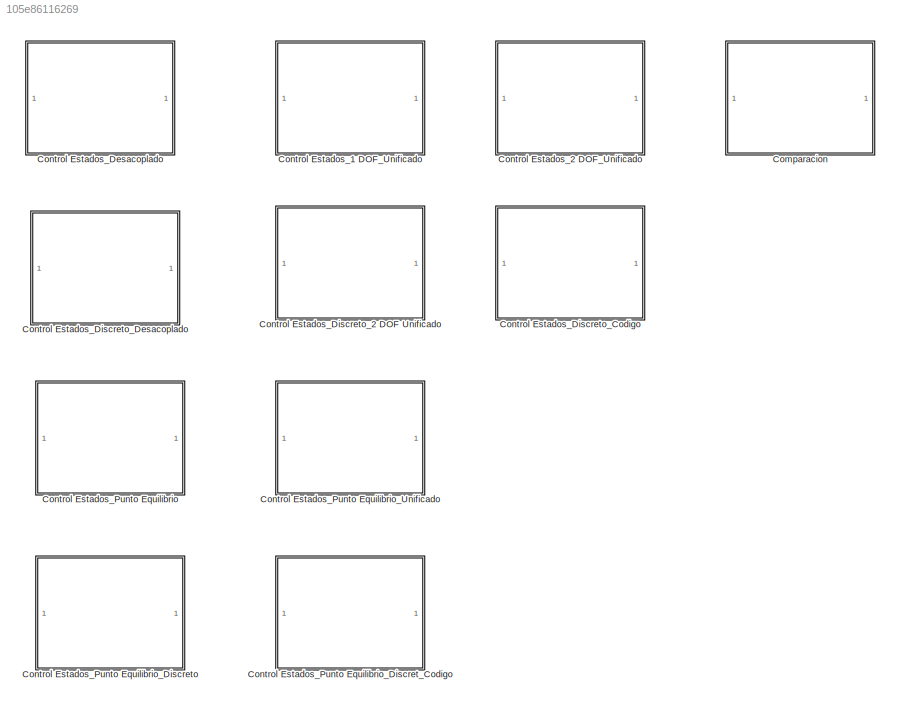
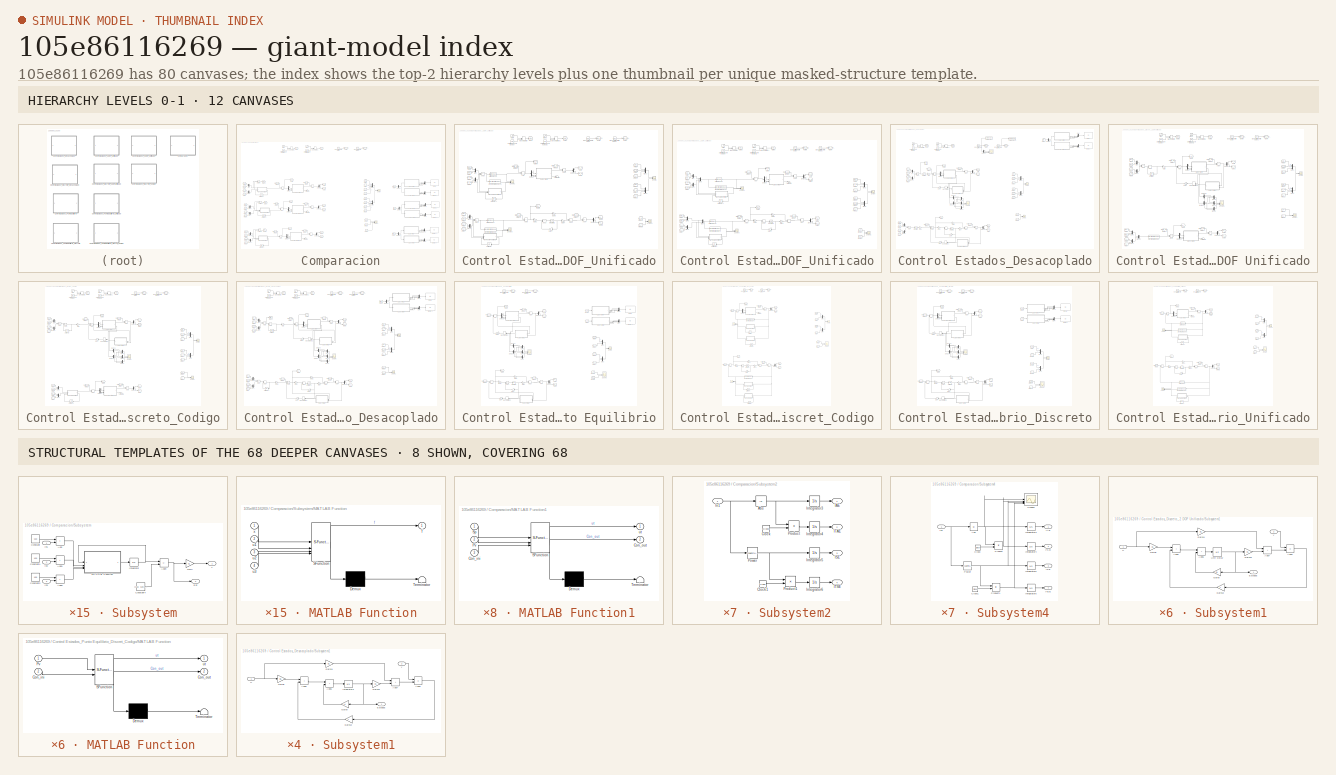
[diagram: thumbnail index - top-2 hierarchy levels (12 canvases) + 8 structural-template representatives of the remaining 68 canvases]
MODEL slx_105e86116269
KIND model
CONFIG AbsTol = auto
CONFIG EnableMultiTasking = off
CONFIG FixedStep = auto
CONFIG MaxStep = 1e-3
CONFIG MinStep = auto
CONFIG RelTol = 1e-3
CONFIG SampleTimeConstraint = Unconstrained
CONFIG SolverName = ode23t
CONFIG StartTime = 0.0
CONFIG StopTime = 5
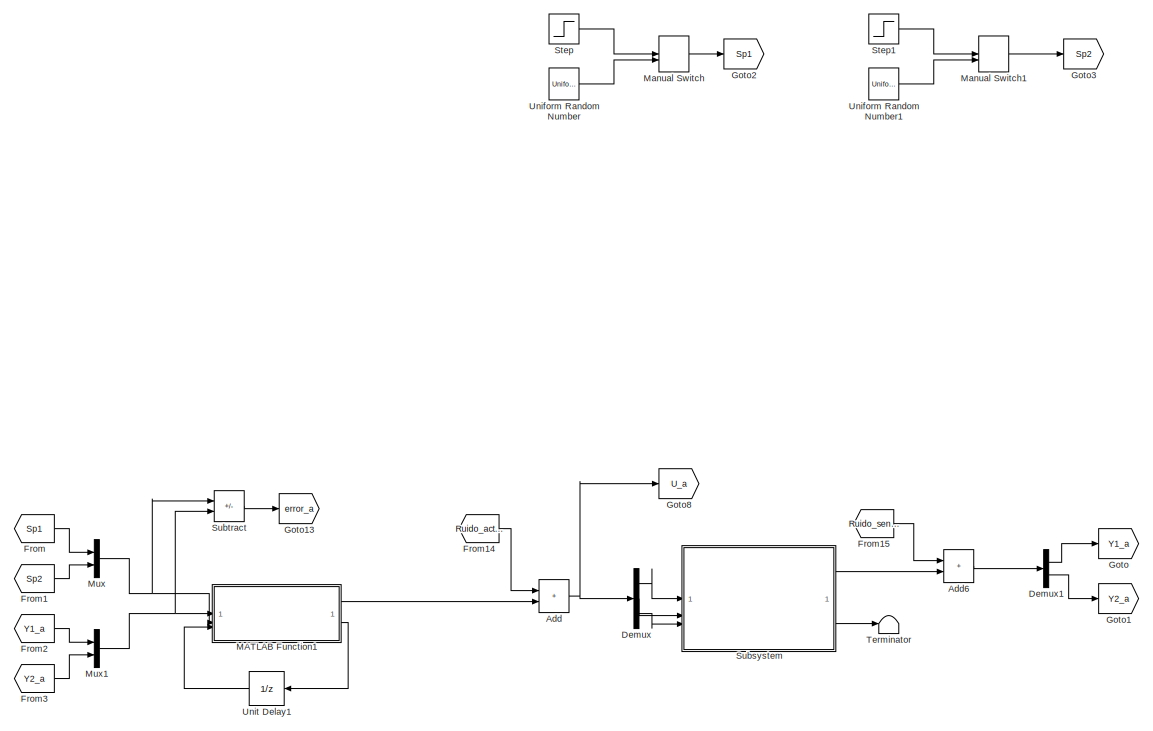
[diagram: Comparacion - part 1/4, top left region]
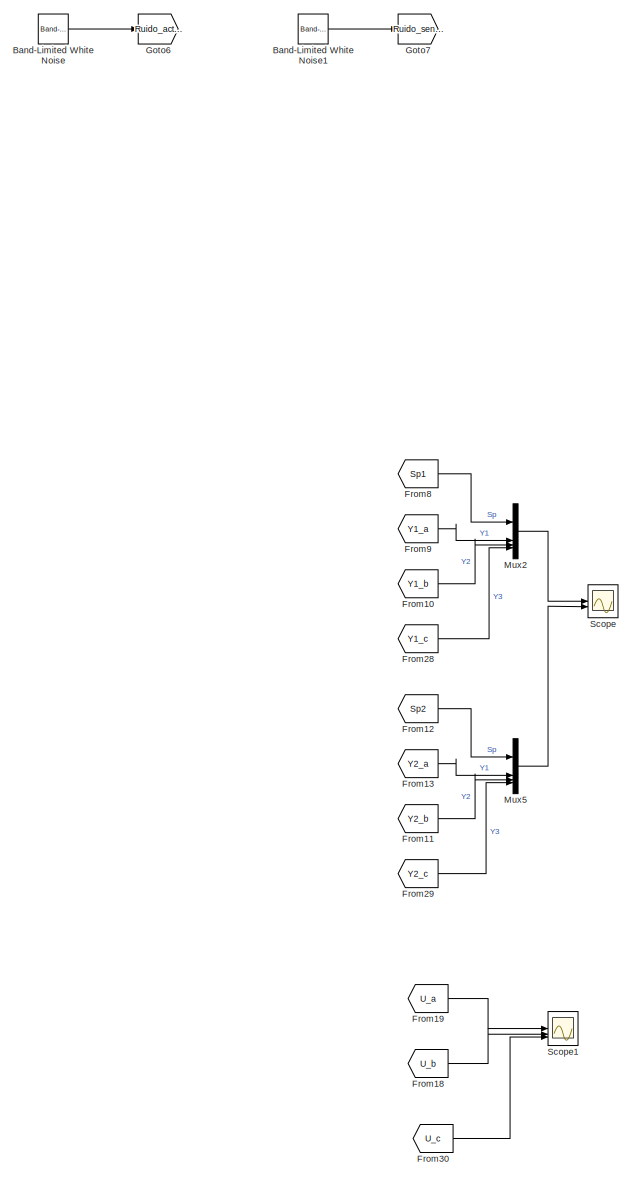
[diagram: Comparacion - part 2/4, center side, full height]
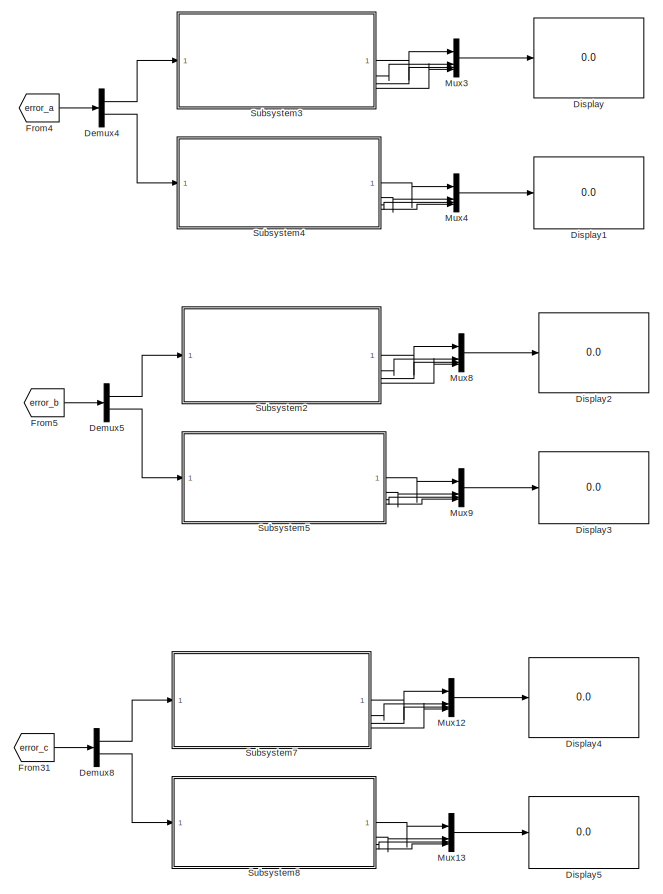
[diagram: Comparacion - part 3/4, middle right region]
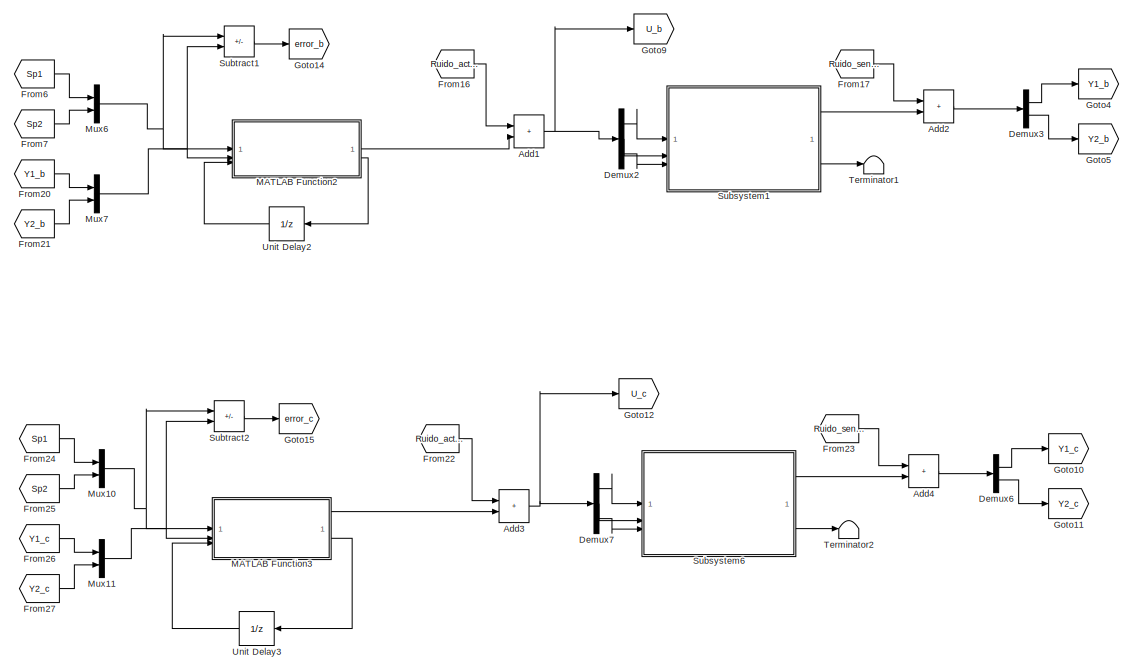
[diagram: Comparacion - part 4/4, bottom left region]
BLOCK [SubSystem] Comparacion
  Commented = on
BLOCK [Sum] Comparacion/Add
  IconShape = rectangular
BLOCK [Sum] Comparacion/Add1
  IconShape = rectangular
BLOCK [Sum] Comparacion/Add2
  IconShape = rectangular
BLOCK [Sum] Comparacion/Add3
  IconShape = rectangular
BLOCK [Sum] Comparacion/Add4
  IconShape = rectangular
BLOCK [Sum] Comparacion/Add6
  IconShape = rectangular
BLOCK [Reference] Comparacion/Band-Limited White Noise  REF=simulink/Sources/Band-Limited
White Noise
  SourceBlock = simulink/Sources/Band-Limited\nWhite Noise
  SourceType = Band-Limited White Noise.
BLOCK [Reference] Comparacion/Band-Limited White Noise1  REF=simulink/Sources/Band-Limited
White Noise
  SourceBlock = simulink/Sources/Band-Limited\nWhite Noise
  SourceType = Band-Limited White Noise.
BLOCK [Demux] Comparacion/Demux
  Outputs = 3
BLOCK [Demux] Comparacion/Demux1
  Outputs = 2
BLOCK [Demux] Comparacion/Demux2
  Outputs = 3
BLOCK [Demux] Comparacion/Demux3
  Outputs = 2
BLOCK [Demux] Comparacion/Demux4
  Outputs = 2
BLOCK [Demux] Comparacion/Demux5
  Outputs = 2
BLOCK [Demux] Comparacion/Demux6
  Outputs = 2
BLOCK [Demux] Comparacion/Demux7
  Outputs = 3
BLOCK [Demux] Comparacion/Demux8
  Outputs = 2
BLOCK [Display] Comparacion/Display
  Decimation = 1
BLOCK [Display] Comparacion/Display1
  Decimation = 1
BLOCK [Display] Comparacion/Display2
  Decimation = 1
BLOCK [Display] Comparacion/Display3
  Decimation = 1
BLOCK [Display] Comparacion/Display4
  Decimation = 1
BLOCK [Display] Comparacion/Display5
  Decimation = 1
BLOCK [From] Comparacion/From
  GotoTag = Sp1
BLOCK [From] Comparacion/From1
  GotoTag = Sp2
BLOCK [From] Comparacion/From10
  GotoTag = Y1_b
BLOCK [From] Comparacion/From11
  GotoTag = Y2_b
BLOCK [From] Comparacion/From12
  GotoTag = Sp2
BLOCK [From] Comparacion/From13
  GotoTag = Y2_a
BLOCK [From] Comparacion/From14
  GotoTag = Ruido_actuador
BLOCK [From] Comparacion/From15
  GotoTag = Ruido_sensor
BLOCK [From] Comparacion/From16
  GotoTag = Ruido_actuador
BLOCK [From] Comparacion/From17
  GotoTag = Ruido_sensor
BLOCK [From] Comparacion/From18
  GotoTag = U_b
BLOCK [From] Comparacion/From19
  GotoTag = U_a
BLOCK [From] Comparacion/From2
  GotoTag = Y1_a
BLOCK [From] Comparacion/From20
  GotoTag = Y1_b
BLOCK [From] Comparacion/From21
  GotoTag = Y2_b
BLOCK [From] Comparacion/From22
  GotoTag = Ruido_actuador
BLOCK [From] Comparacion/From23
  GotoTag = Ruido_sensor
BLOCK [From] Comparacion/From24
  GotoTag = Sp1
BLOCK [From] Comparacion/From25
  GotoTag = Sp2
BLOCK [From] Comparacion/From26
  GotoTag = Y1_c
BLOCK [From] Comparacion/From27
  GotoTag = Y2_c
BLOCK [From] Comparacion/From28
  GotoTag = Y1_c
BLOCK [From] Comparacion/From29
  GotoTag = Y2_c
BLOCK [From] Comparacion/From3
  GotoTag = Y2_a
BLOCK [From] Comparacion/From30
  GotoTag = U_c
BLOCK [From] Comparacion/From31
  GotoTag = error_c
BLOCK [From] Comparacion/From4
  GotoTag = error_a
BLOCK [From] Comparacion/From5
  GotoTag = error_b
BLOCK [From] Comparacion/From6
  GotoTag = Sp1
BLOCK [From] Comparacion/From7
  GotoTag = Sp2
BLOCK [From] Comparacion/From8
  GotoTag = Sp1
BLOCK [From] Comparacion/From9
  GotoTag = Y1_a
BLOCK [Goto] Comparacion/Goto
  GotoTag = Y1_a
BLOCK [Goto] Comparacion/Goto1
  GotoTag = Y2_a
BLOCK [Goto] Comparacion/Goto10
  GotoTag = Y1_c
BLOCK [Goto] Comparacion/Goto11
  GotoTag = Y2_c
BLOCK [Goto] Comparacion/Goto12
  GotoTag = U_c
BLOCK [Goto] Comparacion/Goto13
  GotoTag = error_a
BLOCK [Goto] Comparacion/Goto14
  GotoTag = error_b
BLOCK [Goto] Comparacion/Goto15
  GotoTag = error_c
BLOCK [Goto] Comparacion/Goto2
  GotoTag = Sp1
BLOCK [Goto] Comparacion/Goto3
  GotoTag = Sp2
BLOCK [Goto] Comparacion/Goto4
  GotoTag = Y1_b
BLOCK [Goto] Comparacion/Goto5
  GotoTag = Y2_b
BLOCK [Goto] Comparacion/Goto6
  GotoTag = Ruido_actuador
BLOCK [Goto] Comparacion/Goto7
  GotoTag = Ruido_sensor
BLOCK [Goto] Comparacion/Goto8
  GotoTag = U_a
BLOCK [Goto] Comparacion/Goto9
  GotoTag = U_b
BLOCK [SubSystem] Comparacion/MATLAB Function1
  ErrorFcn = Stateflow.Translate.translate
  PermitHierarchicalResolution = ExplicitOnly
  SFBlockType = MATLAB Function
  TreatAsAtomicUnit = on
BLOCK [Demux] Comparacion/MATLAB Function1/ Demux 
  Outputs = 1
BLOCK [S-Function] Comparacion/MATLAB Function1/ SFunction 
  EnableBusSupport = off
  FunctionName = sf_sfun
  PortCounts = [3 3]
  SFcnIsStateOwnerBlock = off
  SFunctionDeploymentMode = off
  Tag = Stateflow S-Function 6
BLOCK [Terminator] Comparacion/MATLAB Function1/ Terminator 
BLOCK [Inport] Comparacion/MATLAB Function1/Con_ini
  Port = 3
BLOCK [Outport] Comparacion/MATLAB Function1/Con_out
  Port = 2
  VectorParamsAs1DForOutWhenUnconnected = off
BLOCK [Inport] Comparacion/MATLAB Function1/Pv
  Port = 2
BLOCK [Inport] Comparacion/MATLAB Function1/Sp
BLOCK [Outport] Comparacion/MATLAB Function1/ut
  VectorParamsAs1DForOutWhenUnconnected = off
BLOCK [SubSystem] Comparacion/MATLAB Function2
  ErrorFcn = Stateflow.Translate.translate
  PermitHierarchicalResolution = ExplicitOnly
  SFBlockType = MATLAB Function
  TreatAsAtomicUnit = on
BLOCK [Demux] Comparacion/MATLAB Function2/ Demux 
  Outputs = 1
BLOCK [S-Function] Comparacion/MATLAB Function2/ SFunction 
  EnableBusSupport = off
  FunctionName = sf_sfun
  PortCounts = [3 3]
  SFcnIsStateOwnerBlock = off
  SFunctionDeploymentMode = off
  Tag = Stateflow S-Function 23
BLOCK [Terminator] Comparacion/MATLAB Function2/ Terminator 
BLOCK [Inport] Comparacion/MATLAB Function2/Con_ini
  Port = 3
BLOCK [Outport] Comparacion/MATLAB Function2/Con_out
  Port = 2
  VectorParamsAs1DForOutWhenUnconnected = off
BLOCK [Inport] Comparacion/MATLAB Function2/Pv
  Port = 2
BLOCK [Inport] Comparacion/MATLAB Function2/Sp
BLOCK [Outport] Comparacion/MATLAB Function2/u
  VectorParamsAs1DForOutWhenUnconnected = off
BLOCK [SubSystem] Comparacion/MATLAB Function3
  ErrorFcn = Stateflow.Translate.translate
  PermitHierarchicalResolution = ExplicitOnly
  SFBlockType = MATLAB Function
  TreatAsAtomicUnit = on
BLOCK [Demux] Comparacion/MATLAB Function3/ Demux 
  Outputs = 1
BLOCK [S-Function] Comparacion/MATLAB Function3/ SFunction 
  EnableBusSupport = off
  FunctionName = sf_sfun
  PortCounts = [3 3]
  SFcnIsStateOwnerBlock = off
  SFunctionDeploymentMode = off
  Tag = Stateflow S-Function 25
BLOCK [Terminator] Comparacion/MATLAB Function3/ Terminator 
BLOCK [Inport] Comparacion/MATLAB Function3/Con_in
  Port = 3
BLOCK [Outport] Comparacion/MATLAB Function3/Con_out
  Port = 2
  VectorParamsAs1DForOutWhenUnconnected = off
BLOCK [Inport] Comparacion/MATLAB Function3/Pv
  Port = 2
BLOCK [Inport] Comparacion/MATLAB Function3/Sp
BLOCK [Outport] Comparacion/MATLAB Function3/ut
  VectorParamsAs1DForOutWhenUnconnected = off
BLOCK [ManualSwitch] Comparacion/Manual Switch
  CurrentSetting = 0
BLOCK [ManualSwitch] Comparacion/Manual Switch1
  CurrentSetting = 0
BLOCK [Mux] Comparacion/Mux
  DisplayOption = bar
  Inputs = 2
BLOCK [Mux] Comparacion/Mux1
  DisplayOption = bar
  Inputs = 2
BLOCK [Mux] Comparacion/Mux10
  DisplayOption = bar
  Inputs = 2
BLOCK [Mux] Comparacion/Mux11
  DisplayOption = bar
  Inputs = 2
BLOCK [Mux] Comparacion/Mux12
  DisplayOption = bar
BLOCK [Mux] Comparacion/Mux13
  DisplayOption = bar
BLOCK [Mux] Comparacion/Mux2
  DisplayOption = bar
BLOCK [Mux] Comparacion/Mux3
  DisplayOption = bar
BLOCK [Mux] Comparacion/Mux4
  DisplayOption = bar
BLOCK [Mux] Comparacion/Mux5
  DisplayOption = bar
BLOCK [Mux] Comparacion/Mux6
  DisplayOption = bar
  Inputs = 2
BLOCK [Mux] Comparacion/Mux7
  DisplayOption = bar
  Inputs = 2
BLOCK [Mux] Comparacion/Mux8
  DisplayOption = bar
BLOCK [Mux] Comparacion/Mux9
  DisplayOption = bar
BLOCK [Scope] Comparacion/Scope
  Floating = off
  NumInputPorts = 2
  ScopeSpecificationString = Simulink.scopes.TimeScopeBlockCfg('CurrentConfiguration', extmgr.ConfigurationSet(extmgr.Configuration('Core','General UI',true,'FigureColor',[1 1 1]),extmgr.Configuration('Core','Source UI',true),extmgr.Configuration('Sources','WiredSimulink',true),extmgr.Configuration('Visuals','Time Domain',true,'SerializedDisplays',{struct('MinYLimReal','-0.71059','MaxYLimReal','0.57453','YLabelReal','','MinYL...<+3015ch>
BLOCK [Scope] Comparacion/Scope1
  Floating = off
  NumInputPorts = 3
  ScopeSpecificationString = Simulink.scopes.TimeScopeBlockCfg('CurrentConfiguration', extmgr.ConfigurationSet(extmgr.Configuration('Core','General UI',true,'FigureColor',[1 1 1]),extmgr.Configuration('Core','Source UI',true),extmgr.Configuration('Sources','WiredSimulink',true,'DataLoggingVariableName','ScopeData1'),extmgr.Configuration('Visuals','Time Domain',true,'SerializedDisplays',{struct('MinYLimReal','-0.25099','MaxYLi...<+4060ch>
BLOCK [Step] Comparacion/Step
  After = 0.5
  SampleTime = 0
  Time = 0
BLOCK [Step] Comparacion/Step1
  After = 0.5
  SampleTime = 0
  Time = 0
BLOCK [SubSystem] Comparacion/Subsystem
BLOCK [Sum] Comparacion/Subsystem/Add
  IconShape = rectangular
BLOCK [Sum] Comparacion/Subsystem/Add1
  IconShape = rectangular
BLOCK [Sum] Comparacion/Subsystem/Add2
  IconShape = rectangular
BLOCK [Sum] Comparacion/Subsystem/Add4
  IconShape = rectangular
  Inputs = +-
BLOCK [Constant] Comparacion/Subsystem/Constant
  Value = u10
BLOCK [Constant] Comparacion/Subsystem/Constant1
  Value = u20
BLOCK [Constant] Comparacion/Subsystem/Constant2
  Value = u30
BLOCK [Constant] Comparacion/Subsystem/Constant4
  Value = [x10; x20; x30]
BLOCK [Outport] Comparacion/Subsystem/Est
  Port = 2
  VectorParamsAs1DForOutWhenUnconnected = off
BLOCK [Gain] Comparacion/Subsystem/Gain
  Gain = CL
  Multiplication = Matrix(K*u)
BLOCK [Inport] Comparacion/Subsystem/In1
BLOCK [Inport] Comparacion/Subsystem/In2
  Port = 2
BLOCK [Inport] Comparacion/Subsystem/In3
  Port = 3
BLOCK [Integrator] Comparacion/Subsystem/Integrator
  InitialCondition = [x10; x20; x30]
BLOCK [SubSystem] Comparacion/Subsystem/MATLAB Function
  ErrorFcn = Stateflow.Translate.translate
  PermitHierarchicalResolution = ExplicitOnly
  SFBlockType = MATLAB Function
  TreatAsAtomicUnit = on
BLOCK [Demux] Comparacion/Subsystem/MATLAB Function/ Demux 
  Outputs = 1
BLOCK [S-Function] Comparacion/Subsystem/MATLAB Function/ SFunction 
  EnableBusSupport = off
  FunctionName = sf_sfun
  PortCounts = [4 2]
  SFcnIsStateOwnerBlock = off
  SFunctionDeploymentMode = off
  Tag = Stateflow S-Function 22
BLOCK [Terminator] Comparacion/Subsystem/MATLAB Function/ Terminator 
BLOCK [Outport] Comparacion/Subsystem/MATLAB Function/f
BLOCK [Inport] Comparacion/Subsystem/MATLAB Function/u1
  Port = 2
BLOCK [Inport] Comparacion/Subsystem/MATLAB Function/u2
  Port = 3
BLOCK [Inport] Comparacion/Subsystem/MATLAB Function/u3
  Port = 4
BLOCK [Inport] Comparacion/Subsystem/MATLAB Function/x
BLOCK [Outport] Comparacion/Subsystem/Y
  VectorParamsAs1DForOutWhenUnconnected = off
BLOCK [SubSystem] Comparacion/Subsystem1
BLOCK [Sum] Comparacion/Subsystem1/Add
  IconShape = rectangular
BLOCK [Sum] Comparacion/Subsystem1/Add1
  IconShape = rectangular
BLOCK [Sum] Comparacion/Subsystem1/Add2
  IconShape = rectangular
BLOCK [Sum] Comparacion/Subsystem1/Add4
  IconShape = rectangular
  Inputs = +-
BLOCK [Constant] Comparacion/Subsystem1/Constant
  Value = u10
BLOCK [Constant] Comparacion/Subsystem1/Constant1
  Value = u20
BLOCK [Constant] Comparacion/Subsystem1/Constant2
  Value = u30
BLOCK [Constant] Comparacion/Subsystem1/Constant4
  Value = [x10; x20; x30]
BLOCK [Outport] Comparacion/Subsystem1/Est
  Port = 2
  VectorParamsAs1DForOutWhenUnconnected = off
BLOCK [Gain] Comparacion/Subsystem1/Gain
  Gain = CL
  Multiplication = Matrix(K*u)
BLOCK [Inport] Comparacion/Subsystem1/In1
BLOCK [Inport] Comparacion/Subsystem1/In2
  Port = 2
BLOCK [Inport] Comparacion/Subsystem1/In3
  Port = 3
BLOCK [Integrator] Comparacion/Subsystem1/Integrator
  InitialCondition = [x10; x20; x30]
BLOCK [SubSystem] Comparacion/Subsystem1/MATLAB Function
  ErrorFcn = Stateflow.Translate.translate
  PermitHierarchicalResolution = ExplicitOnly
  SFBlockType = MATLAB Function
  TreatAsAtomicUnit = on
BLOCK [Demux] Comparacion/Subsystem1/MATLAB Function/ Demux 
  Outputs = 1
BLOCK [S-Function] Comparacion/Subsystem1/MATLAB Function/ SFunction 
  EnableBusSupport = off
  FunctionName = sf_sfun
  PortCounts = [4 2]
  SFcnIsStateOwnerBlock = off
  SFunctionDeploymentMode = off
  Tag = Stateflow S-Function 24
BLOCK [Terminator] Comparacion/Subsystem1/MATLAB Function/ Terminator 
BLOCK [Outport] Comparacion/Subsystem1/MATLAB Function/f
BLOCK [Inport] Comparacion/Subsystem1/MATLAB Function/u1
  Port = 2
BLOCK [Inport] Comparacion/Subsystem1/MATLAB Function/u2
  Port = 3
BLOCK [Inport] Comparacion/Subsystem1/MATLAB Function/u3
  Port = 4
BLOCK [Inport] Comparacion/Subsystem1/MATLAB Function/x
BLOCK [Outport] Comparacion/Subsystem1/Y
  VectorParamsAs1DForOutWhenUnconnected = off
BLOCK [SubSystem] Comparacion/Subsystem2
BLOCK [Abs] Comparacion/Subsystem2/Abs
  SaturateOnIntegerOverflow = off
BLOCK [Clock] Comparacion/Subsystem2/Clock
  Decimation = 1
BLOCK [Clock] Comparacion/Subsystem2/Clock1
  Decimation = 1
BLOCK [Outport] Comparacion/Subsystem2/IAE
  VectorParamsAs1DForOutWhenUnconnected = off
BLOCK [Outport] Comparacion/Subsystem2/ISE
  Port = 3
  VectorParamsAs1DForOutWhenUnconnected = off
BLOCK [Outport] Comparacion/Subsystem2/ITAE
  Port = 2
  VectorParamsAs1DForOutWhenUnconnected = off
BLOCK [Outport] Comparacion/Subsystem2/ITSE
  Port = 4
  VectorParamsAs1DForOutWhenUnconnected = off
BLOCK [Inport] Comparacion/Subsystem2/In1
BLOCK [Integrator] Comparacion/Subsystem2/Integrator3
BLOCK [Integrator] Comparacion/Subsystem2/Integrator4
BLOCK [Integrator] Comparacion/Subsystem2/Integrator5
BLOCK [Integrator] Comparacion/Subsystem2/Integrator6
BLOCK [Math] Comparacion/Subsystem2/Power
  Operator = magnitude^2
  SignedPower = on
BLOCK [Product] Comparacion/Subsystem2/Product
BLOCK [Product] Comparacion/Subsystem2/Product1
BLOCK [SubSystem] Comparacion/Subsystem3
BLOCK [Abs] Comparacion/Subsystem3/Abs
  SaturateOnIntegerOverflow = off
BLOCK [Clock] Comparacion/Subsystem3/Clock
  Decimation = 1
BLOCK [Clock] Comparacion/Subsystem3/Clock1
  Decimation = 1
BLOCK [Outport] Comparacion/Subsystem3/IAE
  VectorParamsAs1DForOutWhenUnconnected = off
BLOCK [Outport] Comparacion/Subsystem3/ISE
  Port = 3
  VectorParamsAs1DForOutWhenUnconnected = off
BLOCK [Outport] Comparacion/Subsystem3/ITAE
  Port = 2
  VectorParamsAs1DForOutWhenUnconnected = off
BLOCK [Outport] Comparacion/Subsystem3/ITSE
  Port = 4
  VectorParamsAs1DForOutWhenUnconnected = off
BLOCK [Inport] Comparacion/Subsystem3/In1
BLOCK [Integrator] Comparacion/Subsystem3/Integrator3
BLOCK [Integrator] Comparacion/Subsystem3/Integrator4
BLOCK [Integrator] Comparacion/Subsystem3/Integrator5
BLOCK [Integrator] Comparacion/Subsystem3/Integrator6
BLOCK [Math] Comparacion/Subsystem3/Power
  Operator = magnitude^2
  SignedPower = on
BLOCK [Product] Comparacion/Subsystem3/Product
BLOCK [Product] Comparacion/Subsystem3/Product1
BLOCK [SubSystem] Comparacion/Subsystem4
BLOCK [Abs] Comparacion/Subsystem4/Abs
  SaturateOnIntegerOverflow = off
BLOCK [Clock] Comparacion/Subsystem4/Clock
  Decimation = 1
BLOCK [Clock] Comparacion/Subsystem4/Clock1
  Decimation = 1
BLOCK [Outport] Comparacion/Subsystem4/IAE
  VectorParamsAs1DForOutWhenUnconnected = off
BLOCK [Outport] Comparacion/Subsystem4/ISE
  Port = 3
  VectorParamsAs1DForOutWhenUnconnected = off
BLOCK [Outport] Comparacion/Subsystem4/ITAE
  Port = 2
  VectorParamsAs1DForOutWhenUnconnected = off
BLOCK [Outport] Comparacion/Subsystem4/ITSE
  Port = 4
  VectorParamsAs1DForOutWhenUnconnected = off
BLOCK [Inport] Comparacion/Subsystem4/In1
BLOCK [Integrator] Comparacion/Subsystem4/Integrator3
BLOCK [Integrator] Comparacion/Subsystem4/Integrator4
BLOCK [Integrator] Comparacion/Subsystem4/Integrator5
BLOCK [Integrator] Comparacion/Subsystem4/Integrator6
BLOCK [Math] Comparacion/Subsystem4/Power
  Operator = magnitude^2
  SignedPower = on
BLOCK [Product] Comparacion/Subsystem4/Product
BLOCK [Product] Comparacion/Subsystem4/Product1
BLOCK [Scope] Comparacion/Subsystem4/Scope3
  Floating = off
  NumInputPorts = 4
  ScopeSpecificationString = Simulink.scopes.TimeScopeBlockCfg('CurrentConfiguration', extmgr.ConfigurationSet(extmgr.Configuration('Core','General UI',true,'FigureColor',[1 1 1]),extmgr.Configuration('Core','Source UI',true),extmgr.Configuration('Sources','WiredSimulink',true,'DataLoggingVariableName','ScopeData4'),extmgr.Configuration('Visuals','Time Domain',true,'SerializedDisplays',{struct('MinYLimReal','-0.08686','MaxYLi...<+3629ch>  <repeated x7 — deduplicated; at blocks: Scope3>
BLOCK [SubSystem] Comparacion/Subsystem5
BLOCK [Abs] Comparacion/Subsystem5/Abs
  SaturateOnIntegerOverflow = off
BLOCK [Clock] Comparacion/Subsystem5/Clock
  Decimation = 1
BLOCK [Clock] Comparacion/Subsystem5/Clock1
  Decimation = 1
BLOCK [Outport] Comparacion/Subsystem5/IAE
  VectorParamsAs1DForOutWhenUnconnected = off
BLOCK [Outport] Comparacion/Subsystem5/ISE
  Port = 3
  VectorParamsAs1DForOutWhenUnconnected = off
BLOCK [Outport] Comparacion/Subsystem5/ITAE
  Port = 2
  VectorParamsAs1DForOutWhenUnconnected = off
BLOCK [Outport] Comparacion/Subsystem5/ITSE
  Port = 4
  VectorParamsAs1DForOutWhenUnconnected = off
BLOCK [Inport] Comparacion/Subsystem5/In1
BLOCK [Integrator] Comparacion/Subsystem5/Integrator3
BLOCK [Integrator] Comparacion/Subsystem5/Integrator4
BLOCK [Integrator] Comparacion/Subsystem5/Integrator5
BLOCK [Integrator] Comparacion/Subsystem5/Integrator6
BLOCK [Math] Comparacion/Subsystem5/Power
  Operator = magnitude^2
  SignedPower = on
BLOCK [Product] Comparacion/Subsystem5/Product
BLOCK [Product] Comparacion/Subsystem5/Product1
BLOCK [Scope] Comparacion/Subsystem5/Scope3
  Floating = off
  NumInputPorts = 4
BLOCK [SubSystem] Comparacion/Subsystem6
BLOCK [Sum] Comparacion/Subsystem6/Add
  IconShape = rectangular
BLOCK [Sum] Comparacion/Subsystem6/Add1
  IconShape = rectangular
BLOCK [Sum] Comparacion/Subsystem6/Add2
  IconShape = rectangular
BLOCK [Sum] Comparacion/Subsystem6/Add4
  IconShape = rectangular
  Inputs = +-
BLOCK [Constant] Comparacion/Subsystem6/Constant
  Value = u10
BLOCK [Constant] Comparacion/Subsystem6/Constant1
  Value = u20
BLOCK [Constant] Comparacion/Subsystem6/Constant2
  Value = u30
BLOCK [Constant] Comparacion/Subsystem6/Constant4
  Value = [x10; x20; x30]
BLOCK [Outport] Comparacion/Subsystem6/Est
  Port = 2
  VectorParamsAs1DForOutWhenUnconnected = off
BLOCK [Gain] Comparacion/Subsystem6/Gain
  Gain = CL
  Multiplication = Matrix(K*u)
BLOCK [Inport] Comparacion/Subsystem6/In1
BLOCK [Inport] Comparacion/Subsystem6/In2
  Port = 2
BLOCK [Inport] Comparacion/Subsystem6/In3
  Port = 3
BLOCK [Integrator] Comparacion/Subsystem6/Integrator
  InitialCondition = [x10; x20; x30]
BLOCK [SubSystem] Comparacion/Subsystem6/MATLAB Function
  ErrorFcn = Stateflow.Translate.translate
  PermitHierarchicalResolution = ExplicitOnly
  SFBlockType = MATLAB Function
  TreatAsAtomicUnit = on
BLOCK [Demux] Comparacion/Subsystem6/MATLAB Function/ Demux 
  Outputs = 1
BLOCK [S-Function] Comparacion/Subsystem6/MATLAB Function/ SFunction 
  EnableBusSupport = off
  FunctionName = sf_sfun
  PortCounts = [4 2]
  SFcnIsStateOwnerBlock = off
  SFunctionDeploymentMode = off
  Tag = Stateflow S-Function 26
BLOCK [Terminator] Comparacion/Subsystem6/MATLAB Function/ Terminator 
BLOCK [Outport] Comparacion/Subsystem6/MATLAB Function/f
BLOCK [Inport] Comparacion/Subsystem6/MATLAB Function/u1
  Port = 2
BLOCK [Inport] Comparacion/Subsystem6/MATLAB Function/u2
  Port = 3
BLOCK [Inport] Comparacion/Subsystem6/MATLAB Function/u3
  Port = 4
BLOCK [Inport] Comparacion/Subsystem6/MATLAB Function/x
BLOCK [Outport] Comparacion/Subsystem6/Y
  VectorParamsAs1DForOutWhenUnconnected = off
BLOCK [SubSystem] Comparacion/Subsystem7
BLOCK [Abs] Comparacion/Subsystem7/Abs
  SaturateOnIntegerOverflow = off
BLOCK [Clock] Comparacion/Subsystem7/Clock
  Decimation = 1
BLOCK [Clock] Comparacion/Subsystem7/Clock1
  Decimation = 1
BLOCK [Outport] Comparacion/Subsystem7/IAE
  VectorParamsAs1DForOutWhenUnconnected = off
BLOCK [Outport] Comparacion/Subsystem7/ISE
  Port = 3
  VectorParamsAs1DForOutWhenUnconnected = off
BLOCK [Outport] Comparacion/Subsystem7/ITAE
  Port = 2
  VectorParamsAs1DForOutWhenUnconnected = off
BLOCK [Outport] Comparacion/Subsystem7/ITSE
  Port = 4
  VectorParamsAs1DForOutWhenUnconnected = off
BLOCK [Inport] Comparacion/Subsystem7/In1
BLOCK [Integrator] Comparacion/Subsystem7/Integrator3
BLOCK [Integrator] Comparacion/Subsystem7/Integrator4
BLOCK [Integrator] Comparacion/Subsystem7/Integrator5
BLOCK [Integrator] Comparacion/Subsystem7/Integrator6
BLOCK [Math] Comparacion/Subsystem7/Power
  Operator = magnitude^2
  SignedPower = on
BLOCK [Product] Comparacion/Subsystem7/Product
BLOCK [Product] Comparacion/Subsystem7/Product1
BLOCK [SubSystem] Comparacion/Subsystem8
BLOCK [Abs] Comparacion/Subsystem8/Abs
  SaturateOnIntegerOverflow = off
BLOCK [Clock] Comparacion/Subsystem8/Clock
  Decimation = 1
BLOCK [Clock] Comparacion/Subsystem8/Clock1
  Decimation = 1
BLOCK [Outport] Comparacion/Subsystem8/IAE
  VectorParamsAs1DForOutWhenUnconnected = off
BLOCK [Outport] Comparacion/Subsystem8/ISE
  Port = 3
  VectorParamsAs1DForOutWhenUnconnected = off
BLOCK [Outport] Comparacion/Subsystem8/ITAE
  Port = 2
  VectorParamsAs1DForOutWhenUnconnected = off
BLOCK [Outport] Comparacion/Subsystem8/ITSE
  Port = 4
  VectorParamsAs1DForOutWhenUnconnected = off
BLOCK [Inport] Comparacion/Subsystem8/In1
BLOCK [Integrator] Comparacion/Subsystem8/Integrator3
BLOCK [Integrator] Comparacion/Subsystem8/Integrator4
BLOCK [Integrator] Comparacion/Subsystem8/Integrator5
BLOCK [Integrator] Comparacion/Subsystem8/Integrator6
BLOCK [Math] Comparacion/Subsystem8/Power
  Operator = magnitude^2
  SignedPower = on
BLOCK [Product] Comparacion/Subsystem8/Product
BLOCK [Product] Comparacion/Subsystem8/Product1
BLOCK [Scope] Comparacion/Subsystem8/Scope3
  Floating = off
  NumInputPorts = 4
BLOCK [Sum] Comparacion/Subtract
  IconShape = rectangular
  Inputs = +-
BLOCK [Sum] Comparacion/Subtract1
  IconShape = rectangular
  Inputs = +-
BLOCK [Sum] Comparacion/Subtract2
  IconShape = rectangular
  Inputs = +-
BLOCK [Terminator] Comparacion/Terminator
BLOCK [Terminator] Comparacion/Terminator1
BLOCK [Terminator] Comparacion/Terminator2
BLOCK [UniformRandomNumber] Comparacion/Uniform Random Number
  Maximum = 0.5
  Minimum = -0.5
  SampleTime = 4
BLOCK [UniformRandomNumber] Comparacion/Uniform Random Number1
  Maximum = 0.5
  Minimum = -0.5
  SampleTime = 7
  Seed = 6
BLOCK [UnitDelay] Comparacion/Unit Delay1
  HasFrameUpgradeWarning = on
  InitialCondition = zeros(8,1)
  NameLocation = top
  SampleTime = Tm
BLOCK [UnitDelay] Comparacion/Unit Delay2
  HasFrameUpgradeWarning = on
  InitialCondition = zeros(8,1)
  NameLocation = top
  SampleTime = Tm
BLOCK [UnitDelay] Comparacion/Unit Delay3
  HasFrameUpgradeWarning = on
  InitialCondition = zeros(8,1)
  NameLocation = top
  SampleTime = Tm
BLOCK [SubSystem] Control Estados_1 DOF_Unificado
  Commented = on
BLOCK [Sum] Control Estados_1 DOF_Unificado/Add
  IconShape = rectangular
BLOCK [Sum] Control Estados_1 DOF_Unificado/Add1
  IconShape = rectangular
  Inputs = +-
BLOCK [Sum] Control Estados_1 DOF_Unificado/Add2
  IconShape = rectangular
BLOCK [Sum] Control Estados_1 DOF_Unificado/Add3
  IconShape = rectangular
BLOCK [Sum] Control Estados_1 DOF_Unificado/Add4
  IconShape = rectangular
  Inputs = +-
BLOCK [Sum] Control Estados_1 DOF_Unificado/Add5
  IconShape = rectangular
BLOCK [Sum] Control Estados_1 DOF_Unificado/Add6
  IconShape = rectangular
BLOCK [Sum] Control Estados_1 DOF_Unificado/Add7
  IconShape = rectangular
BLOCK [Reference] Control Estados_1 DOF_Unificado/Band-Limited White Noise  REF=simulink/Sources/Band-Limited
White Noise
  SourceBlock = simulink/Sources/Band-Limited\nWhite Noise
  SourceType = Band-Limited White Noise.
BLOCK [Reference] Control Estados_1 DOF_Unificado/Band-Limited White Noise1  REF=simulink/Sources/Band-Limited
White Noise
  SourceBlock = simulink/Sources/Band-Limited\nWhite Noise
  SourceType = Band-Limited White Noise.
BLOCK [Demux] Control Estados_1 DOF_Unificado/Demux
  Outputs = 3
BLOCK [Demux] Control Estados_1 DOF_Unificado/Demux1
  Outputs = 2
BLOCK [Demux] Control Estados_1 DOF_Unificado/Demux2
  Outputs = 2
BLOCK [DiscreteStateSpace] Control Estados_1 DOF_Unificado/Discrete State-Space
  A = sys_d1.a
  B = sys_d1.b
  C = sys_d1.c
  D = sys_d1.d
  SampleTime = Tm
BLOCK [DiscreteStateSpace] Control Estados_1 DOF_Unificado/Discrete State-Space1
  A = sys_d1.a
  B = sys_d1.b
  C = sys_d1.c
  D = sys_d1.d
  SampleTime = Tm
BLOCK [From] Control Estados_1 DOF_Unificado/From
  GotoTag = Sp1
BLOCK [From] Control Estados_1 DOF_Unificado/From1
  GotoTag = Sp2
BLOCK [From] Control Estados_1 DOF_Unificado/From10
  GotoTag = Y1_l
BLOCK [From] Control Estados_1 DOF_Unificado/From11
  GotoTag = Y2_l
BLOCK [From] Control Estados_1 DOF_Unificado/From12
  GotoTag = Sp2
BLOCK [From] Control Estados_1 DOF_Unificado/From13
  GotoTag = Y2_nl
BLOCK [From] Control Estados_1 DOF_Unificado/From14
  GotoTag = Ruido_actuador
BLOCK [From] Control Estados_1 DOF_Unificado/From15
  GotoTag = Ruido_sensor
BLOCK [From] Control Estados_1 DOF_Unificado/From16
  GotoTag = Ruido_actuador
BLOCK [From] Control Estados_1 DOF_Unificado/From17
  GotoTag = Ruido_sensor
BLOCK [From] Control Estados_1 DOF_Unificado/From18
  GotoTag = U_l
BLOCK [From] Control Estados_1 DOF_Unificado/From19
  GotoTag = U_nl
BLOCK [From] Control Estados_1 DOF_Unificado/From2
  GotoTag = Y1_nl
BLOCK [From] Control Estados_1 DOF_Unificado/From3
  GotoTag = Y2_nl
BLOCK [From] Control Estados_1 DOF_Unificado/From4
  GotoTag = Sp1
BLOCK [From] Control Estados_1 DOF_Unificado/From5
  GotoTag = Sp2
BLOCK [From] Control Estados_1 DOF_Unificado/From6
  GotoTag = Y1_l
BLOCK [From] Control Estados_1 DOF_Unificado/From7
  GotoTag = Y2_l
BLOCK [From] Control Estados_1 DOF_Unificado/From8
  GotoTag = Sp1
BLOCK [From] Control Estados_1 DOF_Unificado/From9
  GotoTag = Y1_nl
BLOCK [Gain] Control Estados_1 DOF_Unificado/Gain2
  Gain = BL
  Multiplication = Matrix(K*u)
BLOCK [Gain] Control Estados_1 DOF_Unificado/Gain3
  Gain = AL
  Multiplication = Matrix(K*u)
  NameLocation = top
BLOCK [Gain] Control Estados_1 DOF_Unificado/Gain4
  Gain = CL
  Multiplication = Matrix(K*u)
BLOCK [Gain] Control Estados_1 DOF_Unificado/Gain5
  Gain = DL
  Multiplication = Matrix(K*u)
BLOCK [Goto] Control Estados_1 DOF_Unificado/Goto
  GotoTag = Y1_nl
BLOCK [Goto] Control Estados_1 DOF_Unificado/Goto1
  GotoTag = Y2_nl
BLOCK [Goto] Control Estados_1 DOF_Unificado/Goto2
  GotoTag = Sp1
BLOCK [Goto] Control Estados_1 DOF_Unificado/Goto3
  GotoTag = Sp2
BLOCK [Goto] Control Estados_1 DOF_Unificado/Goto4
  GotoTag = Y1_l
BLOCK [Goto] Control Estados_1 DOF_Unificado/Goto5
  GotoTag = Y2_l
BLOCK [Goto] Control Estados_1 DOF_Unificado/Goto6
  GotoTag = Ruido_actuador
BLOCK [Goto] Control Estados_1 DOF_Unificado/Goto7
  GotoTag = Ruido_sensor
BLOCK [Goto] Control Estados_1 DOF_Unificado/Goto8
  GotoTag = U_nl
BLOCK [Goto] Control Estados_1 DOF_Unificado/Goto9
  GotoTag = U_l
BLOCK [Integrator] Control Estados_1 DOF_Unificado/Integrator1
BLOCK [SubSystem] Control Estados_1 DOF_Unificado/MATLAB Function1
  ErrorFcn = Stateflow.Translate.translate
  PermitHierarchicalResolution = ExplicitOnly
  SFBlockType = MATLAB Function
  TreatAsAtomicUnit = on
BLOCK [Demux] Control Estados_1 DOF_Unificado/MATLAB Function1/ Demux 
  Outputs = 1
BLOCK [S-Function] Control Estados_1 DOF_Unificado/MATLAB Function1/ SFunction 
  EnableBusSupport = off
  FunctionName = sf_sfun
  PortCounts = [3 3]
  SFcnIsStateOwnerBlock = off
  SFunctionDeploymentMode = off
  Tag = Stateflow S-Function 1
BLOCK [Terminator] Control Estados_1 DOF_Unificado/MATLAB Function1/ Terminator 
BLOCK [Inport] Control Estados_1 DOF_Unificado/MATLAB Function1/Con_ini
  Port = 3
BLOCK [Outport] Control Estados_1 DOF_Unificado/MATLAB Function1/Con_out
  Port = 2
  VectorParamsAs1DForOutWhenUnconnected = off
BLOCK [Inport] Control Estados_1 DOF_Unificado/MATLAB Function1/Pv
  Port = 2
BLOCK [Inport] Control Estados_1 DOF_Unificado/MATLAB Function1/Sp
BLOCK [Outport] Control Estados_1 DOF_Unificado/MATLAB Function1/ut
  VectorParamsAs1DForOutWhenUnconnected = off
BLOCK [SubSystem] Control Estados_1 DOF_Unificado/MATLAB Function2
  ErrorFcn = Stateflow.Translate.translate
  PermitHierarchicalResolution = ExplicitOnly
  SFBlockType = MATLAB Function
  TreatAsAtomicUnit = on
BLOCK [Demux] Control Estados_1 DOF_Unificado/MATLAB Function2/ Demux 
  Outputs = 1
BLOCK [S-Function] Control Estados_1 DOF_Unificado/MATLAB Function2/ SFunction 
  EnableBusSupport = off
  FunctionName = sf_sfun
  PortCounts = [3 3]
  SFcnIsStateOwnerBlock = off
  SFunctionDeploymentMode = off
  Tag = Stateflow S-Function 2
BLOCK [Terminator] Control Estados_1 DOF_Unificado/MATLAB Function2/ Terminator 
BLOCK [Inport] Control Estados_1 DOF_Unificado/MATLAB Function2/Con_ini
  Port = 3
BLOCK [Outport] Control Estados_1 DOF_Unificado/MATLAB Function2/Con_out
  Port = 2
  VectorParamsAs1DForOutWhenUnconnected = off
BLOCK [Inport] Control Estados_1 DOF_Unificado/MATLAB Function2/Pv
  Port = 2
BLOCK [Inport] Control Estados_1 DOF_Unificado/MATLAB Function2/Sp
BLOCK [Outport] Control Estados_1 DOF_Unificado/MATLAB Function2/ut
  VectorParamsAs1DForOutWhenUnconnected = off
BLOCK [ManualSwitch] Control Estados_1 DOF_Unificado/Manual Switch
  CurrentSetting = 0
BLOCK [ManualSwitch] Control Estados_1 DOF_Unificado/Manual Switch1
  CurrentSetting = 0
BLOCK [Mux] Control Estados_1 DOF_Unificado/Mux
  DisplayOption = bar
  Inputs = 2
BLOCK [Mux] Control Estados_1 DOF_Unificado/Mux1
  DisplayOption = bar
  Inputs = 2
BLOCK [Mux] Control Estados_1 DOF_Unificado/Mux2
  DisplayOption = bar
  Inputs = 3
BLOCK [Mux] Control Estados_1 DOF_Unificado/Mux3
  DisplayOption = bar
  Inputs = 2
BLOCK [Mux] Control Estados_1 DOF_Unificado/Mux4
  DisplayOption = bar
  Inputs = 2
BLOCK [Mux] Control Estados_1 DOF_Unificado/Mux5
  DisplayOption = bar
  Inputs = 3
BLOCK [Scope] Control Estados_1 DOF_Unificado/Scope
  Floating = off
  NumInputPorts = 2
  ScopeSpecificationString = Simulink.scopes.TimeScopeBlockCfg('CurrentConfiguration', extmgr.ConfigurationSet(extmgr.Configuration('Core','General UI',true,'FigureColor',[1 1 1]),extmgr.Configuration('Core','Source UI',true),extmgr.Configuration('Sources','WiredSimulink',true),extmgr.Configuration('Visuals','Time Domain',true,'SerializedDisplays',{struct('MinYLimReal','-0.84427','MaxYLimReal','0.58892','YLabelReal','','MinYL...<+2991ch>
BLOCK [Scope] Control Estados_1 DOF_Unificado/Scope1
  Floating = off
  NumInputPorts = 2
  ScopeSpecificationString = Simulink.scopes.TimeScopeBlockCfg('CurrentConfiguration', extmgr.ConfigurationSet(extmgr.Configuration('Core','General UI',true,'FigureColor',[1 1 1]),extmgr.Configuration('Core','Source UI',true),extmgr.Configuration('Sources','WiredSimulink',true,'DataLoggingVariableName','ScopeData1'),extmgr.Configuration('Visuals','Time Domain',true,'SerializedDisplays',{struct('MinYLimReal','-2.54879','MaxYLi...<+2995ch>
BLOCK [Scope] Control Estados_1 DOF_Unificado/Scope2
  Floating = off
  NumInputPorts = 3
  ScopeSpecificationString = Simulink.scopes.TimeScopeBlockCfg('CurrentConfiguration', extmgr.ConfigurationSet(extmgr.Configuration('Core','General UI',true,'FigureColor',[1 1 1]),extmgr.Configuration('Core','Source UI',true),extmgr.Configuration('Sources','WiredSimulink',true,'DataLoggingVariableName','ScopeData2'),extmgr.Configuration('Visuals','Time Domain',true,'SerializedDisplays',{struct('MinYLimReal','-2.54849','MaxYLi...<+3868ch>
BLOCK [Scope] Control Estados_1 DOF_Unificado/Scope3
  Floating = off
  NumInputPorts = 3
  ScopeSpecificationString = Simulink.scopes.TimeScopeBlockCfg('CurrentConfiguration', extmgr.ConfigurationSet(extmgr.Configuration('Core','General UI',true,'FigureColor',[1 1 1]),extmgr.Configuration('Core','Source UI',true),extmgr.Configuration('Sources','WiredSimulink',true,'DataLoggingVariableName','ScopeData1'),extmgr.Configuration('Visuals','Time Domain',true,'SerializedDisplays',{struct('MinYLimReal','-2.88866','MaxYLi...<+3865ch>
BLOCK [StateSpace] Control Estados_1 DOF_Unificado/State-Space1
  A = Ac_1
  B = Bc_1
  C = Cc_1
  D = Dc_1
  InitialCondition = 0
BLOCK [StateSpace] Control Estados_1 DOF_Unificado/State-Space2
  A = Ac_1
  B = Bc_1
  C = Cc_1
  D = Dc_1
  InitialCondition = 0
BLOCK [Step] Control Estados_1 DOF_Unificado/Step
  After = 0.5
  SampleTime = 0
  Time = 0
BLOCK [Step] Control Estados_1 DOF_Unificado/Step1
  After = 0.5
  SampleTime = 0
  Time = 0
BLOCK [SubSystem] Control Estados_1 DOF_Unificado/Subsystem
BLOCK [Sum] Control Estados_1 DOF_Unificado/Subsystem/Add
  IconShape = rectangular
BLOCK [Sum] Control Estados_1 DOF_Unificado/Subsystem/Add1
  IconShape = rectangular
BLOCK [Sum] Control Estados_1 DOF_Unificado/Subsystem/Add2
  IconShape = rectangular
BLOCK [Sum] Control Estados_1 DOF_Unificado/Subsystem/Add4
  IconShape = rectangular
  Inputs = +-
BLOCK [Constant] Control Estados_1 DOF_Unificado/Subsystem/Constant
  Value = u10
BLOCK [Constant] Control Estados_1 DOF_Unificado/Subsystem/Constant1
  Value = u20
BLOCK [Constant] Control Estados_1 DOF_Unificado/Subsystem/Constant2
  Value = u30
BLOCK [Constant] Control Estados_1 DOF_Unificado/Subsystem/Constant4
  Value = [x10; x20; x30]
BLOCK [Outport] Control Estados_1 DOF_Unificado/Subsystem/Est
  Port = 2
  VectorParamsAs1DForOutWhenUnconnected = off
BLOCK [Gain] Control Estados_1 DOF_Unificado/Subsystem/Gain
  Gain = CL
  Multiplication = Matrix(K*u)
BLOCK [Inport] Control Estados_1 DOF_Unificado/Subsystem/In1
BLOCK [Inport] Control Estados_1 DOF_Unificado/Subsystem/In2
  Port = 2
BLOCK [Inport] Control Estados_1 DOF_Unificado/Subsystem/In3
  Port = 3
BLOCK [Integrator] Control Estados_1 DOF_Unificado/Subsystem/Integrator
  InitialCondition = [x10; x20; x30]
BLOCK [SubSystem] Control Estados_1 DOF_Unificado/Subsystem/MATLAB Function
  ErrorFcn = Stateflow.Translate.translate
  PermitHierarchicalResolution = ExplicitOnly
  SFBlockType = MATLAB Function
  TreatAsAtomicUnit = on
BLOCK [Demux] Control Estados_1 DOF_Unificado/Subsystem/MATLAB Function/ Demux 
  Outputs = 1
BLOCK [S-Function] Control Estados_1 DOF_Unificado/Subsystem/MATLAB Function/ SFunction 
  EnableBusSupport = off
  FunctionName = sf_sfun
  PortCounts = [4 2]
  SFcnIsStateOwnerBlock = off
  SFunctionDeploymentMode = off
  Tag = Stateflow S-Function 9
BLOCK [Terminator] Control Estados_1 DOF_Unificado/Subsystem/MATLAB Function/ Terminator 
BLOCK [Outport] Control Estados_1 DOF_Unificado/Subsystem/MATLAB Function/f
BLOCK [Inport] Control Estados_1 DOF_Unificado/Subsystem/MATLAB Function/u1
  Port = 2
BLOCK [Inport] Control Estados_1 DOF_Unificado/Subsystem/MATLAB Function/u2
  Port = 3
BLOCK [Inport] Control Estados_1 DOF_Unificado/Subsystem/MATLAB Function/u3
  Port = 4
BLOCK [Inport] Control Estados_1 DOF_Unificado/Subsystem/MATLAB Function/x
BLOCK [Outport] Control Estados_1 DOF_Unificado/Subsystem/Y
  VectorParamsAs1DForOutWhenUnconnected = off
BLOCK [Terminator] Control Estados_1 DOF_Unificado/Terminator
BLOCK [UniformRandomNumber] Control Estados_1 DOF_Unificado/Uniform Random Number
  Maximum = 0.5
  Minimum = -0.5
  SampleTime = 4
BLOCK [UniformRandomNumber] Control Estados_1 DOF_Unificado/Uniform Random Number1
  Maximum = 0.5
  Minimum = -0.5
  SampleTime = 7
  Seed = 6
BLOCK [UnitDelay] Control Estados_1 DOF_Unificado/Unit Delay
  HasFrameUpgradeWarning = on
  InitialCondition = zeros(8,1)
  NameLocation = top
  SampleTime = Tm
BLOCK [UnitDelay] Control Estados_1 DOF_Unificado/Unit Delay1
  HasFrameUpgradeWarning = on
  InitialCondition = zeros(8,1)
  NameLocation = top
  SampleTime = Tm
BLOCK [SubSystem] Control Estados_2 DOF_Unificado
  Commented = on
BLOCK [Sum] Control Estados_2 DOF_Unificado/Add
  IconShape = rectangular
BLOCK [Sum] Control Estados_2 DOF_Unificado/Add2
  IconShape = rectangular
BLOCK [Sum] Control Estados_2 DOF_Unificado/Add3
  IconShape = rectangular
BLOCK [Sum] Control Estados_2 DOF_Unificado/Add5
  IconShape = rectangular
BLOCK [Sum] Control Estados_2 DOF_Unificado/Add6
  IconShape = rectangular
BLOCK [Sum] Control Estados_2 DOF_Unificado/Add7
  IconShape = rectangular
BLOCK [Reference] Control Estados_2 DOF_Unificado/Band-Limited White Noise  REF=simulink/Sources/Band-Limited
White Noise
  SourceBlock = simulink/Sources/Band-Limited\nWhite Noise
  SourceType = Band-Limited White Noise.
BLOCK [Reference] Control Estados_2 DOF_Unificado/Band-Limited White Noise1  REF=simulink/Sources/Band-Limited
White Noise
  SourceBlock = simulink/Sources/Band-Limited\nWhite Noise
  SourceType = Band-Limited White Noise.
BLOCK [Demux] Control Estados_2 DOF_Unificado/Demux
  Outputs = 3
BLOCK [Demux] Control Estados_2 DOF_Unificado/Demux1
  Outputs = 2
BLOCK [Demux] Control Estados_2 DOF_Unificado/Demux2
  Outputs = 2
BLOCK [DiscreteStateSpace] Control Estados_2 DOF_Unificado/Discrete State-Space
  A = sys_d2.a
  B = sys_d2.b
  C = sys_d2.c
  D = sys_d2.d
  SampleTime = Tm
BLOCK [DiscreteStateSpace] Control Estados_2 DOF_Unificado/Discrete State-Space1
  A = sys_d2.a
  B = sys_d2.b
  C = sys_d2.c
  D = sys_d2.d
  SampleTime = Tm
BLOCK [From] Control Estados_2 DOF_Unificado/From
  GotoTag = Sp1
BLOCK [From] Control Estados_2 DOF_Unificado/From1
  GotoTag = Sp2
BLOCK [From] Control Estados_2 DOF_Unificado/From10
  GotoTag = Y1_l
BLOCK [From] Control Estados_2 DOF_Unificado/From11
  GotoTag = Y2_l
BLOCK [From] Control Estados_2 DOF_Unificado/From12
  GotoTag = Sp2
BLOCK [From] Control Estados_2 DOF_Unificado/From13
  GotoTag = Y2_nl
BLOCK [From] Control Estados_2 DOF_Unificado/From14
  GotoTag = Ruido_actuador
BLOCK [From] Control Estados_2 DOF_Unificado/From15
  GotoTag = Ruido_sensor
BLOCK [From] Control Estados_2 DOF_Unificado/From16
  GotoTag = Ruido_actuador
BLOCK [From] Control Estados_2 DOF_Unificado/From17
  GotoTag = Ruido_sensor
BLOCK [From] Control Estados_2 DOF_Unificado/From18
  GotoTag = U_l
BLOCK [From] Control Estados_2 DOF_Unificado/From19
  GotoTag = U_nl
BLOCK [From] Control Estados_2 DOF_Unificado/From2
  GotoTag = Y1_nl
BLOCK [From] Control Estados_2 DOF_Unificado/From3
  GotoTag = Y2_nl
BLOCK [From] Control Estados_2 DOF_Unificado/From4
  GotoTag = Sp1
BLOCK [From] Control Estados_2 DOF_Unificado/From5
  GotoTag = Sp2
BLOCK [From] Control Estados_2 DOF_Unificado/From6
  GotoTag = Y1_l
BLOCK [From] Control Estados_2 DOF_Unificado/From7
  GotoTag = Y2_l
BLOCK [From] Control Estados_2 DOF_Unificado/From8
  GotoTag = Sp1
BLOCK [From] Control Estados_2 DOF_Unificado/From9
  GotoTag = Y1_nl
BLOCK [Gain] Control Estados_2 DOF_Unificado/Gain2
  Gain = BL
  Multiplication = Matrix(K*u)
BLOCK [Gain] Control Estados_2 DOF_Unificado/Gain3
  Gain = AL
  Multiplication = Matrix(K*u)
  NameLocation = top
BLOCK [Gain] Control Estados_2 DOF_Unificado/Gain4
  Gain = CL
  Multiplication = Matrix(K*u)
BLOCK [Gain] Control Estados_2 DOF_Unificado/Gain5
  Gain = DL
  Multiplication = Matrix(K*u)
BLOCK [Goto] Control Estados_2 DOF_Unificado/Goto
  GotoTag = Y1_nl
BLOCK [Goto] Control Estados_2 DOF_Unificado/Goto1
  GotoTag = Y2_nl
BLOCK [Goto] Control Estados_2 DOF_Unificado/Goto2
  GotoTag = Sp1
BLOCK [Goto] Control Estados_2 DOF_Unificado/Goto3
  GotoTag = Sp2
BLOCK [Goto] Control Estados_2 DOF_Unificado/Goto4
  GotoTag = Y1_l
BLOCK [Goto] Control Estados_2 DOF_Unificado/Goto5
  GotoTag = Y2_l
BLOCK [Goto] Control Estados_2 DOF_Unificado/Goto6
  GotoTag = Ruido_actuador
BLOCK [Goto] Control Estados_2 DOF_Unificado/Goto7
  GotoTag = Ruido_sensor
BLOCK [Goto] Control Estados_2 DOF_Unificado/Goto8
  GotoTag = U_nl
BLOCK [Goto] Control Estados_2 DOF_Unificado/Goto9
  GotoTag = U_l
BLOCK [Integrator] Control Estados_2 DOF_Unificado/Integrator1
BLOCK [SubSystem] Control Estados_2 DOF_Unificado/MATLAB Function1
  ErrorFcn = Stateflow.Translate.translate
  PermitHierarchicalResolution = ExplicitOnly
  SFBlockType = MATLAB Function
  TreatAsAtomicUnit = on
BLOCK [Demux] Control Estados_2 DOF_Unificado/MATLAB Function1/ Demux 
  Outputs = 1
BLOCK [S-Function] Control Estados_2 DOF_Unificado/MATLAB Function1/ SFunction 
  EnableBusSupport = off
  FunctionName = sf_sfun
  PortCounts = [3 3]
  SFcnIsStateOwnerBlock = off
  SFunctionDeploymentMode = off
  Tag = Stateflow S-Function 4
BLOCK [Terminator] Control Estados_2 DOF_Unificado/MATLAB Function1/ Terminator 
BLOCK [Inport] Control Estados_2 DOF_Unificado/MATLAB Function1/Con_ini
  Port = 3
BLOCK [Outport] Control Estados_2 DOF_Unificado/MATLAB Function1/Con_out
  Port = 2
  VectorParamsAs1DForOutWhenUnconnected = off
BLOCK [Inport] Control Estados_2 DOF_Unificado/MATLAB Function1/Pv
  Port = 2
BLOCK [Inport] Control Estados_2 DOF_Unificado/MATLAB Function1/Sp
BLOCK [Outport] Control Estados_2 DOF_Unificado/MATLAB Function1/u
  VectorParamsAs1DForOutWhenUnconnected = off
BLOCK [SubSystem] Control Estados_2 DOF_Unificado/MATLAB Function2
  ErrorFcn = Stateflow.Translate.translate
  PermitHierarchicalResolution = ExplicitOnly
  SFBlockType = MATLAB Function
  TreatAsAtomicUnit = on
BLOCK [Demux] Control Estados_2 DOF_Unificado/MATLAB Function2/ Demux 
  Outputs = 1
BLOCK [S-Function] Control Estados_2 DOF_Unificado/MATLAB Function2/ SFunction 
  EnableBusSupport = off
  FunctionName = sf_sfun
  PortCounts = [3 3]
  SFcnIsStateOwnerBlock = off
  SFunctionDeploymentMode = off
  Tag = Stateflow S-Function 3
BLOCK [Terminator] Control Estados_2 DOF_Unificado/MATLAB Function2/ Terminator 
BLOCK [Inport] Control Estados_2 DOF_Unificado/MATLAB Function2/Con_ini
  Port = 3
BLOCK [Outport] Control Estados_2 DOF_Unificado/MATLAB Function2/Con_out
  Port = 2
  VectorParamsAs1DForOutWhenUnconnected = off
BLOCK [Inport] Control Estados_2 DOF_Unificado/MATLAB Function2/Pv
  Port = 2
BLOCK [Inport] Control Estados_2 DOF_Unificado/MATLAB Function2/Sp
BLOCK [Outport] Control Estados_2 DOF_Unificado/MATLAB Function2/u
  VectorParamsAs1DForOutWhenUnconnected = off
BLOCK [ManualSwitch] Control Estados_2 DOF_Unificado/Manual Switch
  CurrentSetting = 0
BLOCK [ManualSwitch] Control Estados_2 DOF_Unificado/Manual Switch1
  CurrentSetting = 0
BLOCK [Mux] Control Estados_2 DOF_Unificado/Mux
  DisplayOption = bar
  Inputs = 2
BLOCK [Mux] Control Estados_2 DOF_Unificado/Mux1
  DisplayOption = bar
  Inputs = 2
BLOCK [Mux] Control Estados_2 DOF_Unificado/Mux2
  DisplayOption = bar
  Inputs = 3
BLOCK [Mux] Control Estados_2 DOF_Unificado/Mux3
  DisplayOption = bar
  Inputs = 2
BLOCK [Mux] Control Estados_2 DOF_Unificado/Mux4
  DisplayOption = bar
  Inputs = 2
BLOCK [Mux] Control Estados_2 DOF_Unificado/Mux5
  DisplayOption = bar
  Inputs = 3
BLOCK [Mux] Control Estados_2 DOF_Unificado/Mux6
  DisplayOption = bar
  Inputs = 2
BLOCK [Mux] Control Estados_2 DOF_Unificado/Mux7
  DisplayOption = bar
  Inputs = 2
BLOCK [Scope] Control Estados_2 DOF_Unificado/Scope
  Floating = off
  NumInputPorts = 2
  ScopeSpecificationString = Simulink.scopes.TimeScopeBlockCfg('CurrentConfiguration', extmgr.ConfigurationSet(extmgr.Configuration('Core','General UI',true,'FigureColor',[1 1 1]),extmgr.Configuration('Core','Source UI',true),extmgr.Configuration('Sources','WiredSimulink',true),extmgr.Configuration('Visuals','Time Domain',true,'SerializedDisplays',{struct('MinYLimReal','-0.63798','MaxYLimReal','0.5546','YLabelReal','','MinYLi...<+2971ch>
BLOCK [Scope] Control Estados_2 DOF_Unificado/Scope1
  Floating = off
  NumInputPorts = 2
  ScopeSpecificationString = Simulink.scopes.TimeScopeBlockCfg('CurrentConfiguration', extmgr.ConfigurationSet(extmgr.Configuration('Core','General UI',true,'FigureColor',[1 1 1]),extmgr.Configuration('Core','Source UI',true),extmgr.Configuration('Sources','WiredSimulink',true,'DataLoggingVariableName','ScopeData1'),extmgr.Configuration('Visuals','Time Domain',true,'SerializedDisplays',{struct('MinYLimReal','-1.50616','MaxYLi...<+2998ch>
BLOCK [Scope] Control Estados_2 DOF_Unificado/Scope2
  Floating = off
  NumInputPorts = 3
  ScopeSpecificationString = Simulink.scopes.TimeScopeBlockCfg('CurrentConfiguration', extmgr.ConfigurationSet(extmgr.Configuration('Core','General UI',true,'FigureColor',[1 1 1]),extmgr.Configuration('Core','Source UI',true),extmgr.Configuration('Sources','WiredSimulink',true,'DataLoggingVariableName','ScopeData3'),extmgr.Configuration('Visuals','Time Domain',true,'SerializedDisplays',{struct('MinYLimReal','-2.53233','MaxYLi...<+4300ch>
BLOCK [Scope] Control Estados_2 DOF_Unificado/Scope3
  Floating = off
  NumInputPorts = 3
  ScopeSpecificationString = Simulink.scopes.TimeScopeBlockCfg('CurrentConfiguration', extmgr.ConfigurationSet(extmgr.Configuration('Core','General UI',true,'FigureColor',[1 1 1]),extmgr.Configuration('Core','Source UI',true),extmgr.Configuration('Sources','WiredSimulink',true,'DataLoggingVariableName','ScopeData2'),extmgr.Configuration('Visuals','Time Domain',true,'SerializedDisplays',{struct('MinYLimReal','-2.8148','MaxYLim...<+4174ch>
BLOCK [StateSpace] Control Estados_2 DOF_Unificado/State-Space1
  A = Ac_2
  B = Bc_2
  C = Cc_2
  D = Dc_2
  InitialCondition = 0
BLOCK [StateSpace] Control Estados_2 DOF_Unificado/State-Space2
  A = Ac_2
  B = Bc_2
  C = Cc_2
  D = Dc_2
  InitialCondition = 0
BLOCK [Step] Control Estados_2 DOF_Unificado/Step
  After = 0.5
  SampleTime = 0
  Time = 0
BLOCK [Step] Control Estados_2 DOF_Unificado/Step1
  After = 0.5
  SampleTime = 0
  Time = 0
BLOCK [SubSystem] Control Estados_2 DOF_Unificado/Subsystem
BLOCK [Sum] Control Estados_2 DOF_Unificado/Subsystem/Add
  IconShape = rectangular
BLOCK [Sum] Control Estados_2 DOF_Unificado/Subsystem/Add1
  IconShape = rectangular
BLOCK [Sum] Control Estados_2 DOF_Unificado/Subsystem/Add2
  IconShape = rectangular
BLOCK [Sum] Control Estados_2 DOF_Unificado/Subsystem/Add4
  IconShape = rectangular
  Inputs = +-
BLOCK [Constant] Control Estados_2 DOF_Unificado/Subsystem/Constant
  Value = u10
BLOCK [Constant] Control Estados_2 DOF_Unificado/Subsystem/Constant1
  Value = u20
BLOCK [Constant] Control Estados_2 DOF_Unificado/Subsystem/Constant2
  Value = u30
BLOCK [Constant] Control Estados_2 DOF_Unificado/Subsystem/Constant4
  Value = [x10; x20; x30]
BLOCK [Outport] Control Estados_2 DOF_Unificado/Subsystem/Est
  Port = 2
  VectorParamsAs1DForOutWhenUnconnected = off
BLOCK [Gain] Control Estados_2 DOF_Unificado/Subsystem/Gain
  Gain = CL
  Multiplication = Matrix(K*u)
BLOCK [Inport] Control Estados_2 DOF_Unificado/Subsystem/In1
BLOCK [Inport] Control Estados_2 DOF_Unificado/Subsystem/In2
  Port = 2
BLOCK [Inport] Control Estados_2 DOF_Unificado/Subsystem/In3
  Port = 3
BLOCK [Integrator] Control Estados_2 DOF_Unificado/Subsystem/Integrator
  InitialCondition = [x10; x20; x30]
BLOCK [SubSystem] Control Estados_2 DOF_Unificado/Subsystem/MATLAB Function
  ErrorFcn = Stateflow.Translate.translate
  PermitHierarchicalResolution = ExplicitOnly
  SFBlockType = MATLAB Function
  TreatAsAtomicUnit = on
BLOCK [Demux] Control Estados_2 DOF_Unificado/Subsystem/MATLAB Function/ Demux 
  Outputs = 1
BLOCK [S-Function] Control Estados_2 DOF_Unificado/Subsystem/MATLAB Function/ SFunction 
  EnableBusSupport = off
  FunctionName = sf_sfun
  PortCounts = [4 2]
  SFcnIsStateOwnerBlock = off
  SFunctionDeploymentMode = off
  Tag = Stateflow S-Function 10
BLOCK [Terminator] Control Estados_2 DOF_Unificado/Subsystem/MATLAB Function/ Terminator 
BLOCK [Outport] Control Estados_2 DOF_Unificado/Subsystem/MATLAB Function/f
BLOCK [Inport] Control Estados_2 DOF_Unificado/Subsystem/MATLAB Function/u1
  Port = 2
BLOCK [Inport] Control Estados_2 DOF_Unificado/Subsystem/MATLAB Function/u2
  Port = 3
BLOCK [Inport] Control Estados_2 DOF_Unificado/Subsystem/MATLAB Function/u3
  Port = 4
BLOCK [Inport] Control Estados_2 DOF_Unificado/Subsystem/MATLAB Function/x
BLOCK [Outport] Control Estados_2 DOF_Unificado/Subsystem/Y
  VectorParamsAs1DForOutWhenUnconnected = off
BLOCK [Terminator] Control Estados_2 DOF_Unificado/Terminator
BLOCK [UniformRandomNumber] Control Estados_2 DOF_Unificado/Uniform Random Number
  Maximum = 0.5
  Minimum = -0.5
  SampleTime = 4
BLOCK [UniformRandomNumber] Control Estados_2 DOF_Unificado/Uniform Random Number1
  Maximum = 0.5
  Minimum = -0.5
  SampleTime = 7
  Seed = 6
BLOCK [UnitDelay] Control Estados_2 DOF_Unificado/Unit Delay1
  HasFrameUpgradeWarning = on
  InitialCondition = zeros(8,1)
  NameLocation = top
  SampleTime = Tm
BLOCK [UnitDelay] Control Estados_2 DOF_Unificado/Unit Delay2
  HasFrameUpgradeWarning = on
  InitialCondition = zeros(8,1)
  NameLocation = top
  SampleTime = Tm
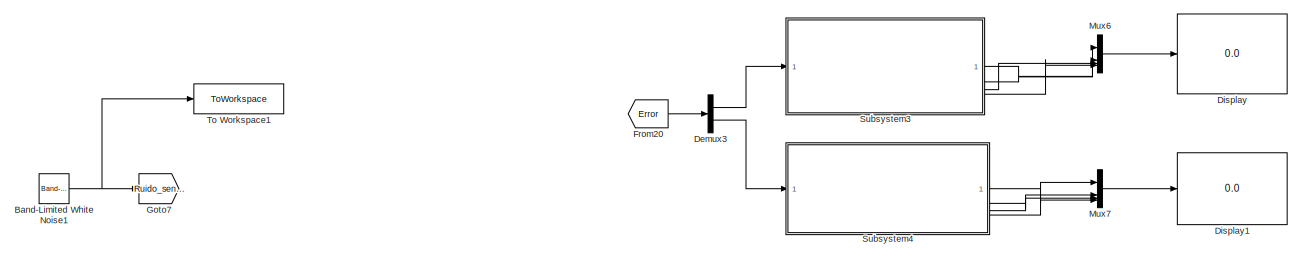
[diagram: Control Estados_Desacoplado - part 1/4, top right region]
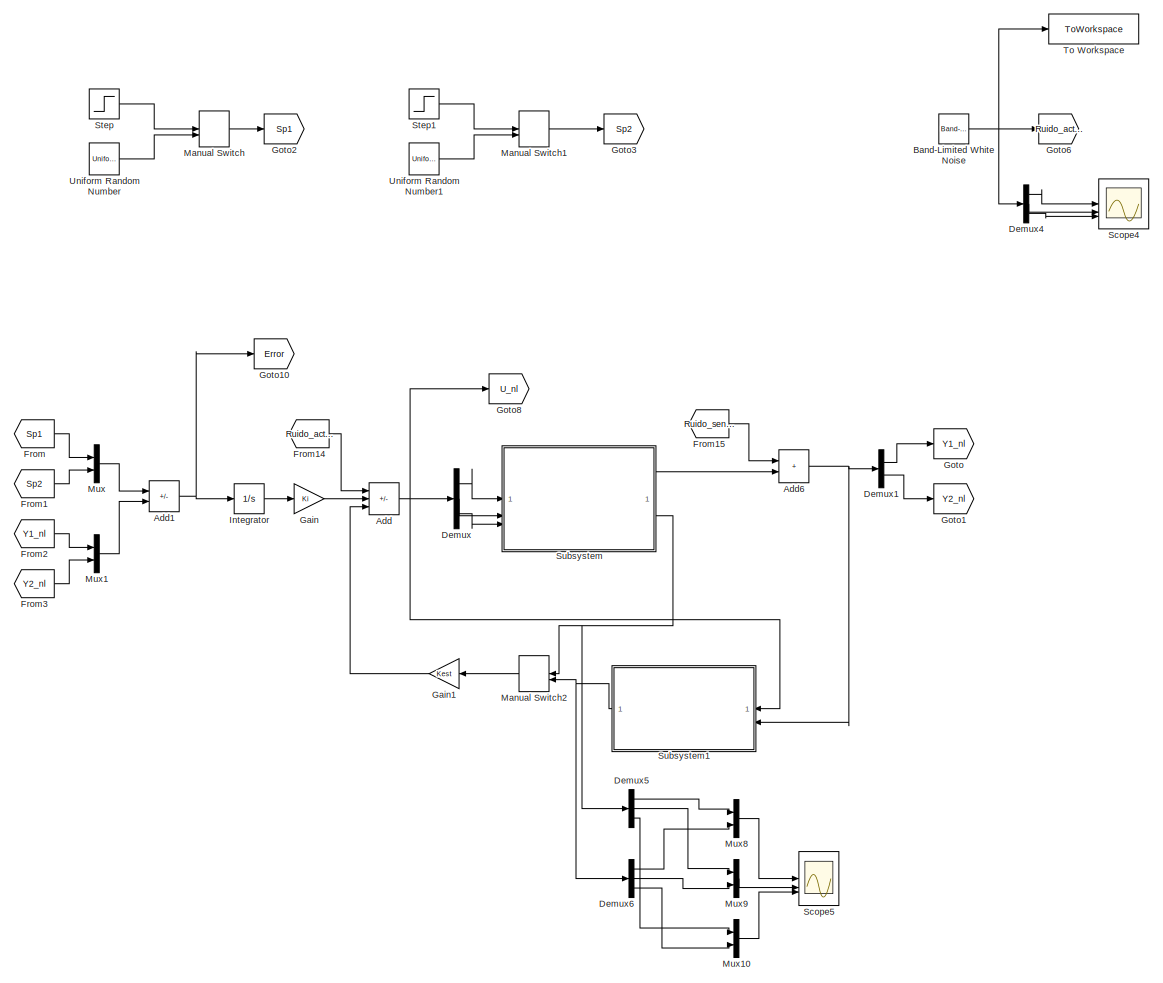
[diagram: Control Estados_Desacoplado - part 2/4, middle left region]
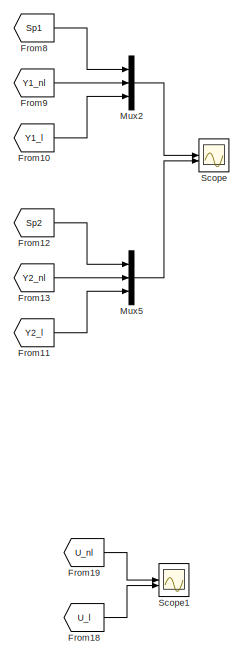
[diagram: Control Estados_Desacoplado - part 3/4, central region]
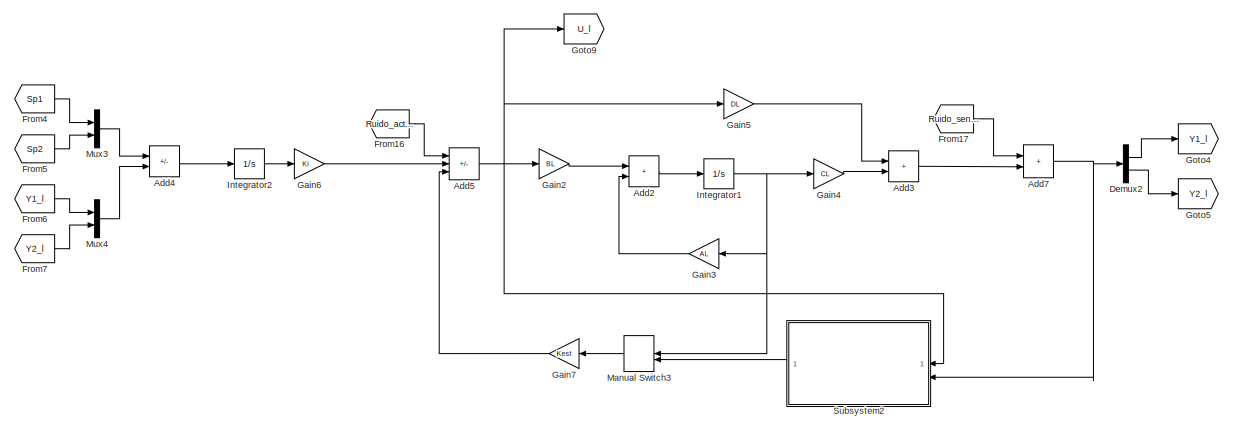
[diagram: Control Estados_Desacoplado - part 4/4, bottom left region]
BLOCK [SubSystem] Control Estados_Desacoplado
  Commented = on
BLOCK [Sum] Control Estados_Desacoplado/Add
  IconShape = rectangular
  Inputs = ++-
BLOCK [Sum] Control Estados_Desacoplado/Add1
  IconShape = rectangular
  Inputs = +-
BLOCK [Sum] Control Estados_Desacoplado/Add2
  IconShape = rectangular
BLOCK [Sum] Control Estados_Desacoplado/Add3
  IconShape = rectangular
BLOCK [Sum] Control Estados_Desacoplado/Add4
  IconShape = rectangular
  Inputs = +-
BLOCK [Sum] Control Estados_Desacoplado/Add5
  IconShape = rectangular
  Inputs = ++-
BLOCK [Sum] Control Estados_Desacoplado/Add6
  IconShape = rectangular
BLOCK [Sum] Control Estados_Desacoplado/Add7
  IconShape = rectangular
BLOCK [Reference] Control Estados_Desacoplado/Band-Limited White Noise  REF=simulink/Sources/Band-Limited
White Noise
  SourceBlock = simulink/Sources/Band-Limited\nWhite Noise
  SourceType = Band-Limited White Noise.
BLOCK [Reference] Control Estados_Desacoplado/Band-Limited White Noise1  REF=simulink/Sources/Band-Limited
White Noise
  SourceBlock = simulink/Sources/Band-Limited\nWhite Noise
  SourceType = Band-Limited White Noise.
BLOCK [Demux] Control Estados_Desacoplado/Demux
  Outputs = 3
BLOCK [Demux] Control Estados_Desacoplado/Demux1
  Outputs = 2
BLOCK [Demux] Control Estados_Desacoplado/Demux2
  Outputs = 2
BLOCK [Demux] Control Estados_Desacoplado/Demux3
  Outputs = 2
BLOCK [Demux] Control Estados_Desacoplado/Demux4
  Outputs = 3
BLOCK [Demux] Control Estados_Desacoplado/Demux5
  Outputs = 3
BLOCK [Demux] Control Estados_Desacoplado/Demux6
  Outputs = 3
BLOCK [Display] Control Estados_Desacoplado/Display
  Decimation = 1
BLOCK [Display] Control Estados_Desacoplado/Display1
  Decimation = 1
BLOCK [From] Control Estados_Desacoplado/From
  GotoTag = Sp1
BLOCK [From] Control Estados_Desacoplado/From1
  GotoTag = Sp2
BLOCK [From] Control Estados_Desacoplado/From10
  GotoTag = Y1_l
BLOCK [From] Control Estados_Desacoplado/From11
  GotoTag = Y2_l
BLOCK [From] Control Estados_Desacoplado/From12
  GotoTag = Sp2
BLOCK [From] Control Estados_Desacoplado/From13
  GotoTag = Y2_nl
BLOCK [From] Control Estados_Desacoplado/From14
  GotoTag = Ruido_actuador
BLOCK [From] Control Estados_Desacoplado/From15
  GotoTag = Ruido_sensor
BLOCK [From] Control Estados_Desacoplado/From16
  GotoTag = Ruido_actuador
BLOCK [From] Control Estados_Desacoplado/From17
  GotoTag = Ruido_sensor
BLOCK [From] Control Estados_Desacoplado/From18
  GotoTag = U_l
BLOCK [From] Control Estados_Desacoplado/From19
  GotoTag = U_nl
BLOCK [From] Control Estados_Desacoplado/From2
  GotoTag = Y1_nl
BLOCK [From] Control Estados_Desacoplado/From20
  GotoTag = Error
BLOCK [From] Control Estados_Desacoplado/From3
  GotoTag = Y2_nl
BLOCK [From] Control Estados_Desacoplado/From4
  GotoTag = Sp1
BLOCK [From] Control Estados_Desacoplado/From5
  GotoTag = Sp2
BLOCK [From] Control Estados_Desacoplado/From6
  GotoTag = Y1_l
BLOCK [From] Control Estados_Desacoplado/From7
  GotoTag = Y2_l
BLOCK [From] Control Estados_Desacoplado/From8
  GotoTag = Sp1
BLOCK [From] Control Estados_Desacoplado/From9
  GotoTag = Y1_nl
BLOCK [Gain] Control Estados_Desacoplado/Gain
  Gain = Ki
  Multiplication = Matrix(K*u)
BLOCK [Gain] Control Estados_Desacoplado/Gain1
  Gain = Kest
  Multiplication = Matrix(K*u)
  NameLocation = top
BLOCK [Gain] Control Estados_Desacoplado/Gain2
  Gain = BL
  Multiplication = Matrix(K*u)
BLOCK [Gain] Control Estados_Desacoplado/Gain3
  Gain = AL
  Multiplication = Matrix(K*u)
  NameLocation = top
BLOCK [Gain] Control Estados_Desacoplado/Gain4
  Gain = CL
  Multiplication = Matrix(K*u)
BLOCK [Gain] Control Estados_Desacoplado/Gain5
  Gain = DL
  Multiplication = Matrix(K*u)
BLOCK [Gain] Control Estados_Desacoplado/Gain6
  Gain = Ki
  Multiplication = Matrix(K*u)
BLOCK [Gain] Control Estados_Desacoplado/Gain7
  Gain = Kest
  Multiplication = Matrix(K*u)
  NameLocation = top
BLOCK [Goto] Control Estados_Desacoplado/Goto
  GotoTag = Y1_nl
BLOCK [Goto] Control Estados_Desacoplado/Goto1
  GotoTag = Y2_nl
BLOCK [Goto] Control Estados_Desacoplado/Goto10
  GotoTag = Error
BLOCK [Goto] Control Estados_Desacoplado/Goto2
  GotoTag = Sp1
BLOCK [Goto] Control Estados_Desacoplado/Goto3
  GotoTag = Sp2
BLOCK [Goto] Control Estados_Desacoplado/Goto4
  GotoTag = Y1_l
BLOCK [Goto] Control Estados_Desacoplado/Goto5
  GotoTag = Y2_l
BLOCK [Goto] Control Estados_Desacoplado/Goto6
  GotoTag = Ruido_actuador
BLOCK [Goto] Control Estados_Desacoplado/Goto7
  GotoTag = Ruido_sensor
BLOCK [Goto] Control Estados_Desacoplado/Goto8
  GotoTag = U_nl
BLOCK [Goto] Control Estados_Desacoplado/Goto9
  GotoTag = U_l
BLOCK [Integrator] Control Estados_Desacoplado/Integrator
BLOCK [Integrator] Control Estados_Desacoplado/Integrator1
BLOCK [Integrator] Control Estados_Desacoplado/Integrator2
BLOCK [ManualSwitch] Control Estados_Desacoplado/Manual Switch
  CurrentSetting = 0
BLOCK [ManualSwitch] Control Estados_Desacoplado/Manual Switch1
  CurrentSetting = 0
BLOCK [ManualSwitch] Control Estados_Desacoplado/Manual Switch2
  NameLocation = top
BLOCK [ManualSwitch] Control Estados_Desacoplado/Manual Switch3
  CurrentSetting = 0
  NameLocation = top
BLOCK [Mux] Control Estados_Desacoplado/Mux
  DisplayOption = bar
  Inputs = 2
BLOCK [Mux] Control Estados_Desacoplado/Mux1
  DisplayOption = bar
  Inputs = 2
BLOCK [Mux] Control Estados_Desacoplado/Mux10
  DisplayOption = bar
  Inputs = 2
BLOCK [Mux] Control Estados_Desacoplado/Mux2
  DisplayOption = bar
  Inputs = 3
BLOCK [Mux] Control Estados_Desacoplado/Mux3
  DisplayOption = bar
  Inputs = 2
BLOCK [Mux] Control Estados_Desacoplado/Mux4
  DisplayOption = bar
  Inputs = 2
BLOCK [Mux] Control Estados_Desacoplado/Mux5
  DisplayOption = bar
  Inputs = 3
BLOCK [Mux] Control Estados_Desacoplado/Mux6
  DisplayOption = bar
BLOCK [Mux] Control Estados_Desacoplado/Mux7
  DisplayOption = bar
BLOCK [Mux] Control Estados_Desacoplado/Mux8
  DisplayOption = bar
  Inputs = 2
BLOCK [Mux] Control Estados_Desacoplado/Mux9
  DisplayOption = bar
  Inputs = 2
BLOCK [Scope] Control Estados_Desacoplado/Scope
  Floating = off
  NumInputPorts = 2
  ScopeSpecificationString = Simulink.scopes.TimeScopeBlockCfg('CurrentConfiguration', extmgr.ConfigurationSet(extmgr.Configuration('Core','General UI',true,'FigureColor',[1 1 1]),extmgr.Configuration('Core','Source UI',true),extmgr.Configuration('Sources','WiredSimulink',true),extmgr.Configuration('Visuals','Time Domain',true,'SerializedDisplays',{struct('MinYLimReal','-0.79511','MaxYLimReal','0.57209','YLabelReal','','MinYL...<+2988ch>
BLOCK [Scope] Control Estados_Desacoplado/Scope1
  Floating = off
  NumInputPorts = 2
  ScopeSpecificationString = Simulink.scopes.TimeScopeBlockCfg('CurrentConfiguration', extmgr.ConfigurationSet(extmgr.Configuration('Core','General UI',true,'FigureColor',[1 1 1]),extmgr.Configuration('Core','Source UI',true),extmgr.Configuration('Sources','WiredSimulink',true,'DataLoggingVariableName','ScopeData1'),extmgr.Configuration('Visuals','Time Domain',true,'SerializedDisplays',{struct('MinYLimReal','-2.85488','MaxYLi...<+3001ch>
BLOCK [Scope] Control Estados_Desacoplado/Scope4
  Floating = off
  NumInputPorts = 3
  ScopeSpecificationString = Simulink.scopes.TimeScopeBlockCfg('CurrentConfiguration', extmgr.ConfigurationSet(extmgr.Configuration('Core','General UI',true,'FigureColor',[1 1 1]),extmgr.Configuration('Core','Source UI',true),extmgr.Configuration('Sources','WiredSimulink',true,'DataLoggingVariableName','ScopeData1'),extmgr.Configuration('Visuals','Time Domain',true,'SerializedDisplays',{struct('MinYLimReal','-0.00177','MaxYLi...<+3792ch>
BLOCK [Scope] Control Estados_Desacoplado/Scope5
  Floating = off
  NumInputPorts = 3
  ScopeSpecificationString = Simulink.scopes.TimeScopeBlockCfg('CurrentConfiguration', extmgr.ConfigurationSet(extmgr.Configuration('Core','General UI',true,'FigureColor',[1 1 1]),extmgr.Configuration('Core','Source UI',true),extmgr.Configuration('Sources','WiredSimulink',true,'DataLoggingVariableName','ScopeData2'),extmgr.Configuration('Visuals','Time Domain',true,'SerializedDisplays',{struct('MinYLimReal','-0.70061','MaxYLi...<+3904ch>
BLOCK [Step] Control Estados_Desacoplado/Step
  After = 0.5
  SampleTime = 0
  Time = 0
BLOCK [Step] Control Estados_Desacoplado/Step1
  After = 0.5
  SampleTime = 0
  Time = 0
BLOCK [SubSystem] Control Estados_Desacoplado/Subsystem
BLOCK [Sum] Control Estados_Desacoplado/Subsystem/Add
  IconShape = rectangular
BLOCK [Sum] Control Estados_Desacoplado/Subsystem/Add1
  IconShape = rectangular
BLOCK [Sum] Control Estados_Desacoplado/Subsystem/Add2
  IconShape = rectangular
BLOCK [Sum] Control Estados_Desacoplado/Subsystem/Add4
  IconShape = rectangular
  Inputs = +-
BLOCK [Constant] Control Estados_Desacoplado/Subsystem/Constant
  Value = u10
BLOCK [Constant] Control Estados_Desacoplado/Subsystem/Constant1
  Value = u20
BLOCK [Constant] Control Estados_Desacoplado/Subsystem/Constant2
  Value = u30
BLOCK [Constant] Control Estados_Desacoplado/Subsystem/Constant4
  Value = [x10; x20; x30]
BLOCK [Outport] Control Estados_Desacoplado/Subsystem/Est
  Port = 2
  VectorParamsAs1DForOutWhenUnconnected = off
BLOCK [Gain] Control Estados_Desacoplado/Subsystem/Gain
  Gain = CL
  Multiplication = Matrix(K*u)
BLOCK [Inport] Control Estados_Desacoplado/Subsystem/In1
BLOCK [Inport] Control Estados_Desacoplado/Subsystem/In2
  Port = 2
BLOCK [Inport] Control Estados_Desacoplado/Subsystem/In3
  Port = 3
BLOCK [Integrator] Control Estados_Desacoplado/Subsystem/Integrator
  InitialCondition = [x10; x20; x30]
BLOCK [SubSystem] Control Estados_Desacoplado/Subsystem/MATLAB Function
  ErrorFcn = Stateflow.Translate.translate
  PermitHierarchicalResolution = ExplicitOnly
  SFBlockType = MATLAB Function
  TreatAsAtomicUnit = on
BLOCK [Demux] Control Estados_Desacoplado/Subsystem/MATLAB Function/ Demux 
  Outputs = 1
BLOCK [S-Function] Control Estados_Desacoplado/Subsystem/MATLAB Function/ SFunction 
  EnableBusSupport = off
  FunctionName = sf_sfun
  PortCounts = [4 2]
  SFcnIsStateOwnerBlock = off
  SFunctionDeploymentMode = off
  Tag = Stateflow S-Function 8
BLOCK [Terminator] Control Estados_Desacoplado/Subsystem/MATLAB Function/ Terminator 
BLOCK [Outport] Control Estados_Desacoplado/Subsystem/MATLAB Function/f
BLOCK [Inport] Control Estados_Desacoplado/Subsystem/MATLAB Function/u1
  Port = 2
BLOCK [Inport] Control Estados_Desacoplado/Subsystem/MATLAB Function/u2
  Port = 3
BLOCK [Inport] Control Estados_Desacoplado/Subsystem/MATLAB Function/u3
  Port = 4
BLOCK [Inport] Control Estados_Desacoplado/Subsystem/MATLAB Function/x
BLOCK [Outport] Control Estados_Desacoplado/Subsystem/Y
  VectorParamsAs1DForOutWhenUnconnected = off
BLOCK [SubSystem] Control Estados_Desacoplado/Subsystem1
  NameLocation = top
BLOCK [Sum] Control Estados_Desacoplado/Subsystem1/Add6
  IconShape = rectangular
BLOCK [Sum] Control Estados_Desacoplado/Subsystem1/Add7
  IconShape = rectangular
BLOCK [Sum] Control Estados_Desacoplado/Subsystem1/Add8
  IconShape = rectangular
BLOCK [Sum] Control Estados_Desacoplado/Subsystem1/Add9
  IconShape = rectangular
  Inputs = +-
BLOCK [Outport] Control Estados_Desacoplado/Subsystem1/Estados
  VectorParamsAs1DForOutWhenUnconnected = off
BLOCK [Gain] Control Estados_Desacoplado/Subsystem1/Gain10
  Gain = CL
  Multiplication = Matrix(K*u)
BLOCK [Gain] Control Estados_Desacoplado/Subsystem1/Gain11
  Gain = DL
  Multiplication = Matrix(K*u)
BLOCK [Gain] Control Estados_Desacoplado/Subsystem1/Gain13
  Gain = L
  Multiplication = Matrix(K*u)
  NameLocation = top
BLOCK [Gain] Control Estados_Desacoplado/Subsystem1/Gain8
  Gain = BL
  Multiplication = Matrix(K*u)
BLOCK [Gain] Control Estados_Desacoplado/Subsystem1/Gain9
  Gain = AL
  Multiplication = Matrix(K*u)
  NameLocation = top
BLOCK [Integrator] Control Estados_Desacoplado/Subsystem1/Integrator3
BLOCK [Inport] Control Estados_Desacoplado/Subsystem1/U
BLOCK [Inport] Control Estados_Desacoplado/Subsystem1/Y
  Port = 2
BLOCK [SubSystem] Control Estados_Desacoplado/Subsystem2
  NameLocation = top
BLOCK [Sum] Control Estados_Desacoplado/Subsystem2/Add6
  IconShape = rectangular
BLOCK [Sum] Control Estados_Desacoplado/Subsystem2/Add7
  IconShape = rectangular
BLOCK [Sum] Control Estados_Desacoplado/Subsystem2/Add8
  IconShape = rectangular
BLOCK [Sum] Control Estados_Desacoplado/Subsystem2/Add9
  IconShape = rectangular
  Inputs = +-
BLOCK [Outport] Control Estados_Desacoplado/Subsystem2/Estados
  VectorParamsAs1DForOutWhenUnconnected = off
BLOCK [Gain] Control Estados_Desacoplado/Subsystem2/Gain10
  Gain = CL
  Multiplication = Matrix(K*u)
BLOCK [Gain] Control Estados_Desacoplado/Subsystem2/Gain11
  Gain = DL
  Multiplication = Matrix(K*u)
BLOCK [Gain] Control Estados_Desacoplado/Subsystem2/Gain13
  Gain = L
  Multiplication = Matrix(K*u)
  NameLocation = top
BLOCK [Gain] Control Estados_Desacoplado/Subsystem2/Gain8
  Gain = BL
  Multiplication = Matrix(K*u)
BLOCK [Gain] Control Estados_Desacoplado/Subsystem2/Gain9
  Gain = AL
  Multiplication = Matrix(K*u)
  NameLocation = top
BLOCK [Integrator] Control Estados_Desacoplado/Subsystem2/Integrator3
BLOCK [Inport] Control Estados_Desacoplado/Subsystem2/U
BLOCK [Inport] Control Estados_Desacoplado/Subsystem2/Y
  Port = 2
BLOCK [SubSystem] Control Estados_Desacoplado/Subsystem3
BLOCK [Abs] Control Estados_Desacoplado/Subsystem3/Abs
  SaturateOnIntegerOverflow = off
BLOCK [Clock] Control Estados_Desacoplado/Subsystem3/Clock
  Decimation = 1
BLOCK [Clock] Control Estados_Desacoplado/Subsystem3/Clock1
  Decimation = 1
BLOCK [Outport] Control Estados_Desacoplado/Subsystem3/IAE
  VectorParamsAs1DForOutWhenUnconnected = off
BLOCK [Outport] Control Estados_Desacoplado/Subsystem3/ISE
  Port = 3
  VectorParamsAs1DForOutWhenUnconnected = off
BLOCK [Outport] Control Estados_Desacoplado/Subsystem3/ITAE
  Port = 2
  VectorParamsAs1DForOutWhenUnconnected = off
BLOCK [Outport] Control Estados_Desacoplado/Subsystem3/ITSE
  Port = 4
  VectorParamsAs1DForOutWhenUnconnected = off
BLOCK [Inport] Control Estados_Desacoplado/Subsystem3/In1
BLOCK [Integrator] Control Estados_Desacoplado/Subsystem3/Integrator3
BLOCK [Integrator] Control Estados_Desacoplado/Subsystem3/Integrator4
BLOCK [Integrator] Control Estados_Desacoplado/Subsystem3/Integrator5
BLOCK [Integrator] Control Estados_Desacoplado/Subsystem3/Integrator6
BLOCK [Math] Control Estados_Desacoplado/Subsystem3/Power
  Operator = magnitude^2
  SignedPower = on
BLOCK [Product] Control Estados_Desacoplado/Subsystem3/Product
BLOCK [Product] Control Estados_Desacoplado/Subsystem3/Product1
BLOCK [SubSystem] Control Estados_Desacoplado/Subsystem4
BLOCK [Abs] Control Estados_Desacoplado/Subsystem4/Abs
  SaturateOnIntegerOverflow = off
BLOCK [Clock] Control Estados_Desacoplado/Subsystem4/Clock
  Decimation = 1
BLOCK [Clock] Control Estados_Desacoplado/Subsystem4/Clock1
  Decimation = 1
BLOCK [Outport] Control Estados_Desacoplado/Subsystem4/IAE
  VectorParamsAs1DForOutWhenUnconnected = off
BLOCK [Outport] Control Estados_Desacoplado/Subsystem4/ISE
  Port = 3
  VectorParamsAs1DForOutWhenUnconnected = off
BLOCK [Outport] Control Estados_Desacoplado/Subsystem4/ITAE
  Port = 2
  VectorParamsAs1DForOutWhenUnconnected = off
BLOCK [Outport] Control Estados_Desacoplado/Subsystem4/ITSE
  Port = 4
  VectorParamsAs1DForOutWhenUnconnected = off
BLOCK [Inport] Control Estados_Desacoplado/Subsystem4/In1
BLOCK [Integrator] Control Estados_Desacoplado/Subsystem4/Integrator3
BLOCK [Integrator] Control Estados_Desacoplado/Subsystem4/Integrator4
BLOCK [Integrator] Control Estados_Desacoplado/Subsystem4/Integrator5
BLOCK [Integrator] Control Estados_Desacoplado/Subsystem4/Integrator6
BLOCK [Math] Control Estados_Desacoplado/Subsystem4/Power
  Operator = magnitude^2
  SignedPower = on
BLOCK [Product] Control Estados_Desacoplado/Subsystem4/Product
BLOCK [Product] Control Estados_Desacoplado/Subsystem4/Product1
BLOCK [Scope] Control Estados_Desacoplado/Subsystem4/Scope3
  Floating = off
  NumInputPorts = 4
BLOCK [ToWorkspace] Control Estados_Desacoplado/To Workspace
  FixptAsFi = on
  MaxDataPoints = inf
  SampleTime = -1
  VariableName = Ruido_actuador
BLOCK [ToWorkspace] Control Estados_Desacoplado/To Workspace1
  FixptAsFi = on
  MaxDataPoints = inf
  SampleTime = -1
  VariableName = Ruido_sensor
BLOCK [UniformRandomNumber] Control Estados_Desacoplado/Uniform Random Number
  Maximum = 0.5
  Minimum = -0.5
  SampleTime = 4
BLOCK [UniformRandomNumber] Control Estados_Desacoplado/Uniform Random Number1
  Maximum = 0.5
  Minimum = -0.5
  SampleTime = 7
  Seed = 6
BLOCK [SubSystem] Control Estados_Discreto_2 DOF Unificado
  Commented = on
BLOCK [Sum] Control Estados_Discreto_2 DOF Unificado/Add
  IconShape = rectangular
  Inputs = ++-
BLOCK [Sum] Control Estados_Discreto_2 DOF Unificado/Add1
  IconShape = rectangular
  Inputs = +-
BLOCK [Sum] Control Estados_Discreto_2 DOF Unificado/Add2
  IconShape = rectangular
BLOCK [Sum] Control Estados_Discreto_2 DOF Unificado/Add3
  IconShape = rectangular
BLOCK [Sum] Control Estados_Discreto_2 DOF Unificado/Add6
  IconShape = rectangular
BLOCK [Sum] Control Estados_Discreto_2 DOF Unificado/Add8
  IconShape = rectangular
BLOCK [Reference] Control Estados_Discreto_2 DOF Unificado/Band-Limited White Noise  REF=simulink/Sources/Band-Limited
White Noise
  SourceBlock = simulink/Sources/Band-Limited\nWhite Noise
  SourceType = Band-Limited White Noise.
BLOCK [Reference] Control Estados_Discreto_2 DOF Unificado/Band-Limited White Noise1  REF=simulink/Sources/Band-Limited
White Noise
  SourceBlock = simulink/Sources/Band-Limited\nWhite Noise
  SourceType = Band-Limited White Noise.
BLOCK [Demux] Control Estados_Discreto_2 DOF Unificado/Demux
  Outputs = 3
BLOCK [Demux] Control Estados_Discreto_2 DOF Unificado/Demux1
  Outputs = 2
BLOCK [Demux] Control Estados_Discreto_2 DOF Unificado/Demux2
  Outputs = 2
BLOCK [Demux] Control Estados_Discreto_2 DOF Unificado/Demux3
  Outputs = 3
BLOCK [Demux] Control Estados_Discreto_2 DOF Unificado/Demux5
  Outputs = 3
BLOCK [Demux] Control Estados_Discreto_2 DOF Unificado/Demux6
  Outputs = 3
BLOCK [DiscreteStateSpace] Control Estados_Discreto_2 DOF Unificado/Discrete State-Space
  A = Gcon
  B = Hcon
  C = Ccon
  D = Dcon
  SampleTime = Tm
BLOCK [From] Control Estados_Discreto_2 DOF Unificado/From
  GotoTag = Sp1
BLOCK [From] Control Estados_Discreto_2 DOF Unificado/From1
  GotoTag = Sp2
BLOCK [From] Control Estados_Discreto_2 DOF Unificado/From10
  GotoTag = Y1_l
BLOCK [From] Control Estados_Discreto_2 DOF Unificado/From11
  GotoTag = Y2_l
BLOCK [From] Control Estados_Discreto_2 DOF Unificado/From12
  GotoTag = Sp2
BLOCK [From] Control Estados_Discreto_2 DOF Unificado/From13
  GotoTag = Y2_nl
BLOCK [From] Control Estados_Discreto_2 DOF Unificado/From14
  GotoTag = Ruido_actuador
BLOCK [From] Control Estados_Discreto_2 DOF Unificado/From15
  GotoTag = Ruido_sensor
BLOCK [From] Control Estados_Discreto_2 DOF Unificado/From16
  GotoTag = Ruido_actuador
BLOCK [From] Control Estados_Discreto_2 DOF Unificado/From17
  GotoTag = Ruido_sensor
BLOCK [From] Control Estados_Discreto_2 DOF Unificado/From18
  GotoTag = U_l
BLOCK [From] Control Estados_Discreto_2 DOF Unificado/From19
  GotoTag = U_nl
BLOCK [From] Control Estados_Discreto_2 DOF Unificado/From2
  GotoTag = Y1_nl
BLOCK [From] Control Estados_Discreto_2 DOF Unificado/From3
  GotoTag = Y2_nl
BLOCK [From] Control Estados_Discreto_2 DOF Unificado/From4
  GotoTag = Sp1
BLOCK [From] Control Estados_Discreto_2 DOF Unificado/From5
  GotoTag = Sp2
BLOCK [From] Control Estados_Discreto_2 DOF Unificado/From6
  GotoTag = Y1_l
BLOCK [From] Control Estados_Discreto_2 DOF Unificado/From7
  GotoTag = Y2_l
BLOCK [From] Control Estados_Discreto_2 DOF Unificado/From8
  GotoTag = Sp1
BLOCK [From] Control Estados_Discreto_2 DOF Unificado/From9
  GotoTag = Y1_nl
BLOCK [Gain] Control Estados_Discreto_2 DOF Unificado/Gain
  Gain = Ki
  Multiplication = Matrix(K*u)
BLOCK [Gain] Control Estados_Discreto_2 DOF Unificado/Gain1
  Gain = Kest
  Multiplication = Matrix(K*u)
  NameLocation = top
BLOCK [Goto] Control Estados_Discreto_2 DOF Unificado/Goto
  GotoTag = Y1_nl
BLOCK [Goto] Control Estados_Discreto_2 DOF Unificado/Goto1
  GotoTag = Y2_nl
BLOCK [Goto] Control Estados_Discreto_2 DOF Unificado/Goto2
  GotoTag = Sp1
BLOCK [Goto] Control Estados_Discreto_2 DOF Unificado/Goto3
  GotoTag = Sp2
BLOCK [Goto] Control Estados_Discreto_2 DOF Unificado/Goto4
  GotoTag = Y1_l
BLOCK [Goto] Control Estados_Discreto_2 DOF Unificado/Goto5
  GotoTag = Y2_l
BLOCK [Goto] Control Estados_Discreto_2 DOF Unificado/Goto6
  GotoTag = Ruido_actuador
BLOCK [Goto] Control Estados_Discreto_2 DOF Unificado/Goto7
  GotoTag = Ruido_sensor
BLOCK [Goto] Control Estados_Discreto_2 DOF Unificado/Goto8
  GotoTag = U_nl
BLOCK [Goto] Control Estados_Discreto_2 DOF Unificado/Goto9
  GotoTag = U_l
BLOCK [ManualSwitch] Control Estados_Discreto_2 DOF Unificado/Manual Switch
  CurrentSetting = 0
BLOCK [ManualSwitch] Control Estados_Discreto_2 DOF Unificado/Manual Switch1
  CurrentSetting = 0
BLOCK [ManualSwitch] Control Estados_Discreto_2 DOF Unificado/Manual Switch2
  CurrentSetting = 0
  NameLocation = top
BLOCK [Mux] Control Estados_Discreto_2 DOF Unificado/Mux
  DisplayOption = bar
  Inputs = 2
BLOCK [Mux] Control Estados_Discreto_2 DOF Unificado/Mux1
  DisplayOption = bar
  Inputs = 2
BLOCK [Mux] Control Estados_Discreto_2 DOF Unificado/Mux10
  DisplayOption = bar
  Inputs = 2
BLOCK [Mux] Control Estados_Discreto_2 DOF Unificado/Mux12
  DisplayOption = bar
  Inputs = 2
BLOCK [Mux] Control Estados_Discreto_2 DOF Unificado/Mux2
  DisplayOption = bar
  Inputs = 3
BLOCK [Mux] Control Estados_Discreto_2 DOF Unificado/Mux3
  DisplayOption = bar
  Inputs = 2
BLOCK [Mux] Control Estados_Discreto_2 DOF Unificado/Mux4
  DisplayOption = bar
  Inputs = 2
BLOCK [Mux] Control Estados_Discreto_2 DOF Unificado/Mux5
  DisplayOption = bar
  Inputs = 3
BLOCK [Mux] Control Estados_Discreto_2 DOF Unificado/Mux8
  DisplayOption = bar
  Inputs = 2
BLOCK [Mux] Control Estados_Discreto_2 DOF Unificado/Mux9
  DisplayOption = bar
  Inputs = 2
BLOCK [Scope] Control Estados_Discreto_2 DOF Unificado/Scope
  Floating = off
  NumInputPorts = 2
  ScopeSpecificationString = Simulink.scopes.TimeScopeBlockCfg('CurrentConfiguration', extmgr.ConfigurationSet(extmgr.Configuration('Core','General UI',true,'FigureColor',[1 1 1]),extmgr.Configuration('Core','Source UI',true),extmgr.Configuration('Sources','WiredSimulink',true,'DataLoggingVariableName','ScopeData2'),extmgr.Configuration('Visuals','Time Domain',true,'SerializedDisplays',{struct('MinYLimReal','-0.66201','MaxYLi...<+3072ch>
BLOCK [Scope] Control Estados_Discreto_2 DOF Unificado/Scope1
  Floating = off
  NumInputPorts = 2
  ScopeSpecificationString = Simulink.scopes.TimeScopeBlockCfg('CurrentConfiguration', extmgr.ConfigurationSet(extmgr.Configuration('Core','General UI',true,'FigureColor',[1 1 1]),extmgr.Configuration('Core','Source UI',true),extmgr.Configuration('Sources','WiredSimulink',true,'DataLoggingVariableName','ScopeData3'),extmgr.Configuration('Visuals','Time Domain',true,'SerializedDisplays',{struct('MinYLimReal','-2.27842','MaxYLi...<+2905ch>
BLOCK [Scope] Control Estados_Discreto_2 DOF Unificado/Scope5
  Floating = off
  NumInputPorts = 3
  ScopeSpecificationString = Simulink.scopes.TimeScopeBlockCfg('CurrentConfiguration', extmgr.ConfigurationSet(extmgr.Configuration('Core','General UI',true,'FigureColor',[1 1 1]),extmgr.Configuration('Core','Source UI',true),extmgr.Configuration('Sources','WiredSimulink',true,'DataLoggingVariableName','ScopeData1'),extmgr.Configuration('Visuals','Time Domain',true,'SerializedDisplays',{struct('MinYLimReal','-0.70061','MaxYLi...<+3961ch>
BLOCK [Step] Control Estados_Discreto_2 DOF Unificado/Step
  After = 0.5
  SampleTime = 0
  Time = 0
BLOCK [Step] Control Estados_Discreto_2 DOF Unificado/Step1
  After = 0.5
  SampleTime = 0
  Time = 0
BLOCK [SubSystem] Control Estados_Discreto_2 DOF Unificado/Subsystem
BLOCK [Sum] Control Estados_Discreto_2 DOF Unificado/Subsystem/Add
  IconShape = rectangular
BLOCK [Sum] Control Estados_Discreto_2 DOF Unificado/Subsystem/Add1
  IconShape = rectangular
BLOCK [Sum] Control Estados_Discreto_2 DOF Unificado/Subsystem/Add2
  IconShape = rectangular
BLOCK [Sum] Control Estados_Discreto_2 DOF Unificado/Subsystem/Add4
  IconShape = rectangular
  Inputs = +-
BLOCK [Constant] Control Estados_Discreto_2 DOF Unificado/Subsystem/Constant
  Value = u10
BLOCK [Constant] Control Estados_Discreto_2 DOF Unificado/Subsystem/Constant1
  Value = u20
BLOCK [Constant] Control Estados_Discreto_2 DOF Unificado/Subsystem/Constant2
  Value = u30
BLOCK [Constant] Control Estados_Discreto_2 DOF Unificado/Subsystem/Constant4
  Value = [x10; x20; x30]
BLOCK [Outport] Control Estados_Discreto_2 DOF Unificado/Subsystem/Est
  Port = 2
  VectorParamsAs1DForOutWhenUnconnected = off
BLOCK [Gain] Control Estados_Discreto_2 DOF Unificado/Subsystem/Gain
  Gain = CL
  Multiplication = Matrix(K*u)
BLOCK [Inport] Control Estados_Discreto_2 DOF Unificado/Subsystem/In1
BLOCK [Inport] Control Estados_Discreto_2 DOF Unificado/Subsystem/In2
  Port = 2
BLOCK [Inport] Control Estados_Discreto_2 DOF Unificado/Subsystem/In3
  Port = 3
BLOCK [Integrator] Control Estados_Discreto_2 DOF Unificado/Subsystem/Integrator
  InitialCondition = [x10; x20; x30]
BLOCK [SubSystem] Control Estados_Discreto_2 DOF Unificado/Subsystem/MATLAB Function
  ErrorFcn = Stateflow.Translate.translate
  PermitHierarchicalResolution = ExplicitOnly
  SFBlockType = MATLAB Function
  TreatAsAtomicUnit = on
BLOCK [Demux] Control Estados_Discreto_2 DOF Unificado/Subsystem/MATLAB Function/ Demux 
  Outputs = 1
BLOCK [S-Function] Control Estados_Discreto_2 DOF Unificado/Subsystem/MATLAB Function/ SFunction 
  EnableBusSupport = off
  FunctionName = sf_sfun
  PortCounts = [4 2]
  SFcnIsStateOwnerBlock = off
  SFunctionDeploymentMode = off
  Tag = Stateflow S-Function 30
BLOCK [Terminator] Control Estados_Discreto_2 DOF Unificado/Subsystem/MATLAB Function/ Terminator 
BLOCK [Outport] Control Estados_Discreto_2 DOF Unificado/Subsystem/MATLAB Function/f
BLOCK [Inport] Control Estados_Discreto_2 DOF Unificado/Subsystem/MATLAB Function/u1
  Port = 2
BLOCK [Inport] Control Estados_Discreto_2 DOF Unificado/Subsystem/MATLAB Function/u2
  Port = 3
BLOCK [Inport] Control Estados_Discreto_2 DOF Unificado/Subsystem/MATLAB Function/u3
  Port = 4
BLOCK [Inport] Control Estados_Discreto_2 DOF Unificado/Subsystem/MATLAB Function/x
BLOCK [Outport] Control Estados_Discreto_2 DOF Unificado/Subsystem/Y
  VectorParamsAs1DForOutWhenUnconnected = off
BLOCK [SubSystem] Control Estados_Discreto_2 DOF Unificado/Subsystem1
  NameLocation = top
BLOCK [Sum] Control Estados_Discreto_2 DOF Unificado/Subsystem1/Add6
  IconShape = rectangular
BLOCK [Sum] Control Estados_Discreto_2 DOF Unificado/Subsystem1/Add7
  IconShape = rectangular
BLOCK [Sum] Control Estados_Discreto_2 DOF Unificado/Subsystem1/Add8
  IconShape = rectangular
BLOCK [Sum] Control Estados_Discreto_2 DOF Unificado/Subsystem1/Add9
  IconShape = rectangular
  Inputs = +-
BLOCK [Outport] Control Estados_Discreto_2 DOF Unificado/Subsystem1/Estados
  VectorParamsAs1DForOutWhenUnconnected = off
BLOCK [Gain] Control Estados_Discreto_2 DOF Unificado/Subsystem1/Gain10
  Gain = CL
  Multiplication = Matrix(K*u)
BLOCK [Gain] Control Estados_Discreto_2 DOF Unificado/Subsystem1/Gain11
  Gain = DL
  Multiplication = Matrix(K*u)
BLOCK [Gain] Control Estados_Discreto_2 DOF Unificado/Subsystem1/Gain13
  Gain = L
  Multiplication = Matrix(K*u)
  NameLocation = top
BLOCK [Gain] Control Estados_Discreto_2 DOF Unificado/Subsystem1/Gain8
  Gain = HL
  Multiplication = Matrix(K*u)
BLOCK [Gain] Control Estados_Discreto_2 DOF Unificado/Subsystem1/Gain9
  Gain = GL
  Multiplication = Matrix(K*u)
  NameLocation = top
BLOCK [Inport] Control Estados_Discreto_2 DOF Unificado/Subsystem1/U
BLOCK [UnitDelay] Control Estados_Discreto_2 DOF Unificado/Subsystem1/Unit Delay
  HasFrameUpgradeWarning = on
  SampleTime = Tm
BLOCK [Inport] Control Estados_Discreto_2 DOF Unificado/Subsystem1/Y
  Port = 2
BLOCK [SubSystem] Control Estados_Discreto_2 DOF Unificado/Subsystem2
BLOCK [Sum] Control Estados_Discreto_2 DOF Unificado/Subsystem2/Add
  IconShape = rectangular
BLOCK [Sum] Control Estados_Discreto_2 DOF Unificado/Subsystem2/Add1
  IconShape = rectangular
BLOCK [Sum] Control Estados_Discreto_2 DOF Unificado/Subsystem2/Add2
  IconShape = rectangular
BLOCK [Sum] Control Estados_Discreto_2 DOF Unificado/Subsystem2/Add4
  IconShape = rectangular
  Inputs = +-
BLOCK [Constant] Control Estados_Discreto_2 DOF Unificado/Subsystem2/Constant
  Value = u10
BLOCK [Constant] Control Estados_Discreto_2 DOF Unificado/Subsystem2/Constant1
  Value = u20
BLOCK [Constant] Control Estados_Discreto_2 DOF Unificado/Subsystem2/Constant2
  Value = u30
BLOCK [Constant] Control Estados_Discreto_2 DOF Unificado/Subsystem2/Constant4
  Value = [x10; x20; x30]
BLOCK [Outport] Control Estados_Discreto_2 DOF Unificado/Subsystem2/Est
  Port = 2
  VectorParamsAs1DForOutWhenUnconnected = off
BLOCK [Gain] Control Estados_Discreto_2 DOF Unificado/Subsystem2/Gain
  Gain = CL
  Multiplication = Matrix(K*u)
BLOCK [Inport] Control Estados_Discreto_2 DOF Unificado/Subsystem2/In1
BLOCK [Inport] Control Estados_Discreto_2 DOF Unificado/Subsystem2/In2
  Port = 2
BLOCK [Inport] Control Estados_Discreto_2 DOF Unificado/Subsystem2/In3
  Port = 3
BLOCK [Integrator] Control Estados_Discreto_2 DOF Unificado/Subsystem2/Integrator
  InitialCondition = [x10; x20; x30]
BLOCK [SubSystem] Control Estados_Discreto_2 DOF Unificado/Subsystem2/MATLAB Function
  ErrorFcn = Stateflow.Translate.translate
  PermitHierarchicalResolution = ExplicitOnly
  SFBlockType = MATLAB Function
  TreatAsAtomicUnit = on
BLOCK [Demux] Control Estados_Discreto_2 DOF Unificado/Subsystem2/MATLAB Function/ Demux 
  Outputs = 1
BLOCK [S-Function] Control Estados_Discreto_2 DOF Unificado/Subsystem2/MATLAB Function/ SFunction 
  EnableBusSupport = off
  FunctionName = sf_sfun
  PortCounts = [4 2]
  SFcnIsStateOwnerBlock = off
  SFunctionDeploymentMode = off
  Tag = Stateflow S-Function 13
BLOCK [Terminator] Control Estados_Discreto_2 DOF Unificado/Subsystem2/MATLAB Function/ Terminator 
BLOCK [Outport] Control Estados_Discreto_2 DOF Unificado/Subsystem2/MATLAB Function/f
BLOCK [Inport] Control Estados_Discreto_2 DOF Unificado/Subsystem2/MATLAB Function/u1
  Port = 2
BLOCK [Inport] Control Estados_Discreto_2 DOF Unificado/Subsystem2/MATLAB Function/u2
  Port = 3
BLOCK [Inport] Control Estados_Discreto_2 DOF Unificado/Subsystem2/MATLAB Function/u3
  Port = 4
BLOCK [Inport] Control Estados_Discreto_2 DOF Unificado/Subsystem2/MATLAB Function/x
BLOCK [Outport] Control Estados_Discreto_2 DOF Unificado/Subsystem2/Y
  VectorParamsAs1DForOutWhenUnconnected = off
BLOCK [Terminator] Control Estados_Discreto_2 DOF Unificado/Terminator
BLOCK [UniformRandomNumber] Control Estados_Discreto_2 DOF Unificado/Uniform Random Number
  Maximum = 0.5
  Minimum = -0.5
  SampleTime = 4
BLOCK [UniformRandomNumber] Control Estados_Discreto_2 DOF Unificado/Uniform Random Number1
  Maximum = 0.5
  Minimum = -0.5
  SampleTime = 7
  Seed = 6
BLOCK [UnitDelay] Control Estados_Discreto_2 DOF Unificado/Unit Delay
  HasFrameUpgradeWarning = on
  NameLocation = top
  SampleTime = Tm
BLOCK [SubSystem] Control Estados_Discreto_Codigo
  Commented = on
BLOCK [Sum] Control Estados_Discreto_Codigo/Add
  IconShape = rectangular
  Inputs = ++-
BLOCK [Sum] Control Estados_Discreto_Codigo/Add1
  IconShape = rectangular
  Inputs = +-
BLOCK [Sum] Control Estados_Discreto_Codigo/Add2
  IconShape = rectangular
BLOCK [Sum] Control Estados_Discreto_Codigo/Add3
  IconShape = rectangular
BLOCK [Sum] Control Estados_Discreto_Codigo/Add6
  IconShape = rectangular
BLOCK [Sum] Control Estados_Discreto_Codigo/Add8
  IconShape = rectangular
BLOCK [Reference] Control Estados_Discreto_Codigo/Band-Limited White Noise  REF=simulink/Sources/Band-Limited
White Noise
  SourceBlock = simulink/Sources/Band-Limited\nWhite Noise
  SourceType = Band-Limited White Noise.
BLOCK [Reference] Control Estados_Discreto_Codigo/Band-Limited White Noise1  REF=simulink/Sources/Band-Limited
White Noise
  SourceBlock = simulink/Sources/Band-Limited\nWhite Noise
  SourceType = Band-Limited White Noise.
BLOCK [Demux] Control Estados_Discreto_Codigo/Demux
  Outputs = 3
BLOCK [Demux] Control Estados_Discreto_Codigo/Demux1
  Outputs = 2
BLOCK [Demux] Control Estados_Discreto_Codigo/Demux2
  Outputs = 2
BLOCK [Demux] Control Estados_Discreto_Codigo/Demux5
  Outputs = 3
BLOCK [Demux] Control Estados_Discreto_Codigo/Demux6
  Outputs = 3
BLOCK [Demux] Control Estados_Discreto_Codigo/Demux7
  Outputs = 3
BLOCK [From] Control Estados_Discreto_Codigo/From
  GotoTag = Sp1
BLOCK [From] Control Estados_Discreto_Codigo/From1
  GotoTag = Sp2
BLOCK [From] Control Estados_Discreto_Codigo/From10
  GotoTag = Y1_l
BLOCK [From] Control Estados_Discreto_Codigo/From11
  GotoTag = Y2_l
BLOCK [From] Control Estados_Discreto_Codigo/From12
  GotoTag = Sp2
BLOCK [From] Control Estados_Discreto_Codigo/From13
  GotoTag = Y2_nl
BLOCK [From] Control Estados_Discreto_Codigo/From14
  GotoTag = Ruido_actuador
BLOCK [From] Control Estados_Discreto_Codigo/From15
  GotoTag = Ruido_sensor
BLOCK [From] Control Estados_Discreto_Codigo/From16
  GotoTag = Ruido_actuador
BLOCK [From] Control Estados_Discreto_Codigo/From17
  GotoTag = Ruido_sensor
BLOCK [From] Control Estados_Discreto_Codigo/From18
  GotoTag = U_l
BLOCK [From] Control Estados_Discreto_Codigo/From19
  GotoTag = U_nl
BLOCK [From] Control Estados_Discreto_Codigo/From2
  GotoTag = Y1_nl
BLOCK [From] Control Estados_Discreto_Codigo/From3
  GotoTag = Y2_nl
BLOCK [From] Control Estados_Discreto_Codigo/From4
  GotoTag = Sp1
BLOCK [From] Control Estados_Discreto_Codigo/From5
  GotoTag = Sp2
BLOCK [From] Control Estados_Discreto_Codigo/From6
  GotoTag = Y1_l
BLOCK [From] Control Estados_Discreto_Codigo/From7
  GotoTag = Y2_l
BLOCK [From] Control Estados_Discreto_Codigo/From8
  GotoTag = Sp1
BLOCK [From] Control Estados_Discreto_Codigo/From9
  GotoTag = Y1_nl
BLOCK [Gain] Control Estados_Discreto_Codigo/Gain
  Gain = Ki
  Multiplication = Matrix(K*u)
BLOCK [Gain] Control Estados_Discreto_Codigo/Gain1
  Gain = Kest
  Multiplication = Matrix(K*u)
  NameLocation = top
BLOCK [Goto] Control Estados_Discreto_Codigo/Goto
  GotoTag = Y1_nl
BLOCK [Goto] Control Estados_Discreto_Codigo/Goto1
  GotoTag = Y2_nl
BLOCK [Goto] Control Estados_Discreto_Codigo/Goto2
  GotoTag = Sp1
BLOCK [Goto] Control Estados_Discreto_Codigo/Goto3
  GotoTag = Sp2
BLOCK [Goto] Control Estados_Discreto_Codigo/Goto4
  GotoTag = Y1_l
BLOCK [Goto] Control Estados_Discreto_Codigo/Goto5
  GotoTag = Y2_l
BLOCK [Goto] Control Estados_Discreto_Codigo/Goto6
  GotoTag = Ruido_actuador
BLOCK [Goto] Control Estados_Discreto_Codigo/Goto7
  GotoTag = Ruido_sensor
BLOCK [Goto] Control Estados_Discreto_Codigo/Goto8
  GotoTag = U_nl
BLOCK [Goto] Control Estados_Discreto_Codigo/Goto9
  GotoTag = U_l
BLOCK [SubSystem] Control Estados_Discreto_Codigo/MATLAB Function1
  ErrorFcn = Stateflow.Translate.translate
  PermitHierarchicalResolution = ExplicitOnly
  SFBlockType = MATLAB Function
  TreatAsAtomicUnit = on
BLOCK [Demux] Control Estados_Discreto_Codigo/MATLAB Function1/ Demux 
  Outputs = 1
BLOCK [S-Function] Control Estados_Discreto_Codigo/MATLAB Function1/ SFunction 
  EnableBusSupport = off
  FunctionName = sf_sfun
  PortCounts = [3 3]
  SFcnIsStateOwnerBlock = off
  SFunctionDeploymentMode = off
  Tag = Stateflow S-Function 33
BLOCK [Terminator] Control Estados_Discreto_Codigo/MATLAB Function1/ Terminator 
BLOCK [Inport] Control Estados_Discreto_Codigo/MATLAB Function1/Con_in
  Port = 3
BLOCK [Outport] Control Estados_Discreto_Codigo/MATLAB Function1/Con_out
  Port = 2
  VectorParamsAs1DForOutWhenUnconnected = off
BLOCK [Inport] Control Estados_Discreto_Codigo/MATLAB Function1/Pv
  Port = 2
BLOCK [Inport] Control Estados_Discreto_Codigo/MATLAB Function1/Sp
BLOCK [Outport] Control Estados_Discreto_Codigo/MATLAB Function1/ut
  VectorParamsAs1DForOutWhenUnconnected = off
BLOCK [ManualSwitch] Control Estados_Discreto_Codigo/Manual Switch
  CurrentSetting = 0
BLOCK [ManualSwitch] Control Estados_Discreto_Codigo/Manual Switch1
  CurrentSetting = 0
BLOCK [ManualSwitch] Control Estados_Discreto_Codigo/Manual Switch2
  CurrentSetting = 0
  NameLocation = top
BLOCK [Mux] Control Estados_Discreto_Codigo/Mux
  DisplayOption = bar
  Inputs = 2
BLOCK [Mux] Control Estados_Discreto_Codigo/Mux1
  DisplayOption = bar
  Inputs = 2
BLOCK [Mux] Control Estados_Discreto_Codigo/Mux10
  DisplayOption = bar
  Inputs = 2
BLOCK [Mux] Control Estados_Discreto_Codigo/Mux2
  DisplayOption = bar
  Inputs = 3
BLOCK [Mux] Control Estados_Discreto_Codigo/Mux3
  DisplayOption = bar
  Inputs = 2
BLOCK [Mux] Control Estados_Discreto_Codigo/Mux4
  DisplayOption = bar
  Inputs = 2
BLOCK [Mux] Control Estados_Discreto_Codigo/Mux5
  DisplayOption = bar
  Inputs = 3
BLOCK [Mux] Control Estados_Discreto_Codigo/Mux8
  DisplayOption = bar
  Inputs = 2
BLOCK [Mux] Control Estados_Discreto_Codigo/Mux9
  DisplayOption = bar
  Inputs = 2
BLOCK [Scope] Control Estados_Discreto_Codigo/Scope
  Floating = off
  NumInputPorts = 2
  ScopeSpecificationString = Simulink.scopes.TimeScopeBlockCfg('CurrentConfiguration', extmgr.ConfigurationSet(extmgr.Configuration('Core','General UI',true,'FigureColor',[1 1 1]),extmgr.Configuration('Core','Source UI',true),extmgr.Configuration('Sources','WiredSimulink',true,'DataLoggingVariableName','ScopeData4'),extmgr.Configuration('Visuals','Time Domain',true,'SerializedDisplays',{struct('MinYLimReal','-0.60928','MaxYLi...<+3071ch>
BLOCK [Scope] Control Estados_Discreto_Codigo/Scope1
  Floating = off
  NumInputPorts = 2
  ScopeSpecificationString = Simulink.scopes.TimeScopeBlockCfg('CurrentConfiguration', extmgr.ConfigurationSet(extmgr.Configuration('Core','General UI',true,'FigureColor',[1 1 1]),extmgr.Configuration('Core','Source UI',true),extmgr.Configuration('Sources','WiredSimulink',true,'DataLoggingVariableName','ScopeData5'),extmgr.Configuration('Visuals','Time Domain',true,'SerializedDisplays',{struct('MinYLimReal','-2.27842','MaxYLi...<+2905ch>
BLOCK [Scope] Control Estados_Discreto_Codigo/Scope5
  Floating = off
  NumInputPorts = 3
  ScopeSpecificationString = Simulink.scopes.TimeScopeBlockCfg('CurrentConfiguration', extmgr.ConfigurationSet(extmgr.Configuration('Core','General UI',true,'FigureColor',[1 1 1]),extmgr.Configuration('Core','Source UI',true),extmgr.Configuration('Sources','WiredSimulink',true,'DataLoggingVariableName','ScopeData1'),extmgr.Configuration('Visuals','Time Domain',true,'SerializedDisplays',{struct('MinYLimReal','-0.70061','MaxYLi...<+3961ch>
BLOCK [Step] Control Estados_Discreto_Codigo/Step
  After = 0.5
  SampleTime = 0
  Time = 0
BLOCK [Step] Control Estados_Discreto_Codigo/Step1
  After = 0.5
  SampleTime = 0
  Time = 0
BLOCK [SubSystem] Control Estados_Discreto_Codigo/Subsystem
BLOCK [Sum] Control Estados_Discreto_Codigo/Subsystem/Add
  IconShape = rectangular
BLOCK [Sum] Control Estados_Discreto_Codigo/Subsystem/Add1
  IconShape = rectangular
BLOCK [Sum] Control Estados_Discreto_Codigo/Subsystem/Add2
  IconShape = rectangular
BLOCK [Sum] Control Estados_Discreto_Codigo/Subsystem/Add4
  IconShape = rectangular
  Inputs = +-
BLOCK [Constant] Control Estados_Discreto_Codigo/Subsystem/Constant
  Value = u10
BLOCK [Constant] Control Estados_Discreto_Codigo/Subsystem/Constant1
  Value = u20
BLOCK [Constant] Control Estados_Discreto_Codigo/Subsystem/Constant2
  Value = u30
BLOCK [Constant] Control Estados_Discreto_Codigo/Subsystem/Constant4
  Value = [x10; x20; x30]
BLOCK [Outport] Control Estados_Discreto_Codigo/Subsystem/Est
  Port = 2
  VectorParamsAs1DForOutWhenUnconnected = off
BLOCK [Gain] Control Estados_Discreto_Codigo/Subsystem/Gain
  Gain = CL
  Multiplication = Matrix(K*u)
BLOCK [Inport] Control Estados_Discreto_Codigo/Subsystem/In1
BLOCK [Inport] Control Estados_Discreto_Codigo/Subsystem/In2
  Port = 2
BLOCK [Inport] Control Estados_Discreto_Codigo/Subsystem/In3
  Port = 3
BLOCK [Integrator] Control Estados_Discreto_Codigo/Subsystem/Integrator
  InitialCondition = [x10; x20; x30]
BLOCK [SubSystem] Control Estados_Discreto_Codigo/Subsystem/MATLAB Function
  ErrorFcn = Stateflow.Translate.translate
  PermitHierarchicalResolution = ExplicitOnly
  SFBlockType = MATLAB Function
  TreatAsAtomicUnit = on
BLOCK [Demux] Control Estados_Discreto_Codigo/Subsystem/MATLAB Function/ Demux 
  Outputs = 1
BLOCK [S-Function] Control Estados_Discreto_Codigo/Subsystem/MATLAB Function/ SFunction 
  EnableBusSupport = off
  FunctionName = sf_sfun
  PortCounts = [4 2]
  SFcnIsStateOwnerBlock = off
  SFunctionDeploymentMode = off
  Tag = Stateflow S-Function 16
BLOCK [Terminator] Control Estados_Discreto_Codigo/Subsystem/MATLAB Function/ Terminator 
BLOCK [Outport] Control Estados_Discreto_Codigo/Subsystem/MATLAB Function/f
BLOCK [Inport] Control Estados_Discreto_Codigo/Subsystem/MATLAB Function/u1
  Port = 2
BLOCK [Inport] Control Estados_Discreto_Codigo/Subsystem/MATLAB Function/u2
  Port = 3
BLOCK [Inport] Control Estados_Discreto_Codigo/Subsystem/MATLAB Function/u3
  Port = 4
BLOCK [Inport] Control Estados_Discreto_Codigo/Subsystem/MATLAB Function/x
BLOCK [Outport] Control Estados_Discreto_Codigo/Subsystem/Y
  VectorParamsAs1DForOutWhenUnconnected = off
BLOCK [SubSystem] Control Estados_Discreto_Codigo/Subsystem1
  NameLocation = top
BLOCK [Sum] Control Estados_Discreto_Codigo/Subsystem1/Add6
  IconShape = rectangular
BLOCK [Sum] Control Estados_Discreto_Codigo/Subsystem1/Add7
  IconShape = rectangular
BLOCK [Sum] Control Estados_Discreto_Codigo/Subsystem1/Add8
  IconShape = rectangular
BLOCK [Sum] Control Estados_Discreto_Codigo/Subsystem1/Add9
  IconShape = rectangular
  Inputs = +-
BLOCK [Outport] Control Estados_Discreto_Codigo/Subsystem1/Estados
  VectorParamsAs1DForOutWhenUnconnected = off
BLOCK [Gain] Control Estados_Discreto_Codigo/Subsystem1/Gain10
  Gain = CL
  Multiplication = Matrix(K*u)
BLOCK [Gain] Control Estados_Discreto_Codigo/Subsystem1/Gain11
  Gain = DL
  Multiplication = Matrix(K*u)
BLOCK [Gain] Control Estados_Discreto_Codigo/Subsystem1/Gain13
  Gain = L
  Multiplication = Matrix(K*u)
  NameLocation = top
BLOCK [Gain] Control Estados_Discreto_Codigo/Subsystem1/Gain8
  Gain = HL
  Multiplication = Matrix(K*u)
BLOCK [Gain] Control Estados_Discreto_Codigo/Subsystem1/Gain9
  Gain = GL
  Multiplication = Matrix(K*u)
  NameLocation = top
BLOCK [Inport] Control Estados_Discreto_Codigo/Subsystem1/U
BLOCK [UnitDelay] Control Estados_Discreto_Codigo/Subsystem1/Unit Delay
  HasFrameUpgradeWarning = on
  SampleTime = Tm
BLOCK [Inport] Control Estados_Discreto_Codigo/Subsystem1/Y
  Port = 2
BLOCK [SubSystem] Control Estados_Discreto_Codigo/Subsystem2
BLOCK [Sum] Control Estados_Discreto_Codigo/Subsystem2/Add
  IconShape = rectangular
BLOCK [Sum] Control Estados_Discreto_Codigo/Subsystem2/Add1
  IconShape = rectangular
BLOCK [Sum] Control Estados_Discreto_Codigo/Subsystem2/Add2
  IconShape = rectangular
BLOCK [Sum] Control Estados_Discreto_Codigo/Subsystem2/Add4
  IconShape = rectangular
  Inputs = +-
BLOCK [Constant] Control Estados_Discreto_Codigo/Subsystem2/Constant
  Value = u10
BLOCK [Constant] Control Estados_Discreto_Codigo/Subsystem2/Constant1
  Value = u20
BLOCK [Constant] Control Estados_Discreto_Codigo/Subsystem2/Constant2
  Value = u30
BLOCK [Constant] Control Estados_Discreto_Codigo/Subsystem2/Constant4
  Value = [x10; x20; x30]
BLOCK [Outport] Control Estados_Discreto_Codigo/Subsystem2/Est
  Port = 2
  VectorParamsAs1DForOutWhenUnconnected = off
BLOCK [Gain] Control Estados_Discreto_Codigo/Subsystem2/Gain
  Gain = CL
  Multiplication = Matrix(K*u)
BLOCK [Inport] Control Estados_Discreto_Codigo/Subsystem2/In1
BLOCK [Inport] Control Estados_Discreto_Codigo/Subsystem2/In2
  Port = 2
BLOCK [Inport] Control Estados_Discreto_Codigo/Subsystem2/In3
  Port = 3
BLOCK [Integrator] Control Estados_Discreto_Codigo/Subsystem2/Integrator
  InitialCondition = [x10; x20; x30]
BLOCK [SubSystem] Control Estados_Discreto_Codigo/Subsystem2/MATLAB Function
  ErrorFcn = Stateflow.Translate.translate
  PermitHierarchicalResolution = ExplicitOnly
  SFBlockType = MATLAB Function
  TreatAsAtomicUnit = on
BLOCK [Demux] Control Estados_Discreto_Codigo/Subsystem2/MATLAB Function/ Demux 
  Outputs = 1
BLOCK [S-Function] Control Estados_Discreto_Codigo/Subsystem2/MATLAB Function/ SFunction 
  EnableBusSupport = off
  FunctionName = sf_sfun
  PortCounts = [4 2]
  SFcnIsStateOwnerBlock = off
  SFunctionDeploymentMode = off
  Tag = Stateflow S-Function 31
BLOCK [Terminator] Control Estados_Discreto_Codigo/Subsystem2/MATLAB Function/ Terminator 
BLOCK [Outport] Control Estados_Discreto_Codigo/Subsystem2/MATLAB Function/f
BLOCK [Inport] Control Estados_Discreto_Codigo/Subsystem2/MATLAB Function/u1
  Port = 2
BLOCK [Inport] Control Estados_Discreto_Codigo/Subsystem2/MATLAB Function/u2
  Port = 3
BLOCK [Inport] Control Estados_Discreto_Codigo/Subsystem2/MATLAB Function/u3
  Port = 4
BLOCK [Inport] Control Estados_Discreto_Codigo/Subsystem2/MATLAB Function/x
BLOCK [Outport] Control Estados_Discreto_Codigo/Subsystem2/Y
  VectorParamsAs1DForOutWhenUnconnected = off
BLOCK [Terminator] Control Estados_Discreto_Codigo/Terminator1
BLOCK [UniformRandomNumber] Control Estados_Discreto_Codigo/Uniform Random Number
  Maximum = 0.5
  Minimum = -0.5
  SampleTime = 4
BLOCK [UniformRandomNumber] Control Estados_Discreto_Codigo/Uniform Random Number1
  Maximum = 0.5
  Minimum = -0.5
  SampleTime = 7
  Seed = 6
BLOCK [UnitDelay] Control Estados_Discreto_Codigo/Unit Delay
  HasFrameUpgradeWarning = on
  NameLocation = top
  SampleTime = Tm
BLOCK [UnitDelay] Control Estados_Discreto_Codigo/Unit Delay1
  HasFrameUpgradeWarning = on
  InitialCondition = zeros(8,1)
  NameLocation = top
  SampleTime = Tm
BLOCK [SubSystem] Control Estados_Discreto_Desacoplado
  Commented = on
BLOCK [Sum] Control Estados_Discreto_Desacoplado/Add
  IconShape = rectangular
  Inputs = ++-
BLOCK [Sum] Control Estados_Discreto_Desacoplado/Add1
  IconShape = rectangular
  Inputs = +-
BLOCK [Sum] Control Estados_Discreto_Desacoplado/Add2
  IconShape = rectangular
BLOCK [Sum] Control Estados_Discreto_Desacoplado/Add3
  IconShape = rectangular
BLOCK [Sum] Control Estados_Discreto_Desacoplado/Add4
  IconShape = rectangular
  Inputs = +-
BLOCK [Sum] Control Estados_Discreto_Desacoplado/Add5
  IconShape = rectangular
  Inputs = ++-
BLOCK [Sum] Control Estados_Discreto_Desacoplado/Add6
  IconShape = rectangular
BLOCK [Sum] Control Estados_Discreto_Desacoplado/Add7
  IconShape = rectangular
BLOCK [Sum] Control Estados_Discreto_Desacoplado/Add8
  IconShape = rectangular
BLOCK [Sum] Control Estados_Discreto_Desacoplado/Add9
  IconShape = rectangular
BLOCK [Reference] Control Estados_Discreto_Desacoplado/Band-Limited White Noise  REF=simulink/Sources/Band-Limited
White Noise
  SourceBlock = simulink/Sources/Band-Limited\nWhite Noise
  SourceType = Band-Limited White Noise.
BLOCK [Reference] Control Estados_Discreto_Desacoplado/Band-Limited White Noise1  REF=simulink/Sources/Band-Limited
White Noise
  SourceBlock = simulink/Sources/Band-Limited\nWhite Noise
  SourceType = Band-Limited White Noise.
BLOCK [Demux] Control Estados_Discreto_Desacoplado/Demux
  Outputs = 3
BLOCK [Demux] Control Estados_Discreto_Desacoplado/Demux1
  Outputs = 2
BLOCK [Demux] Control Estados_Discreto_Desacoplado/Demux2
  Outputs = 2
BLOCK [Demux] Control Estados_Discreto_Desacoplado/Demux3
  Outputs = 2
BLOCK [Demux] Control Estados_Discreto_Desacoplado/Demux5
  Outputs = 3
BLOCK [Demux] Control Estados_Discreto_Desacoplado/Demux6
  Outputs = 3
BLOCK [Display] Control Estados_Discreto_Desacoplado/Display
  Decimation = 1
BLOCK [Display] Control Estados_Discreto_Desacoplado/Display1
  Decimation = 1
BLOCK [From] Control Estados_Discreto_Desacoplado/From
  GotoTag = Sp1
BLOCK [From] Control Estados_Discreto_Desacoplado/From1
  GotoTag = Sp2
BLOCK [From] Control Estados_Discreto_Desacoplado/From10
  GotoTag = Y1_l
BLOCK [From] Control Estados_Discreto_Desacoplado/From11
  GotoTag = Y2_l
BLOCK [From] Control Estados_Discreto_Desacoplado/From12
  GotoTag = Sp2
BLOCK [From] Control Estados_Discreto_Desacoplado/From13
  GotoTag = Y2_nl
BLOCK [From] Control Estados_Discreto_Desacoplado/From14
  GotoTag = Ruido_actuador
BLOCK [From] Control Estados_Discreto_Desacoplado/From15
  GotoTag = Ruido_sensor
BLOCK [From] Control Estados_Discreto_Desacoplado/From16
  GotoTag = Ruido_actuador
BLOCK [From] Control Estados_Discreto_Desacoplado/From17
  GotoTag = Ruido_sensor
BLOCK [From] Control Estados_Discreto_Desacoplado/From18
  GotoTag = U_l
BLOCK [From] Control Estados_Discreto_Desacoplado/From19
  GotoTag = U_nl
BLOCK [From] Control Estados_Discreto_Desacoplado/From2
  GotoTag = Y1_nl
BLOCK [From] Control Estados_Discreto_Desacoplado/From20
  GotoTag = Error
BLOCK [From] Control Estados_Discreto_Desacoplado/From3
  GotoTag = Y2_nl
BLOCK [From] Control Estados_Discreto_Desacoplado/From4
  GotoTag = Sp1
BLOCK [From] Control Estados_Discreto_Desacoplado/From5
  GotoTag = Sp2
BLOCK [From] Control Estados_Discreto_Desacoplado/From6
  GotoTag = Y1_l
BLOCK [From] Control Estados_Discreto_Desacoplado/From7
  GotoTag = Y2_l
BLOCK [From] Control Estados_Discreto_Desacoplado/From8
  GotoTag = Sp1
BLOCK [From] Control Estados_Discreto_Desacoplado/From9
  GotoTag = Y1_nl
BLOCK [Gain] Control Estados_Discreto_Desacoplado/Gain
  Gain = Ki
  Multiplication = Matrix(K*u)
BLOCK [Gain] Control Estados_Discreto_Desacoplado/Gain1
  Gain = Kest
  Multiplication = Matrix(K*u)
  NameLocation = top
BLOCK [Gain] Control Estados_Discreto_Desacoplado/Gain2
  Gain = HL
  Multiplication = Matrix(K*u)
BLOCK [Gain] Control Estados_Discreto_Desacoplado/Gain3
  Gain = GL
  Multiplication = Matrix(K*u)
  NameLocation = top
BLOCK [Gain] Control Estados_Discreto_Desacoplado/Gain4
  Gain = CL
  Multiplication = Matrix(K*u)
BLOCK [Gain] Control Estados_Discreto_Desacoplado/Gain5
  Gain = DL
  Multiplication = Matrix(K*u)
BLOCK [Gain] Control Estados_Discreto_Desacoplado/Gain6
  Gain = Ki
  Multiplication = Matrix(K*u)
BLOCK [Gain] Control Estados_Discreto_Desacoplado/Gain7
  Gain = Kest
  Multiplication = Matrix(K*u)
  NameLocation = top
BLOCK [Goto] Control Estados_Discreto_Desacoplado/Goto
  GotoTag = Y1_nl
BLOCK [Goto] Control Estados_Discreto_Desacoplado/Goto1
  GotoTag = Y2_nl
BLOCK [Goto] Control Estados_Discreto_Desacoplado/Goto10
  GotoTag = Error
BLOCK [Goto] Control Estados_Discreto_Desacoplado/Goto2
  GotoTag = Sp1
BLOCK [Goto] Control Estados_Discreto_Desacoplado/Goto3
  GotoTag = Sp2
BLOCK [Goto] Control Estados_Discreto_Desacoplado/Goto4
  GotoTag = Y1_l
BLOCK [Goto] Control Estados_Discreto_Desacoplado/Goto5
  GotoTag = Y2_l
BLOCK [Goto] Control Estados_Discreto_Desacoplado/Goto6
  GotoTag = Ruido_actuador
BLOCK [Goto] Control Estados_Discreto_Desacoplado/Goto7
  GotoTag = Ruido_sensor
BLOCK [Goto] Control Estados_Discreto_Desacoplado/Goto8
  GotoTag = U_nl
BLOCK [Goto] Control Estados_Discreto_Desacoplado/Goto9
  GotoTag = U_l
BLOCK [ManualSwitch] Control Estados_Discreto_Desacoplado/Manual Switch
  CurrentSetting = 0
BLOCK [ManualSwitch] Control Estados_Discreto_Desacoplado/Manual Switch1
  CurrentSetting = 0
BLOCK [ManualSwitch] Control Estados_Discreto_Desacoplado/Manual Switch2
  CurrentSetting = 0
  NameLocation = top
BLOCK [ManualSwitch] Control Estados_Discreto_Desacoplado/Manual Switch3
  CurrentSetting = 0
  NameLocation = top
BLOCK [Mux] Control Estados_Discreto_Desacoplado/Mux
  DisplayOption = bar
  Inputs = 2
BLOCK [Mux] Control Estados_Discreto_Desacoplado/Mux1
  DisplayOption = bar
  Inputs = 2
BLOCK [Mux] Control Estados_Discreto_Desacoplado/Mux10
  DisplayOption = bar
  Inputs = 2
BLOCK [Mux] Control Estados_Discreto_Desacoplado/Mux2
  DisplayOption = bar
  Inputs = 3
BLOCK [Mux] Control Estados_Discreto_Desacoplado/Mux3
  DisplayOption = bar
  Inputs = 2
BLOCK [Mux] Control Estados_Discreto_Desacoplado/Mux4
  DisplayOption = bar
  Inputs = 2
BLOCK [Mux] Control Estados_Discreto_Desacoplado/Mux5
  DisplayOption = bar
  Inputs = 3
BLOCK [Mux] Control Estados_Discreto_Desacoplado/Mux6
  DisplayOption = bar
BLOCK [Mux] Control Estados_Discreto_Desacoplado/Mux7
  DisplayOption = bar
BLOCK [Mux] Control Estados_Discreto_Desacoplado/Mux8
  DisplayOption = bar
  Inputs = 2
BLOCK [Mux] Control Estados_Discreto_Desacoplado/Mux9
  DisplayOption = bar
  Inputs = 2
BLOCK [Scope] Control Estados_Discreto_Desacoplado/Scope
  Floating = off
  NumInputPorts = 2
  ScopeSpecificationString = Simulink.scopes.TimeScopeBlockCfg('CurrentConfiguration', extmgr.ConfigurationSet(extmgr.Configuration('Core','General UI',true,'FigureColor',[1 1 1]),extmgr.Configuration('Core','Source UI',true),extmgr.Configuration('Sources','WiredSimulink',true),extmgr.Configuration('Visuals','Time Domain',true,'SerializedDisplays',{struct('MinYLimReal','-0.60959','MaxYLimReal','0.55178','YLabelReal','','MinYL...<+2987ch>
BLOCK [Scope] Control Estados_Discreto_Desacoplado/Scope1
  Floating = off
  NumInputPorts = 2
  ScopeSpecificationString = Simulink.scopes.TimeScopeBlockCfg('CurrentConfiguration', extmgr.ConfigurationSet(extmgr.Configuration('Core','General UI',true,'FigureColor',[1 1 1]),extmgr.Configuration('Core','Source UI',true),extmgr.Configuration('Sources','WiredSimulink',true,'DataLoggingVariableName','ScopeData1'),extmgr.Configuration('Visuals','Time Domain',true,'SerializedDisplays',{struct('MinYLimReal','-2.27842','MaxYLi...<+2905ch>
BLOCK [Scope] Control Estados_Discreto_Desacoplado/Scope5
  Floating = off
  NumInputPorts = 3
  ScopeSpecificationString = Simulink.scopes.TimeScopeBlockCfg('CurrentConfiguration', extmgr.ConfigurationSet(extmgr.Configuration('Core','General UI',true,'FigureColor',[1 1 1]),extmgr.Configuration('Core','Source UI',true),extmgr.Configuration('Sources','WiredSimulink',true,'DataLoggingVariableName','ScopeData1'),extmgr.Configuration('Visuals','Time Domain',true,'SerializedDisplays',{struct('MinYLimReal','-0.61366','MaxYLi...<+3982ch>
BLOCK [Step] Control Estados_Discreto_Desacoplado/Step
  After = 0.5
  SampleTime = 0
  Time = 0
BLOCK [Step] Control Estados_Discreto_Desacoplado/Step1
  After = 0.5
  SampleTime = 0
  Time = 0
BLOCK [SubSystem] Control Estados_Discreto_Desacoplado/Subsystem
BLOCK [Sum] Control Estados_Discreto_Desacoplado/Subsystem/Add
  IconShape = rectangular
BLOCK [Sum] Control Estados_Discreto_Desacoplado/Subsystem/Add1
  IconShape = rectangular
BLOCK [Sum] Control Estados_Discreto_Desacoplado/Subsystem/Add2
  IconShape = rectangular
BLOCK [Sum] Control Estados_Discreto_Desacoplado/Subsystem/Add4
  IconShape = rectangular
  Inputs = +-
BLOCK [Constant] Control Estados_Discreto_Desacoplado/Subsystem/Constant
  Value = u10
BLOCK [Constant] Control Estados_Discreto_Desacoplado/Subsystem/Constant1
  Value = u20
BLOCK [Constant] Control Estados_Discreto_Desacoplado/Subsystem/Constant2
  Value = u30
BLOCK [Constant] Control Estados_Discreto_Desacoplado/Subsystem/Constant4
  Value = [x10; x20; x30]
BLOCK [Outport] Control Estados_Discreto_Desacoplado/Subsystem/Est
  Port = 2
  VectorParamsAs1DForOutWhenUnconnected = off
BLOCK [Gain] Control Estados_Discreto_Desacoplado/Subsystem/Gain
  Gain = CL
  Multiplication = Matrix(K*u)
BLOCK [Inport] Control Estados_Discreto_Desacoplado/Subsystem/In1
BLOCK [Inport] Control Estados_Discreto_Desacoplado/Subsystem/In2
  Port = 2
BLOCK [Inport] Control Estados_Discreto_Desacoplado/Subsystem/In3
  Port = 3
BLOCK [Integrator] Control Estados_Discreto_Desacoplado/Subsystem/Integrator
  InitialCondition = [x10; x20; x30]
BLOCK [SubSystem] Control Estados_Discreto_Desacoplado/Subsystem/MATLAB Function
  ErrorFcn = Stateflow.Translate.translate
  PermitHierarchicalResolution = ExplicitOnly
  SFBlockType = MATLAB Function
  TreatAsAtomicUnit = on
BLOCK [Demux] Control Estados_Discreto_Desacoplado/Subsystem/MATLAB Function/ Demux 
  Outputs = 1
BLOCK [S-Function] Control Estados_Discreto_Desacoplado/Subsystem/MATLAB Function/ SFunction 
  EnableBusSupport = off
  FunctionName = sf_sfun
  PortCounts = [4 2]
  SFcnIsStateOwnerBlock = off
  SFunctionDeploymentMode = off
  Tag = Stateflow S-Function 12
BLOCK [Terminator] Control Estados_Discreto_Desacoplado/Subsystem/MATLAB Function/ Terminator 
BLOCK [Outport] Control Estados_Discreto_Desacoplado/Subsystem/MATLAB Function/f
BLOCK [Inport] Control Estados_Discreto_Desacoplado/Subsystem/MATLAB Function/u1
  Port = 2
BLOCK [Inport] Control Estados_Discreto_Desacoplado/Subsystem/MATLAB Function/u2
  Port = 3
BLOCK [Inport] Control Estados_Discreto_Desacoplado/Subsystem/MATLAB Function/u3
  Port = 4
BLOCK [Inport] Control Estados_Discreto_Desacoplado/Subsystem/MATLAB Function/x
BLOCK [Outport] Control Estados_Discreto_Desacoplado/Subsystem/Y
  VectorParamsAs1DForOutWhenUnconnected = off
BLOCK [SubSystem] Control Estados_Discreto_Desacoplado/Subsystem1
  NameLocation = top
BLOCK [Sum] Control Estados_Discreto_Desacoplado/Subsystem1/Add6
  IconShape = rectangular
BLOCK [Sum] Control Estados_Discreto_Desacoplado/Subsystem1/Add7
  IconShape = rectangular
BLOCK [Sum] Control Estados_Discreto_Desacoplado/Subsystem1/Add8
  IconShape = rectangular
BLOCK [Sum] Control Estados_Discreto_Desacoplado/Subsystem1/Add9
  IconShape = rectangular
  Inputs = +-
BLOCK [Outport] Control Estados_Discreto_Desacoplado/Subsystem1/Estados
  VectorParamsAs1DForOutWhenUnconnected = off
BLOCK [Gain] Control Estados_Discreto_Desacoplado/Subsystem1/Gain10
  Gain = CL
  Multiplication = Matrix(K*u)
BLOCK [Gain] Control Estados_Discreto_Desacoplado/Subsystem1/Gain11
  Gain = DL
  Multiplication = Matrix(K*u)
BLOCK [Gain] Control Estados_Discreto_Desacoplado/Subsystem1/Gain13
  Gain = L
  Multiplication = Matrix(K*u)
  NameLocation = top
BLOCK [Gain] Control Estados_Discreto_Desacoplado/Subsystem1/Gain8
  Gain = HL
  Multiplication = Matrix(K*u)
BLOCK [Gain] Control Estados_Discreto_Desacoplado/Subsystem1/Gain9
  Gain = GL
  Multiplication = Matrix(K*u)
  NameLocation = top
BLOCK [Inport] Control Estados_Discreto_Desacoplado/Subsystem1/U
BLOCK [UnitDelay] Control Estados_Discreto_Desacoplado/Subsystem1/Unit Delay
  HasFrameUpgradeWarning = on
  SampleTime = Tm
BLOCK [Inport] Control Estados_Discreto_Desacoplado/Subsystem1/Y
  Port = 2
BLOCK [SubSystem] Control Estados_Discreto_Desacoplado/Subsystem2
  NameLocation = top
BLOCK [Sum] Control Estados_Discreto_Desacoplado/Subsystem2/Add6
  IconShape = rectangular
BLOCK [Sum] Control Estados_Discreto_Desacoplado/Subsystem2/Add7
  IconShape = rectangular
BLOCK [Sum] Control Estados_Discreto_Desacoplado/Subsystem2/Add8
  IconShape = rectangular
BLOCK [Sum] Control Estados_Discreto_Desacoplado/Subsystem2/Add9
  IconShape = rectangular
  Inputs = +-
BLOCK [Outport] Control Estados_Discreto_Desacoplado/Subsystem2/Estados
  VectorParamsAs1DForOutWhenUnconnected = off
BLOCK [Gain] Control Estados_Discreto_Desacoplado/Subsystem2/Gain10
  Gain = CL
  Multiplication = Matrix(K*u)
BLOCK [Gain] Control Estados_Discreto_Desacoplado/Subsystem2/Gain11
  Gain = DL
  Multiplication = Matrix(K*u)
BLOCK [Gain] Control Estados_Discreto_Desacoplado/Subsystem2/Gain13
  Gain = L
  Multiplication = Matrix(K*u)
  NameLocation = top
BLOCK [Gain] Control Estados_Discreto_Desacoplado/Subsystem2/Gain8
  Gain = HL
  Multiplication = Matrix(K*u)
BLOCK [Gain] Control Estados_Discreto_Desacoplado/Subsystem2/Gain9
  Gain = GL
  Multiplication = Matrix(K*u)
  NameLocation = top
BLOCK [Inport] Control Estados_Discreto_Desacoplado/Subsystem2/U
BLOCK [UnitDelay] Control Estados_Discreto_Desacoplado/Subsystem2/Unit Delay
  HasFrameUpgradeWarning = on
  SampleTime = Tm
BLOCK [Inport] Control Estados_Discreto_Desacoplado/Subsystem2/Y
  Port = 2
BLOCK [SubSystem] Control Estados_Discreto_Desacoplado/Subsystem3
BLOCK [Abs] Control Estados_Discreto_Desacoplado/Subsystem3/Abs
  SaturateOnIntegerOverflow = off
BLOCK [Clock] Control Estados_Discreto_Desacoplado/Subsystem3/Clock
  Decimation = 1
BLOCK [Clock] Control Estados_Discreto_Desacoplado/Subsystem3/Clock1
  Decimation = 1
BLOCK [Outport] Control Estados_Discreto_Desacoplado/Subsystem3/IAE
  VectorParamsAs1DForOutWhenUnconnected = off
BLOCK [Outport] Control Estados_Discreto_Desacoplado/Subsystem3/ISE
  Port = 3
  VectorParamsAs1DForOutWhenUnconnected = off
BLOCK [Outport] Control Estados_Discreto_Desacoplado/Subsystem3/ITAE
  Port = 2
  VectorParamsAs1DForOutWhenUnconnected = off
BLOCK [Outport] Control Estados_Discreto_Desacoplado/Subsystem3/ITSE
  Port = 4
  VectorParamsAs1DForOutWhenUnconnected = off
BLOCK [Inport] Control Estados_Discreto_Desacoplado/Subsystem3/In1
BLOCK [Integrator] Control Estados_Discreto_Desacoplado/Subsystem3/Integrator3
BLOCK [Integrator] Control Estados_Discreto_Desacoplado/Subsystem3/Integrator4
BLOCK [Integrator] Control Estados_Discreto_Desacoplado/Subsystem3/Integrator5
BLOCK [Integrator] Control Estados_Discreto_Desacoplado/Subsystem3/Integrator6
BLOCK [Math] Control Estados_Discreto_Desacoplado/Subsystem3/Power
  Operator = magnitude^2
  SignedPower = on
BLOCK [Product] Control Estados_Discreto_Desacoplado/Subsystem3/Product
BLOCK [Product] Control Estados_Discreto_Desacoplado/Subsystem3/Product1
BLOCK [SubSystem] Control Estados_Discreto_Desacoplado/Subsystem4
BLOCK [Abs] Control Estados_Discreto_Desacoplado/Subsystem4/Abs
  SaturateOnIntegerOverflow = off
BLOCK [Clock] Control Estados_Discreto_Desacoplado/Subsystem4/Clock
  Decimation = 1
BLOCK [Clock] Control Estados_Discreto_Desacoplado/Subsystem4/Clock1
  Decimation = 1
BLOCK [Outport] Control Estados_Discreto_Desacoplado/Subsystem4/IAE
  VectorParamsAs1DForOutWhenUnconnected = off
BLOCK [Outport] Control Estados_Discreto_Desacoplado/Subsystem4/ISE
  Port = 3
  VectorParamsAs1DForOutWhenUnconnected = off
BLOCK [Outport] Control Estados_Discreto_Desacoplado/Subsystem4/ITAE
  Port = 2
  VectorParamsAs1DForOutWhenUnconnected = off
BLOCK [Outport] Control Estados_Discreto_Desacoplado/Subsystem4/ITSE
  Port = 4
  VectorParamsAs1DForOutWhenUnconnected = off
BLOCK [Inport] Control Estados_Discreto_Desacoplado/Subsystem4/In1
BLOCK [Integrator] Control Estados_Discreto_Desacoplado/Subsystem4/Integrator3
BLOCK [Integrator] Control Estados_Discreto_Desacoplado/Subsystem4/Integrator4
BLOCK [Integrator] Control Estados_Discreto_Desacoplado/Subsystem4/Integrator5
BLOCK [Integrator] Control Estados_Discreto_Desacoplado/Subsystem4/Integrator6
BLOCK [Math] Control Estados_Discreto_Desacoplado/Subsystem4/Power
  Operator = magnitude^2
  SignedPower = on
BLOCK [Product] Control Estados_Discreto_Desacoplado/Subsystem4/Product
BLOCK [Product] Control Estados_Discreto_Desacoplado/Subsystem4/Product1
BLOCK [Scope] Control Estados_Discreto_Desacoplado/Subsystem4/Scope3
  Floating = off
  NumInputPorts = 4
BLOCK [UniformRandomNumber] Control Estados_Discreto_Desacoplado/Uniform Random Number
  Maximum = 0.5
  Minimum = -0.5
  SampleTime = 4
BLOCK [UniformRandomNumber] Control Estados_Discreto_Desacoplado/Uniform Random Number1
  Maximum = 0.5
  Minimum = -0.5
  SampleTime = 7
  Seed = 6
BLOCK [UnitDelay] Control Estados_Discreto_Desacoplado/Unit Delay
  HasFrameUpgradeWarning = on
  NameLocation = top
  SampleTime = Tm
BLOCK [UnitDelay] Control Estados_Discreto_Desacoplado/Unit Delay1
  HasFrameUpgradeWarning = on
  NameLocation = top
  SampleTime = Tm
BLOCK [UnitDelay] Control Estados_Discreto_Desacoplado/Unit Delay2
  HasFrameUpgradeWarning = on
  SampleTime = Tm
BLOCK [SubSystem] Control Estados_Punto Equilibrio
  Commented = on
BLOCK [Sum] Control Estados_Punto Equilibrio/Add
  IconShape = rectangular
BLOCK [Sum] Control Estados_Punto Equilibrio/Add2
  IconShape = rectangular
BLOCK [Sum] Control Estados_Punto Equilibrio/Add3
  IconShape = rectangular
BLOCK [Sum] Control Estados_Punto Equilibrio/Add5
  IconShape = rectangular
BLOCK [Sum] Control Estados_Punto Equilibrio/Add6
  IconShape = rectangular
BLOCK [Sum] Control Estados_Punto Equilibrio/Add7
  IconShape = rectangular
BLOCK [Reference] Control Estados_Punto Equilibrio/Band-Limited White Noise  REF=simulink/Sources/Band-Limited
White Noise
  SourceBlock = simulink/Sources/Band-Limited\nWhite Noise
  SourceType = Band-Limited White Noise.
BLOCK [Reference] Control Estados_Punto Equilibrio/Band-Limited White Noise1  REF=simulink/Sources/Band-Limited
White Noise
  SourceBlock = simulink/Sources/Band-Limited\nWhite Noise
  SourceType = Band-Limited White Noise.
BLOCK [Demux] Control Estados_Punto Equilibrio/Demux1
  Outputs = 2
BLOCK [Demux] Control Estados_Punto Equilibrio/Demux2
  Outputs = 3
BLOCK [Demux] Control Estados_Punto Equilibrio/Demux3
  Outputs = 2
BLOCK [Demux] Control Estados_Punto Equilibrio/Demux7
  Outputs = 3
BLOCK [Demux] Control Estados_Punto Equilibrio/Demux8
  Outputs = 3
BLOCK [Display] Control Estados_Punto Equilibrio/Display
  Decimation = 1
BLOCK [Display] Control Estados_Punto Equilibrio/Display1
  Decimation = 1
BLOCK [From] Control Estados_Punto Equilibrio/From1
  GotoTag = Y2_nl
BLOCK [From] Control Estados_Punto Equilibrio/From10
  GotoTag = Y1_l
BLOCK [From] Control Estados_Punto Equilibrio/From11
  GotoTag = Y2_l
BLOCK [From] Control Estados_Punto Equilibrio/From13
  GotoTag = Y2_nl
BLOCK [From] Control Estados_Punto Equilibrio/From14
  GotoTag = Ruido_actuador
BLOCK [From] Control Estados_Punto Equilibrio/From15
  GotoTag = Ruido_sensor
BLOCK [From] Control Estados_Punto Equilibrio/From16
  GotoTag = Ruido_actuador
BLOCK [From] Control Estados_Punto Equilibrio/From17
  GotoTag = Ruido_sensor
BLOCK [From] Control Estados_Punto Equilibrio/From18
  GotoTag = U_l
BLOCK [From] Control Estados_Punto Equilibrio/From19
  GotoTag = U_nl
BLOCK [From] Control Estados_Punto Equilibrio/From20
  GotoTag = Y1_nl
BLOCK [From] Control Estados_Punto Equilibrio/From9
  GotoTag = Y1_nl
BLOCK [Gain] Control Estados_Punto Equilibrio/Gain1
  Gain = -Kest
  Multiplication = Matrix(K*u)
  NameLocation = top
BLOCK [Gain] Control Estados_Punto Equilibrio/Gain2
  Gain = BL
  Multiplication = Matrix(K*u)
BLOCK [Gain] Control Estados_Punto Equilibrio/Gain3
  Gain = AL
  Multiplication = Matrix(K*u)
  NameLocation = top
BLOCK [Gain] Control Estados_Punto Equilibrio/Gain4
  Gain = CL
  Multiplication = Matrix(K*u)
BLOCK [Gain] Control Estados_Punto Equilibrio/Gain5
  Gain = DL
  Multiplication = Matrix(K*u)
BLOCK [Gain] Control Estados_Punto Equilibrio/Gain7
  Gain = -Kest
  Multiplication = Matrix(K*u)
  NameLocation = top
BLOCK [Goto] Control Estados_Punto Equilibrio/Goto
  GotoTag = Y1_nl
BLOCK [Goto] Control Estados_Punto Equilibrio/Goto1
  GotoTag = Y2_nl
BLOCK [Goto] Control Estados_Punto Equilibrio/Goto4
  GotoTag = Y1_l
BLOCK [Goto] Control Estados_Punto Equilibrio/Goto5
  GotoTag = Y2_l
BLOCK [Goto] Control Estados_Punto Equilibrio/Goto6
  GotoTag = Ruido_actuador
BLOCK [Goto] Control Estados_Punto Equilibrio/Goto7
  GotoTag = Ruido_sensor
BLOCK [Goto] Control Estados_Punto Equilibrio/Goto8
  GotoTag = U_nl
BLOCK [Goto] Control Estados_Punto Equilibrio/Goto9
  GotoTag = U_l
BLOCK [Integrator] Control Estados_Punto Equilibrio/Integrator1
  InitialCondition = xini
BLOCK [ManualSwitch] Control Estados_Punto Equilibrio/Manual Switch2
  NameLocation = top
BLOCK [ManualSwitch] Control Estados_Punto Equilibrio/Manual Switch3
  CurrentSetting = 0
  NameLocation = top
BLOCK [Mux] Control Estados_Punto Equilibrio/Mux1
  DisplayOption = bar
  Inputs = 2
BLOCK [Mux] Control Estados_Punto Equilibrio/Mux2
  DisplayOption = bar
  Inputs = 2
BLOCK [Mux] Control Estados_Punto Equilibrio/Mux3
  DisplayOption = bar
  Inputs = 2
BLOCK [Mux] Control Estados_Punto Equilibrio/Mux4
  DisplayOption = bar
  Inputs = 2
BLOCK [Mux] Control Estados_Punto Equilibrio/Mux5
  DisplayOption = bar
  Inputs = 2
BLOCK [Mux] Control Estados_Punto Equilibrio/Mux6
  DisplayOption = bar
BLOCK [Mux] Control Estados_Punto Equilibrio/Mux7
  DisplayOption = bar
BLOCK [Scope] Control Estados_Punto Equilibrio/Scope
  Floating = off
  NumInputPorts = 2
  ScopeSpecificationString = Simulink.scopes.TimeScopeBlockCfg('CurrentConfiguration', extmgr.ConfigurationSet(extmgr.Configuration('Core','General UI',true,'FigureColor',[1 1 1]),extmgr.Configuration('Core','Source UI',true),extmgr.Configuration('Sources','WiredSimulink',true),extmgr.Configuration('Visuals','Time Domain',true,'SerializedDisplays',{struct('MinYLimReal','-0.03407','MaxYLimReal','0.22613','YLabelReal','','MinYL...<+2951ch>
BLOCK [Scope] Control Estados_Punto Equilibrio/Scope1
  Floating = off
  NumInputPorts = 2
  ScopeSpecificationString = Simulink.scopes.TimeScopeBlockCfg('CurrentConfiguration', extmgr.ConfigurationSet(extmgr.Configuration('Core','General UI',true,'FigureColor',[1 1 1]),extmgr.Configuration('Core','Source UI',true),extmgr.Configuration('Sources','WiredSimulink',true,'DataLoggingVariableName','ScopeData1'),extmgr.Configuration('Visuals','Time Domain',true,'SerializedDisplays',{struct('MinYLimReal','-0.04621','MaxYLi...<+2912ch>
BLOCK [Scope] Control Estados_Punto Equilibrio/Scope2
  Floating = off
  NumInputPorts = 3
  ScopeSpecificationString = Simulink.scopes.TimeScopeBlockCfg('CurrentConfiguration', extmgr.ConfigurationSet(extmgr.Configuration('Core','General UI',true,'FigureColor',[1 1 1]),extmgr.Configuration('Core','Source UI',true),extmgr.Configuration('Sources','WiredSimulink',true,'DataLoggingVariableName','ScopeData5'),extmgr.Configuration('Visuals','Time Domain',true,'SerializedDisplays',{struct('MinYLimReal','-0.04389','MaxYLi...<+3956ch>
BLOCK [SubSystem] Control Estados_Punto Equilibrio/Subsystem1
  NameLocation = top
BLOCK [Sum] Control Estados_Punto Equilibrio/Subsystem1/Add6
  IconShape = rectangular
BLOCK [Sum] Control Estados_Punto Equilibrio/Subsystem1/Add7
  IconShape = rectangular
BLOCK [Sum] Control Estados_Punto Equilibrio/Subsystem1/Add8
  IconShape = rectangular
BLOCK [Sum] Control Estados_Punto Equilibrio/Subsystem1/Add9
  IconShape = rectangular
  Inputs = +-
BLOCK [Outport] Control Estados_Punto Equilibrio/Subsystem1/Estados
  VectorParamsAs1DForOutWhenUnconnected = off
BLOCK [Gain] Control Estados_Punto Equilibrio/Subsystem1/Gain10
  Gain = CL
  Multiplication = Matrix(K*u)
BLOCK [Gain] Control Estados_Punto Equilibrio/Subsystem1/Gain11
  Gain = DL
  Multiplication = Matrix(K*u)
BLOCK [Gain] Control Estados_Punto Equilibrio/Subsystem1/Gain13
  Gain = L
  Multiplication = Matrix(K*u)
  NameLocation = top
BLOCK [Gain] Control Estados_Punto Equilibrio/Subsystem1/Gain8
  Gain = BL
  Multiplication = Matrix(K*u)
BLOCK [Gain] Control Estados_Punto Equilibrio/Subsystem1/Gain9
  Gain = AL
  Multiplication = Matrix(K*u)
  NameLocation = top
BLOCK [Integrator] Control Estados_Punto Equilibrio/Subsystem1/Integrator3
BLOCK [Inport] Control Estados_Punto Equilibrio/Subsystem1/U
BLOCK [Inport] Control Estados_Punto Equilibrio/Subsystem1/Y
  Port = 2
BLOCK [SubSystem] Control Estados_Punto Equilibrio/Subsystem2
BLOCK [Sum] Control Estados_Punto Equilibrio/Subsystem2/Add
  IconShape = rectangular
BLOCK [Sum] Control Estados_Punto Equilibrio/Subsystem2/Add1
  IconShape = rectangular
BLOCK [Sum] Control Estados_Punto Equilibrio/Subsystem2/Add2
  IconShape = rectangular
BLOCK [Sum] Control Estados_Punto Equilibrio/Subsystem2/Add4
  IconShape = rectangular
  Inputs = +-
BLOCK [Constant] Control Estados_Punto Equilibrio/Subsystem2/Constant
  Value = u10
BLOCK [Constant] Control Estados_Punto Equilibrio/Subsystem2/Constant1
  Value = u20
BLOCK [Constant] Control Estados_Punto Equilibrio/Subsystem2/Constant2
  Value = u30
BLOCK [Constant] Control Estados_Punto Equilibrio/Subsystem2/Constant4
  Value = [x10; x20; x30]
BLOCK [Outport] Control Estados_Punto Equilibrio/Subsystem2/Est
  Port = 2
  VectorParamsAs1DForOutWhenUnconnected = off
BLOCK [Gain] Control Estados_Punto Equilibrio/Subsystem2/Gain
  Gain = CL
  Multiplication = Matrix(K*u)
BLOCK [Inport] Control Estados_Punto Equilibrio/Subsystem2/In1
BLOCK [Inport] Control Estados_Punto Equilibrio/Subsystem2/In2
  Port = 2
BLOCK [Inport] Control Estados_Punto Equilibrio/Subsystem2/In3
  Port = 3
BLOCK [Integrator] Control Estados_Punto Equilibrio/Subsystem2/Integrator
  InitialCondition = [x10; x20; x30]+xini
BLOCK [SubSystem] Control Estados_Punto Equilibrio/Subsystem2/MATLAB Function
  ErrorFcn = Stateflow.Translate.translate
  PermitHierarchicalResolution = ExplicitOnly
  SFBlockType = MATLAB Function
  TreatAsAtomicUnit = on
BLOCK [Demux] Control Estados_Punto Equilibrio/Subsystem2/MATLAB Function/ Demux 
  Outputs = 1
BLOCK [S-Function] Control Estados_Punto Equilibrio/Subsystem2/MATLAB Function/ SFunction 
  EnableBusSupport = off
  FunctionName = sf_sfun
  PortCounts = [4 2]
  SFcnIsStateOwnerBlock = off
  SFunctionDeploymentMode = off
  Tag = Stateflow S-Function 28
BLOCK [Terminator] Control Estados_Punto Equilibrio/Subsystem2/MATLAB Function/ Terminator 
BLOCK [Outport] Control Estados_Punto Equilibrio/Subsystem2/MATLAB Function/f
BLOCK [Inport] Control Estados_Punto Equilibrio/Subsystem2/MATLAB Function/u1
  Port = 2
BLOCK [Inport] Control Estados_Punto Equilibrio/Subsystem2/MATLAB Function/u2
  Port = 3
BLOCK [Inport] Control Estados_Punto Equilibrio/Subsystem2/MATLAB Function/u3
  Port = 4
BLOCK [Inport] Control Estados_Punto Equilibrio/Subsystem2/MATLAB Function/x
BLOCK [Outport] Control Estados_Punto Equilibrio/Subsystem2/Y
  VectorParamsAs1DForOutWhenUnconnected = off
BLOCK [SubSystem] Control Estados_Punto Equilibrio/Subsystem3
  NameLocation = top
BLOCK [Sum] Control Estados_Punto Equilibrio/Subsystem3/Add6
  IconShape = rectangular
BLOCK [Sum] Control Estados_Punto Equilibrio/Subsystem3/Add7
  IconShape = rectangular
BLOCK [Sum] Control Estados_Punto Equilibrio/Subsystem3/Add8
  IconShape = rectangular
BLOCK [Sum] Control Estados_Punto Equilibrio/Subsystem3/Add9
  IconShape = rectangular
  Inputs = +-
BLOCK [Outport] Control Estados_Punto Equilibrio/Subsystem3/Estados
  VectorParamsAs1DForOutWhenUnconnected = off
BLOCK [Gain] Control Estados_Punto Equilibrio/Subsystem3/Gain10
  Gain = CL
  Multiplication = Matrix(K*u)
BLOCK [Gain] Control Estados_Punto Equilibrio/Subsystem3/Gain11
  Gain = DL
  Multiplication = Matrix(K*u)
BLOCK [Gain] Control Estados_Punto Equilibrio/Subsystem3/Gain13
  Gain = L
  Multiplication = Matrix(K*u)
  NameLocation = top
BLOCK [Gain] Control Estados_Punto Equilibrio/Subsystem3/Gain8
  Gain = BL
  Multiplication = Matrix(K*u)
BLOCK [Gain] Control Estados_Punto Equilibrio/Subsystem3/Gain9
  Gain = AL
  Multiplication = Matrix(K*u)
  NameLocation = top
BLOCK [Integrator] Control Estados_Punto Equilibrio/Subsystem3/Integrator3
BLOCK [Inport] Control Estados_Punto Equilibrio/Subsystem3/U
BLOCK [Inport] Control Estados_Punto Equilibrio/Subsystem3/Y
  Port = 2
BLOCK [SubSystem] Control Estados_Punto Equilibrio/Subsystem4
BLOCK [Abs] Control Estados_Punto Equilibrio/Subsystem4/Abs
  SaturateOnIntegerOverflow = off
BLOCK [Clock] Control Estados_Punto Equilibrio/Subsystem4/Clock
  Decimation = 1
BLOCK [Clock] Control Estados_Punto Equilibrio/Subsystem4/Clock1
  Decimation = 1
BLOCK [Outport] Control Estados_Punto Equilibrio/Subsystem4/IAE
  VectorParamsAs1DForOutWhenUnconnected = off
BLOCK [Outport] Control Estados_Punto Equilibrio/Subsystem4/ISE
  Port = 3
  VectorParamsAs1DForOutWhenUnconnected = off
BLOCK [Outport] Control Estados_Punto Equilibrio/Subsystem4/ITAE
  Port = 2
  VectorParamsAs1DForOutWhenUnconnected = off
BLOCK [Outport] Control Estados_Punto Equilibrio/Subsystem4/ITSE
  Port = 4
  VectorParamsAs1DForOutWhenUnconnected = off
BLOCK [Inport] Control Estados_Punto Equilibrio/Subsystem4/In1
BLOCK [Integrator] Control Estados_Punto Equilibrio/Subsystem4/Integrator3
BLOCK [Integrator] Control Estados_Punto Equilibrio/Subsystem4/Integrator4
BLOCK [Integrator] Control Estados_Punto Equilibrio/Subsystem4/Integrator5
BLOCK [Integrator] Control Estados_Punto Equilibrio/Subsystem4/Integrator6
BLOCK [Math] Control Estados_Punto Equilibrio/Subsystem4/Power
  Operator = magnitude^2
  SignedPower = on
BLOCK [Product] Control Estados_Punto Equilibrio/Subsystem4/Product
BLOCK [Product] Control Estados_Punto Equilibrio/Subsystem4/Product1
BLOCK [SubSystem] Control Estados_Punto Equilibrio/Subsystem5
BLOCK [Abs] Control Estados_Punto Equilibrio/Subsystem5/Abs
  SaturateOnIntegerOverflow = off
BLOCK [Clock] Control Estados_Punto Equilibrio/Subsystem5/Clock
  Decimation = 1
BLOCK [Clock] Control Estados_Punto Equilibrio/Subsystem5/Clock1
  Decimation = 1
BLOCK [Outport] Control Estados_Punto Equilibrio/Subsystem5/IAE
  VectorParamsAs1DForOutWhenUnconnected = off
BLOCK [Outport] Control Estados_Punto Equilibrio/Subsystem5/ISE
  Port = 3
  VectorParamsAs1DForOutWhenUnconnected = off
BLOCK [Outport] Control Estados_Punto Equilibrio/Subsystem5/ITAE
  Port = 2
  VectorParamsAs1DForOutWhenUnconnected = off
BLOCK [Outport] Control Estados_Punto Equilibrio/Subsystem5/ITSE
  Port = 4
  VectorParamsAs1DForOutWhenUnconnected = off
BLOCK [Inport] Control Estados_Punto Equilibrio/Subsystem5/In1
BLOCK [Integrator] Control Estados_Punto Equilibrio/Subsystem5/Integrator3
BLOCK [Integrator] Control Estados_Punto Equilibrio/Subsystem5/Integrator4
BLOCK [Integrator] Control Estados_Punto Equilibrio/Subsystem5/Integrator5
BLOCK [Integrator] Control Estados_Punto Equilibrio/Subsystem5/Integrator6
BLOCK [Math] Control Estados_Punto Equilibrio/Subsystem5/Power
  Operator = magnitude^2
  SignedPower = on
BLOCK [Product] Control Estados_Punto Equilibrio/Subsystem5/Product
BLOCK [Product] Control Estados_Punto Equilibrio/Subsystem5/Product1
BLOCK [Scope] Control Estados_Punto Equilibrio/Subsystem5/Scope3
  Floating = off
  NumInputPorts = 4
BLOCK [SubSystem] Control Estados_Punto Equilibrio_Discret_Codigo
  Commented = on
BLOCK [Sum] Control Estados_Punto Equilibrio_Discret_Codigo/Add
  IconShape = rectangular
BLOCK [Sum] Control Estados_Punto Equilibrio_Discret_Codigo/Add10
  IconShape = rectangular
BLOCK [Sum] Control Estados_Punto Equilibrio_Discret_Codigo/Add11
  IconShape = rectangular
BLOCK [Sum] Control Estados_Punto Equilibrio_Discret_Codigo/Add6
  IconShape = rectangular
BLOCK [Sum] Control Estados_Punto Equilibrio_Discret_Codigo/Add8
  IconShape = rectangular
BLOCK [Sum] Control Estados_Punto Equilibrio_Discret_Codigo/Add9
  IconShape = rectangular
BLOCK [Reference] Control Estados_Punto Equilibrio_Discret_Codigo/Band-Limited White Noise  REF=simulink/Sources/Band-Limited
White Noise
  SourceBlock = simulink/Sources/Band-Limited\nWhite Noise
  SourceType = Band-Limited White Noise.
BLOCK [Reference] Control Estados_Punto Equilibrio_Discret_Codigo/Band-Limited White Noise1  REF=simulink/Sources/Band-Limited
White Noise
  SourceBlock = simulink/Sources/Band-Limited\nWhite Noise
  SourceType = Band-Limited White Noise.
BLOCK [Demux] Control Estados_Punto Equilibrio_Discret_Codigo/Demux1
  Outputs = 2
BLOCK [Demux] Control Estados_Punto Equilibrio_Discret_Codigo/Demux5
  Outputs = 3
BLOCK [Demux] Control Estados_Punto Equilibrio_Discret_Codigo/Demux6
  Outputs = 2
BLOCK [DiscreteStateSpace] Control Estados_Punto Equilibrio_Discret_Codigo/Discrete State-Space1
  A = Gc
  B = Hc
  C = Cc
  D = Dc
  NameLocation = top
  SampleTime = Tm
BLOCK [DiscreteStateSpace] Control Estados_Punto Equilibrio_Discret_Codigo/Discrete State-Space2
  A = Gc
  B = Hc
  C = Cc
  D = Dc
  NameLocation = top
  SampleTime = Tm
BLOCK [From] Control Estados_Punto Equilibrio_Discret_Codigo/From12
  GotoTag = Ruido_actuador
BLOCK [From] Control Estados_Punto Equilibrio_Discret_Codigo/From14
  GotoTag = Ruido_actuador
BLOCK [From] Control Estados_Punto Equilibrio_Discret_Codigo/From15
  GotoTag = Ruido_sensor
BLOCK [From] Control Estados_Punto Equilibrio_Discret_Codigo/From20
  GotoTag = Ruido_sensor
BLOCK [From] Control Estados_Punto Equilibrio_Discret_Codigo/From21
  GotoTag = U_l
BLOCK [From] Control Estados_Punto Equilibrio_Discret_Codigo/From22
  GotoTag = U_nl
BLOCK [From] Control Estados_Punto Equilibrio_Discret_Codigo/From23
  GotoTag = Y1_nl
BLOCK [From] Control Estados_Punto Equilibrio_Discret_Codigo/From6
  GotoTag = Y1_l
BLOCK [From] Control Estados_Punto Equilibrio_Discret_Codigo/From7
  GotoTag = Y2_l
BLOCK [From] Control Estados_Punto Equilibrio_Discret_Codigo/From8
  GotoTag = Y2_nl
BLOCK [Gain] Control Estados_Punto Equilibrio_Discret_Codigo/Gain10
  Gain = CL
  Multiplication = Matrix(K*u)
BLOCK [Gain] Control Estados_Punto Equilibrio_Discret_Codigo/Gain11
  Gain = DL
  Multiplication = Matrix(K*u)
BLOCK [Gain] Control Estados_Punto Equilibrio_Discret_Codigo/Gain8
  Gain = HL
  Multiplication = Matrix(K*u)
BLOCK [Gain] Control Estados_Punto Equilibrio_Discret_Codigo/Gain9
  Gain = GL
  Multiplication = Matrix(K*u)
  NameLocation = top
BLOCK [Goto] Control Estados_Punto Equilibrio_Discret_Codigo/Goto
  GotoTag = Y1_nl
BLOCK [Goto] Control Estados_Punto Equilibrio_Discret_Codigo/Goto1
  GotoTag = Y2_nl
BLOCK [Goto] Control Estados_Punto Equilibrio_Discret_Codigo/Goto11
  GotoTag = Y2_l
BLOCK [Goto] Control Estados_Punto Equilibrio_Discret_Codigo/Goto12
  GotoTag = U_nl
BLOCK [Goto] Control Estados_Punto Equilibrio_Discret_Codigo/Goto13
  GotoTag = U_l
BLOCK [Goto] Control Estados_Punto Equilibrio_Discret_Codigo/Goto6
  GotoTag = Ruido_actuador
BLOCK [Goto] Control Estados_Punto Equilibrio_Discret_Codigo/Goto7
  GotoTag = Ruido_sensor
BLOCK [Goto] Control Estados_Punto Equilibrio_Discret_Codigo/Goto8
  GotoTag = Y1_l
BLOCK [SubSystem] Control Estados_Punto Equilibrio_Discret_Codigo/MATLAB Function
  ErrorFcn = Stateflow.Translate.translate
  NameLocation = top
  PermitHierarchicalResolution = ExplicitOnly
  SFBlockType = MATLAB Function
  TreatAsAtomicUnit = on
BLOCK [Demux] Control Estados_Punto Equilibrio_Discret_Codigo/MATLAB Function/ Demux 
  Outputs = 1
BLOCK [S-Function] Control Estados_Punto Equilibrio_Discret_Codigo/MATLAB Function/ SFunction 
  EnableBusSupport = off
  FunctionName = sf_sfun
  PortCounts = [2 3]
  SFcnIsStateOwnerBlock = off
  SFunctionDeploymentMode = off
  Tag = Stateflow S-Function 27
BLOCK [Terminator] Control Estados_Punto Equilibrio_Discret_Codigo/MATLAB Function/ Terminator 
BLOCK [Inport] Control Estados_Punto Equilibrio_Discret_Codigo/MATLAB Function/Con_ini
  Port = 2
BLOCK [Outport] Control Estados_Punto Equilibrio_Discret_Codigo/MATLAB Function/Con_out
  Port = 2
  VectorParamsAs1DForOutWhenUnconnected = off
BLOCK [Inport] Control Estados_Punto Equilibrio_Discret_Codigo/MATLAB Function/Pv
BLOCK [Outport] Control Estados_Punto Equilibrio_Discret_Codigo/MATLAB Function/ut
  VectorParamsAs1DForOutWhenUnconnected = off
BLOCK [SubSystem] Control Estados_Punto Equilibrio_Discret_Codigo/MATLAB Function1
  ErrorFcn = Stateflow.Translate.translate
  NameLocation = top
  PermitHierarchicalResolution = ExplicitOnly
  SFBlockType = MATLAB Function
  TreatAsAtomicUnit = on
BLOCK [Demux] Control Estados_Punto Equilibrio_Discret_Codigo/MATLAB Function1/ Demux 
  Outputs = 1
BLOCK [S-Function] Control Estados_Punto Equilibrio_Discret_Codigo/MATLAB Function1/ SFunction 
  EnableBusSupport = off
  FunctionName = sf_sfun
  PortCounts = [2 3]
  SFcnIsStateOwnerBlock = off
  SFunctionDeploymentMode = off
  Tag = Stateflow S-Function 14
BLOCK [Terminator] Control Estados_Punto Equilibrio_Discret_Codigo/MATLAB Function1/ Terminator 
BLOCK [Inport] Control Estados_Punto Equilibrio_Discret_Codigo/MATLAB Function1/Con_ini
  Port = 2
BLOCK [Outport] Control Estados_Punto Equilibrio_Discret_Codigo/MATLAB Function1/Con_out
  Port = 2
  VectorParamsAs1DForOutWhenUnconnected = off
BLOCK [Inport] Control Estados_Punto Equilibrio_Discret_Codigo/MATLAB Function1/Pv
BLOCK [Outport] Control Estados_Punto Equilibrio_Discret_Codigo/MATLAB Function1/ut
  VectorParamsAs1DForOutWhenUnconnected = off
BLOCK [SubSystem] Control Estados_Punto Equilibrio_Discret_Codigo/MATLAB Function2
  ErrorFcn = Stateflow.Translate.translate
  NameLocation = top
  PermitHierarchicalResolution = ExplicitOnly
  SFBlockType = MATLAB Function
  TreatAsAtomicUnit = on
BLOCK [Demux] Control Estados_Punto Equilibrio_Discret_Codigo/MATLAB Function2/ Demux 
  Outputs = 1
BLOCK [S-Function] Control Estados_Punto Equilibrio_Discret_Codigo/MATLAB Function2/ SFunction 
  EnableBusSupport = off
  FunctionName = sf_sfun
  PortCounts = [2 3]
  SFcnIsStateOwnerBlock = off
  SFunctionDeploymentMode = off
  Tag = Stateflow S-Function 15
BLOCK [Terminator] Control Estados_Punto Equilibrio_Discret_Codigo/MATLAB Function2/ Terminator 
BLOCK [Inport] Control Estados_Punto Equilibrio_Discret_Codigo/MATLAB Function2/Con_in
  Port = 2
BLOCK [Outport] Control Estados_Punto Equilibrio_Discret_Codigo/MATLAB Function2/Con_out
  Port = 2
  VectorParamsAs1DForOutWhenUnconnected = off
BLOCK [Inport] Control Estados_Punto Equilibrio_Discret_Codigo/MATLAB Function2/Pv
BLOCK [Outport] Control Estados_Punto Equilibrio_Discret_Codigo/MATLAB Function2/ut
  VectorParamsAs1DForOutWhenUnconnected = off
BLOCK [SubSystem] Control Estados_Punto Equilibrio_Discret_Codigo/MATLAB Function3
  ErrorFcn = Stateflow.Translate.translate
  NameLocation = top
  PermitHierarchicalResolution = ExplicitOnly
  SFBlockType = MATLAB Function
  TreatAsAtomicUnit = on
BLOCK [Demux] Control Estados_Punto Equilibrio_Discret_Codigo/MATLAB Function3/ Demux 
  Outputs = 1
BLOCK [S-Function] Control Estados_Punto Equilibrio_Discret_Codigo/MATLAB Function3/ SFunction 
  EnableBusSupport = off
  FunctionName = sf_sfun
  PortCounts = [2 3]
  SFcnIsStateOwnerBlock = off
  SFunctionDeploymentMode = off
  Tag = Stateflow S-Function 32
BLOCK [Terminator] Control Estados_Punto Equilibrio_Discret_Codigo/MATLAB Function3/ Terminator 
BLOCK [Inport] Control Estados_Punto Equilibrio_Discret_Codigo/MATLAB Function3/Con_in
  Port = 2
BLOCK [Outport] Control Estados_Punto Equilibrio_Discret_Codigo/MATLAB Function3/Con_out
  Port = 2
  VectorParamsAs1DForOutWhenUnconnected = off
BLOCK [Inport] Control Estados_Punto Equilibrio_Discret_Codigo/MATLAB Function3/Pv
BLOCK [Outport] Control Estados_Punto Equilibrio_Discret_Codigo/MATLAB Function3/ut
  VectorParamsAs1DForOutWhenUnconnected = off
BLOCK [Mux] Control Estados_Punto Equilibrio_Discret_Codigo/Mux3
  DisplayOption = bar
  Inputs = 2
BLOCK [Mux] Control Estados_Punto Equilibrio_Discret_Codigo/Mux7
  DisplayOption = bar
  Inputs = 2
BLOCK [Scope] Control Estados_Punto Equilibrio_Discret_Codigo/Scope1
  Floating = off
  NameLocation = top
  NumInputPorts = 3
  ScopeSpecificationString = Simulink.scopes.TimeScopeBlockCfg('CurrentConfiguration', extmgr.ConfigurationSet(extmgr.Configuration('Core','General UI',true,'FigureColor',[1 1 1]),extmgr.Configuration('Core','Source UI',true),extmgr.Configuration('Sources','WiredSimulink',true,'DataLoggingVariableName','ScopeData7'),extmgr.Configuration('Visuals','Time Domain',true,'SerializedDisplays',{struct('MinYLimReal','-0.0047','MaxYLim...<+3886ch>
BLOCK [Scope] Control Estados_Punto Equilibrio_Discret_Codigo/Scope2
  Floating = off
  NumInputPorts = 2
  ScopeSpecificationString = Simulink.scopes.TimeScopeBlockCfg('CurrentConfiguration', extmgr.ConfigurationSet(extmgr.Configuration('Core','General UI',true,'FigureColor',[1 1 1]),extmgr.Configuration('Core','Source UI',true),extmgr.Configuration('Sources','WiredSimulink',true,'DataLoggingVariableName','ScopeData4'),extmgr.Configuration('Visuals','Time Domain',true,'SerializedDisplays',{struct('MinYLimReal','-0.03747','MaxYLi...<+2993ch>
BLOCK [Scope] Control Estados_Punto Equilibrio_Discret_Codigo/Scope3
  Floating = off
  NameLocation = top
  NumInputPorts = 3
  ScopeSpecificationString = Simulink.scopes.TimeScopeBlockCfg('CurrentConfiguration', extmgr.ConfigurationSet(extmgr.Configuration('Core','General UI',true,'FigureColor',[1 1 1]),extmgr.Configuration('Core','Source UI',true),extmgr.Configuration('Sources','WiredSimulink',true,'DataLoggingVariableName','ScopeData3'),extmgr.Configuration('Visuals','Time Domain',true,'SerializedDisplays',{struct('MinYLimReal','-0.03573','MaxYLi...<+3868ch>
BLOCK [Scope] Control Estados_Punto Equilibrio_Discret_Codigo/Scope4
  Floating = off
  NumInputPorts = 2
  ScopeSpecificationString = Simulink.scopes.TimeScopeBlockCfg('CurrentConfiguration', extmgr.ConfigurationSet(extmgr.Configuration('Core','General UI',true,'FigureColor',[1 1 1]),extmgr.Configuration('Core','Source UI',true),extmgr.Configuration('Sources','WiredSimulink',true,'DataLoggingVariableName','ScopeData6'),extmgr.Configuration('Visuals','Time Domain',true,'SerializedDisplays',{struct('MinYLimReal','-0.00484','MaxYLi...<+2915ch>
BLOCK [SubSystem] Control Estados_Punto Equilibrio_Discret_Codigo/Subsystem5
BLOCK [Sum] Control Estados_Punto Equilibrio_Discret_Codigo/Subsystem5/Add
  IconShape = rectangular
BLOCK [Sum] Control Estados_Punto Equilibrio_Discret_Codigo/Subsystem5/Add1
  IconShape = rectangular
BLOCK [Sum] Control Estados_Punto Equilibrio_Discret_Codigo/Subsystem5/Add2
  IconShape = rectangular
BLOCK [Sum] Control Estados_Punto Equilibrio_Discret_Codigo/Subsystem5/Add4
  IconShape = rectangular
  Inputs = +-
BLOCK [Constant] Control Estados_Punto Equilibrio_Discret_Codigo/Subsystem5/Constant
  Value = u10
BLOCK [Constant] Control Estados_Punto Equilibrio_Discret_Codigo/Subsystem5/Constant1
  Value = u20
BLOCK [Constant] Control Estados_Punto Equilibrio_Discret_Codigo/Subsystem5/Constant2
  Value = u30
BLOCK [Constant] Control Estados_Punto Equilibrio_Discret_Codigo/Subsystem5/Constant4
  Value = [x10; x20; x30]
BLOCK [Outport] Control Estados_Punto Equilibrio_Discret_Codigo/Subsystem5/Est
  Port = 2
  VectorParamsAs1DForOutWhenUnconnected = off
BLOCK [Gain] Control Estados_Punto Equilibrio_Discret_Codigo/Subsystem5/Gain
  Gain = CL
  Multiplication = Matrix(K*u)
BLOCK [Inport] Control Estados_Punto Equilibrio_Discret_Codigo/Subsystem5/In1
BLOCK [Inport] Control Estados_Punto Equilibrio_Discret_Codigo/Subsystem5/In2
  Port = 2
BLOCK [Inport] Control Estados_Punto Equilibrio_Discret_Codigo/Subsystem5/In3
  Port = 3
BLOCK [Integrator] Control Estados_Punto Equilibrio_Discret_Codigo/Subsystem5/Integrator
  InitialCondition = [x10; x20; x30]+xini
BLOCK [SubSystem] Control Estados_Punto Equilibrio_Discret_Codigo/Subsystem5/MATLAB Function
  ErrorFcn = Stateflow.Translate.translate
  PermitHierarchicalResolution = ExplicitOnly
  SFBlockType = MATLAB Function
  TreatAsAtomicUnit = on
BLOCK [Demux] Control Estados_Punto Equilibrio_Discret_Codigo/Subsystem5/MATLAB Function/ Demux 
  Outputs = 1
BLOCK [S-Function] Control Estados_Punto Equilibrio_Discret_Codigo/Subsystem5/MATLAB Function/ SFunction 
  EnableBusSupport = off
  FunctionName = sf_sfun
  PortCounts = [4 2]
  SFcnIsStateOwnerBlock = off
  SFunctionDeploymentMode = off
  Tag = Stateflow S-Function 18
BLOCK [Terminator] Control Estados_Punto Equilibrio_Discret_Codigo/Subsystem5/MATLAB Function/ Terminator 
BLOCK [Outport] Control Estados_Punto Equilibrio_Discret_Codigo/Subsystem5/MATLAB Function/f
BLOCK [Inport] Control Estados_Punto Equilibrio_Discret_Codigo/Subsystem5/MATLAB Function/u1
  Port = 2
BLOCK [Inport] Control Estados_Punto Equilibrio_Discret_Codigo/Subsystem5/MATLAB Function/u2
  Port = 3
BLOCK [Inport] Control Estados_Punto Equilibrio_Discret_Codigo/Subsystem5/MATLAB Function/u3
  Port = 4
BLOCK [Inport] Control Estados_Punto Equilibrio_Discret_Codigo/Subsystem5/MATLAB Function/x
BLOCK [Outport] Control Estados_Punto Equilibrio_Discret_Codigo/Subsystem5/Y
  VectorParamsAs1DForOutWhenUnconnected = off
BLOCK [Terminator] Control Estados_Punto Equilibrio_Discret_Codigo/Terminator
BLOCK [UnitDelay] Control Estados_Punto Equilibrio_Discret_Codigo/Unit Delay
  HasFrameUpgradeWarning = on
  InitialCondition = zeros(3,1)
  SampleTime = Tm
BLOCK [UnitDelay] Control Estados_Punto Equilibrio_Discret_Codigo/Unit Delay1
  HasFrameUpgradeWarning = on
  InitialCondition = xini
  SampleTime = Tm
BLOCK [UnitDelay] Control Estados_Punto Equilibrio_Discret_Codigo/Unit Delay2
  HasFrameUpgradeWarning = on
  InitialCondition = zeros(3,1)
  SampleTime = Tm
BLOCK [UnitDelay] Control Estados_Punto Equilibrio_Discret_Codigo/Unit Delay3
  HasFrameUpgradeWarning = on
  InitialCondition = zeros(3,1)
  SampleTime = Tm
BLOCK [UnitDelay] Control Estados_Punto Equilibrio_Discret_Codigo/Unit Delay4
  HasFrameUpgradeWarning = on
  InitialCondition = zeros(3,1)
  SampleTime = Tm
BLOCK [SubSystem] Control Estados_Punto Equilibrio_Discreto
  Commented = on
BLOCK [Sum] Control Estados_Punto Equilibrio_Discreto/Add
  IconShape = rectangular
BLOCK [Sum] Control Estados_Punto Equilibrio_Discreto/Add2
  IconShape = rectangular
BLOCK [Sum] Control Estados_Punto Equilibrio_Discreto/Add3
  IconShape = rectangular
BLOCK [Sum] Control Estados_Punto Equilibrio_Discreto/Add5
  IconShape = rectangular
BLOCK [Sum] Control Estados_Punto Equilibrio_Discreto/Add6
  IconShape = rectangular
BLOCK [Sum] Control Estados_Punto Equilibrio_Discreto/Add7
  IconShape = rectangular
BLOCK [Reference] Control Estados_Punto Equilibrio_Discreto/Band-Limited White Noise  REF=simulink/Sources/Band-Limited
White Noise
  SourceBlock = simulink/Sources/Band-Limited\nWhite Noise
  SourceType = Band-Limited White Noise.
BLOCK [Reference] Control Estados_Punto Equilibrio_Discreto/Band-Limited White Noise1  REF=simulink/Sources/Band-Limited
White Noise
  SourceBlock = simulink/Sources/Band-Limited\nWhite Noise
  SourceType = Band-Limited White Noise.
BLOCK [Demux] Control Estados_Punto Equilibrio_Discreto/Demux1
  Outputs = 2
BLOCK [Demux] Control Estados_Punto Equilibrio_Discreto/Demux2
  Outputs = 3
BLOCK [Demux] Control Estados_Punto Equilibrio_Discreto/Demux3
  Outputs = 2
BLOCK [Demux] Control Estados_Punto Equilibrio_Discreto/Demux7
  Outputs = 3
BLOCK [Demux] Control Estados_Punto Equilibrio_Discreto/Demux8
  Outputs = 3
BLOCK [Display] Control Estados_Punto Equilibrio_Discreto/Display
  Decimation = 1
BLOCK [Display] Control Estados_Punto Equilibrio_Discreto/Display1
  Decimation = 1
BLOCK [From] Control Estados_Punto Equilibrio_Discreto/From1
  GotoTag = Y2_nl
BLOCK [From] Control Estados_Punto Equilibrio_Discreto/From10
  GotoTag = Y1_l
BLOCK [From] Control Estados_Punto Equilibrio_Discreto/From11
  GotoTag = Y2_l
BLOCK [From] Control Estados_Punto Equilibrio_Discreto/From13
  GotoTag = Y2_nl
BLOCK [From] Control Estados_Punto Equilibrio_Discreto/From14
  GotoTag = Ruido_actuador
BLOCK [From] Control Estados_Punto Equilibrio_Discreto/From15
  GotoTag = Ruido_sensor
BLOCK [From] Control Estados_Punto Equilibrio_Discreto/From16
  GotoTag = Ruido_actuador
BLOCK [From] Control Estados_Punto Equilibrio_Discreto/From17
  GotoTag = Ruido_sensor
BLOCK [From] Control Estados_Punto Equilibrio_Discreto/From18
  GotoTag = U_l
BLOCK [From] Control Estados_Punto Equilibrio_Discreto/From19
  GotoTag = U_nl
BLOCK [From] Control Estados_Punto Equilibrio_Discreto/From20
  GotoTag = Y1_nl
BLOCK [From] Control Estados_Punto Equilibrio_Discreto/From9
  GotoTag = Y1_nl
BLOCK [Gain] Control Estados_Punto Equilibrio_Discreto/Gain1
  Gain = -K
  Multiplication = Matrix(K*u)
  NameLocation = top
BLOCK [Gain] Control Estados_Punto Equilibrio_Discreto/Gain2
  Gain = HL
  Multiplication = Matrix(K*u)
BLOCK [Gain] Control Estados_Punto Equilibrio_Discreto/Gain3
  Gain = GL
  Multiplication = Matrix(K*u)
  NameLocation = top
BLOCK [Gain] Control Estados_Punto Equilibrio_Discreto/Gain4
  Gain = CL
  Multiplication = Matrix(K*u)
BLOCK [Gain] Control Estados_Punto Equilibrio_Discreto/Gain5
  Gain = DL
  Multiplication = Matrix(K*u)
BLOCK [Gain] Control Estados_Punto Equilibrio_Discreto/Gain7
  Gain = -K
  Multiplication = Matrix(K*u)
  NameLocation = top
BLOCK [Goto] Control Estados_Punto Equilibrio_Discreto/Goto
  GotoTag = Y1_nl
BLOCK [Goto] Control Estados_Punto Equilibrio_Discreto/Goto1
  GotoTag = Y2_nl
BLOCK [Goto] Control Estados_Punto Equilibrio_Discreto/Goto4
  GotoTag = Y1_l
BLOCK [Goto] Control Estados_Punto Equilibrio_Discreto/Goto5
  GotoTag = Y2_l
BLOCK [Goto] Control Estados_Punto Equilibrio_Discreto/Goto6
  GotoTag = Ruido_actuador
BLOCK [Goto] Control Estados_Punto Equilibrio_Discreto/Goto7
  GotoTag = Ruido_sensor
BLOCK [Goto] Control Estados_Punto Equilibrio_Discreto/Goto8
  GotoTag = U_nl
BLOCK [Goto] Control Estados_Punto Equilibrio_Discreto/Goto9
  GotoTag = U_l
BLOCK [ManualSwitch] Control Estados_Punto Equilibrio_Discreto/Manual Switch2
  CurrentSetting = 0
  NameLocation = top
BLOCK [ManualSwitch] Control Estados_Punto Equilibrio_Discreto/Manual Switch3
  CurrentSetting = 0
  NameLocation = top
BLOCK [Mux] Control Estados_Punto Equilibrio_Discreto/Mux1
  DisplayOption = bar
  Inputs = 2
BLOCK [Mux] Control Estados_Punto Equilibrio_Discreto/Mux2
  DisplayOption = bar
  Inputs = 2
BLOCK [Mux] Control Estados_Punto Equilibrio_Discreto/Mux3
  DisplayOption = bar
  Inputs = 2
BLOCK [Mux] Control Estados_Punto Equilibrio_Discreto/Mux4
  DisplayOption = bar
  Inputs = 2
BLOCK [Mux] Control Estados_Punto Equilibrio_Discreto/Mux5
  DisplayOption = bar
  Inputs = 2
BLOCK [Mux] Control Estados_Punto Equilibrio_Discreto/Mux6
  DisplayOption = bar
BLOCK [Mux] Control Estados_Punto Equilibrio_Discreto/Mux7
  DisplayOption = bar
BLOCK [Scope] Control Estados_Punto Equilibrio_Discreto/Scope
  Floating = off
  NumInputPorts = 2
  ScopeSpecificationString = Simulink.scopes.TimeScopeBlockCfg('CurrentConfiguration', extmgr.ConfigurationSet(extmgr.Configuration('Core','General UI',true,'FigureColor',[1 1 1]),extmgr.Configuration('Core','Source UI',true),extmgr.Configuration('Sources','WiredSimulink',true),extmgr.Configuration('Visuals','Time Domain',true,'SerializedDisplays',{struct('MinYLimReal','-0.03741','MaxYLimReal','0.2265','YLabelReal','','MinYLi...<+2952ch>
BLOCK [Scope] Control Estados_Punto Equilibrio_Discreto/Scope1
  Floating = off
  NumInputPorts = 2
  ScopeSpecificationString = Simulink.scopes.TimeScopeBlockCfg('CurrentConfiguration', extmgr.ConfigurationSet(extmgr.Configuration('Core','General UI',true,'FigureColor',[1 1 1]),extmgr.Configuration('Core','Source UI',true),extmgr.Configuration('Sources','WiredSimulink',true,'DataLoggingVariableName','ScopeData1'),extmgr.Configuration('Visuals','Time Domain',true,'SerializedDisplays',{struct('MinYLimReal','-0.00608','MaxYLi...<+2913ch>
BLOCK [Scope] Control Estados_Punto Equilibrio_Discreto/Scope2
  Floating = off
  NumInputPorts = 3
  ScopeSpecificationString = Simulink.scopes.TimeScopeBlockCfg('CurrentConfiguration', extmgr.ConfigurationSet(extmgr.Configuration('Core','General UI',true,'FigureColor',[1 1 1]),extmgr.Configuration('Core','Source UI',true),extmgr.Configuration('Sources','WiredSimulink',true,'DataLoggingVariableName','ScopeData5'),extmgr.Configuration('Visuals','Time Domain',true,'SerializedDisplays',{struct('MinYLimReal','-0.03621','MaxYLi...<+3958ch>
BLOCK [SubSystem] Control Estados_Punto Equilibrio_Discreto/Subsystem1
  NameLocation = top
BLOCK [Sum] Control Estados_Punto Equilibrio_Discreto/Subsystem1/Add6
  IconShape = rectangular
BLOCK [Sum] Control Estados_Punto Equilibrio_Discreto/Subsystem1/Add7
  IconShape = rectangular
BLOCK [Sum] Control Estados_Punto Equilibrio_Discreto/Subsystem1/Add8
  IconShape = rectangular
BLOCK [Sum] Control Estados_Punto Equilibrio_Discreto/Subsystem1/Add9
  IconShape = rectangular
  Inputs = +-
BLOCK [Outport] Control Estados_Punto Equilibrio_Discreto/Subsystem1/Estados
  VectorParamsAs1DForOutWhenUnconnected = off
BLOCK [Gain] Control Estados_Punto Equilibrio_Discreto/Subsystem1/Gain10
  Gain = CL
  Multiplication = Matrix(K*u)
BLOCK [Gain] Control Estados_Punto Equilibrio_Discreto/Subsystem1/Gain11
  Gain = DL
  Multiplication = Matrix(K*u)
BLOCK [Gain] Control Estados_Punto Equilibrio_Discreto/Subsystem1/Gain13
  Gain = L
  Multiplication = Matrix(K*u)
  NameLocation = top
BLOCK [Gain] Control Estados_Punto Equilibrio_Discreto/Subsystem1/Gain8
  Gain = HL
  Multiplication = Matrix(K*u)
BLOCK [Gain] Control Estados_Punto Equilibrio_Discreto/Subsystem1/Gain9
  Gain = GL
  Multiplication = Matrix(K*u)
  NameLocation = top
BLOCK [Inport] Control Estados_Punto Equilibrio_Discreto/Subsystem1/U
BLOCK [UnitDelay] Control Estados_Punto Equilibrio_Discreto/Subsystem1/Unit Delay
  HasFrameUpgradeWarning = on
  SampleTime = Tm
BLOCK [Inport] Control Estados_Punto Equilibrio_Discreto/Subsystem1/Y
  Port = 2
BLOCK [SubSystem] Control Estados_Punto Equilibrio_Discreto/Subsystem2
BLOCK [Sum] Control Estados_Punto Equilibrio_Discreto/Subsystem2/Add
  IconShape = rectangular
BLOCK [Sum] Control Estados_Punto Equilibrio_Discreto/Subsystem2/Add1
  IconShape = rectangular
BLOCK [Sum] Control Estados_Punto Equilibrio_Discreto/Subsystem2/Add2
  IconShape = rectangular
BLOCK [Sum] Control Estados_Punto Equilibrio_Discreto/Subsystem2/Add4
  IconShape = rectangular
  Inputs = +-
BLOCK [Constant] Control Estados_Punto Equilibrio_Discreto/Subsystem2/Constant
  Value = u10
BLOCK [Constant] Control Estados_Punto Equilibrio_Discreto/Subsystem2/Constant1
  Value = u20
BLOCK [Constant] Control Estados_Punto Equilibrio_Discreto/Subsystem2/Constant2
  Value = u30
BLOCK [Constant] Control Estados_Punto Equilibrio_Discreto/Subsystem2/Constant4
  Value = [x10; x20; x30]
BLOCK [Outport] Control Estados_Punto Equilibrio_Discreto/Subsystem2/Est
  Port = 2
  VectorParamsAs1DForOutWhenUnconnected = off
BLOCK [Gain] Control Estados_Punto Equilibrio_Discreto/Subsystem2/Gain
  Gain = CL
  Multiplication = Matrix(K*u)
BLOCK [Inport] Control Estados_Punto Equilibrio_Discreto/Subsystem2/In1
BLOCK [Inport] Control Estados_Punto Equilibrio_Discreto/Subsystem2/In2
  Port = 2
BLOCK [Inport] Control Estados_Punto Equilibrio_Discreto/Subsystem2/In3
  Port = 3
BLOCK [Integrator] Control Estados_Punto Equilibrio_Discreto/Subsystem2/Integrator
  InitialCondition = [x10; x20; x30]+xini
BLOCK [SubSystem] Control Estados_Punto Equilibrio_Discreto/Subsystem2/MATLAB Function
  ErrorFcn = Stateflow.Translate.translate
  PermitHierarchicalResolution = ExplicitOnly
  SFBlockType = MATLAB Function
  TreatAsAtomicUnit = on
BLOCK [Demux] Control Estados_Punto Equilibrio_Discreto/Subsystem2/MATLAB Function/ Demux 
  Outputs = 1
BLOCK [S-Function] Control Estados_Punto Equilibrio_Discreto/Subsystem2/MATLAB Function/ SFunction 
  EnableBusSupport = off
  FunctionName = sf_sfun
  PortCounts = [4 2]
  SFcnIsStateOwnerBlock = off
  SFunctionDeploymentMode = off
  Tag = Stateflow S-Function 7
BLOCK [Terminator] Control Estados_Punto Equilibrio_Discreto/Subsystem2/MATLAB Function/ Terminator 
BLOCK [Outport] Control Estados_Punto Equilibrio_Discreto/Subsystem2/MATLAB Function/f
BLOCK [Inport] Control Estados_Punto Equilibrio_Discreto/Subsystem2/MATLAB Function/u1
  Port = 2
BLOCK [Inport] Control Estados_Punto Equilibrio_Discreto/Subsystem2/MATLAB Function/u2
  Port = 3
BLOCK [Inport] Control Estados_Punto Equilibrio_Discreto/Subsystem2/MATLAB Function/u3
  Port = 4
BLOCK [Inport] Control Estados_Punto Equilibrio_Discreto/Subsystem2/MATLAB Function/x
BLOCK [Outport] Control Estados_Punto Equilibrio_Discreto/Subsystem2/Y
  VectorParamsAs1DForOutWhenUnconnected = off
BLOCK [SubSystem] Control Estados_Punto Equilibrio_Discreto/Subsystem3
  NameLocation = top
BLOCK [Sum] Control Estados_Punto Equilibrio_Discreto/Subsystem3/Add6
  IconShape = rectangular
BLOCK [Sum] Control Estados_Punto Equilibrio_Discreto/Subsystem3/Add7
  IconShape = rectangular
BLOCK [Sum] Control Estados_Punto Equilibrio_Discreto/Subsystem3/Add8
  IconShape = rectangular
BLOCK [Sum] Control Estados_Punto Equilibrio_Discreto/Subsystem3/Add9
  IconShape = rectangular
  Inputs = +-
BLOCK [Outport] Control Estados_Punto Equilibrio_Discreto/Subsystem3/Estados
  VectorParamsAs1DForOutWhenUnconnected = off
BLOCK [Gain] Control Estados_Punto Equilibrio_Discreto/Subsystem3/Gain10
  Gain = CL
  Multiplication = Matrix(K*u)
BLOCK [Gain] Control Estados_Punto Equilibrio_Discreto/Subsystem3/Gain11
  Gain = DL
  Multiplication = Matrix(K*u)
BLOCK [Gain] Control Estados_Punto Equilibrio_Discreto/Subsystem3/Gain13
  Gain = L
  Multiplication = Matrix(K*u)
  NameLocation = top
BLOCK [Gain] Control Estados_Punto Equilibrio_Discreto/Subsystem3/Gain8
  Gain = HL
  Multiplication = Matrix(K*u)
BLOCK [Gain] Control Estados_Punto Equilibrio_Discreto/Subsystem3/Gain9
  Gain = GL
  Multiplication = Matrix(K*u)
  NameLocation = top
BLOCK [Inport] Control Estados_Punto Equilibrio_Discreto/Subsystem3/U
BLOCK [UnitDelay] Control Estados_Punto Equilibrio_Discreto/Subsystem3/Unit Delay
  HasFrameUpgradeWarning = on
  SampleTime = Tm
BLOCK [Inport] Control Estados_Punto Equilibrio_Discreto/Subsystem3/Y
  Port = 2
BLOCK [SubSystem] Control Estados_Punto Equilibrio_Discreto/Subsystem4
BLOCK [Abs] Control Estados_Punto Equilibrio_Discreto/Subsystem4/Abs
  SaturateOnIntegerOverflow = off
BLOCK [Clock] Control Estados_Punto Equilibrio_Discreto/Subsystem4/Clock
  Decimation = 1
BLOCK [Clock] Control Estados_Punto Equilibrio_Discreto/Subsystem4/Clock1
  Decimation = 1
BLOCK [Outport] Control Estados_Punto Equilibrio_Discreto/Subsystem4/IAE
  VectorParamsAs1DForOutWhenUnconnected = off
BLOCK [Outport] Control Estados_Punto Equilibrio_Discreto/Subsystem4/ISE
  Port = 3
  VectorParamsAs1DForOutWhenUnconnected = off
BLOCK [Outport] Control Estados_Punto Equilibrio_Discreto/Subsystem4/ITAE
  Port = 2
  VectorParamsAs1DForOutWhenUnconnected = off
BLOCK [Outport] Control Estados_Punto Equilibrio_Discreto/Subsystem4/ITSE
  Port = 4
  VectorParamsAs1DForOutWhenUnconnected = off
BLOCK [Inport] Control Estados_Punto Equilibrio_Discreto/Subsystem4/In1
BLOCK [Integrator] Control Estados_Punto Equilibrio_Discreto/Subsystem4/Integrator3
BLOCK [Integrator] Control Estados_Punto Equilibrio_Discreto/Subsystem4/Integrator4
BLOCK [Integrator] Control Estados_Punto Equilibrio_Discreto/Subsystem4/Integrator5
BLOCK [Integrator] Control Estados_Punto Equilibrio_Discreto/Subsystem4/Integrator6
BLOCK [Math] Control Estados_Punto Equilibrio_Discreto/Subsystem4/Power
  Operator = magnitude^2
  SignedPower = on
BLOCK [Product] Control Estados_Punto Equilibrio_Discreto/Subsystem4/Product
BLOCK [Product] Control Estados_Punto Equilibrio_Discreto/Subsystem4/Product1
BLOCK [SubSystem] Control Estados_Punto Equilibrio_Discreto/Subsystem5
BLOCK [Abs] Control Estados_Punto Equilibrio_Discreto/Subsystem5/Abs
  SaturateOnIntegerOverflow = off
BLOCK [Clock] Control Estados_Punto Equilibrio_Discreto/Subsystem5/Clock
  Decimation = 1
BLOCK [Clock] Control Estados_Punto Equilibrio_Discreto/Subsystem5/Clock1
  Decimation = 1
BLOCK [Outport] Control Estados_Punto Equilibrio_Discreto/Subsystem5/IAE
  VectorParamsAs1DForOutWhenUnconnected = off
BLOCK [Outport] Control Estados_Punto Equilibrio_Discreto/Subsystem5/ISE
  Port = 3
  VectorParamsAs1DForOutWhenUnconnected = off
BLOCK [Outport] Control Estados_Punto Equilibrio_Discreto/Subsystem5/ITAE
  Port = 2
  VectorParamsAs1DForOutWhenUnconnected = off
BLOCK [Outport] Control Estados_Punto Equilibrio_Discreto/Subsystem5/ITSE
  Port = 4
  VectorParamsAs1DForOutWhenUnconnected = off
BLOCK [Inport] Control Estados_Punto Equilibrio_Discreto/Subsystem5/In1
BLOCK [Integrator] Control Estados_Punto Equilibrio_Discreto/Subsystem5/Integrator3
BLOCK [Integrator] Control Estados_Punto Equilibrio_Discreto/Subsystem5/Integrator4
BLOCK [Integrator] Control Estados_Punto Equilibrio_Discreto/Subsystem5/Integrator5
BLOCK [Integrator] Control Estados_Punto Equilibrio_Discreto/Subsystem5/Integrator6
BLOCK [Math] Control Estados_Punto Equilibrio_Discreto/Subsystem5/Power
  Operator = magnitude^2
  SignedPower = on
BLOCK [Product] Control Estados_Punto Equilibrio_Discreto/Subsystem5/Product
BLOCK [Product] Control Estados_Punto Equilibrio_Discreto/Subsystem5/Product1
BLOCK [Scope] Control Estados_Punto Equilibrio_Discreto/Subsystem5/Scope3
  Floating = off
  NumInputPorts = 4
BLOCK [UnitDelay] Control Estados_Punto Equilibrio_Discreto/Unit Delay
  HasFrameUpgradeWarning = on
  SampleTime = Tm
BLOCK [SubSystem] Control Estados_Punto Equilibrio_Unificado
  Commented = on
BLOCK [Sum] Control Estados_Punto Equilibrio_Unificado/Add
  IconShape = rectangular
BLOCK [Sum] Control Estados_Punto Equilibrio_Unificado/Add10
  IconShape = rectangular
BLOCK [Sum] Control Estados_Punto Equilibrio_Unificado/Add11
  IconShape = rectangular
BLOCK [Sum] Control Estados_Punto Equilibrio_Unificado/Add6
  IconShape = rectangular
BLOCK [Sum] Control Estados_Punto Equilibrio_Unificado/Add8
  IconShape = rectangular
BLOCK [Sum] Control Estados_Punto Equilibrio_Unificado/Add9
  IconShape = rectangular
BLOCK [Reference] Control Estados_Punto Equilibrio_Unificado/Band-Limited White Noise  REF=simulink/Sources/Band-Limited
White Noise
  SourceBlock = simulink/Sources/Band-Limited\nWhite Noise
  SourceType = Band-Limited White Noise.
BLOCK [Reference] Control Estados_Punto Equilibrio_Unificado/Band-Limited White Noise1  REF=simulink/Sources/Band-Limited
White Noise
  SourceBlock = simulink/Sources/Band-Limited\nWhite Noise
  SourceType = Band-Limited White Noise.
BLOCK [Demux] Control Estados_Punto Equilibrio_Unificado/Demux1
  Outputs = 2
BLOCK [Demux] Control Estados_Punto Equilibrio_Unificado/Demux5
  Outputs = 3
BLOCK [Demux] Control Estados_Punto Equilibrio_Unificado/Demux6
  Outputs = 2
BLOCK [DiscreteStateSpace] Control Estados_Punto Equilibrio_Unificado/Discrete State-Space1
  A = Gc
  B = Hc
  C = Cc
  D = Dc
  NameLocation = top
  SampleTime = Tm
BLOCK [DiscreteStateSpace] Control Estados_Punto Equilibrio_Unificado/Discrete State-Space2
  A = Gc
  B = Hc
  C = Cc
  D = Dc
  NameLocation = top
  SampleTime = Tm
BLOCK [From] Control Estados_Punto Equilibrio_Unificado/From12
  GotoTag = Ruido_actuador
BLOCK [From] Control Estados_Punto Equilibrio_Unificado/From14
  GotoTag = Ruido_actuador
BLOCK [From] Control Estados_Punto Equilibrio_Unificado/From15
  GotoTag = Ruido_sensor
BLOCK [From] Control Estados_Punto Equilibrio_Unificado/From20
  GotoTag = Ruido_sensor
BLOCK [From] Control Estados_Punto Equilibrio_Unificado/From21
  GotoTag = U_l
BLOCK [From] Control Estados_Punto Equilibrio_Unificado/From22
  GotoTag = U_nl
BLOCK [From] Control Estados_Punto Equilibrio_Unificado/From23
  GotoTag = Y1_nl
BLOCK [From] Control Estados_Punto Equilibrio_Unificado/From6
  GotoTag = Y1_l
BLOCK [From] Control Estados_Punto Equilibrio_Unificado/From7
  GotoTag = Y2_l
BLOCK [From] Control Estados_Punto Equilibrio_Unificado/From8
  GotoTag = Y2_nl
BLOCK [Gain] Control Estados_Punto Equilibrio_Unificado/Gain10
  Gain = CL
  Multiplication = Matrix(K*u)
BLOCK [Gain] Control Estados_Punto Equilibrio_Unificado/Gain11
  Gain = DL
  Multiplication = Matrix(K*u)
BLOCK [Gain] Control Estados_Punto Equilibrio_Unificado/Gain8
  Gain = BL
  Multiplication = Matrix(K*u)
BLOCK [Gain] Control Estados_Punto Equilibrio_Unificado/Gain9
  Gain = AL
  Multiplication = Matrix(K*u)
  NameLocation = top
BLOCK [Goto] Control Estados_Punto Equilibrio_Unificado/Goto
  GotoTag = Y1_nl
BLOCK [Goto] Control Estados_Punto Equilibrio_Unificado/Goto1
  GotoTag = Y2_nl
BLOCK [Goto] Control Estados_Punto Equilibrio_Unificado/Goto11
  GotoTag = Y2_l
BLOCK [Goto] Control Estados_Punto Equilibrio_Unificado/Goto12
  GotoTag = U_nl
BLOCK [Goto] Control Estados_Punto Equilibrio_Unificado/Goto13
  GotoTag = U_l
BLOCK [Goto] Control Estados_Punto Equilibrio_Unificado/Goto6
  GotoTag = Ruido_actuador
BLOCK [Goto] Control Estados_Punto Equilibrio_Unificado/Goto7
  GotoTag = Ruido_sensor
BLOCK [Goto] Control Estados_Punto Equilibrio_Unificado/Goto8
  GotoTag = Y1_l
BLOCK [Integrator] Control Estados_Punto Equilibrio_Unificado/Integrator2
  InitialCondition = xini
BLOCK [SubSystem] Control Estados_Punto Equilibrio_Unificado/MATLAB Function1
  ErrorFcn = Stateflow.Translate.translate
  NameLocation = top
  PermitHierarchicalResolution = ExplicitOnly
  SFBlockType = MATLAB Function
  TreatAsAtomicUnit = on
BLOCK [Demux] Control Estados_Punto Equilibrio_Unificado/MATLAB Function1/ Demux 
  Outputs = 1
BLOCK [S-Function] Control Estados_Punto Equilibrio_Unificado/MATLAB Function1/ SFunction 
  EnableBusSupport = off
  FunctionName = sf_sfun
  PortCounts = [2 3]
  SFcnIsStateOwnerBlock = off
  SFunctionDeploymentMode = off
  Tag = Stateflow S-Function 29
BLOCK [Terminator] Control Estados_Punto Equilibrio_Unificado/MATLAB Function1/ Terminator 
BLOCK [Inport] Control Estados_Punto Equilibrio_Unificado/MATLAB Function1/Con_ini
  Port = 2
BLOCK [Outport] Control Estados_Punto Equilibrio_Unificado/MATLAB Function1/Con_out
  Port = 2
  VectorParamsAs1DForOutWhenUnconnected = off
BLOCK [Inport] Control Estados_Punto Equilibrio_Unificado/MATLAB Function1/Pv
BLOCK [Outport] Control Estados_Punto Equilibrio_Unificado/MATLAB Function1/ut
  VectorParamsAs1DForOutWhenUnconnected = off
BLOCK [SubSystem] Control Estados_Punto Equilibrio_Unificado/MATLAB Function2
  ErrorFcn = Stateflow.Translate.translate
  NameLocation = top
  PermitHierarchicalResolution = ExplicitOnly
  SFBlockType = MATLAB Function
  TreatAsAtomicUnit = on
BLOCK [Demux] Control Estados_Punto Equilibrio_Unificado/MATLAB Function2/ Demux 
  Outputs = 1
BLOCK [S-Function] Control Estados_Punto Equilibrio_Unificado/MATLAB Function2/ SFunction 
  EnableBusSupport = off
  FunctionName = sf_sfun
  PortCounts = [2 3]
  SFcnIsStateOwnerBlock = off
  SFunctionDeploymentMode = off
  Tag = Stateflow S-Function 5
BLOCK [Terminator] Control Estados_Punto Equilibrio_Unificado/MATLAB Function2/ Terminator 
BLOCK [Inport] Control Estados_Punto Equilibrio_Unificado/MATLAB Function2/Con_ini
  Port = 2
BLOCK [Outport] Control Estados_Punto Equilibrio_Unificado/MATLAB Function2/Con_out
  Port = 2
  VectorParamsAs1DForOutWhenUnconnected = off
BLOCK [Inport] Control Estados_Punto Equilibrio_Unificado/MATLAB Function2/Pv
BLOCK [Outport] Control Estados_Punto Equilibrio_Unificado/MATLAB Function2/ut
  VectorParamsAs1DForOutWhenUnconnected = off
BLOCK [Mux] Control Estados_Punto Equilibrio_Unificado/Mux3
  DisplayOption = bar
  Inputs = 2
BLOCK [Mux] Control Estados_Punto Equilibrio_Unificado/Mux7
  DisplayOption = bar
  Inputs = 2
BLOCK [Scope] Control Estados_Punto Equilibrio_Unificado/Scope1
  Floating = off
  NameLocation = top
  NumInputPorts = 3
  ScopeSpecificationString = Simulink.scopes.TimeScopeBlockCfg('CurrentConfiguration', extmgr.ConfigurationSet(extmgr.Configuration('Core','General UI',true,'FigureColor',[1 1 1]),extmgr.Configuration('Core','Source UI',true),extmgr.Configuration('Sources','WiredSimulink',true,'DataLoggingVariableName','ScopeData7'),extmgr.Configuration('Visuals','Time Domain',true,'SerializedDisplays',{struct('MinYLimReal','-0.03573','MaxYLi...<+3868ch>
BLOCK [Scope] Control Estados_Punto Equilibrio_Unificado/Scope2
  Floating = off
  NumInputPorts = 2
  ScopeSpecificationString = Simulink.scopes.TimeScopeBlockCfg('CurrentConfiguration', extmgr.ConfigurationSet(extmgr.Configuration('Core','General UI',true,'FigureColor',[1 1 1]),extmgr.Configuration('Core','Source UI',true),extmgr.Configuration('Sources','WiredSimulink',true,'DataLoggingVariableName','ScopeData4'),extmgr.Configuration('Visuals','Time Domain',true,'SerializedDisplays',{struct('MinYLimReal','-0.03408','MaxYLi...<+2990ch>
BLOCK [Scope] Control Estados_Punto Equilibrio_Unificado/Scope3
  Floating = off
  NameLocation = top
  NumInputPorts = 3
  ScopeSpecificationString = Simulink.scopes.TimeScopeBlockCfg('CurrentConfiguration', extmgr.ConfigurationSet(extmgr.Configuration('Core','General UI',true,'FigureColor',[1 1 1]),extmgr.Configuration('Core','Source UI',true),extmgr.Configuration('Sources','WiredSimulink',true,'DataLoggingVariableName','ScopeData3'),extmgr.Configuration('Visuals','Time Domain',true,'SerializedDisplays',{struct('MinYLimReal','-0.03573','MaxYLi...<+3868ch>
BLOCK [Scope] Control Estados_Punto Equilibrio_Unificado/Scope4
  Floating = off
  NumInputPorts = 2
  ScopeSpecificationString = Simulink.scopes.TimeScopeBlockCfg('CurrentConfiguration', extmgr.ConfigurationSet(extmgr.Configuration('Core','General UI',true,'FigureColor',[1 1 1]),extmgr.Configuration('Core','Source UI',true),extmgr.Configuration('Sources','WiredSimulink',true,'DataLoggingVariableName','ScopeData6'),extmgr.Configuration('Visuals','Time Domain',true,'SerializedDisplays',{struct('MinYLimReal','-0.03638','MaxYLi...<+2912ch>
BLOCK [StateSpace] Control Estados_Punto Equilibrio_Unificado/State-Space1
  A = Ac
  B = Bc
  C = Cc
  D = Dc
  InitialCondition = 0
  NameLocation = top
BLOCK [StateSpace] Control Estados_Punto Equilibrio_Unificado/State-Space2
  A = Ac
  B = Bc
  C = Cc
  D = Dc
  InitialCondition = 0
  NameLocation = top
BLOCK [SubSystem] Control Estados_Punto Equilibrio_Unificado/Subsystem5
BLOCK [Sum] Control Estados_Punto Equilibrio_Unificado/Subsystem5/Add
  IconShape = rectangular
BLOCK [Sum] Control Estados_Punto Equilibrio_Unificado/Subsystem5/Add1
  IconShape = rectangular
BLOCK [Sum] Control Estados_Punto Equilibrio_Unificado/Subsystem5/Add2
  IconShape = rectangular
BLOCK [Sum] Control Estados_Punto Equilibrio_Unificado/Subsystem5/Add4
  IconShape = rectangular
  Inputs = +-
BLOCK [Constant] Control Estados_Punto Equilibrio_Unificado/Subsystem5/Constant
  Value = u10
BLOCK [Constant] Control Estados_Punto Equilibrio_Unificado/Subsystem5/Constant1
  Value = u20
BLOCK [Constant] Control Estados_Punto Equilibrio_Unificado/Subsystem5/Constant2
  Value = u30
BLOCK [Constant] Control Estados_Punto Equilibrio_Unificado/Subsystem5/Constant4
  Value = [x10; x20; x30]
BLOCK [Outport] Control Estados_Punto Equilibrio_Unificado/Subsystem5/Est
  Port = 2
  VectorParamsAs1DForOutWhenUnconnected = off
BLOCK [Gain] Control Estados_Punto Equilibrio_Unificado/Subsystem5/Gain
  Gain = CL
  Multiplication = Matrix(K*u)
BLOCK [Inport] Control Estados_Punto Equilibrio_Unificado/Subsystem5/In1
BLOCK [Inport] Control Estados_Punto Equilibrio_Unificado/Subsystem5/In2
  Port = 2
BLOCK [Inport] Control Estados_Punto Equilibrio_Unificado/Subsystem5/In3
  Port = 3
BLOCK [Integrator] Control Estados_Punto Equilibrio_Unificado/Subsystem5/Integrator
  InitialCondition = [x10; x20; x30]+xini
BLOCK [SubSystem] Control Estados_Punto Equilibrio_Unificado/Subsystem5/MATLAB Function
  ErrorFcn = Stateflow.Translate.translate
  PermitHierarchicalResolution = ExplicitOnly
  SFBlockType = MATLAB Function
  TreatAsAtomicUnit = on
BLOCK [Demux] Control Estados_Punto Equilibrio_Unificado/Subsystem5/MATLAB Function/ Demux 
  Outputs = 1
BLOCK [S-Function] Control Estados_Punto Equilibrio_Unificado/Subsystem5/MATLAB Function/ SFunction 
  EnableBusSupport = off
  FunctionName = sf_sfun
  PortCounts = [4 2]
  SFcnIsStateOwnerBlock = off
  SFunctionDeploymentMode = off
  Tag = Stateflow S-Function 11
BLOCK [Terminator] Control Estados_Punto Equilibrio_Unificado/Subsystem5/MATLAB Function/ Terminator 
BLOCK [Outport] Control Estados_Punto Equilibrio_Unificado/Subsystem5/MATLAB Function/f
BLOCK [Inport] Control Estados_Punto Equilibrio_Unificado/Subsystem5/MATLAB Function/u1
  Port = 2
BLOCK [Inport] Control Estados_Punto Equilibrio_Unificado/Subsystem5/MATLAB Function/u2
  Port = 3
BLOCK [Inport] Control Estados_Punto Equilibrio_Unificado/Subsystem5/MATLAB Function/u3
  Port = 4
BLOCK [Inport] Control Estados_Punto Equilibrio_Unificado/Subsystem5/MATLAB Function/x
BLOCK [Outport] Control Estados_Punto Equilibrio_Unificado/Subsystem5/Y
  VectorParamsAs1DForOutWhenUnconnected = off
BLOCK [Terminator] Control Estados_Punto Equilibrio_Unificado/Terminator
BLOCK [UnitDelay] Control Estados_Punto Equilibrio_Unificado/Unit Delay1
  HasFrameUpgradeWarning = on
  InitialCondition = zeros(3,1)
  SampleTime = Tm
BLOCK [UnitDelay] Control Estados_Punto Equilibrio_Unificado/Unit Delay2
  HasFrameUpgradeWarning = on
  InitialCondition = zeros(3,1)
  SampleTime = Tm
NET Comparacion/Add1:1 -> Comparacion/Demux2:1, Comparacion/Goto9:1
LINE Comparacion/Add2:1 -> Comparacion/Demux3:1
NET Comparacion/Add3:1 -> Comparacion/Demux7:1, Comparacion/Goto12:1
LINE Comparacion/Add4:1 -> Comparacion/Demux6:1
LINE Comparacion/Add6:1 -> Comparacion/Demux1:1
NET Comparacion/Add:1 -> Comparacion/Demux:1, Comparacion/Goto8:1
LINE Comparacion/Band-Limited White Noise1:1 -> Comparacion/Goto7:1
LINE Comparacion/Band-Limited White Noise:1 -> Comparacion/Goto6:1
LINE Comparacion/Demux1:1 -> Comparacion/Goto:1
LINE Comparacion/Demux1:2 -> Comparacion/Goto1:1
LINE Comparacion/Demux2:1 -> Comparacion/Subsystem1:1
LINE Comparacion/Demux2:2 -> Comparacion/Subsystem1:2
LINE Comparacion/Demux2:3 -> Comparacion/Subsystem1:3
LINE Comparacion/Demux3:1 -> Comparacion/Goto4:1
LINE Comparacion/Demux3:2 -> Comparacion/Goto5:1
LINE Comparacion/Demux4:1 -> Comparacion/Subsystem3:1
LINE Comparacion/Demux4:2 -> Comparacion/Subsystem4:1
LINE Comparacion/Demux5:1 -> Comparacion/Subsystem2:1
LINE Comparacion/Demux5:2 -> Comparacion/Subsystem5:1
LINE Comparacion/Demux6:1 -> Comparacion/Goto10:1
LINE Comparacion/Demux6:2 -> Comparacion/Goto11:1
LINE Comparacion/Demux7:1 -> Comparacion/Subsystem6:1
LINE Comparacion/Demux7:2 -> Comparacion/Subsystem6:2
LINE Comparacion/Demux7:3 -> Comparacion/Subsystem6:3
LINE Comparacion/Demux8:1 -> Comparacion/Subsystem7:1
LINE Comparacion/Demux8:2 -> Comparacion/Subsystem8:1
LINE Comparacion/Demux:1 -> Comparacion/Subsystem:1
LINE Comparacion/Demux:2 -> Comparacion/Subsystem:2
LINE Comparacion/Demux:3 -> Comparacion/Subsystem:3
LINE Comparacion/From10:1 -> Comparacion/Mux2:3
LINE Comparacion/From11:1 -> Comparacion/Mux5:3
LINE Comparacion/From12:1 -> Comparacion/Mux5:1
LINE Comparacion/From13:1 -> Comparacion/Mux5:2
LINE Comparacion/From14:1 -> Comparacion/Add:1
LINE Comparacion/From15:1 -> Comparacion/Add6:1
LINE Comparacion/From16:1 -> Comparacion/Add1:1
LINE Comparacion/From17:1 -> Comparacion/Add2:1
LINE Comparacion/From18:1 -> Comparacion/Scope1:2
LINE Comparacion/From19:1 -> Comparacion/Scope1:1
LINE Comparacion/From1:1 -> Comparacion/Mux:2
LINE Comparacion/From20:1 -> Comparacion/Mux7:1
LINE Comparacion/From21:1 -> Comparacion/Mux7:2
LINE Comparacion/From22:1 -> Comparacion/Add3:1
LINE Comparacion/From23:1 -> Comparacion/Add4:1
LINE Comparacion/From24:1 -> Comparacion/Mux10:1
LINE Comparacion/From25:1 -> Comparacion/Mux10:2
LINE Comparacion/From26:1 -> Comparacion/Mux11:1
LINE Comparacion/From27:1 -> Comparacion/Mux11:2
LINE Comparacion/From28:1 -> Comparacion/Mux2:4
LINE Comparacion/From29:1 -> Comparacion/Mux5:4
LINE Comparacion/From2:1 -> Comparacion/Mux1:1
LINE Comparacion/From30:1 -> Comparacion/Scope1:3
LINE Comparacion/From31:1 -> Comparacion/Demux8:1
LINE Comparacion/From3:1 -> Comparacion/Mux1:2
LINE Comparacion/From4:1 -> Comparacion/Demux4:1
LINE Comparacion/From5:1 -> Comparacion/Demux5:1
LINE Comparacion/From6:1 -> Comparacion/Mux6:1
LINE Comparacion/From7:1 -> Comparacion/Mux6:2
LINE Comparacion/From8:1 -> Comparacion/Mux2:1
LINE Comparacion/From9:1 -> Comparacion/Mux2:2
LINE Comparacion/From:1 -> Comparacion/Mux:1
LINE Comparacion/MATLAB Function1:1 -> Comparacion/Add:2
LINE Comparacion/MATLAB Function1:2 -> Comparacion/Unit Delay1:1
LINE Comparacion/MATLAB Function2:1 -> Comparacion/Add1:2
LINE Comparacion/MATLAB Function2:2 -> Comparacion/Unit Delay2:1
LINE Comparacion/MATLAB Function3:1 -> Comparacion/Add3:2
LINE Comparacion/MATLAB Function3:2 -> Comparacion/Unit Delay3:1
LINE Comparacion/Manual Switch1:1 -> Comparacion/Goto3:1
LINE Comparacion/Manual Switch:1 -> Comparacion/Goto2:1
NET Comparacion/Mux10:1 -> Comparacion/MATLAB Function3:1, Comparacion/Subtract2:1
NET Comparacion/Mux11:1 -> Comparacion/MATLAB Function3:2, Comparacion/Subtract2:2
LINE Comparacion/Mux12:1 -> Comparacion/Display4:1
LINE Comparacion/Mux13:1 -> Comparacion/Display5:1
NET Comparacion/Mux1:1 -> Comparacion/MATLAB Function1:2, Comparacion/Subtract:2
LINE Comparacion/Mux2:1 -> Comparacion/Scope:1
LINE Comparacion/Mux3:1 -> Comparacion/Display:1
LINE Comparacion/Mux4:1 -> Comparacion/Display1:1
LINE Comparacion/Mux5:1 -> Comparacion/Scope:2
NET Comparacion/Mux6:1 -> Comparacion/MATLAB Function2:1, Comparacion/Subtract1:1
NET Comparacion/Mux7:1 -> Comparacion/MATLAB Function2:2, Comparacion/Subtract1:2
LINE Comparacion/Mux8:1 -> Comparacion/Display2:1
LINE Comparacion/Mux9:1 -> Comparacion/Display3:1
NET Comparacion/Mux:1 -> Comparacion/MATLAB Function1:1, Comparacion/Subtract:1
LINE Comparacion/Step1:1 -> Comparacion/Manual Switch1:1
LINE Comparacion/Step:1 -> Comparacion/Manual Switch:1
LINE Comparacion/Subsystem/Add1:1 -> Comparacion/Subsystem/MATLAB Function:3
LINE Comparacion/Subsystem/Add2:1 -> Comparacion/Subsystem/MATLAB Function:4
NET Comparacion/Subsystem/Add4:1 -> Comparacion/Subsystem/Est:1, Comparacion/Subsystem/Gain:1
LINE Comparacion/Subsystem/Add:1 -> Comparacion/Subsystem/MATLAB Function:2
LINE Comparacion/Subsystem/Constant1:1 -> Comparacion/Subsystem/Add1:1
LINE Comparacion/Subsystem/Constant2:1 -> Comparacion/Subsystem/Add2:1
LINE Comparacion/Subsystem/Constant4:1 -> Comparacion/Subsystem/Add4:2
LINE Comparacion/Subsystem/Constant:1 -> Comparacion/Subsystem/Add:1
LINE Comparacion/Subsystem/Gain:1 -> Comparacion/Subsystem/Y:1
LINE Comparacion/Subsystem/In1:1 -> Comparacion/Subsystem/Add:2
LINE Comparacion/Subsystem/In2:1 -> Comparacion/Subsystem/Add1:2
LINE Comparacion/Subsystem/In3:1 -> Comparacion/Subsystem/Add2:2
NET Comparacion/Subsystem/Integrator:1 -> Comparacion/Subsystem/Add4:1, Comparacion/Subsystem/MATLAB Function:1
LINE Comparacion/Subsystem/MATLAB Function:1 -> Comparacion/Subsystem/Integrator:1
LINE Comparacion/Subsystem1/Add1:1 -> Comparacion/Subsystem1/MATLAB Function:3
LINE Comparacion/Subsystem1/Add2:1 -> Comparacion/Subsystem1/MATLAB Function:4
NET Comparacion/Subsystem1/Add4:1 -> Comparacion/Subsystem1/Est:1, Comparacion/Subsystem1/Gain:1
LINE Comparacion/Subsystem1/Add:1 -> Comparacion/Subsystem1/MATLAB Function:2
LINE Comparacion/Subsystem1/Constant1:1 -> Comparacion/Subsystem1/Add1:1
LINE Comparacion/Subsystem1/Constant2:1 -> Comparacion/Subsystem1/Add2:1
LINE Comparacion/Subsystem1/Constant4:1 -> Comparacion/Subsystem1/Add4:2
LINE Comparacion/Subsystem1/Constant:1 -> Comparacion/Subsystem1/Add:1
LINE Comparacion/Subsystem1/Gain:1 -> Comparacion/Subsystem1/Y:1
LINE Comparacion/Subsystem1/In1:1 -> Comparacion/Subsystem1/Add:2
LINE Comparacion/Subsystem1/In2:1 -> Comparacion/Subsystem1/Add1:2
LINE Comparacion/Subsystem1/In3:1 -> Comparacion/Subsystem1/Add2:2
NET Comparacion/Subsystem1/Integrator:1 -> Comparacion/Subsystem1/Add4:1, Comparacion/Subsystem1/MATLAB Function:1
LINE Comparacion/Subsystem1/MATLAB Function:1 -> Comparacion/Subsystem1/Integrator:1
LINE Comparacion/Subsystem1:1 -> Comparacion/Add2:2
LINE Comparacion/Subsystem1:2 -> Comparacion/Terminator1:1
NET Comparacion/Subsystem2/Abs:1 -> Comparacion/Subsystem2/Integrator3:1, Comparacion/Subsystem2/Product:1
LINE Comparacion/Subsystem2/Clock1:1 -> Comparacion/Subsystem2/Product1:2
LINE Comparacion/Subsystem2/Clock:1 -> Comparacion/Subsystem2/Product:2
NET Comparacion/Subsystem2/In1:1 -> Comparacion/Subsystem2/Abs:1, Comparacion/Subsystem2/Power:1
LINE Comparacion/Subsystem2/Integrator3:1 -> Comparacion/Subsystem2/IAE:1
LINE Comparacion/Subsystem2/Integrator4:1 -> Comparacion/Subsystem2/ITAE:1
LINE Comparacion/Subsystem2/Integrator5:1 -> Comparacion/Subsystem2/ISE:1
LINE Comparacion/Subsystem2/Integrator6:1 -> Comparacion/Subsystem2/ITSE:1
NET Comparacion/Subsystem2/Power:1 -> Comparacion/Subsystem2/Integrator5:1, Comparacion/Subsystem2/Product1:1
LINE Comparacion/Subsystem2/Product1:1 -> Comparacion/Subsystem2/Integrator6:1
LINE Comparacion/Subsystem2/Product:1 -> Comparacion/Subsystem2/Integrator4:1
LINE Comparacion/Subsystem2:1 -> Comparacion/Mux8:1
LINE Comparacion/Subsystem2:2 -> Comparacion/Mux8:2
LINE Comparacion/Subsystem2:3 -> Comparacion/Mux8:3
LINE Comparacion/Subsystem2:4 -> Comparacion/Mux8:4
NET Comparacion/Subsystem3/Abs:1 -> Comparacion/Subsystem3/Integrator3:1, Comparacion/Subsystem3/Product:1
LINE Comparacion/Subsystem3/Clock1:1 -> Comparacion/Subsystem3/Product1:2
LINE Comparacion/Subsystem3/Clock:1 -> Comparacion/Subsystem3/Product:2
NET Comparacion/Subsystem3/In1:1 -> Comparacion/Subsystem3/Abs:1, Comparacion/Subsystem3/Power:1
LINE Comparacion/Subsystem3/Integrator3:1 -> Comparacion/Subsystem3/IAE:1
LINE Comparacion/Subsystem3/Integrator4:1 -> Comparacion/Subsystem3/ITAE:1
LINE Comparacion/Subsystem3/Integrator5:1 -> Comparacion/Subsystem3/ISE:1
LINE Comparacion/Subsystem3/Integrator6:1 -> Comparacion/Subsystem3/ITSE:1
NET Comparacion/Subsystem3/Power:1 -> Comparacion/Subsystem3/Integrator5:1, Comparacion/Subsystem3/Product1:1
LINE Comparacion/Subsystem3/Product1:1 -> Comparacion/Subsystem3/Integrator6:1
LINE Comparacion/Subsystem3/Product:1 -> Comparacion/Subsystem3/Integrator4:1
LINE Comparacion/Subsystem3:1 -> Comparacion/Mux3:1
LINE Comparacion/Subsystem3:2 -> Comparacion/Mux3:2
LINE Comparacion/Subsystem3:3 -> Comparacion/Mux3:3
LINE Comparacion/Subsystem3:4 -> Comparacion/Mux3:4
NET Comparacion/Subsystem4/Abs:1 -> Comparacion/Subsystem4/Integrator3:1, Comparacion/Subsystem4/Product:1, Comparacion/Subsystem4/Scope3:1
LINE Comparacion/Subsystem4/Clock1:1 -> Comparacion/Subsystem4/Product1:2
LINE Comparacion/Subsystem4/Clock:1 -> Comparacion/Subsystem4/Product:2
NET Comparacion/Subsystem4/In1:1 -> Comparacion/Subsystem4/Abs:1, Comparacion/Subsystem4/Power:1
LINE Comparacion/Subsystem4/Integrator3:1 -> Comparacion/Subsystem4/IAE:1
LINE Comparacion/Subsystem4/Integrator4:1 -> Comparacion/Subsystem4/ITAE:1
LINE Comparacion/Subsystem4/Integrator5:1 -> Comparacion/Subsystem4/ISE:1
LINE Comparacion/Subsystem4/Integrator6:1 -> Comparacion/Subsystem4/ITSE:1
NET Comparacion/Subsystem4/Power:1 -> Comparacion/Subsystem4/Integrator5:1, Comparacion/Subsystem4/Product1:1, Comparacion/Subsystem4/Scope3:3
NET Comparacion/Subsystem4/Product1:1 -> Comparacion/Subsystem4/Integrator6:1, Comparacion/Subsystem4/Scope3:4
NET Comparacion/Subsystem4/Product:1 -> Comparacion/Subsystem4/Integrator4:1, Comparacion/Subsystem4/Scope3:2
LINE Comparacion/Subsystem4:1 -> Comparacion/Mux4:1
LINE Comparacion/Subsystem4:2 -> Comparacion/Mux4:2
LINE Comparacion/Subsystem4:3 -> Comparacion/Mux4:3
LINE Comparacion/Subsystem4:4 -> Comparacion/Mux4:4
NET Comparacion/Subsystem5/Abs:1 -> Comparacion/Subsystem5/Integrator3:1, Comparacion/Subsystem5/Product:1, Comparacion/Subsystem5/Scope3:1
LINE Comparacion/Subsystem5/Clock1:1 -> Comparacion/Subsystem5/Product1:2
LINE Comparacion/Subsystem5/Clock:1 -> Comparacion/Subsystem5/Product:2
NET Comparacion/Subsystem5/In1:1 -> Comparacion/Subsystem5/Abs:1, Comparacion/Subsystem5/Power:1
LINE Comparacion/Subsystem5/Integrator3:1 -> Comparacion/Subsystem5/IAE:1
LINE Comparacion/Subsystem5/Integrator4:1 -> Comparacion/Subsystem5/ITAE:1
LINE Comparacion/Subsystem5/Integrator5:1 -> Comparacion/Subsystem5/ISE:1
LINE Comparacion/Subsystem5/Integrator6:1 -> Comparacion/Subsystem5/ITSE:1
NET Comparacion/Subsystem5/Power:1 -> Comparacion/Subsystem5/Integrator5:1, Comparacion/Subsystem5/Product1:1, Comparacion/Subsystem5/Scope3:3
NET Comparacion/Subsystem5/Product1:1 -> Comparacion/Subsystem5/Integrator6:1, Comparacion/Subsystem5/Scope3:4
NET Comparacion/Subsystem5/Product:1 -> Comparacion/Subsystem5/Integrator4:1, Comparacion/Subsystem5/Scope3:2
LINE Comparacion/Subsystem5:1 -> Comparacion/Mux9:1
LINE Comparacion/Subsystem5:2 -> Comparacion/Mux9:2
LINE Comparacion/Subsystem5:3 -> Comparacion/Mux9:3
LINE Comparacion/Subsystem5:4 -> Comparacion/Mux9:4
LINE Comparacion/Subsystem6/Add1:1 -> Comparacion/Subsystem6/MATLAB Function:3
LINE Comparacion/Subsystem6/Add2:1 -> Comparacion/Subsystem6/MATLAB Function:4
NET Comparacion/Subsystem6/Add4:1 -> Comparacion/Subsystem6/Est:1, Comparacion/Subsystem6/Gain:1
LINE Comparacion/Subsystem6/Add:1 -> Comparacion/Subsystem6/MATLAB Function:2
LINE Comparacion/Subsystem6/Constant1:1 -> Comparacion/Subsystem6/Add1:1
LINE Comparacion/Subsystem6/Constant2:1 -> Comparacion/Subsystem6/Add2:1
LINE Comparacion/Subsystem6/Constant4:1 -> Comparacion/Subsystem6/Add4:2
LINE Comparacion/Subsystem6/Constant:1 -> Comparacion/Subsystem6/Add:1
LINE Comparacion/Subsystem6/Gain:1 -> Comparacion/Subsystem6/Y:1
LINE Comparacion/Subsystem6/In1:1 -> Comparacion/Subsystem6/Add:2
LINE Comparacion/Subsystem6/In2:1 -> Comparacion/Subsystem6/Add1:2
LINE Comparacion/Subsystem6/In3:1 -> Comparacion/Subsystem6/Add2:2
NET Comparacion/Subsystem6/Integrator:1 -> Comparacion/Subsystem6/Add4:1, Comparacion/Subsystem6/MATLAB Function:1
LINE Comparacion/Subsystem6/MATLAB Function:1 -> Comparacion/Subsystem6/Integrator:1
LINE Comparacion/Subsystem6:1 -> Comparacion/Add4:2
LINE Comparacion/Subsystem6:2 -> Comparacion/Terminator2:1
NET Comparacion/Subsystem7/Abs:1 -> Comparacion/Subsystem7/Integrator3:1, Comparacion/Subsystem7/Product:1
LINE Comparacion/Subsystem7/Clock1:1 -> Comparacion/Subsystem7/Product1:2
LINE Comparacion/Subsystem7/Clock:1 -> Comparacion/Subsystem7/Product:2
NET Comparacion/Subsystem7/In1:1 -> Comparacion/Subsystem7/Abs:1, Comparacion/Subsystem7/Power:1
LINE Comparacion/Subsystem7/Integrator3:1 -> Comparacion/Subsystem7/IAE:1
LINE Comparacion/Subsystem7/Integrator4:1 -> Comparacion/Subsystem7/ITAE:1
LINE Comparacion/Subsystem7/Integrator5:1 -> Comparacion/Subsystem7/ISE:1
LINE Comparacion/Subsystem7/Integrator6:1 -> Comparacion/Subsystem7/ITSE:1
NET Comparacion/Subsystem7/Power:1 -> Comparacion/Subsystem7/Integrator5:1, Comparacion/Subsystem7/Product1:1
LINE Comparacion/Subsystem7/Product1:1 -> Comparacion/Subsystem7/Integrator6:1
LINE Comparacion/Subsystem7/Product:1 -> Comparacion/Subsystem7/Integrator4:1
LINE Comparacion/Subsystem7:1 -> Comparacion/Mux12:1
LINE Comparacion/Subsystem7:2 -> Comparacion/Mux12:2
LINE Comparacion/Subsystem7:3 -> Comparacion/Mux12:3
LINE Comparacion/Subsystem7:4 -> Comparacion/Mux12:4
NET Comparacion/Subsystem8/Abs:1 -> Comparacion/Subsystem8/Integrator3:1, Comparacion/Subsystem8/Product:1, Comparacion/Subsystem8/Scope3:1
LINE Comparacion/Subsystem8/Clock1:1 -> Comparacion/Subsystem8/Product1:2
LINE Comparacion/Subsystem8/Clock:1 -> Comparacion/Subsystem8/Product:2
NET Comparacion/Subsystem8/In1:1 -> Comparacion/Subsystem8/Abs:1, Comparacion/Subsystem8/Power:1
LINE Comparacion/Subsystem8/Integrator3:1 -> Comparacion/Subsystem8/IAE:1
LINE Comparacion/Subsystem8/Integrator4:1 -> Comparacion/Subsystem8/ITAE:1
LINE Comparacion/Subsystem8/Integrator5:1 -> Comparacion/Subsystem8/ISE:1
LINE Comparacion/Subsystem8/Integrator6:1 -> Comparacion/Subsystem8/ITSE:1
NET Comparacion/Subsystem8/Power:1 -> Comparacion/Subsystem8/Integrator5:1, Comparacion/Subsystem8/Product1:1, Comparacion/Subsystem8/Scope3:3
NET Comparacion/Subsystem8/Product1:1 -> Comparacion/Subsystem8/Integrator6:1, Comparacion/Subsystem8/Scope3:4
NET Comparacion/Subsystem8/Product:1 -> Comparacion/Subsystem8/Integrator4:1, Comparacion/Subsystem8/Scope3:2
LINE Comparacion/Subsystem8:1 -> Comparacion/Mux13:1
LINE Comparacion/Subsystem8:2 -> Comparacion/Mux13:2
LINE Comparacion/Subsystem8:3 -> Comparacion/Mux13:3
LINE Comparacion/Subsystem8:4 -> Comparacion/Mux13:4
LINE Comparacion/Subsystem:1 -> Comparacion/Add6:2
LINE Comparacion/Subsystem:2 -> Comparacion/Terminator:1
LINE Comparacion/Subtract1:1 -> Comparacion/Goto14:1
LINE Comparacion/Subtract2:1 -> Comparacion/Goto15:1
LINE Comparacion/Subtract:1 -> Comparacion/Goto13:1
LINE Comparacion/Uniform Random Number1:1 -> Comparacion/Manual Switch1:2
LINE Comparacion/Uniform Random Number:1 -> Comparacion/Manual Switch:2
LINE Comparacion/Unit Delay1:1 -> Comparacion/MATLAB Function1:3
LINE Comparacion/Unit Delay2:1 -> Comparacion/MATLAB Function2:3
LINE Comparacion/Unit Delay3:1 -> Comparacion/MATLAB Function3:3
NET Control Estados_1 DOF_Unificado/Add1:1 -> Control Estados_1 DOF_Unificado/Discrete State-Space1:1, Control Estados_1 DOF_Unificado/State-Space2:1
LINE Control Estados_1 DOF_Unificado/Add2:1 -> Control Estados_1 DOF_Unificado/Integrator1:1
LINE Control Estados_1 DOF_Unificado/Add3:1 -> Control Estados_1 DOF_Unificado/Add7:2
NET Control Estados_1 DOF_Unificado/Add4:1 -> Control Estados_1 DOF_Unificado/Discrete State-Space:1, Control Estados_1 DOF_Unificado/State-Space1:1
NET Control Estados_1 DOF_Unificado/Add5:1 -> Control Estados_1 DOF_Unificado/Gain2:1, Control Estados_1 DOF_Unificado/Gain5:1, Control Estados_1 DOF_Unificado/Goto9:1
LINE Control Estados_1 DOF_Unificado/Add6:1 -> Control Estados_1 DOF_Unificado/Demux1:1
LINE Control Estados_1 DOF_Unificado/Add7:1 -> Control Estados_1 DOF_Unificado/Demux2:1
NET Control Estados_1 DOF_Unificado/Add:1 -> Control Estados_1 DOF_Unificado/Demux:1, Control Estados_1 DOF_Unificado/Goto8:1
LINE Control Estados_1 DOF_Unificado/Band-Limited White Noise1:1 -> Control Estados_1 DOF_Unificado/Goto7:1
LINE Control Estados_1 DOF_Unificado/Band-Limited White Noise:1 -> Control Estados_1 DOF_Unificado/Goto6:1
LINE Control Estados_1 DOF_Unificado/Demux1:1 -> Control Estados_1 DOF_Unificado/Goto:1
LINE Control Estados_1 DOF_Unificado/Demux1:2 -> Control Estados_1 DOF_Unificado/Goto1:1
LINE Control Estados_1 DOF_Unificado/Demux2:1 -> Control Estados_1 DOF_Unificado/Goto4:1
LINE Control Estados_1 DOF_Unificado/Demux2:2 -> Control Estados_1 DOF_Unificado/Goto5:1
LINE Control Estados_1 DOF_Unificado/Demux:1 -> Control Estados_1 DOF_Unificado/Subsystem:1
LINE Control Estados_1 DOF_Unificado/Demux:2 -> Control Estados_1 DOF_Unificado/Subsystem:2
LINE Control Estados_1 DOF_Unificado/Demux:3 -> Control Estados_1 DOF_Unificado/Subsystem:3
LINE Control Estados_1 DOF_Unificado/Discrete State-Space1:1 -> Control Estados_1 DOF_Unificado/Scope2:2
LINE Control Estados_1 DOF_Unificado/Discrete State-Space:1 -> Control Estados_1 DOF_Unificado/Scope3:2
LINE Control Estados_1 DOF_Unificado/From10:1 -> Control Estados_1 DOF_Unificado/Mux2:3
LINE Control Estados_1 DOF_Unificado/From11:1 -> Control Estados_1 DOF_Unificado/Mux5:3
LINE Control Estados_1 DOF_Unificado/From12:1 -> Control Estados_1 DOF_Unificado/Mux5:1
LINE Control Estados_1 DOF_Unificado/From13:1 -> Control Estados_1 DOF_Unificado/Mux5:2
LINE Control Estados_1 DOF_Unificado/From14:1 -> Control Estados_1 DOF_Unificado/Add:1
LINE Control Estados_1 DOF_Unificado/From15:1 -> Control Estados_1 DOF_Unificado/Add6:1
LINE Control Estados_1 DOF_Unificado/From16:1 -> Control Estados_1 DOF_Unificado/Add5:1
LINE Control Estados_1 DOF_Unificado/From17:1 -> Control Estados_1 DOF_Unificado/Add7:1
LINE Control Estados_1 DOF_Unificado/From18:1 -> Control Estados_1 DOF_Unificado/Scope1:2
LINE Control Estados_1 DOF_Unificado/From19:1 -> Control Estados_1 DOF_Unificado/Scope1:1
LINE Control Estados_1 DOF_Unificado/From1:1 -> Control Estados_1 DOF_Unificado/Mux:2
LINE Control Estados_1 DOF_Unificado/From2:1 -> Control Estados_1 DOF_Unificado/Mux1:1
LINE Control Estados_1 DOF_Unificado/From3:1 -> Control Estados_1 DOF_Unificado/Mux1:2
LINE Control Estados_1 DOF_Unificado/From4:1 -> Control Estados_1 DOF_Unificado/Mux3:1
LINE Control Estados_1 DOF_Unificado/From5:1 -> Control Estados_1 DOF_Unificado/Mux3:2
LINE Control Estados_1 DOF_Unificado/From6:1 -> Control Estados_1 DOF_Unificado/Mux4:1
LINE Control Estados_1 DOF_Unificado/From7:1 -> Control Estados_1 DOF_Unificado/Mux4:2
LINE Control Estados_1 DOF_Unificado/From8:1 -> Control Estados_1 DOF_Unificado/Mux2:1
LINE Control Estados_1 DOF_Unificado/From9:1 -> Control Estados_1 DOF_Unificado/Mux2:2
LINE Control Estados_1 DOF_Unificado/From:1 -> Control Estados_1 DOF_Unificado/Mux:1
LINE Control Estados_1 DOF_Unificado/Gain2:1 -> Control Estados_1 DOF_Unificado/Add2:1
LINE Control Estados_1 DOF_Unificado/Gain3:1 -> Control Estados_1 DOF_Unificado/Add2:2
LINE Control Estados_1 DOF_Unificado/Gain4:1 -> Control Estados_1 DOF_Unificado/Add3:2
LINE Control Estados_1 DOF_Unificado/Gain5:1 -> Control Estados_1 DOF_Unificado/Add3:1
NET Control Estados_1 DOF_Unificado/Integrator1:1 -> Control Estados_1 DOF_Unificado/Gain3:1, Control Estados_1 DOF_Unificado/Gain4:1
LINE Control Estados_1 DOF_Unificado/MATLAB Function1:1 -> Control Estados_1 DOF_Unificado/Scope2:3
LINE Control Estados_1 DOF_Unificado/MATLAB Function1:2 -> Control Estados_1 DOF_Unificado/Unit Delay1:1
LINE Control Estados_1 DOF_Unificado/MATLAB Function2:1 -> Control Estados_1 DOF_Unificado/Scope3:3
LINE Control Estados_1 DOF_Unificado/MATLAB Function2:2 -> Control Estados_1 DOF_Unificado/Unit Delay:1
LINE Control Estados_1 DOF_Unificado/Manual Switch1:1 -> Control Estados_1 DOF_Unificado/Goto3:1
LINE Control Estados_1 DOF_Unificado/Manual Switch:1 -> Control Estados_1 DOF_Unificado/Goto2:1
NET Control Estados_1 DOF_Unificado/Mux1:1 -> Control Estados_1 DOF_Unificado/Add1:2, Control Estados_1 DOF_Unificado/MATLAB Function1:2
LINE Control Estados_1 DOF_Unificado/Mux2:1 -> Control Estados_1 DOF_Unificado/Scope:1
NET Control Estados_1 DOF_Unificado/Mux3:1 -> Control Estados_1 DOF_Unificado/Add4:1, Control Estados_1 DOF_Unificado/MATLAB Function2:1
NET Control Estados_1 DOF_Unificado/Mux4:1 -> Control Estados_1 DOF_Unificado/Add4:2, Control Estados_1 DOF_Unificado/MATLAB Function2:2
LINE Control Estados_1 DOF_Unificado/Mux5:1 -> Control Estados_1 DOF_Unificado/Scope:2
NET Control Estados_1 DOF_Unificado/Mux:1 -> Control Estados_1 DOF_Unificado/Add1:1, Control Estados_1 DOF_Unificado/MATLAB Function1:1
NET Control Estados_1 DOF_Unificado/State-Space1:1 -> Control Estados_1 DOF_Unificado/Add5:2, Control Estados_1 DOF_Unificado/Scope3:1
NET Control Estados_1 DOF_Unificado/State-Space2:1 -> Control Estados_1 DOF_Unificado/Add:2, Control Estados_1 DOF_Unificado/Scope2:1
LINE Control Estados_1 DOF_Unificado/Step1:1 -> Control Estados_1 DOF_Unificado/Manual Switch1:1
LINE Control Estados_1 DOF_Unificado/Step:1 -> Control Estados_1 DOF_Unificado/Manual Switch:1
LINE Control Estados_1 DOF_Unificado/Subsystem/Add1:1 -> Control Estados_1 DOF_Unificado/Subsystem/MATLAB Function:3
LINE Control Estados_1 DOF_Unificado/Subsystem/Add2:1 -> Control Estados_1 DOF_Unificado/Subsystem/MATLAB Function:4
NET Control Estados_1 DOF_Unificado/Subsystem/Add4:1 -> Control Estados_1 DOF_Unificado/Subsystem/Est:1, Control Estados_1 DOF_Unificado/Subsystem/Gain:1
LINE Control Estados_1 DOF_Unificado/Subsystem/Add:1 -> Control Estados_1 DOF_Unificado/Subsystem/MATLAB Function:2
LINE Control Estados_1 DOF_Unificado/Subsystem/Constant1:1 -> Control Estados_1 DOF_Unificado/Subsystem/Add1:1
LINE Control Estados_1 DOF_Unificado/Subsystem/Constant2:1 -> Control Estados_1 DOF_Unificado/Subsystem/Add2:1
LINE Control Estados_1 DOF_Unificado/Subsystem/Constant4:1 -> Control Estados_1 DOF_Unificado/Subsystem/Add4:2
LINE Control Estados_1 DOF_Unificado/Subsystem/Constant:1 -> Control Estados_1 DOF_Unificado/Subsystem/Add:1
LINE Control Estados_1 DOF_Unificado/Subsystem/Gain:1 -> Control Estados_1 DOF_Unificado/Subsystem/Y:1
LINE Control Estados_1 DOF_Unificado/Subsystem/In1:1 -> Control Estados_1 DOF_Unificado/Subsystem/Add:2
LINE Control Estados_1 DOF_Unificado/Subsystem/In2:1 -> Control Estados_1 DOF_Unificado/Subsystem/Add1:2
LINE Control Estados_1 DOF_Unificado/Subsystem/In3:1 -> Control Estados_1 DOF_Unificado/Subsystem/Add2:2
NET Control Estados_1 DOF_Unificado/Subsystem/Integrator:1 -> Control Estados_1 DOF_Unificado/Subsystem/Add4:1, Control Estados_1 DOF_Unificado/Subsystem/MATLAB Function:1
LINE Control Estados_1 DOF_Unificado/Subsystem/MATLAB Function:1 -> Control Estados_1 DOF_Unificado/Subsystem/Integrator:1
LINE Control Estados_1 DOF_Unificado/Subsystem:1 -> Control Estados_1 DOF_Unificado/Add6:2
LINE Control Estados_1 DOF_Unificado/Subsystem:2 -> Control Estados_1 DOF_Unificado/Terminator:1
LINE Control Estados_1 DOF_Unificado/Uniform Random Number1:1 -> Control Estados_1 DOF_Unificado/Manual Switch1:2
LINE Control Estados_1 DOF_Unificado/Uniform Random Number:1 -> Control Estados_1 DOF_Unificado/Manual Switch:2
LINE Control Estados_1 DOF_Unificado/Unit Delay1:1 -> Control Estados_1 DOF_Unificado/MATLAB Function1:3
LINE Control Estados_1 DOF_Unificado/Unit Delay:1 -> Control Estados_1 DOF_Unificado/MATLAB Function2:3
LINE Control Estados_2 DOF_Unificado/Add2:1 -> Control Estados_2 DOF_Unificado/Integrator1:1
LINE Control Estados_2 DOF_Unificado/Add3:1 -> Control Estados_2 DOF_Unificado/Add7:2
NET Control Estados_2 DOF_Unificado/Add5:1 -> Control Estados_2 DOF_Unificado/Gain2:1, Control Estados_2 DOF_Unificado/Gain5:1, Control Estados_2 DOF_Unificado/Goto9:1
LINE Control Estados_2 DOF_Unificado/Add6:1 -> Control Estados_2 DOF_Unificado/Demux1:1
LINE Control Estados_2 DOF_Unificado/Add7:1 -> Control Estados_2 DOF_Unificado/Demux2:1
NET Control Estados_2 DOF_Unificado/Add:1 -> Control Estados_2 DOF_Unificado/Demux:1, Control Estados_2 DOF_Unificado/Goto8:1
LINE Control Estados_2 DOF_Unificado/Band-Limited White Noise1:1 -> Control Estados_2 DOF_Unificado/Goto7:1
LINE Control Estados_2 DOF_Unificado/Band-Limited White Noise:1 -> Control Estados_2 DOF_Unificado/Goto6:1
LINE Control Estados_2 DOF_Unificado/Demux1:1 -> Control Estados_2 DOF_Unificado/Goto:1
LINE Control Estados_2 DOF_Unificado/Demux1:2 -> Control Estados_2 DOF_Unificado/Goto1:1
LINE Control Estados_2 DOF_Unificado/Demux2:1 -> Control Estados_2 DOF_Unificado/Goto4:1
LINE Control Estados_2 DOF_Unificado/Demux2:2 -> Control Estados_2 DOF_Unificado/Goto5:1
LINE Control Estados_2 DOF_Unificado/Demux:1 -> Control Estados_2 DOF_Unificado/Subsystem:1
LINE Control Estados_2 DOF_Unificado/Demux:2 -> Control Estados_2 DOF_Unificado/Subsystem:2
LINE Control Estados_2 DOF_Unificado/Demux:3 -> Control Estados_2 DOF_Unificado/Subsystem:3
LINE Control Estados_2 DOF_Unificado/Discrete State-Space1:1 -> Control Estados_2 DOF_Unificado/Scope2:2
LINE Control Estados_2 DOF_Unificado/Discrete State-Space:1 -> Control Estados_2 DOF_Unificado/Scope3:2
LINE Control Estados_2 DOF_Unificado/From10:1 -> Control Estados_2 DOF_Unificado/Mux2:3
LINE Control Estados_2 DOF_Unificado/From11:1 -> Control Estados_2 DOF_Unificado/Mux5:3
LINE Control Estados_2 DOF_Unificado/From12:1 -> Control Estados_2 DOF_Unificado/Mux5:1
LINE Control Estados_2 DOF_Unificado/From13:1 -> Control Estados_2 DOF_Unificado/Mux5:2
LINE Control Estados_2 DOF_Unificado/From14:1 -> Control Estados_2 DOF_Unificado/Add:1
LINE Control Estados_2 DOF_Unificado/From15:1 -> Control Estados_2 DOF_Unificado/Add6:1
LINE Control Estados_2 DOF_Unificado/From16:1 -> Control Estados_2 DOF_Unificado/Add5:1
LINE Control Estados_2 DOF_Unificado/From17:1 -> Control Estados_2 DOF_Unificado/Add7:1
LINE Control Estados_2 DOF_Unificado/From18:1 -> Control Estados_2 DOF_Unificado/Scope1:2
LINE Control Estados_2 DOF_Unificado/From19:1 -> Control Estados_2 DOF_Unificado/Scope1:1
LINE Control Estados_2 DOF_Unificado/From1:1 -> Control Estados_2 DOF_Unificado/Mux:2
LINE Control Estados_2 DOF_Unificado/From2:1 -> Control Estados_2 DOF_Unificado/Mux1:1
LINE Control Estados_2 DOF_Unificado/From3:1 -> Control Estados_2 DOF_Unificado/Mux1:2
LINE Control Estados_2 DOF_Unificado/From4:1 -> Control Estados_2 DOF_Unificado/Mux3:1
LINE Control Estados_2 DOF_Unificado/From5:1 -> Control Estados_2 DOF_Unificado/Mux3:2
LINE Control Estados_2 DOF_Unificado/From6:1 -> Control Estados_2 DOF_Unificado/Mux4:1
LINE Control Estados_2 DOF_Unificado/From7:1 -> Control Estados_2 DOF_Unificado/Mux4:2
LINE Control Estados_2 DOF_Unificado/From8:1 -> Control Estados_2 DOF_Unificado/Mux2:1
LINE Control Estados_2 DOF_Unificado/From9:1 -> Control Estados_2 DOF_Unificado/Mux2:2
LINE Control Estados_2 DOF_Unificado/From:1 -> Control Estados_2 DOF_Unificado/Mux:1
LINE Control Estados_2 DOF_Unificado/Gain2:1 -> Control Estados_2 DOF_Unificado/Add2:1
LINE Control Estados_2 DOF_Unificado/Gain3:1 -> Control Estados_2 DOF_Unificado/Add2:2
LINE Control Estados_2 DOF_Unificado/Gain4:1 -> Control Estados_2 DOF_Unificado/Add3:2
LINE Control Estados_2 DOF_Unificado/Gain5:1 -> Control Estados_2 DOF_Unificado/Add3:1
NET Control Estados_2 DOF_Unificado/Integrator1:1 -> Control Estados_2 DOF_Unificado/Gain3:1, Control Estados_2 DOF_Unificado/Gain4:1
LINE Control Estados_2 DOF_Unificado/MATLAB Function1:1 -> Control Estados_2 DOF_Unificado/Scope2:3
LINE Control Estados_2 DOF_Unificado/MATLAB Function1:2 -> Control Estados_2 DOF_Unificado/Unit Delay1:1
LINE Control Estados_2 DOF_Unificado/MATLAB Function2:1 -> Control Estados_2 DOF_Unificado/Scope3:3
LINE Control Estados_2 DOF_Unificado/MATLAB Function2:2 -> Control Estados_2 DOF_Unificado/Unit Delay2:1
LINE Control Estados_2 DOF_Unificado/Manual Switch1:1 -> Control Estados_2 DOF_Unificado/Goto3:1
LINE Control Estados_2 DOF_Unificado/Manual Switch:1 -> Control Estados_2 DOF_Unificado/Goto2:1
NET Control Estados_2 DOF_Unificado/Mux1:1 -> Control Estados_2 DOF_Unificado/MATLAB Function1:2, Control Estados_2 DOF_Unificado/Mux6:2
LINE Control Estados_2 DOF_Unificado/Mux2:1 -> Control Estados_2 DOF_Unificado/Scope:1
NET Control Estados_2 DOF_Unificado/Mux3:1 -> Control Estados_2 DOF_Unificado/MATLAB Function2:1, Control Estados_2 DOF_Unificado/Mux7:1
NET Control Estados_2 DOF_Unificado/Mux4:1 -> Control Estados_2 DOF_Unificado/MATLAB Function2:2, Control Estados_2 DOF_Unificado/Mux7:2
LINE Control Estados_2 DOF_Unificado/Mux5:1 -> Control Estados_2 DOF_Unificado/Scope:2
NET Control Estados_2 DOF_Unificado/Mux6:1 -> Control Estados_2 DOF_Unificado/Discrete State-Space1:1, Control Estados_2 DOF_Unificado/State-Space2:1
NET Control Estados_2 DOF_Unificado/Mux7:1 -> Control Estados_2 DOF_Unificado/Discrete State-Space:1, Control Estados_2 DOF_Unificado/State-Space1:1
NET Control Estados_2 DOF_Unificado/Mux:1 -> Control Estados_2 DOF_Unificado/MATLAB Function1:1, Control Estados_2 DOF_Unificado/Mux6:1
NET Control Estados_2 DOF_Unificado/State-Space1:1 -> Control Estados_2 DOF_Unificado/Add5:2, Control Estados_2 DOF_Unificado/Scope3:1
NET Control Estados_2 DOF_Unificado/State-Space2:1 -> Control Estados_2 DOF_Unificado/Add:2, Control Estados_2 DOF_Unificado/Scope2:1
LINE Control Estados_2 DOF_Unificado/Step1:1 -> Control Estados_2 DOF_Unificado/Manual Switch1:1
LINE Control Estados_2 DOF_Unificado/Step:1 -> Control Estados_2 DOF_Unificado/Manual Switch:1
LINE Control Estados_2 DOF_Unificado/Subsystem/Add1:1 -> Control Estados_2 DOF_Unificado/Subsystem/MATLAB Function:3
LINE Control Estados_2 DOF_Unificado/Subsystem/Add2:1 -> Control Estados_2 DOF_Unificado/Subsystem/MATLAB Function:4
NET Control Estados_2 DOF_Unificado/Subsystem/Add4:1 -> Control Estados_2 DOF_Unificado/Subsystem/Est:1, Control Estados_2 DOF_Unificado/Subsystem/Gain:1
LINE Control Estados_2 DOF_Unificado/Subsystem/Add:1 -> Control Estados_2 DOF_Unificado/Subsystem/MATLAB Function:2
LINE Control Estados_2 DOF_Unificado/Subsystem/Constant1:1 -> Control Estados_2 DOF_Unificado/Subsystem/Add1:1
LINE Control Estados_2 DOF_Unificado/Subsystem/Constant2:1 -> Control Estados_2 DOF_Unificado/Subsystem/Add2:1
LINE Control Estados_2 DOF_Unificado/Subsystem/Constant4:1 -> Control Estados_2 DOF_Unificado/Subsystem/Add4:2
LINE Control Estados_2 DOF_Unificado/Subsystem/Constant:1 -> Control Estados_2 DOF_Unificado/Subsystem/Add:1
LINE Control Estados_2 DOF_Unificado/Subsystem/Gain:1 -> Control Estados_2 DOF_Unificado/Subsystem/Y:1
LINE Control Estados_2 DOF_Unificado/Subsystem/In1:1 -> Control Estados_2 DOF_Unificado/Subsystem/Add:2
LINE Control Estados_2 DOF_Unificado/Subsystem/In2:1 -> Control Estados_2 DOF_Unificado/Subsystem/Add1:2
LINE Control Estados_2 DOF_Unificado/Subsystem/In3:1 -> Control Estados_2 DOF_Unificado/Subsystem/Add2:2
NET Control Estados_2 DOF_Unificado/Subsystem/Integrator:1 -> Control Estados_2 DOF_Unificado/Subsystem/Add4:1, Control Estados_2 DOF_Unificado/Subsystem/MATLAB Function:1
LINE Control Estados_2 DOF_Unificado/Subsystem/MATLAB Function:1 -> Control Estados_2 DOF_Unificado/Subsystem/Integrator:1
LINE Control Estados_2 DOF_Unificado/Subsystem:1 -> Control Estados_2 DOF_Unificado/Add6:2
LINE Control Estados_2 DOF_Unificado/Subsystem:2 -> Control Estados_2 DOF_Unificado/Terminator:1
LINE Control Estados_2 DOF_Unificado/Uniform Random Number1:1 -> Control Estados_2 DOF_Unificado/Manual Switch1:2
LINE Control Estados_2 DOF_Unificado/Uniform Random Number:1 -> Control Estados_2 DOF_Unificado/Manual Switch:2
LINE Control Estados_2 DOF_Unificado/Unit Delay1:1 -> Control Estados_2 DOF_Unificado/MATLAB Function1:3
LINE Control Estados_2 DOF_Unificado/Unit Delay2:1 -> Control Estados_2 DOF_Unificado/MATLAB Function2:3
NET Control Estados_Desacoplado/Add1:1 -> Control Estados_Desacoplado/Goto10:1, Control Estados_Desacoplado/Integrator:1
LINE Control Estados_Desacoplado/Add2:1 -> Control Estados_Desacoplado/Integrator1:1
LINE Control Estados_Desacoplado/Add3:1 -> Control Estados_Desacoplado/Add7:2
LINE Control Estados_Desacoplado/Add4:1 -> Control Estados_Desacoplado/Integrator2:1
NET Control Estados_Desacoplado/Add5:1 -> Control Estados_Desacoplado/Gain2:1, Control Estados_Desacoplado/Gain5:1, Control Estados_Desacoplado/Goto9:1, Control Estados_Desacoplado/Subsystem2:1
NET Control Estados_Desacoplado/Add6:1 -> Control Estados_Desacoplado/Demux1:1, Control Estados_Desacoplado/Subsystem1:2
NET Control Estados_Desacoplado/Add7:1 -> Control Estados_Desacoplado/Demux2:1, Control Estados_Desacoplado/Subsystem2:2
NET Control Estados_Desacoplado/Add:1 -> Control Estados_Desacoplado/Demux:1, Control Estados_Desacoplado/Goto8:1, Control Estados_Desacoplado/Subsystem1:1
NET Control Estados_Desacoplado/Band-Limited White Noise1:1 -> Control Estados_Desacoplado/Goto7:1, Control Estados_Desacoplado/To Workspace1:1
NET Control Estados_Desacoplado/Band-Limited White Noise:1 -> Control Estados_Desacoplado/Demux4:1, Control Estados_Desacoplado/Goto6:1, Control Estados_Desacoplado/To Workspace:1
LINE Control Estados_Desacoplado/Demux1:1 -> Control Estados_Desacoplado/Goto:1
LINE Control Estados_Desacoplado/Demux1:2 -> Control Estados_Desacoplado/Goto1:1
LINE Control Estados_Desacoplado/Demux2:1 -> Control Estados_Desacoplado/Goto4:1
LINE Control Estados_Desacoplado/Demux2:2 -> Control Estados_Desacoplado/Goto5:1
LINE Control Estados_Desacoplado/Demux3:1 -> Control Estados_Desacoplado/Subsystem3:1
LINE Control Estados_Desacoplado/Demux3:2 -> Control Estados_Desacoplado/Subsystem4:1
LINE Control Estados_Desacoplado/Demux4:1 -> Control Estados_Desacoplado/Scope4:1
LINE Control Estados_Desacoplado/Demux4:2 -> Control Estados_Desacoplado/Scope4:2
LINE Control Estados_Desacoplado/Demux4:3 -> Control Estados_Desacoplado/Scope4:3
LINE Control Estados_Desacoplado/Demux5:1 -> Control Estados_Desacoplado/Mux8:1
LINE Control Estados_Desacoplado/Demux5:2 -> Control Estados_Desacoplado/Mux9:1
LINE Control Estados_Desacoplado/Demux5:3 -> Control Estados_Desacoplado/Mux10:1
LINE Control Estados_Desacoplado/Demux6:1 -> Control Estados_Desacoplado/Mux8:2
LINE Control Estados_Desacoplado/Demux6:2 -> Control Estados_Desacoplado/Mux9:2
LINE Control Estados_Desacoplado/Demux6:3 -> Control Estados_Desacoplado/Mux10:2
LINE Control Estados_Desacoplado/Demux:1 -> Control Estados_Desacoplado/Subsystem:1
LINE Control Estados_Desacoplado/Demux:2 -> Control Estados_Desacoplado/Subsystem:2
LINE Control Estados_Desacoplado/Demux:3 -> Control Estados_Desacoplado/Subsystem:3
LINE Control Estados_Desacoplado/From10:1 -> Control Estados_Desacoplado/Mux2:3
LINE Control Estados_Desacoplado/From11:1 -> Control Estados_Desacoplado/Mux5:3
LINE Control Estados_Desacoplado/From12:1 -> Control Estados_Desacoplado/Mux5:1
LINE Control Estados_Desacoplado/From13:1 -> Control Estados_Desacoplado/Mux5:2
LINE Control Estados_Desacoplado/From14:1 -> Control Estados_Desacoplado/Add:1
LINE Control Estados_Desacoplado/From15:1 -> Control Estados_Desacoplado/Add6:1
LINE Control Estados_Desacoplado/From16:1 -> Control Estados_Desacoplado/Add5:1
LINE Control Estados_Desacoplado/From17:1 -> Control Estados_Desacoplado/Add7:1
LINE Control Estados_Desacoplado/From18:1 -> Control Estados_Desacoplado/Scope1:2
LINE Control Estados_Desacoplado/From19:1 -> Control Estados_Desacoplado/Scope1:1
LINE Control Estados_Desacoplado/From1:1 -> Control Estados_Desacoplado/Mux:2
LINE Control Estados_Desacoplado/From20:1 -> Control Estados_Desacoplado/Demux3:1
LINE Control Estados_Desacoplado/From2:1 -> Control Estados_Desacoplado/Mux1:1
LINE Control Estados_Desacoplado/From3:1 -> Control Estados_Desacoplado/Mux1:2
LINE Control Estados_Desacoplado/From4:1 -> Control Estados_Desacoplado/Mux3:1
LINE Control Estados_Desacoplado/From5:1 -> Control Estados_Desacoplado/Mux3:2
LINE Control Estados_Desacoplado/From6:1 -> Control Estados_Desacoplado/Mux4:1
LINE Control Estados_Desacoplado/From7:1 -> Control Estados_Desacoplado/Mux4:2
LINE Control Estados_Desacoplado/From8:1 -> Control Estados_Desacoplado/Mux2:1
LINE Control Estados_Desacoplado/From9:1 -> Control Estados_Desacoplado/Mux2:2
LINE Control Estados_Desacoplado/From:1 -> Control Estados_Desacoplado/Mux:1
LINE Control Estados_Desacoplado/Gain1:1 -> Control Estados_Desacoplado/Add:3
LINE Control Estados_Desacoplado/Gain2:1 -> Control Estados_Desacoplado/Add2:1
LINE Control Estados_Desacoplado/Gain3:1 -> Control Estados_Desacoplado/Add2:2
LINE Control Estados_Desacoplado/Gain4:1 -> Control Estados_Desacoplado/Add3:2
LINE Control Estados_Desacoplado/Gain5:1 -> Control Estados_Desacoplado/Add3:1
LINE Control Estados_Desacoplado/Gain6:1 -> Control Estados_Desacoplado/Add5:2
LINE Control Estados_Desacoplado/Gain7:1 -> Control Estados_Desacoplado/Add5:3
LINE Control Estados_Desacoplado/Gain:1 -> Control Estados_Desacoplado/Add:2
NET Control Estados_Desacoplado/Integrator1:1 -> Control Estados_Desacoplado/Gain3:1, Control Estados_Desacoplado/Gain4:1, Control Estados_Desacoplado/Manual Switch3:1
LINE Control Estados_Desacoplado/Integrator2:1 -> Control Estados_Desacoplado/Gain6:1
LINE Control Estados_Desacoplado/Integrator:1 -> Control Estados_Desacoplado/Gain:1
LINE Control Estados_Desacoplado/Manual Switch1:1 -> Control Estados_Desacoplado/Goto3:1
LINE Control Estados_Desacoplado/Manual Switch2:1 -> Control Estados_Desacoplado/Gain1:1
LINE Control Estados_Desacoplado/Manual Switch3:1 -> Control Estados_Desacoplado/Gain7:1
LINE Control Estados_Desacoplado/Manual Switch:1 -> Control Estados_Desacoplado/Goto2:1
LINE Control Estados_Desacoplado/Mux10:1 -> Control Estados_Desacoplado/Scope5:3
LINE Control Estados_Desacoplado/Mux1:1 -> Control Estados_Desacoplado/Add1:2
LINE Control Estados_Desacoplado/Mux2:1 -> Control Estados_Desacoplado/Scope:1
LINE Control Estados_Desacoplado/Mux3:1 -> Control Estados_Desacoplado/Add4:1
LINE Control Estados_Desacoplado/Mux4:1 -> Control Estados_Desacoplado/Add4:2
LINE Control Estados_Desacoplado/Mux5:1 -> Control Estados_Desacoplado/Scope:2
LINE Control Estados_Desacoplado/Mux6:1 -> Control Estados_Desacoplado/Display:1
LINE Control Estados_Desacoplado/Mux7:1 -> Control Estados_Desacoplado/Display1:1
LINE Control Estados_Desacoplado/Mux8:1 -> Control Estados_Desacoplado/Scope5:1
LINE Control Estados_Desacoplado/Mux9:1 -> Control Estados_Desacoplado/Scope5:2
LINE Control Estados_Desacoplado/Mux:1 -> Control Estados_Desacoplado/Add1:1
LINE Control Estados_Desacoplado/Step1:1 -> Control Estados_Desacoplado/Manual Switch1:1
LINE Control Estados_Desacoplado/Step:1 -> Control Estados_Desacoplado/Manual Switch:1
LINE Control Estados_Desacoplado/Subsystem/Add1:1 -> Control Estados_Desacoplado/Subsystem/MATLAB Function:3
LINE Control Estados_Desacoplado/Subsystem/Add2:1 -> Control Estados_Desacoplado/Subsystem/MATLAB Function:4
NET Control Estados_Desacoplado/Subsystem/Add4:1 -> Control Estados_Desacoplado/Subsystem/Est:1, Control Estados_Desacoplado/Subsystem/Gain:1
LINE Control Estados_Desacoplado/Subsystem/Add:1 -> Control Estados_Desacoplado/Subsystem/MATLAB Function:2
LINE Control Estados_Desacoplado/Subsystem/Constant1:1 -> Control Estados_Desacoplado/Subsystem/Add1:1
LINE Control Estados_Desacoplado/Subsystem/Constant2:1 -> Control Estados_Desacoplado/Subsystem/Add2:1
LINE Control Estados_Desacoplado/Subsystem/Constant4:1 -> Control Estados_Desacoplado/Subsystem/Add4:2
LINE Control Estados_Desacoplado/Subsystem/Constant:1 -> Control Estados_Desacoplado/Subsystem/Add:1
LINE Control Estados_Desacoplado/Subsystem/Gain:1 -> Control Estados_Desacoplado/Subsystem/Y:1
LINE Control Estados_Desacoplado/Subsystem/In1:1 -> Control Estados_Desacoplado/Subsystem/Add:2
LINE Control Estados_Desacoplado/Subsystem/In2:1 -> Control Estados_Desacoplado/Subsystem/Add1:2
LINE Control Estados_Desacoplado/Subsystem/In3:1 -> Control Estados_Desacoplado/Subsystem/Add2:2
NET Control Estados_Desacoplado/Subsystem/Integrator:1 -> Control Estados_Desacoplado/Subsystem/Add4:1, Control Estados_Desacoplado/Subsystem/MATLAB Function:1
LINE Control Estados_Desacoplado/Subsystem/MATLAB Function:1 -> Control Estados_Desacoplado/Subsystem/Integrator:1
LINE Control Estados_Desacoplado/Subsystem1/Add6:1 -> Control Estados_Desacoplado/Subsystem1/Integrator3:1
LINE Control Estados_Desacoplado/Subsystem1/Add7:1 -> Control Estados_Desacoplado/Subsystem1/Add9:2
LINE Control Estados_Desacoplado/Subsystem1/Add8:1 -> Control Estados_Desacoplado/Subsystem1/Add6:1
LINE Control Estados_Desacoplado/Subsystem1/Add9:1 -> Control Estados_Desacoplado/Subsystem1/Gain13:1
LINE Control Estados_Desacoplado/Subsystem1/Gain10:1 -> Control Estados_Desacoplado/Subsystem1/Add7:2
LINE Control Estados_Desacoplado/Subsystem1/Gain11:1 -> Control Estados_Desacoplado/Subsystem1/Add7:1
LINE Control Estados_Desacoplado/Subsystem1/Gain13:1 -> Control Estados_Desacoplado/Subsystem1/Add8:2
LINE Control Estados_Desacoplado/Subsystem1/Gain8:1 -> Control Estados_Desacoplado/Subsystem1/Add8:1
LINE Control Estados_Desacoplado/Subsystem1/Gain9:1 -> Control Estados_Desacoplado/Subsystem1/Add6:2
NET Control Estados_Desacoplado/Subsystem1/Integrator3:1 -> Control Estados_Desacoplado/Subsystem1/Estados:1, Control Estados_Desacoplado/Subsystem1/Gain10:1, Control Estados_Desacoplado/Subsystem1/Gain9:1
NET Control Estados_Desacoplado/Subsystem1/U:1 -> Control Estados_Desacoplado/Subsystem1/Gain11:1, Control Estados_Desacoplado/Subsystem1/Gain8:1
LINE Control Estados_Desacoplado/Subsystem1/Y:1 -> Control Estados_Desacoplado/Subsystem1/Add9:1
NET Control Estados_Desacoplado/Subsystem1:1 -> Control Estados_Desacoplado/Demux6:1, Control Estados_Desacoplado/Manual Switch2:2
LINE Control Estados_Desacoplado/Subsystem2/Add6:1 -> Control Estados_Desacoplado/Subsystem2/Integrator3:1
LINE Control Estados_Desacoplado/Subsystem2/Add7:1 -> Control Estados_Desacoplado/Subsystem2/Add9:2
LINE Control Estados_Desacoplado/Subsystem2/Add8:1 -> Control Estados_Desacoplado/Subsystem2/Add6:1
LINE Control Estados_Desacoplado/Subsystem2/Add9:1 -> Control Estados_Desacoplado/Subsystem2/Gain13:1
LINE Control Estados_Desacoplado/Subsystem2/Gain10:1 -> Control Estados_Desacoplado/Subsystem2/Add7:2
LINE Control Estados_Desacoplado/Subsystem2/Gain11:1 -> Control Estados_Desacoplado/Subsystem2/Add7:1
LINE Control Estados_Desacoplado/Subsystem2/Gain13:1 -> Control Estados_Desacoplado/Subsystem2/Add8:2
LINE Control Estados_Desacoplado/Subsystem2/Gain8:1 -> Control Estados_Desacoplado/Subsystem2/Add8:1
LINE Control Estados_Desacoplado/Subsystem2/Gain9:1 -> Control Estados_Desacoplado/Subsystem2/Add6:2
NET Control Estados_Desacoplado/Subsystem2/Integrator3:1 -> Control Estados_Desacoplado/Subsystem2/Estados:1, Control Estados_Desacoplado/Subsystem2/Gain10:1, Control Estados_Desacoplado/Subsystem2/Gain9:1
NET Control Estados_Desacoplado/Subsystem2/U:1 -> Control Estados_Desacoplado/Subsystem2/Gain11:1, Control Estados_Desacoplado/Subsystem2/Gain8:1
LINE Control Estados_Desacoplado/Subsystem2/Y:1 -> Control Estados_Desacoplado/Subsystem2/Add9:1
LINE Control Estados_Desacoplado/Subsystem2:1 -> Control Estados_Desacoplado/Manual Switch3:2
NET Control Estados_Desacoplado/Subsystem3/Abs:1 -> Control Estados_Desacoplado/Subsystem3/Integrator3:1, Control Estados_Desacoplado/Subsystem3/Product:1
LINE Control Estados_Desacoplado/Subsystem3/Clock1:1 -> Control Estados_Desacoplado/Subsystem3/Product1:2
LINE Control Estados_Desacoplado/Subsystem3/Clock:1 -> Control Estados_Desacoplado/Subsystem3/Product:2
NET Control Estados_Desacoplado/Subsystem3/In1:1 -> Control Estados_Desacoplado/Subsystem3/Abs:1, Control Estados_Desacoplado/Subsystem3/Power:1
LINE Control Estados_Desacoplado/Subsystem3/Integrator3:1 -> Control Estados_Desacoplado/Subsystem3/IAE:1
LINE Control Estados_Desacoplado/Subsystem3/Integrator4:1 -> Control Estados_Desacoplado/Subsystem3/ITAE:1
LINE Control Estados_Desacoplado/Subsystem3/Integrator5:1 -> Control Estados_Desacoplado/Subsystem3/ISE:1
LINE Control Estados_Desacoplado/Subsystem3/Integrator6:1 -> Control Estados_Desacoplado/Subsystem3/ITSE:1
NET Control Estados_Desacoplado/Subsystem3/Power:1 -> Control Estados_Desacoplado/Subsystem3/Integrator5:1, Control Estados_Desacoplado/Subsystem3/Product1:1
LINE Control Estados_Desacoplado/Subsystem3/Product1:1 -> Control Estados_Desacoplado/Subsystem3/Integrator6:1
LINE Control Estados_Desacoplado/Subsystem3/Product:1 -> Control Estados_Desacoplado/Subsystem3/Integrator4:1
LINE Control Estados_Desacoplado/Subsystem3:1 -> Control Estados_Desacoplado/Mux6:1
LINE Control Estados_Desacoplado/Subsystem3:2 -> Control Estados_Desacoplado/Mux6:2
LINE Control Estados_Desacoplado/Subsystem3:3 -> Control Estados_Desacoplado/Mux6:3
LINE Control Estados_Desacoplado/Subsystem3:4 -> Control Estados_Desacoplado/Mux6:4
NET Control Estados_Desacoplado/Subsystem4/Abs:1 -> Control Estados_Desacoplado/Subsystem4/Integrator3:1, Control Estados_Desacoplado/Subsystem4/Product:1, Control Estados_Desacoplado/Subsystem4/Scope3:1
LINE Control Estados_Desacoplado/Subsystem4/Clock1:1 -> Control Estados_Desacoplado/Subsystem4/Product1:2
LINE Control Estados_Desacoplado/Subsystem4/Clock:1 -> Control Estados_Desacoplado/Subsystem4/Product:2
NET Control Estados_Desacoplado/Subsystem4/In1:1 -> Control Estados_Desacoplado/Subsystem4/Abs:1, Control Estados_Desacoplado/Subsystem4/Power:1
LINE Control Estados_Desacoplado/Subsystem4/Integrator3:1 -> Control Estados_Desacoplado/Subsystem4/IAE:1
LINE Control Estados_Desacoplado/Subsystem4/Integrator4:1 -> Control Estados_Desacoplado/Subsystem4/ITAE:1
LINE Control Estados_Desacoplado/Subsystem4/Integrator5:1 -> Control Estados_Desacoplado/Subsystem4/ISE:1
LINE Control Estados_Desacoplado/Subsystem4/Integrator6:1 -> Control Estados_Desacoplado/Subsystem4/ITSE:1
NET Control Estados_Desacoplado/Subsystem4/Power:1 -> Control Estados_Desacoplado/Subsystem4/Integrator5:1, Control Estados_Desacoplado/Subsystem4/Product1:1, Control Estados_Desacoplado/Subsystem4/Scope3:3
NET Control Estados_Desacoplado/Subsystem4/Product1:1 -> Control Estados_Desacoplado/Subsystem4/Integrator6:1, Control Estados_Desacoplado/Subsystem4/Scope3:4
NET Control Estados_Desacoplado/Subsystem4/Product:1 -> Control Estados_Desacoplado/Subsystem4/Integrator4:1, Control Estados_Desacoplado/Subsystem4/Scope3:2
LINE Control Estados_Desacoplado/Subsystem4:1 -> Control Estados_Desacoplado/Mux7:1
LINE Control Estados_Desacoplado/Subsystem4:2 -> Control Estados_Desacoplado/Mux7:2
LINE Control Estados_Desacoplado/Subsystem4:3 -> Control Estados_Desacoplado/Mux7:3
LINE Control Estados_Desacoplado/Subsystem4:4 -> Control Estados_Desacoplado/Mux7:4
LINE Control Estados_Desacoplado/Subsystem:1 -> Control Estados_Desacoplado/Add6:2
NET Control Estados_Desacoplado/Subsystem:2 -> Control Estados_Desacoplado/Demux5:1, Control Estados_Desacoplado/Manual Switch2:1
LINE Control Estados_Desacoplado/Uniform Random Number1:1 -> Control Estados_Desacoplado/Manual Switch1:2
LINE Control Estados_Desacoplado/Uniform Random Number:1 -> Control Estados_Desacoplado/Manual Switch:2
LINE Control Estados_Discreto_2 DOF Unificado/Add1:1 -> Control Estados_Discreto_2 DOF Unificado/Add8:1
NET Control Estados_Discreto_2 DOF Unificado/Add2:1 -> Control Estados_Discreto_2 DOF Unificado/Demux3:1, Control Estados_Discreto_2 DOF Unificado/Goto9:1
LINE Control Estados_Discreto_2 DOF Unificado/Add3:1 -> Control Estados_Discreto_2 DOF Unificado/Demux2:1
NET Control Estados_Discreto_2 DOF Unificado/Add6:1 -> Control Estados_Discreto_2 DOF Unificado/Demux1:1, Control Estados_Discreto_2 DOF Unificado/Subsystem1:2
NET Control Estados_Discreto_2 DOF Unificado/Add8:1 -> Control Estados_Discreto_2 DOF Unificado/Gain:1, Control Estados_Discreto_2 DOF Unificado/Unit Delay:1
NET Control Estados_Discreto_2 DOF Unificado/Add:1 -> Control Estados_Discreto_2 DOF Unificado/Demux:1, Control Estados_Discreto_2 DOF Unificado/Goto8:1, Control Estados_Discreto_2 DOF Unificado/Subsystem1:1
LINE Control Estados_Discreto_2 DOF Unificado/Band-Limited White Noise1:1 -> Control Estados_Discreto_2 DOF Unificado/Goto7:1
LINE Control Estados_Discreto_2 DOF Unificado/Band-Limited White Noise:1 -> Control Estados_Discreto_2 DOF Unificado/Goto6:1
LINE Control Estados_Discreto_2 DOF Unificado/Demux1:1 -> Control Estados_Discreto_2 DOF Unificado/Goto:1
LINE Control Estados_Discreto_2 DOF Unificado/Demux1:2 -> Control Estados_Discreto_2 DOF Unificado/Goto1:1
LINE Control Estados_Discreto_2 DOF Unificado/Demux2:1 -> Control Estados_Discreto_2 DOF Unificado/Goto4:1
LINE Control Estados_Discreto_2 DOF Unificado/Demux2:2 -> Control Estados_Discreto_2 DOF Unificado/Goto5:1
LINE Control Estados_Discreto_2 DOF Unificado/Demux3:1 -> Control Estados_Discreto_2 DOF Unificado/Subsystem2:1
LINE Control Estados_Discreto_2 DOF Unificado/Demux3:2 -> Control Estados_Discreto_2 DOF Unificado/Subsystem2:2
LINE Control Estados_Discreto_2 DOF Unificado/Demux3:3 -> Control Estados_Discreto_2 DOF Unificado/Subsystem2:3
LINE Control Estados_Discreto_2 DOF Unificado/Demux5:1 -> Control Estados_Discreto_2 DOF Unificado/Mux8:1
LINE Control Estados_Discreto_2 DOF Unificado/Demux5:2 -> Control Estados_Discreto_2 DOF Unificado/Mux9:1
LINE Control Estados_Discreto_2 DOF Unificado/Demux5:3 -> Control Estados_Discreto_2 DOF Unificado/Mux10:1
LINE Control Estados_Discreto_2 DOF Unificado/Demux6:1 -> Control Estados_Discreto_2 DOF Unificado/Mux8:2
LINE Control Estados_Discreto_2 DOF Unificado/Demux6:2 -> Control Estados_Discreto_2 DOF Unificado/Mux9:2
LINE Control Estados_Discreto_2 DOF Unificado/Demux6:3 -> Control Estados_Discreto_2 DOF Unificado/Mux10:2
LINE Control Estados_Discreto_2 DOF Unificado/Demux:1 -> Control Estados_Discreto_2 DOF Unificado/Subsystem:1
LINE Control Estados_Discreto_2 DOF Unificado/Demux:2 -> Control Estados_Discreto_2 DOF Unificado/Subsystem:2
LINE Control Estados_Discreto_2 DOF Unificado/Demux:3 -> Control Estados_Discreto_2 DOF Unificado/Subsystem:3
LINE Control Estados_Discreto_2 DOF Unificado/Discrete State-Space:1 -> Control Estados_Discreto_2 DOF Unificado/Add2:2
LINE Control Estados_Discreto_2 DOF Unificado/From10:1 -> Control Estados_Discreto_2 DOF Unificado/Mux2:3
LINE Control Estados_Discreto_2 DOF Unificado/From11:1 -> Control Estados_Discreto_2 DOF Unificado/Mux5:3
LINE Control Estados_Discreto_2 DOF Unificado/From12:1 -> Control Estados_Discreto_2 DOF Unificado/Mux5:1
LINE Control Estados_Discreto_2 DOF Unificado/From13:1 -> Control Estados_Discreto_2 DOF Unificado/Mux5:2
LINE Control Estados_Discreto_2 DOF Unificado/From14:1 -> Control Estados_Discreto_2 DOF Unificado/Add:1
LINE Control Estados_Discreto_2 DOF Unificado/From15:1 -> Control Estados_Discreto_2 DOF Unificado/Add6:1
LINE Control Estados_Discreto_2 DOF Unificado/From16:1 -> Control Estados_Discreto_2 DOF Unificado/Add2:1
LINE Control Estados_Discreto_2 DOF Unificado/From17:1 -> Control Estados_Discreto_2 DOF Unificado/Add3:1
LINE Control Estados_Discreto_2 DOF Unificado/From18:1 -> Control Estados_Discreto_2 DOF Unificado/Scope1:2
LINE Control Estados_Discreto_2 DOF Unificado/From19:1 -> Control Estados_Discreto_2 DOF Unificado/Scope1:1
LINE Control Estados_Discreto_2 DOF Unificado/From1:1 -> Control Estados_Discreto_2 DOF Unificado/Mux:2
LINE Control Estados_Discreto_2 DOF Unificado/From2:1 -> Control Estados_Discreto_2 DOF Unificado/Mux1:1
LINE Control Estados_Discreto_2 DOF Unificado/From3:1 -> Control Estados_Discreto_2 DOF Unificado/Mux1:2
LINE Control Estados_Discreto_2 DOF Unificado/From4:1 -> Control Estados_Discreto_2 DOF Unificado/Mux3:1
LINE Control Estados_Discreto_2 DOF Unificado/From5:1 -> Control Estados_Discreto_2 DOF Unificado/Mux3:2
LINE Control Estados_Discreto_2 DOF Unificado/From6:1 -> Control Estados_Discreto_2 DOF Unificado/Mux4:1
LINE Control Estados_Discreto_2 DOF Unificado/From7:1 -> Control Estados_Discreto_2 DOF Unificado/Mux4:2
LINE Control Estados_Discreto_2 DOF Unificado/From8:1 -> Control Estados_Discreto_2 DOF Unificado/Mux2:1
LINE Control Estados_Discreto_2 DOF Unificado/From9:1 -> Control Estados_Discreto_2 DOF Unificado/Mux2:2
LINE Control Estados_Discreto_2 DOF Unificado/From:1 -> Control Estados_Discreto_2 DOF Unificado/Mux:1
LINE Control Estados_Discreto_2 DOF Unificado/Gain1:1 -> Control Estados_Discreto_2 DOF Unificado/Add:3
LINE Control Estados_Discreto_2 DOF Unificado/Gain:1 -> Control Estados_Discreto_2 DOF Unificado/Add:2
LINE Control Estados_Discreto_2 DOF Unificado/Manual Switch1:1 -> Control Estados_Discreto_2 DOF Unificado/Goto3:1
LINE Control Estados_Discreto_2 DOF Unificado/Manual Switch2:1 -> Control Estados_Discreto_2 DOF Unificado/Gain1:1
LINE Control Estados_Discreto_2 DOF Unificado/Manual Switch:1 -> Control Estados_Discreto_2 DOF Unificado/Goto2:1
LINE Control Estados_Discreto_2 DOF Unificado/Mux10:1 -> Control Estados_Discreto_2 DOF Unificado/Scope5:3
LINE Control Estados_Discreto_2 DOF Unificado/Mux12:1 -> Control Estados_Discreto_2 DOF Unificado/Discrete State-Space:1
LINE Control Estados_Discreto_2 DOF Unificado/Mux1:1 -> Control Estados_Discreto_2 DOF Unificado/Add1:2
LINE Control Estados_Discreto_2 DOF Unificado/Mux2:1 -> Control Estados_Discreto_2 DOF Unificado/Scope:1
LINE Control Estados_Discreto_2 DOF Unificado/Mux3:1 -> Control Estados_Discreto_2 DOF Unificado/Mux12:1
LINE Control Estados_Discreto_2 DOF Unificado/Mux4:1 -> Control Estados_Discreto_2 DOF Unificado/Mux12:2
LINE Control Estados_Discreto_2 DOF Unificado/Mux5:1 -> Control Estados_Discreto_2 DOF Unificado/Scope:2
LINE Control Estados_Discreto_2 DOF Unificado/Mux8:1 -> Control Estados_Discreto_2 DOF Unificado/Scope5:1
LINE Control Estados_Discreto_2 DOF Unificado/Mux9:1 -> Control Estados_Discreto_2 DOF Unificado/Scope5:2
LINE Control Estados_Discreto_2 DOF Unificado/Mux:1 -> Control Estados_Discreto_2 DOF Unificado/Add1:1
LINE Control Estados_Discreto_2 DOF Unificado/Step1:1 -> Control Estados_Discreto_2 DOF Unificado/Manual Switch1:1
LINE Control Estados_Discreto_2 DOF Unificado/Step:1 -> Control Estados_Discreto_2 DOF Unificado/Manual Switch:1
LINE Control Estados_Discreto_2 DOF Unificado/Subsystem/Add1:1 -> Control Estados_Discreto_2 DOF Unificado/Subsystem/MATLAB Function:3
LINE Control Estados_Discreto_2 DOF Unificado/Subsystem/Add2:1 -> Control Estados_Discreto_2 DOF Unificado/Subsystem/MATLAB Function:4
NET Control Estados_Discreto_2 DOF Unificado/Subsystem/Add4:1 -> Control Estados_Discreto_2 DOF Unificado/Subsystem/Est:1, Control Estados_Discreto_2 DOF Unificado/Subsystem/Gain:1
LINE Control Estados_Discreto_2 DOF Unificado/Subsystem/Add:1 -> Control Estados_Discreto_2 DOF Unificado/Subsystem/MATLAB Function:2
LINE Control Estados_Discreto_2 DOF Unificado/Subsystem/Constant1:1 -> Control Estados_Discreto_2 DOF Unificado/Subsystem/Add1:1
LINE Control Estados_Discreto_2 DOF Unificado/Subsystem/Constant2:1 -> Control Estados_Discreto_2 DOF Unificado/Subsystem/Add2:1
LINE Control Estados_Discreto_2 DOF Unificado/Subsystem/Constant4:1 -> Control Estados_Discreto_2 DOF Unificado/Subsystem/Add4:2
LINE Control Estados_Discreto_2 DOF Unificado/Subsystem/Constant:1 -> Control Estados_Discreto_2 DOF Unificado/Subsystem/Add:1
LINE Control Estados_Discreto_2 DOF Unificado/Subsystem/Gain:1 -> Control Estados_Discreto_2 DOF Unificado/Subsystem/Y:1
LINE Control Estados_Discreto_2 DOF Unificado/Subsystem/In1:1 -> Control Estados_Discreto_2 DOF Unificado/Subsystem/Add:2
LINE Control Estados_Discreto_2 DOF Unificado/Subsystem/In2:1 -> Control Estados_Discreto_2 DOF Unificado/Subsystem/Add1:2
LINE Control Estados_Discreto_2 DOF Unificado/Subsystem/In3:1 -> Control Estados_Discreto_2 DOF Unificado/Subsystem/Add2:2
NET Control Estados_Discreto_2 DOF Unificado/Subsystem/Integrator:1 -> Control Estados_Discreto_2 DOF Unificado/Subsystem/Add4:1, Control Estados_Discreto_2 DOF Unificado/Subsystem/MATLAB Function:1
LINE Control Estados_Discreto_2 DOF Unificado/Subsystem/MATLAB Function:1 -> Control Estados_Discreto_2 DOF Unificado/Subsystem/Integrator:1
LINE Control Estados_Discreto_2 DOF Unificado/Subsystem1/Add6:1 -> Control Estados_Discreto_2 DOF Unificado/Subsystem1/Unit Delay:1
LINE Control Estados_Discreto_2 DOF Unificado/Subsystem1/Add7:1 -> Control Estados_Discreto_2 DOF Unificado/Subsystem1/Add9:2
LINE Control Estados_Discreto_2 DOF Unificado/Subsystem1/Add8:1 -> Control Estados_Discreto_2 DOF Unificado/Subsystem1/Add6:1
LINE Control Estados_Discreto_2 DOF Unificado/Subsystem1/Add9:1 -> Control Estados_Discreto_2 DOF Unificado/Subsystem1/Gain13:1
LINE Control Estados_Discreto_2 DOF Unificado/Subsystem1/Gain10:1 -> Control Estados_Discreto_2 DOF Unificado/Subsystem1/Add7:2
LINE Control Estados_Discreto_2 DOF Unificado/Subsystem1/Gain11:1 -> Control Estados_Discreto_2 DOF Unificado/Subsystem1/Add7:1
LINE Control Estados_Discreto_2 DOF Unificado/Subsystem1/Gain13:1 -> Control Estados_Discreto_2 DOF Unificado/Subsystem1/Add8:2
LINE Control Estados_Discreto_2 DOF Unificado/Subsystem1/Gain8:1 -> Control Estados_Discreto_2 DOF Unificado/Subsystem1/Add8:1
LINE Control Estados_Discreto_2 DOF Unificado/Subsystem1/Gain9:1 -> Control Estados_Discreto_2 DOF Unificado/Subsystem1/Add6:2
NET Control Estados_Discreto_2 DOF Unificado/Subsystem1/U:1 -> Control Estados_Discreto_2 DOF Unificado/Subsystem1/Gain11:1, Control Estados_Discreto_2 DOF Unificado/Subsystem1/Gain8:1
NET Control Estados_Discreto_2 DOF Unificado/Subsystem1/Unit Delay:1 -> Control Estados_Discreto_2 DOF Unificado/Subsystem1/Estados:1, Control Estados_Discreto_2 DOF Unificado/Subsystem1/Gain10:1, Control Estados_Discreto_2 DOF Unificado/Subsystem1/Gain9:1
LINE Control Estados_Discreto_2 DOF Unificado/Subsystem1/Y:1 -> Control Estados_Discreto_2 DOF Unificado/Subsystem1/Add9:1
NET Control Estados_Discreto_2 DOF Unificado/Subsystem1:1 -> Control Estados_Discreto_2 DOF Unificado/Demux6:1, Control Estados_Discreto_2 DOF Unificado/Manual Switch2:2
LINE Control Estados_Discreto_2 DOF Unificado/Subsystem2/Add1:1 -> Control Estados_Discreto_2 DOF Unificado/Subsystem2/MATLAB Function:3
LINE Control Estados_Discreto_2 DOF Unificado/Subsystem2/Add2:1 -> Control Estados_Discreto_2 DOF Unificado/Subsystem2/MATLAB Function:4
NET Control Estados_Discreto_2 DOF Unificado/Subsystem2/Add4:1 -> Control Estados_Discreto_2 DOF Unificado/Subsystem2/Est:1, Control Estados_Discreto_2 DOF Unificado/Subsystem2/Gain:1
LINE Control Estados_Discreto_2 DOF Unificado/Subsystem2/Add:1 -> Control Estados_Discreto_2 DOF Unificado/Subsystem2/MATLAB Function:2
LINE Control Estados_Discreto_2 DOF Unificado/Subsystem2/Constant1:1 -> Control Estados_Discreto_2 DOF Unificado/Subsystem2/Add1:1
LINE Control Estados_Discreto_2 DOF Unificado/Subsystem2/Constant2:1 -> Control Estados_Discreto_2 DOF Unificado/Subsystem2/Add2:1
LINE Control Estados_Discreto_2 DOF Unificado/Subsystem2/Constant4:1 -> Control Estados_Discreto_2 DOF Unificado/Subsystem2/Add4:2
LINE Control Estados_Discreto_2 DOF Unificado/Subsystem2/Constant:1 -> Control Estados_Discreto_2 DOF Unificado/Subsystem2/Add:1
LINE Control Estados_Discreto_2 DOF Unificado/Subsystem2/Gain:1 -> Control Estados_Discreto_2 DOF Unificado/Subsystem2/Y:1
LINE Control Estados_Discreto_2 DOF Unificado/Subsystem2/In1:1 -> Control Estados_Discreto_2 DOF Unificado/Subsystem2/Add:2
LINE Control Estados_Discreto_2 DOF Unificado/Subsystem2/In2:1 -> Control Estados_Discreto_2 DOF Unificado/Subsystem2/Add1:2
LINE Control Estados_Discreto_2 DOF Unificado/Subsystem2/In3:1 -> Control Estados_Discreto_2 DOF Unificado/Subsystem2/Add2:2
NET Control Estados_Discreto_2 DOF Unificado/Subsystem2/Integrator:1 -> Control Estados_Discreto_2 DOF Unificado/Subsystem2/Add4:1, Control Estados_Discreto_2 DOF Unificado/Subsystem2/MATLAB Function:1
LINE Control Estados_Discreto_2 DOF Unificado/Subsystem2/MATLAB Function:1 -> Control Estados_Discreto_2 DOF Unificado/Subsystem2/Integrator:1
LINE Control Estados_Discreto_2 DOF Unificado/Subsystem2:1 -> Control Estados_Discreto_2 DOF Unificado/Add3:2
LINE Control Estados_Discreto_2 DOF Unificado/Subsystem2:2 -> Control Estados_Discreto_2 DOF Unificado/Terminator:1
LINE Control Estados_Discreto_2 DOF Unificado/Subsystem:1 -> Control Estados_Discreto_2 DOF Unificado/Add6:2
NET Control Estados_Discreto_2 DOF Unificado/Subsystem:2 -> Control Estados_Discreto_2 DOF Unificado/Demux5:1, Control Estados_Discreto_2 DOF Unificado/Manual Switch2:1
LINE Control Estados_Discreto_2 DOF Unificado/Uniform Random Number1:1 -> Control Estados_Discreto_2 DOF Unificado/Manual Switch1:2
LINE Control Estados_Discreto_2 DOF Unificado/Uniform Random Number:1 -> Control Estados_Discreto_2 DOF Unificado/Manual Switch:2
LINE Control Estados_Discreto_2 DOF Unificado/Unit Delay:1 -> Control Estados_Discreto_2 DOF Unificado/Add8:2
LINE Control Estados_Discreto_Codigo/Add1:1 -> Control Estados_Discreto_Codigo/Add8:1
NET Control Estados_Discreto_Codigo/Add2:1 -> Control Estados_Discreto_Codigo/Demux7:1, Control Estados_Discreto_Codigo/Goto9:1
LINE Control Estados_Discreto_Codigo/Add3:1 -> Control Estados_Discreto_Codigo/Demux2:1
NET Control Estados_Discreto_Codigo/Add6:1 -> Control Estados_Discreto_Codigo/Demux1:1, Control Estados_Discreto_Codigo/Subsystem1:2
NET Control Estados_Discreto_Codigo/Add8:1 -> Control Estados_Discreto_Codigo/Gain:1, Control Estados_Discreto_Codigo/Unit Delay:1
NET Control Estados_Discreto_Codigo/Add:1 -> Control Estados_Discreto_Codigo/Demux:1, Control Estados_Discreto_Codigo/Goto8:1, Control Estados_Discreto_Codigo/Subsystem1:1
LINE Control Estados_Discreto_Codigo/Band-Limited White Noise1:1 -> Control Estados_Discreto_Codigo/Goto7:1
LINE Control Estados_Discreto_Codigo/Band-Limited White Noise:1 -> Control Estados_Discreto_Codigo/Goto6:1
LINE Control Estados_Discreto_Codigo/Demux1:1 -> Control Estados_Discreto_Codigo/Goto:1
LINE Control Estados_Discreto_Codigo/Demux1:2 -> Control Estados_Discreto_Codigo/Goto1:1
LINE Control Estados_Discreto_Codigo/Demux2:1 -> Control Estados_Discreto_Codigo/Goto4:1
LINE Control Estados_Discreto_Codigo/Demux2:2 -> Control Estados_Discreto_Codigo/Goto5:1
LINE Control Estados_Discreto_Codigo/Demux5:1 -> Control Estados_Discreto_Codigo/Mux8:1
LINE Control Estados_Discreto_Codigo/Demux5:2 -> Control Estados_Discreto_Codigo/Mux9:1
LINE Control Estados_Discreto_Codigo/Demux5:3 -> Control Estados_Discreto_Codigo/Mux10:1
LINE Control Estados_Discreto_Codigo/Demux6:1 -> Control Estados_Discreto_Codigo/Mux8:2
LINE Control Estados_Discreto_Codigo/Demux6:2 -> Control Estados_Discreto_Codigo/Mux9:2
LINE Control Estados_Discreto_Codigo/Demux6:3 -> Control Estados_Discreto_Codigo/Mux10:2
LINE Control Estados_Discreto_Codigo/Demux7:1 -> Control Estados_Discreto_Codigo/Subsystem2:1
LINE Control Estados_Discreto_Codigo/Demux7:2 -> Control Estados_Discreto_Codigo/Subsystem2:2
LINE Control Estados_Discreto_Codigo/Demux7:3 -> Control Estados_Discreto_Codigo/Subsystem2:3
LINE Control Estados_Discreto_Codigo/Demux:1 -> Control Estados_Discreto_Codigo/Subsystem:1
LINE Control Estados_Discreto_Codigo/Demux:2 -> Control Estados_Discreto_Codigo/Subsystem:2
LINE Control Estados_Discreto_Codigo/Demux:3 -> Control Estados_Discreto_Codigo/Subsystem:3
LINE Control Estados_Discreto_Codigo/From10:1 -> Control Estados_Discreto_Codigo/Mux2:3
LINE Control Estados_Discreto_Codigo/From11:1 -> Control Estados_Discreto_Codigo/Mux5:3
LINE Control Estados_Discreto_Codigo/From12:1 -> Control Estados_Discreto_Codigo/Mux5:1
LINE Control Estados_Discreto_Codigo/From13:1 -> Control Estados_Discreto_Codigo/Mux5:2
LINE Control Estados_Discreto_Codigo/From14:1 -> Control Estados_Discreto_Codigo/Add:1
LINE Control Estados_Discreto_Codigo/From15:1 -> Control Estados_Discreto_Codigo/Add6:1
LINE Control Estados_Discreto_Codigo/From16:1 -> Control Estados_Discreto_Codigo/Add2:1
LINE Control Estados_Discreto_Codigo/From17:1 -> Control Estados_Discreto_Codigo/Add3:1
LINE Control Estados_Discreto_Codigo/From18:1 -> Control Estados_Discreto_Codigo/Scope1:2
LINE Control Estados_Discreto_Codigo/From19:1 -> Control Estados_Discreto_Codigo/Scope1:1
LINE Control Estados_Discreto_Codigo/From1:1 -> Control Estados_Discreto_Codigo/Mux:2
LINE Control Estados_Discreto_Codigo/From2:1 -> Control Estados_Discreto_Codigo/Mux1:1
LINE Control Estados_Discreto_Codigo/From3:1 -> Control Estados_Discreto_Codigo/Mux1:2
LINE Control Estados_Discreto_Codigo/From4:1 -> Control Estados_Discreto_Codigo/Mux3:1
LINE Control Estados_Discreto_Codigo/From5:1 -> Control Estados_Discreto_Codigo/Mux3:2
LINE Control Estados_Discreto_Codigo/From6:1 -> Control Estados_Discreto_Codigo/Mux4:1
LINE Control Estados_Discreto_Codigo/From7:1 -> Control Estados_Discreto_Codigo/Mux4:2
LINE Control Estados_Discreto_Codigo/From8:1 -> Control Estados_Discreto_Codigo/Mux2:1
LINE Control Estados_Discreto_Codigo/From9:1 -> Control Estados_Discreto_Codigo/Mux2:2
LINE Control Estados_Discreto_Codigo/From:1 -> Control Estados_Discreto_Codigo/Mux:1
LINE Control Estados_Discreto_Codigo/Gain1:1 -> Control Estados_Discreto_Codigo/Add:3
LINE Control Estados_Discreto_Codigo/Gain:1 -> Control Estados_Discreto_Codigo/Add:2
LINE Control Estados_Discreto_Codigo/MATLAB Function1:1 -> Control Estados_Discreto_Codigo/Add2:2
LINE Control Estados_Discreto_Codigo/MATLAB Function1:2 -> Control Estados_Discreto_Codigo/Unit Delay1:1
LINE Control Estados_Discreto_Codigo/Manual Switch1:1 -> Control Estados_Discreto_Codigo/Goto3:1
LINE Control Estados_Discreto_Codigo/Manual Switch2:1 -> Control Estados_Discreto_Codigo/Gain1:1
LINE Control Estados_Discreto_Codigo/Manual Switch:1 -> Control Estados_Discreto_Codigo/Goto2:1
LINE Control Estados_Discreto_Codigo/Mux10:1 -> Control Estados_Discreto_Codigo/Scope5:3
LINE Control Estados_Discreto_Codigo/Mux1:1 -> Control Estados_Discreto_Codigo/Add1:2
LINE Control Estados_Discreto_Codigo/Mux2:1 -> Control Estados_Discreto_Codigo/Scope:1
LINE Control Estados_Discreto_Codigo/Mux3:1 -> Control Estados_Discreto_Codigo/MATLAB Function1:1
LINE Control Estados_Discreto_Codigo/Mux4:1 -> Control Estados_Discreto_Codigo/MATLAB Function1:2
LINE Control Estados_Discreto_Codigo/Mux5:1 -> Control Estados_Discreto_Codigo/Scope:2
LINE Control Estados_Discreto_Codigo/Mux8:1 -> Control Estados_Discreto_Codigo/Scope5:1
LINE Control Estados_Discreto_Codigo/Mux9:1 -> Control Estados_Discreto_Codigo/Scope5:2
LINE Control Estados_Discreto_Codigo/Mux:1 -> Control Estados_Discreto_Codigo/Add1:1
LINE Control Estados_Discreto_Codigo/Step1:1 -> Control Estados_Discreto_Codigo/Manual Switch1:1
LINE Control Estados_Discreto_Codigo/Step:1 -> Control Estados_Discreto_Codigo/Manual Switch:1
LINE Control Estados_Discreto_Codigo/Subsystem/Add1:1 -> Control Estados_Discreto_Codigo/Subsystem/MATLAB Function:3
LINE Control Estados_Discreto_Codigo/Subsystem/Add2:1 -> Control Estados_Discreto_Codigo/Subsystem/MATLAB Function:4
NET Control Estados_Discreto_Codigo/Subsystem/Add4:1 -> Control Estados_Discreto_Codigo/Subsystem/Est:1, Control Estados_Discreto_Codigo/Subsystem/Gain:1
LINE Control Estados_Discreto_Codigo/Subsystem/Add:1 -> Control Estados_Discreto_Codigo/Subsystem/MATLAB Function:2
LINE Control Estados_Discreto_Codigo/Subsystem/Constant1:1 -> Control Estados_Discreto_Codigo/Subsystem/Add1:1
LINE Control Estados_Discreto_Codigo/Subsystem/Constant2:1 -> Control Estados_Discreto_Codigo/Subsystem/Add2:1
LINE Control Estados_Discreto_Codigo/Subsystem/Constant4:1 -> Control Estados_Discreto_Codigo/Subsystem/Add4:2
LINE Control Estados_Discreto_Codigo/Subsystem/Constant:1 -> Control Estados_Discreto_Codigo/Subsystem/Add:1
LINE Control Estados_Discreto_Codigo/Subsystem/Gain:1 -> Control Estados_Discreto_Codigo/Subsystem/Y:1
LINE Control Estados_Discreto_Codigo/Subsystem/In1:1 -> Control Estados_Discreto_Codigo/Subsystem/Add:2
LINE Control Estados_Discreto_Codigo/Subsystem/In2:1 -> Control Estados_Discreto_Codigo/Subsystem/Add1:2
LINE Control Estados_Discreto_Codigo/Subsystem/In3:1 -> Control Estados_Discreto_Codigo/Subsystem/Add2:2
NET Control Estados_Discreto_Codigo/Subsystem/Integrator:1 -> Control Estados_Discreto_Codigo/Subsystem/Add4:1, Control Estados_Discreto_Codigo/Subsystem/MATLAB Function:1
LINE Control Estados_Discreto_Codigo/Subsystem/MATLAB Function:1 -> Control Estados_Discreto_Codigo/Subsystem/Integrator:1
LINE Control Estados_Discreto_Codigo/Subsystem1/Add6:1 -> Control Estados_Discreto_Codigo/Subsystem1/Unit Delay:1
LINE Control Estados_Discreto_Codigo/Subsystem1/Add7:1 -> Control Estados_Discreto_Codigo/Subsystem1/Add9:2
LINE Control Estados_Discreto_Codigo/Subsystem1/Add8:1 -> Control Estados_Discreto_Codigo/Subsystem1/Add6:1
LINE Control Estados_Discreto_Codigo/Subsystem1/Add9:1 -> Control Estados_Discreto_Codigo/Subsystem1/Gain13:1
LINE Control Estados_Discreto_Codigo/Subsystem1/Gain10:1 -> Control Estados_Discreto_Codigo/Subsystem1/Add7:2
LINE Control Estados_Discreto_Codigo/Subsystem1/Gain11:1 -> Control Estados_Discreto_Codigo/Subsystem1/Add7:1
LINE Control Estados_Discreto_Codigo/Subsystem1/Gain13:1 -> Control Estados_Discreto_Codigo/Subsystem1/Add8:2
LINE Control Estados_Discreto_Codigo/Subsystem1/Gain8:1 -> Control Estados_Discreto_Codigo/Subsystem1/Add8:1
LINE Control Estados_Discreto_Codigo/Subsystem1/Gain9:1 -> Control Estados_Discreto_Codigo/Subsystem1/Add6:2
NET Control Estados_Discreto_Codigo/Subsystem1/U:1 -> Control Estados_Discreto_Codigo/Subsystem1/Gain11:1, Control Estados_Discreto_Codigo/Subsystem1/Gain8:1
NET Control Estados_Discreto_Codigo/Subsystem1/Unit Delay:1 -> Control Estados_Discreto_Codigo/Subsystem1/Estados:1, Control Estados_Discreto_Codigo/Subsystem1/Gain10:1, Control Estados_Discreto_Codigo/Subsystem1/Gain9:1
LINE Control Estados_Discreto_Codigo/Subsystem1/Y:1 -> Control Estados_Discreto_Codigo/Subsystem1/Add9:1
NET Control Estados_Discreto_Codigo/Subsystem1:1 -> Control Estados_Discreto_Codigo/Demux6:1, Control Estados_Discreto_Codigo/Manual Switch2:2
LINE Control Estados_Discreto_Codigo/Subsystem2/Add1:1 -> Control Estados_Discreto_Codigo/Subsystem2/MATLAB Function:3
LINE Control Estados_Discreto_Codigo/Subsystem2/Add2:1 -> Control Estados_Discreto_Codigo/Subsystem2/MATLAB Function:4
NET Control Estados_Discreto_Codigo/Subsystem2/Add4:1 -> Control Estados_Discreto_Codigo/Subsystem2/Est:1, Control Estados_Discreto_Codigo/Subsystem2/Gain:1
LINE Control Estados_Discreto_Codigo/Subsystem2/Add:1 -> Control Estados_Discreto_Codigo/Subsystem2/MATLAB Function:2
LINE Control Estados_Discreto_Codigo/Subsystem2/Constant1:1 -> Control Estados_Discreto_Codigo/Subsystem2/Add1:1
LINE Control Estados_Discreto_Codigo/Subsystem2/Constant2:1 -> Control Estados_Discreto_Codigo/Subsystem2/Add2:1
LINE Control Estados_Discreto_Codigo/Subsystem2/Constant4:1 -> Control Estados_Discreto_Codigo/Subsystem2/Add4:2
LINE Control Estados_Discreto_Codigo/Subsystem2/Constant:1 -> Control Estados_Discreto_Codigo/Subsystem2/Add:1
LINE Control Estados_Discreto_Codigo/Subsystem2/Gain:1 -> Control Estados_Discreto_Codigo/Subsystem2/Y:1
LINE Control Estados_Discreto_Codigo/Subsystem2/In1:1 -> Control Estados_Discreto_Codigo/Subsystem2/Add:2
LINE Control Estados_Discreto_Codigo/Subsystem2/In2:1 -> Control Estados_Discreto_Codigo/Subsystem2/Add1:2
LINE Control Estados_Discreto_Codigo/Subsystem2/In3:1 -> Control Estados_Discreto_Codigo/Subsystem2/Add2:2
NET Control Estados_Discreto_Codigo/Subsystem2/Integrator:1 -> Control Estados_Discreto_Codigo/Subsystem2/Add4:1, Control Estados_Discreto_Codigo/Subsystem2/MATLAB Function:1
LINE Control Estados_Discreto_Codigo/Subsystem2/MATLAB Function:1 -> Control Estados_Discreto_Codigo/Subsystem2/Integrator:1
LINE Control Estados_Discreto_Codigo/Subsystem2:1 -> Control Estados_Discreto_Codigo/Add3:2
LINE Control Estados_Discreto_Codigo/Subsystem2:2 -> Control Estados_Discreto_Codigo/Terminator1:1
LINE Control Estados_Discreto_Codigo/Subsystem:1 -> Control Estados_Discreto_Codigo/Add6:2
NET Control Estados_Discreto_Codigo/Subsystem:2 -> Control Estados_Discreto_Codigo/Demux5:1, Control Estados_Discreto_Codigo/Manual Switch2:1
LINE Control Estados_Discreto_Codigo/Uniform Random Number1:1 -> Control Estados_Discreto_Codigo/Manual Switch1:2
LINE Control Estados_Discreto_Codigo/Uniform Random Number:1 -> Control Estados_Discreto_Codigo/Manual Switch:2
LINE Control Estados_Discreto_Codigo/Unit Delay1:1 -> Control Estados_Discreto_Codigo/MATLAB Function1:3
LINE Control Estados_Discreto_Codigo/Unit Delay:1 -> Control Estados_Discreto_Codigo/Add8:2
NET Control Estados_Discreto_Desacoplado/Add1:1 -> Control Estados_Discreto_Desacoplado/Add8:1, Control Estados_Discreto_Desacoplado/Goto10:1
LINE Control Estados_Discreto_Desacoplado/Add2:1 -> Control Estados_Discreto_Desacoplado/Unit Delay2:1
LINE Control Estados_Discreto_Desacoplado/Add3:1 -> Control Estados_Discreto_Desacoplado/Add7:2
LINE Control Estados_Discreto_Desacoplado/Add4:1 -> Control Estados_Discreto_Desacoplado/Add9:1
NET Control Estados_Discreto_Desacoplado/Add5:1 -> Control Estados_Discreto_Desacoplado/Gain2:1, Control Estados_Discreto_Desacoplado/Gain5:1, Control Estados_Discreto_Desacoplado/Goto9:1, Control Estados_Discreto_Desacoplado/Subsystem2:1
NET Control Estados_Discreto_Desacoplado/Add6:1 -> Control Estados_Discreto_Desacoplado/Demux1:1, Control Estados_Discreto_Desacoplado/Subsystem1:2
NET Control Estados_Discreto_Desacoplado/Add7:1 -> Control Estados_Discreto_Desacoplado/Demux2:1, Control Estados_Discreto_Desacoplado/Subsystem2:2
NET Control Estados_Discreto_Desacoplado/Add8:1 -> Control Estados_Discreto_Desacoplado/Gain:1, Control Estados_Discreto_Desacoplado/Unit Delay:1
NET Control Estados_Discreto_Desacoplado/Add9:1 -> Control Estados_Discreto_Desacoplado/Gain6:1, Control Estados_Discreto_Desacoplado/Unit Delay1:1
NET Control Estados_Discreto_Desacoplado/Add:1 -> Control Estados_Discreto_Desacoplado/Demux:1, Control Estados_Discreto_Desacoplado/Goto8:1, Control Estados_Discreto_Desacoplado/Subsystem1:1
LINE Control Estados_Discreto_Desacoplado/Band-Limited White Noise1:1 -> Control Estados_Discreto_Desacoplado/Goto7:1
LINE Control Estados_Discreto_Desacoplado/Band-Limited White Noise:1 -> Control Estados_Discreto_Desacoplado/Goto6:1
LINE Control Estados_Discreto_Desacoplado/Demux1:1 -> Control Estados_Discreto_Desacoplado/Goto:1
LINE Control Estados_Discreto_Desacoplado/Demux1:2 -> Control Estados_Discreto_Desacoplado/Goto1:1
LINE Control Estados_Discreto_Desacoplado/Demux2:1 -> Control Estados_Discreto_Desacoplado/Goto4:1
LINE Control Estados_Discreto_Desacoplado/Demux2:2 -> Control Estados_Discreto_Desacoplado/Goto5:1
LINE Control Estados_Discreto_Desacoplado/Demux3:1 -> Control Estados_Discreto_Desacoplado/Subsystem3:1
LINE Control Estados_Discreto_Desacoplado/Demux3:2 -> Control Estados_Discreto_Desacoplado/Subsystem4:1
LINE Control Estados_Discreto_Desacoplado/Demux5:1 -> Control Estados_Discreto_Desacoplado/Mux8:1
LINE Control Estados_Discreto_Desacoplado/Demux5:2 -> Control Estados_Discreto_Desacoplado/Mux9:1
LINE Control Estados_Discreto_Desacoplado/Demux5:3 -> Control Estados_Discreto_Desacoplado/Mux10:1
LINE Control Estados_Discreto_Desacoplado/Demux6:1 -> Control Estados_Discreto_Desacoplado/Mux8:2
LINE Control Estados_Discreto_Desacoplado/Demux6:2 -> Control Estados_Discreto_Desacoplado/Mux9:2
LINE Control Estados_Discreto_Desacoplado/Demux6:3 -> Control Estados_Discreto_Desacoplado/Mux10:2
LINE Control Estados_Discreto_Desacoplado/Demux:1 -> Control Estados_Discreto_Desacoplado/Subsystem:1
LINE Control Estados_Discreto_Desacoplado/Demux:2 -> Control Estados_Discreto_Desacoplado/Subsystem:2
LINE Control Estados_Discreto_Desacoplado/Demux:3 -> Control Estados_Discreto_Desacoplado/Subsystem:3
LINE Control Estados_Discreto_Desacoplado/From10:1 -> Control Estados_Discreto_Desacoplado/Mux2:3
LINE Control Estados_Discreto_Desacoplado/From11:1 -> Control Estados_Discreto_Desacoplado/Mux5:3
LINE Control Estados_Discreto_Desacoplado/From12:1 -> Control Estados_Discreto_Desacoplado/Mux5:1
LINE Control Estados_Discreto_Desacoplado/From13:1 -> Control Estados_Discreto_Desacoplado/Mux5:2
LINE Control Estados_Discreto_Desacoplado/From14:1 -> Control Estados_Discreto_Desacoplado/Add:1
LINE Control Estados_Discreto_Desacoplado/From15:1 -> Control Estados_Discreto_Desacoplado/Add6:1
LINE Control Estados_Discreto_Desacoplado/From16:1 -> Control Estados_Discreto_Desacoplado/Add5:1
LINE Control Estados_Discreto_Desacoplado/From17:1 -> Control Estados_Discreto_Desacoplado/Add7:1
LINE Control Estados_Discreto_Desacoplado/From18:1 -> Control Estados_Discreto_Desacoplado/Scope1:2
LINE Control Estados_Discreto_Desacoplado/From19:1 -> Control Estados_Discreto_Desacoplado/Scope1:1
LINE Control Estados_Discreto_Desacoplado/From1:1 -> Control Estados_Discreto_Desacoplado/Mux:2
LINE Control Estados_Discreto_Desacoplado/From20:1 -> Control Estados_Discreto_Desacoplado/Demux3:1
LINE Control Estados_Discreto_Desacoplado/From2:1 -> Control Estados_Discreto_Desacoplado/Mux1:1
LINE Control Estados_Discreto_Desacoplado/From3:1 -> Control Estados_Discreto_Desacoplado/Mux1:2
LINE Control Estados_Discreto_Desacoplado/From4:1 -> Control Estados_Discreto_Desacoplado/Mux3:1
LINE Control Estados_Discreto_Desacoplado/From5:1 -> Control Estados_Discreto_Desacoplado/Mux3:2
LINE Control Estados_Discreto_Desacoplado/From6:1 -> Control Estados_Discreto_Desacoplado/Mux4:1
LINE Control Estados_Discreto_Desacoplado/From7:1 -> Control Estados_Discreto_Desacoplado/Mux4:2
LINE Control Estados_Discreto_Desacoplado/From8:1 -> Control Estados_Discreto_Desacoplado/Mux2:1
LINE Control Estados_Discreto_Desacoplado/From9:1 -> Control Estados_Discreto_Desacoplado/Mux2:2
LINE Control Estados_Discreto_Desacoplado/From:1 -> Control Estados_Discreto_Desacoplado/Mux:1
LINE Control Estados_Discreto_Desacoplado/Gain1:1 -> Control Estados_Discreto_Desacoplado/Add:3
LINE Control Estados_Discreto_Desacoplado/Gain2:1 -> Control Estados_Discreto_Desacoplado/Add2:1
LINE Control Estados_Discreto_Desacoplado/Gain3:1 -> Control Estados_Discreto_Desacoplado/Add2:2
LINE Control Estados_Discreto_Desacoplado/Gain4:1 -> Control Estados_Discreto_Desacoplado/Add3:2
LINE Control Estados_Discreto_Desacoplado/Gain5:1 -> Control Estados_Discreto_Desacoplado/Add3:1
LINE Control Estados_Discreto_Desacoplado/Gain6:1 -> Control Estados_Discreto_Desacoplado/Add5:2
LINE Control Estados_Discreto_Desacoplado/Gain7:1 -> Control Estados_Discreto_Desacoplado/Add5:3
LINE Control Estados_Discreto_Desacoplado/Gain:1 -> Control Estados_Discreto_Desacoplado/Add:2
LINE Control Estados_Discreto_Desacoplado/Manual Switch1:1 -> Control Estados_Discreto_Desacoplado/Goto3:1
LINE Control Estados_Discreto_Desacoplado/Manual Switch2:1 -> Control Estados_Discreto_Desacoplado/Gain1:1
LINE Control Estados_Discreto_Desacoplado/Manual Switch3:1 -> Control Estados_Discreto_Desacoplado/Gain7:1
LINE Control Estados_Discreto_Desacoplado/Manual Switch:1 -> Control Estados_Discreto_Desacoplado/Goto2:1
LINE Control Estados_Discreto_Desacoplado/Mux10:1 -> Control Estados_Discreto_Desacoplado/Scope5:3
LINE Control Estados_Discreto_Desacoplado/Mux1:1 -> Control Estados_Discreto_Desacoplado/Add1:2
LINE Control Estados_Discreto_Desacoplado/Mux2:1 -> Control Estados_Discreto_Desacoplado/Scope:1
LINE Control Estados_Discreto_Desacoplado/Mux3:1 -> Control Estados_Discreto_Desacoplado/Add4:1
LINE Control Estados_Discreto_Desacoplado/Mux4:1 -> Control Estados_Discreto_Desacoplado/Add4:2
LINE Control Estados_Discreto_Desacoplado/Mux5:1 -> Control Estados_Discreto_Desacoplado/Scope:2
LINE Control Estados_Discreto_Desacoplado/Mux6:1 -> Control Estados_Discreto_Desacoplado/Display:1
LINE Control Estados_Discreto_Desacoplado/Mux7:1 -> Control Estados_Discreto_Desacoplado/Display1:1
LINE Control Estados_Discreto_Desacoplado/Mux8:1 -> Control Estados_Discreto_Desacoplado/Scope5:1
LINE Control Estados_Discreto_Desacoplado/Mux9:1 -> Control Estados_Discreto_Desacoplado/Scope5:2
LINE Control Estados_Discreto_Desacoplado/Mux:1 -> Control Estados_Discreto_Desacoplado/Add1:1
LINE Control Estados_Discreto_Desacoplado/Step1:1 -> Control Estados_Discreto_Desacoplado/Manual Switch1:1
LINE Control Estados_Discreto_Desacoplado/Step:1 -> Control Estados_Discreto_Desacoplado/Manual Switch:1
LINE Control Estados_Discreto_Desacoplado/Subsystem/Add1:1 -> Control Estados_Discreto_Desacoplado/Subsystem/MATLAB Function:3
LINE Control Estados_Discreto_Desacoplado/Subsystem/Add2:1 -> Control Estados_Discreto_Desacoplado/Subsystem/MATLAB Function:4
NET Control Estados_Discreto_Desacoplado/Subsystem/Add4:1 -> Control Estados_Discreto_Desacoplado/Subsystem/Est:1, Control Estados_Discreto_Desacoplado/Subsystem/Gain:1
LINE Control Estados_Discreto_Desacoplado/Subsystem/Add:1 -> Control Estados_Discreto_Desacoplado/Subsystem/MATLAB Function:2
LINE Control Estados_Discreto_Desacoplado/Subsystem/Constant1:1 -> Control Estados_Discreto_Desacoplado/Subsystem/Add1:1
LINE Control Estados_Discreto_Desacoplado/Subsystem/Constant2:1 -> Control Estados_Discreto_Desacoplado/Subsystem/Add2:1
LINE Control Estados_Discreto_Desacoplado/Subsystem/Constant4:1 -> Control Estados_Discreto_Desacoplado/Subsystem/Add4:2
LINE Control Estados_Discreto_Desacoplado/Subsystem/Constant:1 -> Control Estados_Discreto_Desacoplado/Subsystem/Add:1
LINE Control Estados_Discreto_Desacoplado/Subsystem/Gain:1 -> Control Estados_Discreto_Desacoplado/Subsystem/Y:1
LINE Control Estados_Discreto_Desacoplado/Subsystem/In1:1 -> Control Estados_Discreto_Desacoplado/Subsystem/Add:2
LINE Control Estados_Discreto_Desacoplado/Subsystem/In2:1 -> Control Estados_Discreto_Desacoplado/Subsystem/Add1:2
LINE Control Estados_Discreto_Desacoplado/Subsystem/In3:1 -> Control Estados_Discreto_Desacoplado/Subsystem/Add2:2
NET Control Estados_Discreto_Desacoplado/Subsystem/Integrator:1 -> Control Estados_Discreto_Desacoplado/Subsystem/Add4:1, Control Estados_Discreto_Desacoplado/Subsystem/MATLAB Function:1
LINE Control Estados_Discreto_Desacoplado/Subsystem/MATLAB Function:1 -> Control Estados_Discreto_Desacoplado/Subsystem/Integrator:1
LINE Control Estados_Discreto_Desacoplado/Subsystem1/Add6:1 -> Control Estados_Discreto_Desacoplado/Subsystem1/Unit Delay:1
LINE Control Estados_Discreto_Desacoplado/Subsystem1/Add7:1 -> Control Estados_Discreto_Desacoplado/Subsystem1/Add9:2
LINE Control Estados_Discreto_Desacoplado/Subsystem1/Add8:1 -> Control Estados_Discreto_Desacoplado/Subsystem1/Add6:1
LINE Control Estados_Discreto_Desacoplado/Subsystem1/Add9:1 -> Control Estados_Discreto_Desacoplado/Subsystem1/Gain13:1
LINE Control Estados_Discreto_Desacoplado/Subsystem1/Gain10:1 -> Control Estados_Discreto_Desacoplado/Subsystem1/Add7:2
LINE Control Estados_Discreto_Desacoplado/Subsystem1/Gain11:1 -> Control Estados_Discreto_Desacoplado/Subsystem1/Add7:1
LINE Control Estados_Discreto_Desacoplado/Subsystem1/Gain13:1 -> Control Estados_Discreto_Desacoplado/Subsystem1/Add8:2
LINE Control Estados_Discreto_Desacoplado/Subsystem1/Gain8:1 -> Control Estados_Discreto_Desacoplado/Subsystem1/Add8:1
LINE Control Estados_Discreto_Desacoplado/Subsystem1/Gain9:1 -> Control Estados_Discreto_Desacoplado/Subsystem1/Add6:2
NET Control Estados_Discreto_Desacoplado/Subsystem1/U:1 -> Control Estados_Discreto_Desacoplado/Subsystem1/Gain11:1, Control Estados_Discreto_Desacoplado/Subsystem1/Gain8:1
NET Control Estados_Discreto_Desacoplado/Subsystem1/Unit Delay:1 -> Control Estados_Discreto_Desacoplado/Subsystem1/Estados:1, Control Estados_Discreto_Desacoplado/Subsystem1/Gain10:1, Control Estados_Discreto_Desacoplado/Subsystem1/Gain9:1
LINE Control Estados_Discreto_Desacoplado/Subsystem1/Y:1 -> Control Estados_Discreto_Desacoplado/Subsystem1/Add9:1
NET Control Estados_Discreto_Desacoplado/Subsystem1:1 -> Control Estados_Discreto_Desacoplado/Demux6:1, Control Estados_Discreto_Desacoplado/Manual Switch2:2
LINE Control Estados_Discreto_Desacoplado/Subsystem2/Add6:1 -> Control Estados_Discreto_Desacoplado/Subsystem2/Unit Delay:1
LINE Control Estados_Discreto_Desacoplado/Subsystem2/Add7:1 -> Control Estados_Discreto_Desacoplado/Subsystem2/Add9:2
LINE Control Estados_Discreto_Desacoplado/Subsystem2/Add8:1 -> Control Estados_Discreto_Desacoplado/Subsystem2/Add6:1
LINE Control Estados_Discreto_Desacoplado/Subsystem2/Add9:1 -> Control Estados_Discreto_Desacoplado/Subsystem2/Gain13:1
LINE Control Estados_Discreto_Desacoplado/Subsystem2/Gain10:1 -> Control Estados_Discreto_Desacoplado/Subsystem2/Add7:2
LINE Control Estados_Discreto_Desacoplado/Subsystem2/Gain11:1 -> Control Estados_Discreto_Desacoplado/Subsystem2/Add7:1
LINE Control Estados_Discreto_Desacoplado/Subsystem2/Gain13:1 -> Control Estados_Discreto_Desacoplado/Subsystem2/Add8:2
LINE Control Estados_Discreto_Desacoplado/Subsystem2/Gain8:1 -> Control Estados_Discreto_Desacoplado/Subsystem2/Add8:1
LINE Control Estados_Discreto_Desacoplado/Subsystem2/Gain9:1 -> Control Estados_Discreto_Desacoplado/Subsystem2/Add6:2
NET Control Estados_Discreto_Desacoplado/Subsystem2/U:1 -> Control Estados_Discreto_Desacoplado/Subsystem2/Gain11:1, Control Estados_Discreto_Desacoplado/Subsystem2/Gain8:1
NET Control Estados_Discreto_Desacoplado/Subsystem2/Unit Delay:1 -> Control Estados_Discreto_Desacoplado/Subsystem2/Estados:1, Control Estados_Discreto_Desacoplado/Subsystem2/Gain10:1, Control Estados_Discreto_Desacoplado/Subsystem2/Gain9:1
LINE Control Estados_Discreto_Desacoplado/Subsystem2/Y:1 -> Control Estados_Discreto_Desacoplado/Subsystem2/Add9:1
LINE Control Estados_Discreto_Desacoplado/Subsystem2:1 -> Control Estados_Discreto_Desacoplado/Manual Switch3:2
NET Control Estados_Discreto_Desacoplado/Subsystem3/Abs:1 -> Control Estados_Discreto_Desacoplado/Subsystem3/Integrator3:1, Control Estados_Discreto_Desacoplado/Subsystem3/Product:1
LINE Control Estados_Discreto_Desacoplado/Subsystem3/Clock1:1 -> Control Estados_Discreto_Desacoplado/Subsystem3/Product1:2
LINE Control Estados_Discreto_Desacoplado/Subsystem3/Clock:1 -> Control Estados_Discreto_Desacoplado/Subsystem3/Product:2
NET Control Estados_Discreto_Desacoplado/Subsystem3/In1:1 -> Control Estados_Discreto_Desacoplado/Subsystem3/Abs:1, Control Estados_Discreto_Desacoplado/Subsystem3/Power:1
LINE Control Estados_Discreto_Desacoplado/Subsystem3/Integrator3:1 -> Control Estados_Discreto_Desacoplado/Subsystem3/IAE:1
LINE Control Estados_Discreto_Desacoplado/Subsystem3/Integrator4:1 -> Control Estados_Discreto_Desacoplado/Subsystem3/ITAE:1
LINE Control Estados_Discreto_Desacoplado/Subsystem3/Integrator5:1 -> Control Estados_Discreto_Desacoplado/Subsystem3/ISE:1
LINE Control Estados_Discreto_Desacoplado/Subsystem3/Integrator6:1 -> Control Estados_Discreto_Desacoplado/Subsystem3/ITSE:1
NET Control Estados_Discreto_Desacoplado/Subsystem3/Power:1 -> Control Estados_Discreto_Desacoplado/Subsystem3/Integrator5:1, Control Estados_Discreto_Desacoplado/Subsystem3/Product1:1
LINE Control Estados_Discreto_Desacoplado/Subsystem3/Product1:1 -> Control Estados_Discreto_Desacoplado/Subsystem3/Integrator6:1
LINE Control Estados_Discreto_Desacoplado/Subsystem3/Product:1 -> Control Estados_Discreto_Desacoplado/Subsystem3/Integrator4:1
LINE Control Estados_Discreto_Desacoplado/Subsystem3:1 -> Control Estados_Discreto_Desacoplado/Mux6:1
LINE Control Estados_Discreto_Desacoplado/Subsystem3:2 -> Control Estados_Discreto_Desacoplado/Mux6:2
LINE Control Estados_Discreto_Desacoplado/Subsystem3:3 -> Control Estados_Discreto_Desacoplado/Mux6:3
LINE Control Estados_Discreto_Desacoplado/Subsystem3:4 -> Control Estados_Discreto_Desacoplado/Mux6:4
NET Control Estados_Discreto_Desacoplado/Subsystem4/Abs:1 -> Control Estados_Discreto_Desacoplado/Subsystem4/Integrator3:1, Control Estados_Discreto_Desacoplado/Subsystem4/Product:1, Control Estados_Discreto_Desacoplado/Subsystem4/Scope3:1
LINE Control Estados_Discreto_Desacoplado/Subsystem4/Clock1:1 -> Control Estados_Discreto_Desacoplado/Subsystem4/Product1:2
LINE Control Estados_Discreto_Desacoplado/Subsystem4/Clock:1 -> Control Estados_Discreto_Desacoplado/Subsystem4/Product:2
NET Control Estados_Discreto_Desacoplado/Subsystem4/In1:1 -> Control Estados_Discreto_Desacoplado/Subsystem4/Abs:1, Control Estados_Discreto_Desacoplado/Subsystem4/Power:1
LINE Control Estados_Discreto_Desacoplado/Subsystem4/Integrator3:1 -> Control Estados_Discreto_Desacoplado/Subsystem4/IAE:1
LINE Control Estados_Discreto_Desacoplado/Subsystem4/Integrator4:1 -> Control Estados_Discreto_Desacoplado/Subsystem4/ITAE:1
LINE Control Estados_Discreto_Desacoplado/Subsystem4/Integrator5:1 -> Control Estados_Discreto_Desacoplado/Subsystem4/ISE:1
LINE Control Estados_Discreto_Desacoplado/Subsystem4/Integrator6:1 -> Control Estados_Discreto_Desacoplado/Subsystem4/ITSE:1
NET Control Estados_Discreto_Desacoplado/Subsystem4/Power:1 -> Control Estados_Discreto_Desacoplado/Subsystem4/Integrator5:1, Control Estados_Discreto_Desacoplado/Subsystem4/Product1:1, Control Estados_Discreto_Desacoplado/Subsystem4/Scope3:3
NET Control Estados_Discreto_Desacoplado/Subsystem4/Product1:1 -> Control Estados_Discreto_Desacoplado/Subsystem4/Integrator6:1, Control Estados_Discreto_Desacoplado/Subsystem4/Scope3:4
NET Control Estados_Discreto_Desacoplado/Subsystem4/Product:1 -> Control Estados_Discreto_Desacoplado/Subsystem4/Integrator4:1, Control Estados_Discreto_Desacoplado/Subsystem4/Scope3:2
LINE Control Estados_Discreto_Desacoplado/Subsystem4:1 -> Control Estados_Discreto_Desacoplado/Mux7:1
LINE Control Estados_Discreto_Desacoplado/Subsystem4:2 -> Control Estados_Discreto_Desacoplado/Mux7:2
LINE Control Estados_Discreto_Desacoplado/Subsystem4:3 -> Control Estados_Discreto_Desacoplado/Mux7:3
LINE Control Estados_Discreto_Desacoplado/Subsystem4:4 -> Control Estados_Discreto_Desacoplado/Mux7:4
LINE Control Estados_Discreto_Desacoplado/Subsystem:1 -> Control Estados_Discreto_Desacoplado/Add6:2
NET Control Estados_Discreto_Desacoplado/Subsystem:2 -> Control Estados_Discreto_Desacoplado/Demux5:1, Control Estados_Discreto_Desacoplado/Manual Switch2:1
LINE Control Estados_Discreto_Desacoplado/Uniform Random Number1:1 -> Control Estados_Discreto_Desacoplado/Manual Switch1:2
LINE Control Estados_Discreto_Desacoplado/Uniform Random Number:1 -> Control Estados_Discreto_Desacoplado/Manual Switch:2
LINE Control Estados_Discreto_Desacoplado/Unit Delay1:1 -> Control Estados_Discreto_Desacoplado/Add9:2
NET Control Estados_Discreto_Desacoplado/Unit Delay2:1 -> Control Estados_Discreto_Desacoplado/Gain3:1, Control Estados_Discreto_Desacoplado/Gain4:1, Control Estados_Discreto_Desacoplado/Manual Switch3:1
LINE Control Estados_Discreto_Desacoplado/Unit Delay:1 -> Control Estados_Discreto_Desacoplado/Add8:2
LINE Control Estados_Punto Equilibrio/Add2:1 -> Control Estados_Punto Equilibrio/Integrator1:1
LINE Control Estados_Punto Equilibrio/Add3:1 -> Control Estados_Punto Equilibrio/Add7:2
NET Control Estados_Punto Equilibrio/Add5:1 -> Control Estados_Punto Equilibrio/Gain2:1, Control Estados_Punto Equilibrio/Gain5:1, Control Estados_Punto Equilibrio/Goto9:1, Control Estados_Punto Equilibrio/Subsystem3:1
NET Control Estados_Punto Equilibrio/Add6:1 -> Control Estados_Punto Equilibrio/Demux1:1, Control Estados_Punto Equilibrio/Subsystem1:2
NET Control Estados_Punto Equilibrio/Add7:1 -> Control Estados_Punto Equilibrio/Demux3:1, Control Estados_Punto Equilibrio/Subsystem3:2
NET Control Estados_Punto Equilibrio/Add:1 -> Control Estados_Punto Equilibrio/Demux2:1, Control Estados_Punto Equilibrio/Goto8:1, Control Estados_Punto Equilibrio/Subsystem1:1
LINE Control Estados_Punto Equilibrio/Band-Limited White Noise1:1 -> Control Estados_Punto Equilibrio/Goto7:1
LINE Control Estados_Punto Equilibrio/Band-Limited White Noise:1 -> Control Estados_Punto Equilibrio/Goto6:1
LINE Control Estados_Punto Equilibrio/Demux1:1 -> Control Estados_Punto Equilibrio/Goto:1
LINE Control Estados_Punto Equilibrio/Demux1:2 -> Control Estados_Punto Equilibrio/Goto1:1
LINE Control Estados_Punto Equilibrio/Demux2:1 -> Control Estados_Punto Equilibrio/Subsystem2:1
LINE Control Estados_Punto Equilibrio/Demux2:2 -> Control Estados_Punto Equilibrio/Subsystem2:2
LINE Control Estados_Punto Equilibrio/Demux2:3 -> Control Estados_Punto Equilibrio/Subsystem2:3
LINE Control Estados_Punto Equilibrio/Demux3:1 -> Control Estados_Punto Equilibrio/Goto4:1
LINE Control Estados_Punto Equilibrio/Demux3:2 -> Control Estados_Punto Equilibrio/Goto5:1
LINE Control Estados_Punto Equilibrio/Demux7:1 -> Control Estados_Punto Equilibrio/Mux3:1
LINE Control Estados_Punto Equilibrio/Demux7:2 -> Control Estados_Punto Equilibrio/Mux4:1
LINE Control Estados_Punto Equilibrio/Demux7:3 -> Control Estados_Punto Equilibrio/Mux1:1
LINE Control Estados_Punto Equilibrio/Demux8:1 -> Control Estados_Punto Equilibrio/Mux3:2
LINE Control Estados_Punto Equilibrio/Demux8:2 -> Control Estados_Punto Equilibrio/Mux4:2
LINE Control Estados_Punto Equilibrio/Demux8:3 -> Control Estados_Punto Equilibrio/Mux1:2
LINE Control Estados_Punto Equilibrio/From10:1 -> Control Estados_Punto Equilibrio/Mux2:2
LINE Control Estados_Punto Equilibrio/From11:1 -> Control Estados_Punto Equilibrio/Mux5:2
LINE Control Estados_Punto Equilibrio/From13:1 -> Control Estados_Punto Equilibrio/Mux5:1
LINE Control Estados_Punto Equilibrio/From14:1 -> Control Estados_Punto Equilibrio/Add:1
LINE Control Estados_Punto Equilibrio/From15:1 -> Control Estados_Punto Equilibrio/Add6:1
LINE Control Estados_Punto Equilibrio/From16:1 -> Control Estados_Punto Equilibrio/Add5:1
LINE Control Estados_Punto Equilibrio/From17:1 -> Control Estados_Punto Equilibrio/Add7:1
LINE Control Estados_Punto Equilibrio/From18:1 -> Control Estados_Punto Equilibrio/Scope1:2
LINE Control Estados_Punto Equilibrio/From19:1 -> Control Estados_Punto Equilibrio/Scope1:1
LINE Control Estados_Punto Equilibrio/From1:1 -> Control Estados_Punto Equilibrio/Subsystem5:1
LINE Control Estados_Punto Equilibrio/From20:1 -> Control Estados_Punto Equilibrio/Subsystem4:1
LINE Control Estados_Punto Equilibrio/From9:1 -> Control Estados_Punto Equilibrio/Mux2:1
LINE Control Estados_Punto Equilibrio/Gain1:1 -> Control Estados_Punto Equilibrio/Add:2
LINE Control Estados_Punto Equilibrio/Gain2:1 -> Control Estados_Punto Equilibrio/Add2:1
LINE Control Estados_Punto Equilibrio/Gain3:1 -> Control Estados_Punto Equilibrio/Add2:2
LINE Control Estados_Punto Equilibrio/Gain4:1 -> Control Estados_Punto Equilibrio/Add3:2
LINE Control Estados_Punto Equilibrio/Gain5:1 -> Control Estados_Punto Equilibrio/Add3:1
LINE Control Estados_Punto Equilibrio/Gain7:1 -> Control Estados_Punto Equilibrio/Add5:2
NET Control Estados_Punto Equilibrio/Integrator1:1 -> Control Estados_Punto Equilibrio/Gain3:1, Control Estados_Punto Equilibrio/Gain4:1, Control Estados_Punto Equilibrio/Manual Switch3:1
LINE Control Estados_Punto Equilibrio/Manual Switch2:1 -> Control Estados_Punto Equilibrio/Gain1:1
LINE Control Estados_Punto Equilibrio/Manual Switch3:1 -> Control Estados_Punto Equilibrio/Gain7:1
LINE Control Estados_Punto Equilibrio/Mux1:1 -> Control Estados_Punto Equilibrio/Scope2:3
LINE Control Estados_Punto Equilibrio/Mux2:1 -> Control Estados_Punto Equilibrio/Scope:1
LINE Control Estados_Punto Equilibrio/Mux3:1 -> Control Estados_Punto Equilibrio/Scope2:1
LINE Control Estados_Punto Equilibrio/Mux4:1 -> Control Estados_Punto Equilibrio/Scope2:2
LINE Control Estados_Punto Equilibrio/Mux5:1 -> Control Estados_Punto Equilibrio/Scope:2
LINE Control Estados_Punto Equilibrio/Mux6:1 -> Control Estados_Punto Equilibrio/Display:1
LINE Control Estados_Punto Equilibrio/Mux7:1 -> Control Estados_Punto Equilibrio/Display1:1
LINE Control Estados_Punto Equilibrio/Subsystem1/Add6:1 -> Control Estados_Punto Equilibrio/Subsystem1/Integrator3:1
LINE Control Estados_Punto Equilibrio/Subsystem1/Add7:1 -> Control Estados_Punto Equilibrio/Subsystem1/Add9:2
LINE Control Estados_Punto Equilibrio/Subsystem1/Add8:1 -> Control Estados_Punto Equilibrio/Subsystem1/Add6:1
LINE Control Estados_Punto Equilibrio/Subsystem1/Add9:1 -> Control Estados_Punto Equilibrio/Subsystem1/Gain13:1
LINE Control Estados_Punto Equilibrio/Subsystem1/Gain10:1 -> Control Estados_Punto Equilibrio/Subsystem1/Add7:2
LINE Control Estados_Punto Equilibrio/Subsystem1/Gain11:1 -> Control Estados_Punto Equilibrio/Subsystem1/Add7:1
LINE Control Estados_Punto Equilibrio/Subsystem1/Gain13:1 -> Control Estados_Punto Equilibrio/Subsystem1/Add8:2
LINE Control Estados_Punto Equilibrio/Subsystem1/Gain8:1 -> Control Estados_Punto Equilibrio/Subsystem1/Add8:1
LINE Control Estados_Punto Equilibrio/Subsystem1/Gain9:1 -> Control Estados_Punto Equilibrio/Subsystem1/Add6:2
NET Control Estados_Punto Equilibrio/Subsystem1/Integrator3:1 -> Control Estados_Punto Equilibrio/Subsystem1/Estados:1, Control Estados_Punto Equilibrio/Subsystem1/Gain10:1, Control Estados_Punto Equilibrio/Subsystem1/Gain9:1
NET Control Estados_Punto Equilibrio/Subsystem1/U:1 -> Control Estados_Punto Equilibrio/Subsystem1/Gain11:1, Control Estados_Punto Equilibrio/Subsystem1/Gain8:1
LINE Control Estados_Punto Equilibrio/Subsystem1/Y:1 -> Control Estados_Punto Equilibrio/Subsystem1/Add9:1
NET Control Estados_Punto Equilibrio/Subsystem1:1 -> Control Estados_Punto Equilibrio/Demux8:1, Control Estados_Punto Equilibrio/Manual Switch2:2
LINE Control Estados_Punto Equilibrio/Subsystem2/Add1:1 -> Control Estados_Punto Equilibrio/Subsystem2/MATLAB Function:3
LINE Control Estados_Punto Equilibrio/Subsystem2/Add2:1 -> Control Estados_Punto Equilibrio/Subsystem2/MATLAB Function:4
NET Control Estados_Punto Equilibrio/Subsystem2/Add4:1 -> Control Estados_Punto Equilibrio/Subsystem2/Est:1, Control Estados_Punto Equilibrio/Subsystem2/Gain:1
LINE Control Estados_Punto Equilibrio/Subsystem2/Add:1 -> Control Estados_Punto Equilibrio/Subsystem2/MATLAB Function:2
LINE Control Estados_Punto Equilibrio/Subsystem2/Constant1:1 -> Control Estados_Punto Equilibrio/Subsystem2/Add1:1
LINE Control Estados_Punto Equilibrio/Subsystem2/Constant2:1 -> Control Estados_Punto Equilibrio/Subsystem2/Add2:1
LINE Control Estados_Punto Equilibrio/Subsystem2/Constant4:1 -> Control Estados_Punto Equilibrio/Subsystem2/Add4:2
LINE Control Estados_Punto Equilibrio/Subsystem2/Constant:1 -> Control Estados_Punto Equilibrio/Subsystem2/Add:1
LINE Control Estados_Punto Equilibrio/Subsystem2/Gain:1 -> Control Estados_Punto Equilibrio/Subsystem2/Y:1
LINE Control Estados_Punto Equilibrio/Subsystem2/In1:1 -> Control Estados_Punto Equilibrio/Subsystem2/Add:2
LINE Control Estados_Punto Equilibrio/Subsystem2/In2:1 -> Control Estados_Punto Equilibrio/Subsystem2/Add1:2
LINE Control Estados_Punto Equilibrio/Subsystem2/In3:1 -> Control Estados_Punto Equilibrio/Subsystem2/Add2:2
NET Control Estados_Punto Equilibrio/Subsystem2/Integrator:1 -> Control Estados_Punto Equilibrio/Subsystem2/Add4:1, Control Estados_Punto Equilibrio/Subsystem2/MATLAB Function:1
LINE Control Estados_Punto Equilibrio/Subsystem2/MATLAB Function:1 -> Control Estados_Punto Equilibrio/Subsystem2/Integrator:1
LINE Control Estados_Punto Equilibrio/Subsystem2:1 -> Control Estados_Punto Equilibrio/Add6:2
NET Control Estados_Punto Equilibrio/Subsystem2:2 -> Control Estados_Punto Equilibrio/Demux7:1, Control Estados_Punto Equilibrio/Manual Switch2:1
LINE Control Estados_Punto Equilibrio/Subsystem3/Add6:1 -> Control Estados_Punto Equilibrio/Subsystem3/Integrator3:1
LINE Control Estados_Punto Equilibrio/Subsystem3/Add7:1 -> Control Estados_Punto Equilibrio/Subsystem3/Add9:2
LINE Control Estados_Punto Equilibrio/Subsystem3/Add8:1 -> Control Estados_Punto Equilibrio/Subsystem3/Add6:1
LINE Control Estados_Punto Equilibrio/Subsystem3/Add9:1 -> Control Estados_Punto Equilibrio/Subsystem3/Gain13:1
LINE Control Estados_Punto Equilibrio/Subsystem3/Gain10:1 -> Control Estados_Punto Equilibrio/Subsystem3/Add7:2
LINE Control Estados_Punto Equilibrio/Subsystem3/Gain11:1 -> Control Estados_Punto Equilibrio/Subsystem3/Add7:1
LINE Control Estados_Punto Equilibrio/Subsystem3/Gain13:1 -> Control Estados_Punto Equilibrio/Subsystem3/Add8:2
LINE Control Estados_Punto Equilibrio/Subsystem3/Gain8:1 -> Control Estados_Punto Equilibrio/Subsystem3/Add8:1
LINE Control Estados_Punto Equilibrio/Subsystem3/Gain9:1 -> Control Estados_Punto Equilibrio/Subsystem3/Add6:2
NET Control Estados_Punto Equilibrio/Subsystem3/Integrator3:1 -> Control Estados_Punto Equilibrio/Subsystem3/Estados:1, Control Estados_Punto Equilibrio/Subsystem3/Gain10:1, Control Estados_Punto Equilibrio/Subsystem3/Gain9:1
NET Control Estados_Punto Equilibrio/Subsystem3/U:1 -> Control Estados_Punto Equilibrio/Subsystem3/Gain11:1, Control Estados_Punto Equilibrio/Subsystem3/Gain8:1
LINE Control Estados_Punto Equilibrio/Subsystem3/Y:1 -> Control Estados_Punto Equilibrio/Subsystem3/Add9:1
LINE Control Estados_Punto Equilibrio/Subsystem3:1 -> Control Estados_Punto Equilibrio/Manual Switch3:2
NET Control Estados_Punto Equilibrio/Subsystem4/Abs:1 -> Control Estados_Punto Equilibrio/Subsystem4/Integrator3:1, Control Estados_Punto Equilibrio/Subsystem4/Product:1
LINE Control Estados_Punto Equilibrio/Subsystem4/Clock1:1 -> Control Estados_Punto Equilibrio/Subsystem4/Product1:2
LINE Control Estados_Punto Equilibrio/Subsystem4/Clock:1 -> Control Estados_Punto Equilibrio/Subsystem4/Product:2
NET Control Estados_Punto Equilibrio/Subsystem4/In1:1 -> Control Estados_Punto Equilibrio/Subsystem4/Abs:1, Control Estados_Punto Equilibrio/Subsystem4/Power:1
LINE Control Estados_Punto Equilibrio/Subsystem4/Integrator3:1 -> Control Estados_Punto Equilibrio/Subsystem4/IAE:1
LINE Control Estados_Punto Equilibrio/Subsystem4/Integrator4:1 -> Control Estados_Punto Equilibrio/Subsystem4/ITAE:1
LINE Control Estados_Punto Equilibrio/Subsystem4/Integrator5:1 -> Control Estados_Punto Equilibrio/Subsystem4/ISE:1
LINE Control Estados_Punto Equilibrio/Subsystem4/Integrator6:1 -> Control Estados_Punto Equilibrio/Subsystem4/ITSE:1
NET Control Estados_Punto Equilibrio/Subsystem4/Power:1 -> Control Estados_Punto Equilibrio/Subsystem4/Integrator5:1, Control Estados_Punto Equilibrio/Subsystem4/Product1:1
LINE Control Estados_Punto Equilibrio/Subsystem4/Product1:1 -> Control Estados_Punto Equilibrio/Subsystem4/Integrator6:1
LINE Control Estados_Punto Equilibrio/Subsystem4/Product:1 -> Control Estados_Punto Equilibrio/Subsystem4/Integrator4:1
LINE Control Estados_Punto Equilibrio/Subsystem4:1 -> Control Estados_Punto Equilibrio/Mux6:1
LINE Control Estados_Punto Equilibrio/Subsystem4:2 -> Control Estados_Punto Equilibrio/Mux6:2
LINE Control Estados_Punto Equilibrio/Subsystem4:3 -> Control Estados_Punto Equilibrio/Mux6:3
LINE Control Estados_Punto Equilibrio/Subsystem4:4 -> Control Estados_Punto Equilibrio/Mux6:4
NET Control Estados_Punto Equilibrio/Subsystem5/Abs:1 -> Control Estados_Punto Equilibrio/Subsystem5/Integrator3:1, Control Estados_Punto Equilibrio/Subsystem5/Product:1, Control Estados_Punto Equilibrio/Subsystem5/Scope3:1
LINE Control Estados_Punto Equilibrio/Subsystem5/Clock1:1 -> Control Estados_Punto Equilibrio/Subsystem5/Product1:2
LINE Control Estados_Punto Equilibrio/Subsystem5/Clock:1 -> Control Estados_Punto Equilibrio/Subsystem5/Product:2
NET Control Estados_Punto Equilibrio/Subsystem5/In1:1 -> Control Estados_Punto Equilibrio/Subsystem5/Abs:1, Control Estados_Punto Equilibrio/Subsystem5/Power:1
LINE Control Estados_Punto Equilibrio/Subsystem5/Integrator3:1 -> Control Estados_Punto Equilibrio/Subsystem5/IAE:1
LINE Control Estados_Punto Equilibrio/Subsystem5/Integrator4:1 -> Control Estados_Punto Equilibrio/Subsystem5/ITAE:1
LINE Control Estados_Punto Equilibrio/Subsystem5/Integrator5:1 -> Control Estados_Punto Equilibrio/Subsystem5/ISE:1
LINE Control Estados_Punto Equilibrio/Subsystem5/Integrator6:1 -> Control Estados_Punto Equilibrio/Subsystem5/ITSE:1
NET Control Estados_Punto Equilibrio/Subsystem5/Power:1 -> Control Estados_Punto Equilibrio/Subsystem5/Integrator5:1, Control Estados_Punto Equilibrio/Subsystem5/Product1:1, Control Estados_Punto Equilibrio/Subsystem5/Scope3:3
NET Control Estados_Punto Equilibrio/Subsystem5/Product1:1 -> Control Estados_Punto Equilibrio/Subsystem5/Integrator6:1, Control Estados_Punto Equilibrio/Subsystem5/Scope3:4
NET Control Estados_Punto Equilibrio/Subsystem5/Product:1 -> Control Estados_Punto Equilibrio/Subsystem5/Integrator4:1, Control Estados_Punto Equilibrio/Subsystem5/Scope3:2
LINE Control Estados_Punto Equilibrio/Subsystem5:1 -> Control Estados_Punto Equilibrio/Mux7:1
LINE Control Estados_Punto Equilibrio/Subsystem5:2 -> Control Estados_Punto Equilibrio/Mux7:2
LINE Control Estados_Punto Equilibrio/Subsystem5:3 -> Control Estados_Punto Equilibrio/Mux7:3
LINE Control Estados_Punto Equilibrio/Subsystem5:4 -> Control Estados_Punto Equilibrio/Mux7:4
NET Control Estados_Punto Equilibrio_Discret_Codigo/Add10:1 -> Control Estados_Punto Equilibrio_Discret_Codigo/Demux1:1, Control Estados_Punto Equilibrio_Discret_Codigo/Discrete State-Space1:1, Control Estados_Punto Equilibrio_Discret_Codigo/MATLAB Function3:1, Control Estados_Punto Equilibrio_Discret_Codigo/MATLAB Function:1
NET Control Estados_Punto Equilibrio_Discret_Codigo/Add11:1 -> Control Estados_Punto Equilibrio_Discret_Codigo/Demux6:1, Control Estados_Punto Equilibrio_Discret_Codigo/Discrete State-Space2:1, Control Estados_Punto Equilibrio_Discret_Codigo/MATLAB Function1:1, Control Estados_Punto Equilibrio_Discret_Codigo/MATLAB Function2:1
LINE Control Estados_Punto Equilibrio_Discret_Codigo/Add6:1 -> Control Estados_Punto Equilibrio_Discret_Codigo/Unit Delay1:1
LINE Control Estados_Punto Equilibrio_Discret_Codigo/Add8:1 -> Control Estados_Punto Equilibrio_Discret_Codigo/Add11:2
NET Control Estados_Punto Equilibrio_Discret_Codigo/Add9:1 -> Control Estados_Punto Equilibrio_Discret_Codigo/Gain11:1, Control Estados_Punto Equilibrio_Discret_Codigo/Gain8:1, Control Estados_Punto Equilibrio_Discret_Codigo/Goto13:1
NET Control Estados_Punto Equilibrio_Discret_Codigo/Add:1 -> Control Estados_Punto Equilibrio_Discret_Codigo/Demux5:1, Control Estados_Punto Equilibrio_Discret_Codigo/Goto12:1
LINE Control Estados_Punto Equilibrio_Discret_Codigo/Band-Limited White Noise1:1 -> Control Estados_Punto Equilibrio_Discret_Codigo/Goto7:1
LINE Control Estados_Punto Equilibrio_Discret_Codigo/Band-Limited White Noise:1 -> Control Estados_Punto Equilibrio_Discret_Codigo/Goto6:1
LINE Control Estados_Punto Equilibrio_Discret_Codigo/Demux1:1 -> Control Estados_Punto Equilibrio_Discret_Codigo/Goto:1
LINE Control Estados_Punto Equilibrio_Discret_Codigo/Demux1:2 -> Control Estados_Punto Equilibrio_Discret_Codigo/Goto1:1
LINE Control Estados_Punto Equilibrio_Discret_Codigo/Demux5:1 -> Control Estados_Punto Equilibrio_Discret_Codigo/Subsystem5:1
LINE Control Estados_Punto Equilibrio_Discret_Codigo/Demux5:2 -> Control Estados_Punto Equilibrio_Discret_Codigo/Subsystem5:2
LINE Control Estados_Punto Equilibrio_Discret_Codigo/Demux5:3 -> Control Estados_Punto Equilibrio_Discret_Codigo/Subsystem5:3
LINE Control Estados_Punto Equilibrio_Discret_Codigo/Demux6:1 -> Control Estados_Punto Equilibrio_Discret_Codigo/Goto8:1
LINE Control Estados_Punto Equilibrio_Discret_Codigo/Demux6:2 -> Control Estados_Punto Equilibrio_Discret_Codigo/Goto11:1
NET Control Estados_Punto Equilibrio_Discret_Codigo/Discrete State-Space1:1 -> Control Estados_Punto Equilibrio_Discret_Codigo/Add:2, Control Estados_Punto Equilibrio_Discret_Codigo/Scope1:1
NET Control Estados_Punto Equilibrio_Discret_Codigo/Discrete State-Space2:1 -> Control Estados_Punto Equilibrio_Discret_Codigo/Add9:2, Control Estados_Punto Equilibrio_Discret_Codigo/Scope3:1
LINE Control Estados_Punto Equilibrio_Discret_Codigo/From12:1 -> Control Estados_Punto Equilibrio_Discret_Codigo/Add9:1
LINE Control Estados_Punto Equilibrio_Discret_Codigo/From14:1 -> Control Estados_Punto Equilibrio_Discret_Codigo/Add:1
LINE Control Estados_Punto Equilibrio_Discret_Codigo/From15:1 -> Control Estados_Punto Equilibrio_Discret_Codigo/Add10:1
LINE Control Estados_Punto Equilibrio_Discret_Codigo/From20:1 -> Control Estados_Punto Equilibrio_Discret_Codigo/Add11:1
LINE Control Estados_Punto Equilibrio_Discret_Codigo/From21:1 -> Control Estados_Punto Equilibrio_Discret_Codigo/Scope4:2
LINE Control Estados_Punto Equilibrio_Discret_Codigo/From22:1 -> Control Estados_Punto Equilibrio_Discret_Codigo/Scope4:1
LINE Control Estados_Punto Equilibrio_Discret_Codigo/From23:1 -> Control Estados_Punto Equilibrio_Discret_Codigo/Mux3:1
LINE Control Estados_Punto Equilibrio_Discret_Codigo/From6:1 -> Control Estados_Punto Equilibrio_Discret_Codigo/Mux3:2
LINE Control Estados_Punto Equilibrio_Discret_Codigo/From7:1 -> Control Estados_Punto Equilibrio_Discret_Codigo/Mux7:2
LINE Control Estados_Punto Equilibrio_Discret_Codigo/From8:1 -> Control Estados_Punto Equilibrio_Discret_Codigo/Mux7:1
LINE Control Estados_Punto Equilibrio_Discret_Codigo/Gain10:1 -> Control Estados_Punto Equilibrio_Discret_Codigo/Add8:2
LINE Control Estados_Punto Equilibrio_Discret_Codigo/Gain11:1 -> Control Estados_Punto Equilibrio_Discret_Codigo/Add8:1
LINE Control Estados_Punto Equilibrio_Discret_Codigo/Gain8:1 -> Control Estados_Punto Equilibrio_Discret_Codigo/Add6:1
LINE Control Estados_Punto Equilibrio_Discret_Codigo/Gain9:1 -> Control Estados_Punto Equilibrio_Discret_Codigo/Add6:2
LINE Control Estados_Punto Equilibrio_Discret_Codigo/MATLAB Function1:1 -> Control Estados_Punto Equilibrio_Discret_Codigo/Scope3:2
LINE Control Estados_Punto Equilibrio_Discret_Codigo/MATLAB Function1:2 -> Control Estados_Punto Equilibrio_Discret_Codigo/Unit Delay2:1
LINE Control Estados_Punto Equilibrio_Discret_Codigo/MATLAB Function2:1 -> Control Estados_Punto Equilibrio_Discret_Codigo/Scope3:3
LINE Control Estados_Punto Equilibrio_Discret_Codigo/MATLAB Function2:2 -> Control Estados_Punto Equilibrio_Discret_Codigo/Unit Delay4:1
LINE Control Estados_Punto Equilibrio_Discret_Codigo/MATLAB Function3:1 -> Control Estados_Punto Equilibrio_Discret_Codigo/Scope1:3
LINE Control Estados_Punto Equilibrio_Discret_Codigo/MATLAB Function3:2 -> Control Estados_Punto Equilibrio_Discret_Codigo/Unit Delay3:1
LINE Control Estados_Punto Equilibrio_Discret_Codigo/MATLAB Function:1 -> Control Estados_Punto Equilibrio_Discret_Codigo/Scope1:2
LINE Control Estados_Punto Equilibrio_Discret_Codigo/MATLAB Function:2 -> Control Estados_Punto Equilibrio_Discret_Codigo/Unit Delay:1
LINE Control Estados_Punto Equilibrio_Discret_Codigo/Mux3:1 -> Control Estados_Punto Equilibrio_Discret_Codigo/Scope2:1
LINE Control Estados_Punto Equilibrio_Discret_Codigo/Mux7:1 -> Control Estados_Punto Equilibrio_Discret_Codigo/Scope2:2
LINE Control Estados_Punto Equilibrio_Discret_Codigo/Subsystem5/Add1:1 -> Control Estados_Punto Equilibrio_Discret_Codigo/Subsystem5/MATLAB Function:3
LINE Control Estados_Punto Equilibrio_Discret_Codigo/Subsystem5/Add2:1 -> Control Estados_Punto Equilibrio_Discret_Codigo/Subsystem5/MATLAB Function:4
NET Control Estados_Punto Equilibrio_Discret_Codigo/Subsystem5/Add4:1 -> Control Estados_Punto Equilibrio_Discret_Codigo/Subsystem5/Est:1, Control Estados_Punto Equilibrio_Discret_Codigo/Subsystem5/Gain:1
LINE Control Estados_Punto Equilibrio_Discret_Codigo/Subsystem5/Add:1 -> Control Estados_Punto Equilibrio_Discret_Codigo/Subsystem5/MATLAB Function:2
LINE Control Estados_Punto Equilibrio_Discret_Codigo/Subsystem5/Constant1:1 -> Control Estados_Punto Equilibrio_Discret_Codigo/Subsystem5/Add1:1
LINE Control Estados_Punto Equilibrio_Discret_Codigo/Subsystem5/Constant2:1 -> Control Estados_Punto Equilibrio_Discret_Codigo/Subsystem5/Add2:1
LINE Control Estados_Punto Equilibrio_Discret_Codigo/Subsystem5/Constant4:1 -> Control Estados_Punto Equilibrio_Discret_Codigo/Subsystem5/Add4:2
LINE Control Estados_Punto Equilibrio_Discret_Codigo/Subsystem5/Constant:1 -> Control Estados_Punto Equilibrio_Discret_Codigo/Subsystem5/Add:1
LINE Control Estados_Punto Equilibrio_Discret_Codigo/Subsystem5/Gain:1 -> Control Estados_Punto Equilibrio_Discret_Codigo/Subsystem5/Y:1
LINE Control Estados_Punto Equilibrio_Discret_Codigo/Subsystem5/In1:1 -> Control Estados_Punto Equilibrio_Discret_Codigo/Subsystem5/Add:2
LINE Control Estados_Punto Equilibrio_Discret_Codigo/Subsystem5/In2:1 -> Control Estados_Punto Equilibrio_Discret_Codigo/Subsystem5/Add1:2
LINE Control Estados_Punto Equilibrio_Discret_Codigo/Subsystem5/In3:1 -> Control Estados_Punto Equilibrio_Discret_Codigo/Subsystem5/Add2:2
NET Control Estados_Punto Equilibrio_Discret_Codigo/Subsystem5/Integrator:1 -> Control Estados_Punto Equilibrio_Discret_Codigo/Subsystem5/Add4:1, Control Estados_Punto Equilibrio_Discret_Codigo/Subsystem5/MATLAB Function:1
LINE Control Estados_Punto Equilibrio_Discret_Codigo/Subsystem5/MATLAB Function:1 -> Control Estados_Punto Equilibrio_Discret_Codigo/Subsystem5/Integrator:1
LINE Control Estados_Punto Equilibrio_Discret_Codigo/Subsystem5:1 -> Control Estados_Punto Equilibrio_Discret_Codigo/Add10:2
LINE Control Estados_Punto Equilibrio_Discret_Codigo/Subsystem5:2 -> Control Estados_Punto Equilibrio_Discret_Codigo/Terminator:1
NET Control Estados_Punto Equilibrio_Discret_Codigo/Unit Delay1:1 -> Control Estados_Punto Equilibrio_Discret_Codigo/Gain10:1, Control Estados_Punto Equilibrio_Discret_Codigo/Gain9:1
LINE Control Estados_Punto Equilibrio_Discret_Codigo/Unit Delay2:1 -> Control Estados_Punto Equilibrio_Discret_Codigo/MATLAB Function1:2
LINE Control Estados_Punto Equilibrio_Discret_Codigo/Unit Delay3:1 -> Control Estados_Punto Equilibrio_Discret_Codigo/MATLAB Function3:2
LINE Control Estados_Punto Equilibrio_Discret_Codigo/Unit Delay4:1 -> Control Estados_Punto Equilibrio_Discret_Codigo/MATLAB Function2:2
LINE Control Estados_Punto Equilibrio_Discret_Codigo/Unit Delay:1 -> Control Estados_Punto Equilibrio_Discret_Codigo/MATLAB Function:2
LINE Control Estados_Punto Equilibrio_Discreto/Add2:1 -> Control Estados_Punto Equilibrio_Discreto/Unit Delay:1
LINE Control Estados_Punto Equilibrio_Discreto/Add3:1 -> Control Estados_Punto Equilibrio_Discreto/Add7:2
NET Control Estados_Punto Equilibrio_Discreto/Add5:1 -> Control Estados_Punto Equilibrio_Discreto/Gain2:1, Control Estados_Punto Equilibrio_Discreto/Gain5:1, Control Estados_Punto Equilibrio_Discreto/Goto9:1, Control Estados_Punto Equilibrio_Discreto/Subsystem3:1
NET Control Estados_Punto Equilibrio_Discreto/Add6:1 -> Control Estados_Punto Equilibrio_Discreto/Demux1:1, Control Estados_Punto Equilibrio_Discreto/Subsystem1:2
NET Control Estados_Punto Equilibrio_Discreto/Add7:1 -> Control Estados_Punto Equilibrio_Discreto/Demux3:1, Control Estados_Punto Equilibrio_Discreto/Subsystem3:2
NET Control Estados_Punto Equilibrio_Discreto/Add:1 -> Control Estados_Punto Equilibrio_Discreto/Demux2:1, Control Estados_Punto Equilibrio_Discreto/Goto8:1, Control Estados_Punto Equilibrio_Discreto/Subsystem1:1
LINE Control Estados_Punto Equilibrio_Discreto/Band-Limited White Noise1:1 -> Control Estados_Punto Equilibrio_Discreto/Goto7:1
LINE Control Estados_Punto Equilibrio_Discreto/Band-Limited White Noise:1 -> Control Estados_Punto Equilibrio_Discreto/Goto6:1
LINE Control Estados_Punto Equilibrio_Discreto/Demux1:1 -> Control Estados_Punto Equilibrio_Discreto/Goto:1
LINE Control Estados_Punto Equilibrio_Discreto/Demux1:2 -> Control Estados_Punto Equilibrio_Discreto/Goto1:1
LINE Control Estados_Punto Equilibrio_Discreto/Demux2:1 -> Control Estados_Punto Equilibrio_Discreto/Subsystem2:1
LINE Control Estados_Punto Equilibrio_Discreto/Demux2:2 -> Control Estados_Punto Equilibrio_Discreto/Subsystem2:2
LINE Control Estados_Punto Equilibrio_Discreto/Demux2:3 -> Control Estados_Punto Equilibrio_Discreto/Subsystem2:3
LINE Control Estados_Punto Equilibrio_Discreto/Demux3:1 -> Control Estados_Punto Equilibrio_Discreto/Goto4:1
LINE Control Estados_Punto Equilibrio_Discreto/Demux3:2 -> Control Estados_Punto Equilibrio_Discreto/Goto5:1
LINE Control Estados_Punto Equilibrio_Discreto/Demux7:1 -> Control Estados_Punto Equilibrio_Discreto/Mux3:1
LINE Control Estados_Punto Equilibrio_Discreto/Demux7:2 -> Control Estados_Punto Equilibrio_Discreto/Mux4:1
LINE Control Estados_Punto Equilibrio_Discreto/Demux7:3 -> Control Estados_Punto Equilibrio_Discreto/Mux1:1
LINE Control Estados_Punto Equilibrio_Discreto/Demux8:1 -> Control Estados_Punto Equilibrio_Discreto/Mux3:2
LINE Control Estados_Punto Equilibrio_Discreto/Demux8:2 -> Control Estados_Punto Equilibrio_Discreto/Mux4:2
LINE Control Estados_Punto Equilibrio_Discreto/Demux8:3 -> Control Estados_Punto Equilibrio_Discreto/Mux1:2
LINE Control Estados_Punto Equilibrio_Discreto/From10:1 -> Control Estados_Punto Equilibrio_Discreto/Mux2:2
LINE Control Estados_Punto Equilibrio_Discreto/From11:1 -> Control Estados_Punto Equilibrio_Discreto/Mux5:2
LINE Control Estados_Punto Equilibrio_Discreto/From13:1 -> Control Estados_Punto Equilibrio_Discreto/Mux5:1
LINE Control Estados_Punto Equilibrio_Discreto/From14:1 -> Control Estados_Punto Equilibrio_Discreto/Add:1
LINE Control Estados_Punto Equilibrio_Discreto/From15:1 -> Control Estados_Punto Equilibrio_Discreto/Add6:1
LINE Control Estados_Punto Equilibrio_Discreto/From16:1 -> Control Estados_Punto Equilibrio_Discreto/Add5:1
LINE Control Estados_Punto Equilibrio_Discreto/From17:1 -> Control Estados_Punto Equilibrio_Discreto/Add7:1
LINE Control Estados_Punto Equilibrio_Discreto/From18:1 -> Control Estados_Punto Equilibrio_Discreto/Scope1:2
LINE Control Estados_Punto Equilibrio_Discreto/From19:1 -> Control Estados_Punto Equilibrio_Discreto/Scope1:1
LINE Control Estados_Punto Equilibrio_Discreto/From1:1 -> Control Estados_Punto Equilibrio_Discreto/Subsystem5:1
LINE Control Estados_Punto Equilibrio_Discreto/From20:1 -> Control Estados_Punto Equilibrio_Discreto/Subsystem4:1
LINE Control Estados_Punto Equilibrio_Discreto/From9:1 -> Control Estados_Punto Equilibrio_Discreto/Mux2:1
LINE Control Estados_Punto Equilibrio_Discreto/Gain1:1 -> Control Estados_Punto Equilibrio_Discreto/Add:2
LINE Control Estados_Punto Equilibrio_Discreto/Gain2:1 -> Control Estados_Punto Equilibrio_Discreto/Add2:1
LINE Control Estados_Punto Equilibrio_Discreto/Gain3:1 -> Control Estados_Punto Equilibrio_Discreto/Add2:2
LINE Control Estados_Punto Equilibrio_Discreto/Gain4:1 -> Control Estados_Punto Equilibrio_Discreto/Add3:2
LINE Control Estados_Punto Equilibrio_Discreto/Gain5:1 -> Control Estados_Punto Equilibrio_Discreto/Add3:1
LINE Control Estados_Punto Equilibrio_Discreto/Gain7:1 -> Control Estados_Punto Equilibrio_Discreto/Add5:2
LINE Control Estados_Punto Equilibrio_Discreto/Manual Switch2:1 -> Control Estados_Punto Equilibrio_Discreto/Gain1:1
LINE Control Estados_Punto Equilibrio_Discreto/Manual Switch3:1 -> Control Estados_Punto Equilibrio_Discreto/Gain7:1
LINE Control Estados_Punto Equilibrio_Discreto/Mux1:1 -> Control Estados_Punto Equilibrio_Discreto/Scope2:3
LINE Control Estados_Punto Equilibrio_Discreto/Mux2:1 -> Control Estados_Punto Equilibrio_Discreto/Scope:1
LINE Control Estados_Punto Equilibrio_Discreto/Mux3:1 -> Control Estados_Punto Equilibrio_Discreto/Scope2:1
LINE Control Estados_Punto Equilibrio_Discreto/Mux4:1 -> Control Estados_Punto Equilibrio_Discreto/Scope2:2
LINE Control Estados_Punto Equilibrio_Discreto/Mux5:1 -> Control Estados_Punto Equilibrio_Discreto/Scope:2
LINE Control Estados_Punto Equilibrio_Discreto/Mux6:1 -> Control Estados_Punto Equilibrio_Discreto/Display:1
LINE Control Estados_Punto Equilibrio_Discreto/Mux7:1 -> Control Estados_Punto Equilibrio_Discreto/Display1:1
LINE Control Estados_Punto Equilibrio_Discreto/Subsystem1/Add6:1 -> Control Estados_Punto Equilibrio_Discreto/Subsystem1/Unit Delay:1
LINE Control Estados_Punto Equilibrio_Discreto/Subsystem1/Add7:1 -> Control Estados_Punto Equilibrio_Discreto/Subsystem1/Add9:2
LINE Control Estados_Punto Equilibrio_Discreto/Subsystem1/Add8:1 -> Control Estados_Punto Equilibrio_Discreto/Subsystem1/Add6:1
LINE Control Estados_Punto Equilibrio_Discreto/Subsystem1/Add9:1 -> Control Estados_Punto Equilibrio_Discreto/Subsystem1/Gain13:1
LINE Control Estados_Punto Equilibrio_Discreto/Subsystem1/Gain10:1 -> Control Estados_Punto Equilibrio_Discreto/Subsystem1/Add7:2
LINE Control Estados_Punto Equilibrio_Discreto/Subsystem1/Gain11:1 -> Control Estados_Punto Equilibrio_Discreto/Subsystem1/Add7:1
LINE Control Estados_Punto Equilibrio_Discreto/Subsystem1/Gain13:1 -> Control Estados_Punto Equilibrio_Discreto/Subsystem1/Add8:2
LINE Control Estados_Punto Equilibrio_Discreto/Subsystem1/Gain8:1 -> Control Estados_Punto Equilibrio_Discreto/Subsystem1/Add8:1
LINE Control Estados_Punto Equilibrio_Discreto/Subsystem1/Gain9:1 -> Control Estados_Punto Equilibrio_Discreto/Subsystem1/Add6:2
NET Control Estados_Punto Equilibrio_Discreto/Subsystem1/U:1 -> Control Estados_Punto Equilibrio_Discreto/Subsystem1/Gain11:1, Control Estados_Punto Equilibrio_Discreto/Subsystem1/Gain8:1
NET Control Estados_Punto Equilibrio_Discreto/Subsystem1/Unit Delay:1 -> Control Estados_Punto Equilibrio_Discreto/Subsystem1/Estados:1, Control Estados_Punto Equilibrio_Discreto/Subsystem1/Gain10:1, Control Estados_Punto Equilibrio_Discreto/Subsystem1/Gain9:1
LINE Control Estados_Punto Equilibrio_Discreto/Subsystem1/Y:1 -> Control Estados_Punto Equilibrio_Discreto/Subsystem1/Add9:1
NET Control Estados_Punto Equilibrio_Discreto/Subsystem1:1 -> Control Estados_Punto Equilibrio_Discreto/Demux8:1, Control Estados_Punto Equilibrio_Discreto/Manual Switch2:2
LINE Control Estados_Punto Equilibrio_Discreto/Subsystem2/Add1:1 -> Control Estados_Punto Equilibrio_Discreto/Subsystem2/MATLAB Function:3
LINE Control Estados_Punto Equilibrio_Discreto/Subsystem2/Add2:1 -> Control Estados_Punto Equilibrio_Discreto/Subsystem2/MATLAB Function:4
NET Control Estados_Punto Equilibrio_Discreto/Subsystem2/Add4:1 -> Control Estados_Punto Equilibrio_Discreto/Subsystem2/Est:1, Control Estados_Punto Equilibrio_Discreto/Subsystem2/Gain:1
LINE Control Estados_Punto Equilibrio_Discreto/Subsystem2/Add:1 -> Control Estados_Punto Equilibrio_Discreto/Subsystem2/MATLAB Function:2
LINE Control Estados_Punto Equilibrio_Discreto/Subsystem2/Constant1:1 -> Control Estados_Punto Equilibrio_Discreto/Subsystem2/Add1:1
LINE Control Estados_Punto Equilibrio_Discreto/Subsystem2/Constant2:1 -> Control Estados_Punto Equilibrio_Discreto/Subsystem2/Add2:1
LINE Control Estados_Punto Equilibrio_Discreto/Subsystem2/Constant4:1 -> Control Estados_Punto Equilibrio_Discreto/Subsystem2/Add4:2
LINE Control Estados_Punto Equilibrio_Discreto/Subsystem2/Constant:1 -> Control Estados_Punto Equilibrio_Discreto/Subsystem2/Add:1
LINE Control Estados_Punto Equilibrio_Discreto/Subsystem2/Gain:1 -> Control Estados_Punto Equilibrio_Discreto/Subsystem2/Y:1
LINE Control Estados_Punto Equilibrio_Discreto/Subsystem2/In1:1 -> Control Estados_Punto Equilibrio_Discreto/Subsystem2/Add:2
LINE Control Estados_Punto Equilibrio_Discreto/Subsystem2/In2:1 -> Control Estados_Punto Equilibrio_Discreto/Subsystem2/Add1:2
LINE Control Estados_Punto Equilibrio_Discreto/Subsystem2/In3:1 -> Control Estados_Punto Equilibrio_Discreto/Subsystem2/Add2:2
NET Control Estados_Punto Equilibrio_Discreto/Subsystem2/Integrator:1 -> Control Estados_Punto Equilibrio_Discreto/Subsystem2/Add4:1, Control Estados_Punto Equilibrio_Discreto/Subsystem2/MATLAB Function:1
LINE Control Estados_Punto Equilibrio_Discreto/Subsystem2/MATLAB Function:1 -> Control Estados_Punto Equilibrio_Discreto/Subsystem2/Integrator:1
LINE Control Estados_Punto Equilibrio_Discreto/Subsystem2:1 -> Control Estados_Punto Equilibrio_Discreto/Add6:2
NET Control Estados_Punto Equilibrio_Discreto/Subsystem2:2 -> Control Estados_Punto Equilibrio_Discreto/Demux7:1, Control Estados_Punto Equilibrio_Discreto/Manual Switch2:1
LINE Control Estados_Punto Equilibrio_Discreto/Subsystem3/Add6:1 -> Control Estados_Punto Equilibrio_Discreto/Subsystem3/Unit Delay:1
LINE Control Estados_Punto Equilibrio_Discreto/Subsystem3/Add7:1 -> Control Estados_Punto Equilibrio_Discreto/Subsystem3/Add9:2
LINE Control Estados_Punto Equilibrio_Discreto/Subsystem3/Add8:1 -> Control Estados_Punto Equilibrio_Discreto/Subsystem3/Add6:1
LINE Control Estados_Punto Equilibrio_Discreto/Subsystem3/Add9:1 -> Control Estados_Punto Equilibrio_Discreto/Subsystem3/Gain13:1
LINE Control Estados_Punto Equilibrio_Discreto/Subsystem3/Gain10:1 -> Control Estados_Punto Equilibrio_Discreto/Subsystem3/Add7:2
LINE Control Estados_Punto Equilibrio_Discreto/Subsystem3/Gain11:1 -> Control Estados_Punto Equilibrio_Discreto/Subsystem3/Add7:1
LINE Control Estados_Punto Equilibrio_Discreto/Subsystem3/Gain13:1 -> Control Estados_Punto Equilibrio_Discreto/Subsystem3/Add8:2
LINE Control Estados_Punto Equilibrio_Discreto/Subsystem3/Gain8:1 -> Control Estados_Punto Equilibrio_Discreto/Subsystem3/Add8:1
LINE Control Estados_Punto Equilibrio_Discreto/Subsystem3/Gain9:1 -> Control Estados_Punto Equilibrio_Discreto/Subsystem3/Add6:2
NET Control Estados_Punto Equilibrio_Discreto/Subsystem3/U:1 -> Control Estados_Punto Equilibrio_Discreto/Subsystem3/Gain11:1, Control Estados_Punto Equilibrio_Discreto/Subsystem3/Gain8:1
NET Control Estados_Punto Equilibrio_Discreto/Subsystem3/Unit Delay:1 -> Control Estados_Punto Equilibrio_Discreto/Subsystem3/Estados:1, Control Estados_Punto Equilibrio_Discreto/Subsystem3/Gain10:1, Control Estados_Punto Equilibrio_Discreto/Subsystem3/Gain9:1
LINE Control Estados_Punto Equilibrio_Discreto/Subsystem3/Y:1 -> Control Estados_Punto Equilibrio_Discreto/Subsystem3/Add9:1
LINE Control Estados_Punto Equilibrio_Discreto/Subsystem3:1 -> Control Estados_Punto Equilibrio_Discreto/Manual Switch3:2
NET Control Estados_Punto Equilibrio_Discreto/Subsystem4/Abs:1 -> Control Estados_Punto Equilibrio_Discreto/Subsystem4/Integrator3:1, Control Estados_Punto Equilibrio_Discreto/Subsystem4/Product:1
LINE Control Estados_Punto Equilibrio_Discreto/Subsystem4/Clock1:1 -> Control Estados_Punto Equilibrio_Discreto/Subsystem4/Product1:2
LINE Control Estados_Punto Equilibrio_Discreto/Subsystem4/Clock:1 -> Control Estados_Punto Equilibrio_Discreto/Subsystem4/Product:2
NET Control Estados_Punto Equilibrio_Discreto/Subsystem4/In1:1 -> Control Estados_Punto Equilibrio_Discreto/Subsystem4/Abs:1, Control Estados_Punto Equilibrio_Discreto/Subsystem4/Power:1
LINE Control Estados_Punto Equilibrio_Discreto/Subsystem4/Integrator3:1 -> Control Estados_Punto Equilibrio_Discreto/Subsystem4/IAE:1
LINE Control Estados_Punto Equilibrio_Discreto/Subsystem4/Integrator4:1 -> Control Estados_Punto Equilibrio_Discreto/Subsystem4/ITAE:1
LINE Control Estados_Punto Equilibrio_Discreto/Subsystem4/Integrator5:1 -> Control Estados_Punto Equilibrio_Discreto/Subsystem4/ISE:1
LINE Control Estados_Punto Equilibrio_Discreto/Subsystem4/Integrator6:1 -> Control Estados_Punto Equilibrio_Discreto/Subsystem4/ITSE:1
NET Control Estados_Punto Equilibrio_Discreto/Subsystem4/Power:1 -> Control Estados_Punto Equilibrio_Discreto/Subsystem4/Integrator5:1, Control Estados_Punto Equilibrio_Discreto/Subsystem4/Product1:1
LINE Control Estados_Punto Equilibrio_Discreto/Subsystem4/Product1:1 -> Control Estados_Punto Equilibrio_Discreto/Subsystem4/Integrator6:1
LINE Control Estados_Punto Equilibrio_Discreto/Subsystem4/Product:1 -> Control Estados_Punto Equilibrio_Discreto/Subsystem4/Integrator4:1
LINE Control Estados_Punto Equilibrio_Discreto/Subsystem4:1 -> Control Estados_Punto Equilibrio_Discreto/Mux6:1
LINE Control Estados_Punto Equilibrio_Discreto/Subsystem4:2 -> Control Estados_Punto Equilibrio_Discreto/Mux6:2
LINE Control Estados_Punto Equilibrio_Discreto/Subsystem4:3 -> Control Estados_Punto Equilibrio_Discreto/Mux6:3
LINE Control Estados_Punto Equilibrio_Discreto/Subsystem4:4 -> Control Estados_Punto Equilibrio_Discreto/Mux6:4
NET Control Estados_Punto Equilibrio_Discreto/Subsystem5/Abs:1 -> Control Estados_Punto Equilibrio_Discreto/Subsystem5/Integrator3:1, Control Estados_Punto Equilibrio_Discreto/Subsystem5/Product:1, Control Estados_Punto Equilibrio_Discreto/Subsystem5/Scope3:1
LINE Control Estados_Punto Equilibrio_Discreto/Subsystem5/Clock1:1 -> Control Estados_Punto Equilibrio_Discreto/Subsystem5/Product1:2
LINE Control Estados_Punto Equilibrio_Discreto/Subsystem5/Clock:1 -> Control Estados_Punto Equilibrio_Discreto/Subsystem5/Product:2
NET Control Estados_Punto Equilibrio_Discreto/Subsystem5/In1:1 -> Control Estados_Punto Equilibrio_Discreto/Subsystem5/Abs:1, Control Estados_Punto Equilibrio_Discreto/Subsystem5/Power:1
LINE Control Estados_Punto Equilibrio_Discreto/Subsystem5/Integrator3:1 -> Control Estados_Punto Equilibrio_Discreto/Subsystem5/IAE:1
LINE Control Estados_Punto Equilibrio_Discreto/Subsystem5/Integrator4:1 -> Control Estados_Punto Equilibrio_Discreto/Subsystem5/ITAE:1
LINE Control Estados_Punto Equilibrio_Discreto/Subsystem5/Integrator5:1 -> Control Estados_Punto Equilibrio_Discreto/Subsystem5/ISE:1
LINE Control Estados_Punto Equilibrio_Discreto/Subsystem5/Integrator6:1 -> Control Estados_Punto Equilibrio_Discreto/Subsystem5/ITSE:1
NET Control Estados_Punto Equilibrio_Discreto/Subsystem5/Power:1 -> Control Estados_Punto Equilibrio_Discreto/Subsystem5/Integrator5:1, Control Estados_Punto Equilibrio_Discreto/Subsystem5/Product1:1, Control Estados_Punto Equilibrio_Discreto/Subsystem5/Scope3:3
NET Control Estados_Punto Equilibrio_Discreto/Subsystem5/Product1:1 -> Control Estados_Punto Equilibrio_Discreto/Subsystem5/Integrator6:1, Control Estados_Punto Equilibrio_Discreto/Subsystem5/Scope3:4
NET Control Estados_Punto Equilibrio_Discreto/Subsystem5/Product:1 -> Control Estados_Punto Equilibrio_Discreto/Subsystem5/Integrator4:1, Control Estados_Punto Equilibrio_Discreto/Subsystem5/Scope3:2
LINE Control Estados_Punto Equilibrio_Discreto/Subsystem5:1 -> Control Estados_Punto Equilibrio_Discreto/Mux7:1
LINE Control Estados_Punto Equilibrio_Discreto/Subsystem5:2 -> Control Estados_Punto Equilibrio_Discreto/Mux7:2
LINE Control Estados_Punto Equilibrio_Discreto/Subsystem5:3 -> Control Estados_Punto Equilibrio_Discreto/Mux7:3
LINE Control Estados_Punto Equilibrio_Discreto/Subsystem5:4 -> Control Estados_Punto Equilibrio_Discreto/Mux7:4
NET Control Estados_Punto Equilibrio_Discreto/Unit Delay:1 -> Control Estados_Punto Equilibrio_Discreto/Gain3:1, Control Estados_Punto Equilibrio_Discreto/Gain4:1, Control Estados_Punto Equilibrio_Discreto/Manual Switch3:1
NET Control Estados_Punto Equilibrio_Unificado/Add10:1 -> Control Estados_Punto Equilibrio_Unificado/Demux1:1, Control Estados_Punto Equilibrio_Unificado/Discrete State-Space1:1, Control Estados_Punto Equilibrio_Unificado/MATLAB Function1:1, Control Estados_Punto Equilibrio_Unificado/State-Space1:1
NET Control Estados_Punto Equilibrio_Unificado/Add11:1 -> Control Estados_Punto Equilibrio_Unificado/Demux6:1, Control Estados_Punto Equilibrio_Unificado/Discrete State-Space2:1, Control Estados_Punto Equilibrio_Unificado/MATLAB Function2:1, Control Estados_Punto Equilibrio_Unificado/State-Space2:1
LINE Control Estados_Punto Equilibrio_Unificado/Add6:1 -> Control Estados_Punto Equilibrio_Unificado/Integrator2:1
LINE Control Estados_Punto Equilibrio_Unificado/Add8:1 -> Control Estados_Punto Equilibrio_Unificado/Add11:2
NET Control Estados_Punto Equilibrio_Unificado/Add9:1 -> Control Estados_Punto Equilibrio_Unificado/Gain11:1, Control Estados_Punto Equilibrio_Unificado/Gain8:1, Control Estados_Punto Equilibrio_Unificado/Goto13:1
NET Control Estados_Punto Equilibrio_Unificado/Add:1 -> Control Estados_Punto Equilibrio_Unificado/Demux5:1, Control Estados_Punto Equilibrio_Unificado/Goto12:1
LINE Control Estados_Punto Equilibrio_Unificado/Band-Limited White Noise1:1 -> Control Estados_Punto Equilibrio_Unificado/Goto7:1
LINE Control Estados_Punto Equilibrio_Unificado/Band-Limited White Noise:1 -> Control Estados_Punto Equilibrio_Unificado/Goto6:1
LINE Control Estados_Punto Equilibrio_Unificado/Demux1:1 -> Control Estados_Punto Equilibrio_Unificado/Goto:1
LINE Control Estados_Punto Equilibrio_Unificado/Demux1:2 -> Control Estados_Punto Equilibrio_Unificado/Goto1:1
LINE Control Estados_Punto Equilibrio_Unificado/Demux5:1 -> Control Estados_Punto Equilibrio_Unificado/Subsystem5:1
LINE Control Estados_Punto Equilibrio_Unificado/Demux5:2 -> Control Estados_Punto Equilibrio_Unificado/Subsystem5:2
LINE Control Estados_Punto Equilibrio_Unificado/Demux5:3 -> Control Estados_Punto Equilibrio_Unificado/Subsystem5:3
LINE Control Estados_Punto Equilibrio_Unificado/Demux6:1 -> Control Estados_Punto Equilibrio_Unificado/Goto8:1
LINE Control Estados_Punto Equilibrio_Unificado/Demux6:2 -> Control Estados_Punto Equilibrio_Unificado/Goto11:1
LINE Control Estados_Punto Equilibrio_Unificado/Discrete State-Space1:1 -> Control Estados_Punto Equilibrio_Unificado/Scope1:2
LINE Control Estados_Punto Equilibrio_Unificado/Discrete State-Space2:1 -> Control Estados_Punto Equilibrio_Unificado/Scope3:2
LINE Control Estados_Punto Equilibrio_Unificado/From12:1 -> Control Estados_Punto Equilibrio_Unificado/Add9:1
LINE Control Estados_Punto Equilibrio_Unificado/From14:1 -> Control Estados_Punto Equilibrio_Unificado/Add:1
LINE Control Estados_Punto Equilibrio_Unificado/From15:1 -> Control Estados_Punto Equilibrio_Unificado/Add10:1
LINE Control Estados_Punto Equilibrio_Unificado/From20:1 -> Control Estados_Punto Equilibrio_Unificado/Add11:1
LINE Control Estados_Punto Equilibrio_Unificado/From21:1 -> Control Estados_Punto Equilibrio_Unificado/Scope4:2
LINE Control Estados_Punto Equilibrio_Unificado/From22:1 -> Control Estados_Punto Equilibrio_Unificado/Scope4:1
LINE Control Estados_Punto Equilibrio_Unificado/From23:1 -> Control Estados_Punto Equilibrio_Unificado/Mux3:1
LINE Control Estados_Punto Equilibrio_Unificado/From6:1 -> Control Estados_Punto Equilibrio_Unificado/Mux3:2
LINE Control Estados_Punto Equilibrio_Unificado/From7:1 -> Control Estados_Punto Equilibrio_Unificado/Mux7:2
LINE Control Estados_Punto Equilibrio_Unificado/From8:1 -> Control Estados_Punto Equilibrio_Unificado/Mux7:1
LINE Control Estados_Punto Equilibrio_Unificado/Gain10:1 -> Control Estados_Punto Equilibrio_Unificado/Add8:2
LINE Control Estados_Punto Equilibrio_Unificado/Gain11:1 -> Control Estados_Punto Equilibrio_Unificado/Add8:1
LINE Control Estados_Punto Equilibrio_Unificado/Gain8:1 -> Control Estados_Punto Equilibrio_Unificado/Add6:1
LINE Control Estados_Punto Equilibrio_Unificado/Gain9:1 -> Control Estados_Punto Equilibrio_Unificado/Add6:2
NET Control Estados_Punto Equilibrio_Unificado/Integrator2:1 -> Control Estados_Punto Equilibrio_Unificado/Gain10:1, Control Estados_Punto Equilibrio_Unificado/Gain9:1
LINE Control Estados_Punto Equilibrio_Unificado/MATLAB Function1:1 -> Control Estados_Punto Equilibrio_Unificado/Scope1:3
LINE Control Estados_Punto Equilibrio_Unificado/MATLAB Function1:2 -> Control Estados_Punto Equilibrio_Unificado/Unit Delay1:1
LINE Control Estados_Punto Equilibrio_Unificado/MATLAB Function2:1 -> Control Estados_Punto Equilibrio_Unificado/Scope3:3
LINE Control Estados_Punto Equilibrio_Unificado/MATLAB Function2:2 -> Control Estados_Punto Equilibrio_Unificado/Unit Delay2:1
LINE Control Estados_Punto Equilibrio_Unificado/Mux3:1 -> Control Estados_Punto Equilibrio_Unificado/Scope2:1
LINE Control Estados_Punto Equilibrio_Unificado/Mux7:1 -> Control Estados_Punto Equilibrio_Unificado/Scope2:2
NET Control Estados_Punto Equilibrio_Unificado/State-Space1:1 -> Control Estados_Punto Equilibrio_Unificado/Add:2, Control Estados_Punto Equilibrio_Unificado/Scope1:1
NET Control Estados_Punto Equilibrio_Unificado/State-Space2:1 -> Control Estados_Punto Equilibrio_Unificado/Add9:2, Control Estados_Punto Equilibrio_Unificado/Scope3:1
LINE Control Estados_Punto Equilibrio_Unificado/Subsystem5/Add1:1 -> Control Estados_Punto Equilibrio_Unificado/Subsystem5/MATLAB Function:3
LINE Control Estados_Punto Equilibrio_Unificado/Subsystem5/Add2:1 -> Control Estados_Punto Equilibrio_Unificado/Subsystem5/MATLAB Function:4
NET Control Estados_Punto Equilibrio_Unificado/Subsystem5/Add4:1 -> Control Estados_Punto Equilibrio_Unificado/Subsystem5/Est:1, Control Estados_Punto Equilibrio_Unificado/Subsystem5/Gain:1
LINE Control Estados_Punto Equilibrio_Unificado/Subsystem5/Add:1 -> Control Estados_Punto Equilibrio_Unificado/Subsystem5/MATLAB Function:2
LINE Control Estados_Punto Equilibrio_Unificado/Subsystem5/Constant1:1 -> Control Estados_Punto Equilibrio_Unificado/Subsystem5/Add1:1
LINE Control Estados_Punto Equilibrio_Unificado/Subsystem5/Constant2:1 -> Control Estados_Punto Equilibrio_Unificado/Subsystem5/Add2:1
LINE Control Estados_Punto Equilibrio_Unificado/Subsystem5/Constant4:1 -> Control Estados_Punto Equilibrio_Unificado/Subsystem5/Add4:2
LINE Control Estados_Punto Equilibrio_Unificado/Subsystem5/Constant:1 -> Control Estados_Punto Equilibrio_Unificado/Subsystem5/Add:1
LINE Control Estados_Punto Equilibrio_Unificado/Subsystem5/Gain:1 -> Control Estados_Punto Equilibrio_Unificado/Subsystem5/Y:1
LINE Control Estados_Punto Equilibrio_Unificado/Subsystem5/In1:1 -> Control Estados_Punto Equilibrio_Unificado/Subsystem5/Add:2
LINE Control Estados_Punto Equilibrio_Unificado/Subsystem5/In2:1 -> Control Estados_Punto Equilibrio_Unificado/Subsystem5/Add1:2
LINE Control Estados_Punto Equilibrio_Unificado/Subsystem5/In3:1 -> Control Estados_Punto Equilibrio_Unificado/Subsystem5/Add2:2
NET Control Estados_Punto Equilibrio_Unificado/Subsystem5/Integrator:1 -> Control Estados_Punto Equilibrio_Unificado/Subsystem5/Add4:1, Control Estados_Punto Equilibrio_Unificado/Subsystem5/MATLAB Function:1
LINE Control Estados_Punto Equilibrio_Unificado/Subsystem5/MATLAB Function:1 -> Control Estados_Punto Equilibrio_Unificado/Subsystem5/Integrator:1
LINE Control Estados_Punto Equilibrio_Unificado/Subsystem5:1 -> Control Estados_Punto Equilibrio_Unificado/Add10:2
LINE Control Estados_Punto Equilibrio_Unificado/Subsystem5:2 -> Control Estados_Punto Equilibrio_Unificado/Terminator:1
LINE Control Estados_Punto Equilibrio_Unificado/Unit Delay1:1 -> Control Estados_Punto Equilibrio_Unificado/MATLAB Function1:2
LINE Control Estados_Punto Equilibrio_Unificado/Unit Delay2:1 -> Control Estados_Punto Equilibrio_Unificado/MATLAB Function2:2
note: NET lines group one-source signal fan-out (src -> all destinations, sorted); 1:1 wires keep LINE
CHART Control Estados_2 DOF_Unificado/Subsystem/MATLAB Function states=1 transitions=1
  STATE_LABEL 'eML_blk_kernel()'
  STATE_LABEL 'SCRIPT:\nfunction f = fcn(x,u1,u2,u3)\n\nx1 = x(1);\nx2 = x(2);\nx3 = x(3);\n\na = 2;\nb = 4;\nc = 1;\nd = 3;\n\nf1 = -a*x2 - b*x1^2 + u1*u2;\nf2 = -c*x3*x2 + u2^2 ;\nf3 = -d*x3 + u3*x1 + u1;\n\nf = [f1;f2;f3];\n'  <repeated x15 — deduplicated; at blocks: MATLAB Function>
CHART Control Estados_Punto Equilibrio_Unificado/Subsystem5/MATLAB Function states=1 transitions=1
  STATE_LABEL 'eML_blk_kernel()'
CHART Control Estados_Discreto_Desacoplado/Subsystem/MATLAB Function states=1 transitions=1
  STATE_LABEL 'eML_blk_kernel()'
CHART Control Estados_1 DOF_Unificado/MATLAB Function1 states=1 transitions=1
  STATE_LABEL 'eML_blk_kernel()'
  STATE_LABEL 'SCRIPT:\nfunction [ut,Con_out] = fcn(Sp,Pv,Con_ini)\nGc = [0.939974592711359\t-2.37159326323049e-12\t-0.00286835310590601\t0.0698167323415246\t-0.00133465785652806\n-0.000328954995677950\t0.802518797962479\t0.00531052595531562\t-1.22918191880968e-05\t0.00254152882572689\n-0.00286835310583805\t4.00834161597228e-15\t0.759858388826903\t-0.000109199276806931\t0.769506721453615\n0\t0\t0\t1\t0\n0\t0\t0\t0\t1];\nHc = [-0.005370819...<+1020ch>'  <repeated x3 — deduplicated; at blocks: MATLAB Function1, MATLAB Function2>
CHART Control Estados_Discreto_2 DOF Unificado/Subsystem2/MATLAB Function states=1 transitions=1
  STATE_LABEL 'eML_blk_kernel()'
CHART Control Estados_Punto Equilibrio_Discret_Codigo/MATLAB Function1 states=1 transitions=1
  STATE_LABEL 'eML_blk_kernel()'
  STATE_LABEL 'SCRIPT:\nfunction [ut,Con_out] = fcn(Pv,Con_ini)\nGc = [0.423094793522468\t-0.0746380079945671\t7.31048780287791e-06\n-0.0636860426356503\t0.790816757730642\t-0.142538588641518\n0.0716883663040384\t-0.00432635287691224\t0.810485721297092];\nHc = [0.0236567937142856\t0.00882380149521764\n0.0520705602169565\t-0.0103631100189368\n0.0214783272972567\t0.0442958071558840];\nCc = [-0.0153774129846732\t0.0134134061965922\t-...<+596ch>'
CHART Control Estados_Punto Equilibrio_Discret_Codigo/MATLAB Function2 states=1 transitions=1
  STATE_LABEL 'eML_blk_kernel()'
  STATE_LABEL 'SCRIPT:\nfunction [ut,Con_out] = fcn(Pv,Con_in)\nXk_1 = Con_in; % Estados planta\n\nu1max = 10;\nu1min = -10;\nu2max = 10;\nu2min = -10;\nu3max = 10;\nu3min = -10;\nKa = zeros(2,4);  %(r,p)\n\nGL = [0.449639072151396\t-0.0615751578519137\t0.00688879884775241\n-0.0103331982716286\t0.819090019262878\t-0.167927508214218\n0.0949460363457777\t-0.00516659913581431\t0.861071896316432];\nHL = [0.137811004816424\t0.191992740153...<+855ch>'
CHART Control Estados_Discreto_Codigo/Subsystem/MATLAB Function states=1 transitions=1
  STATE_LABEL 'eML_blk_kernel()'
CHART Control Estados_Punto Equilibrio_Discret_Codigo/Subsystem5/MATLAB Function states=1 transitions=1
  STATE_LABEL 'eML_blk_kernel()'
CHART Comparacion/Subsystem/MATLAB Function states=1 transitions=1
  STATE_LABEL 'eML_blk_kernel()'
CHART Comparacion/MATLAB Function2 states=1 transitions=1
  STATE_LABEL 'eML_blk_kernel()'
  STATE_LABEL 'SCRIPT:\nfunction [u,Con_out] = fcn(Sp,Pv,Con_ini)\nGc = [0.883560462392427\t-4.13249708388486e-12\t-0.00487572121212935\t0.135443000110772\t-0.00479641932613010\n-0.000588434369415533\t0.644036421083143\t0.00829798816152157\t-4.57027036271401e-05\t0.00866807794337489\n-0.00487572121200123\t1.30651084000254e-14\t0.577392998520158\t-0.000392434304393785\t1.35422668727884\n0\t0\t0\t1\t0\n0\t0\t0\t0\t1];\nHc = [0.0013823682431...<+1658ch>'  <repeated x3 — deduplicated; at blocks: MATLAB Function2, MATLAB Function1>
CHART Comparacion/Subsystem1/MATLAB Function states=1 transitions=1
  STATE_LABEL 'eML_blk_kernel()'
CHART Comparacion/MATLAB Function3 states=1 transitions=1
  STATE_LABEL 'eML_blk_kernel()'
  STATE_LABEL 'SCRIPT:\nfunction [ut,Con_out] = fcn(Sp,Pv,Con_in)\nVk_1 = Con_in(1:2); % Número de integradores\nXk_1 = Con_in(3:5); % Estados planta\nDu = Con_in(6:8); % Actuadores\n\nu1max = 10;\nu1min = -10;\nu2max = 10;\nu2min = -10;\nu3max = 10;\nu3min = -10;\nu4max = 10;\nu4min = -10;\nKa = zeros(2,3);  %(r,p)\n\nGL = [0.449639072151396\t-0.0615751578519137\t0.00688879884775241\n-0.0103331982716286\t0.819090019262878\t-0.16792...<+1117ch>'
CHART Comparacion/Subsystem6/MATLAB Function states=1 transitions=1
  STATE_LABEL 'eML_blk_kernel()'
CHART Control Estados_1 DOF_Unificado/MATLAB Function2 states=1 transitions=1
  STATE_LABEL 'eML_blk_kernel()'
CHART Control Estados_Punto Equilibrio_Discret_Codigo/MATLAB Function states=1 transitions=1
  STATE_LABEL 'eML_blk_kernel()'
  STATE_LABEL 'SCRIPT:\nfunction [ut,Con_out] = fcn(Pv,Con_ini)\nGc = [0.423094793522468\t-0.0746380079945671\t7.31048780287791e-06\n-0.0636860426356503\t0.790816757730642\t-0.142538588641518\n0.0716883663040384\t-0.00432635287691224\t0.810485721297092];\nHc = [0.0236567937142856\t0.00882380149521764\n0.0520705602169565\t-0.0103631100189368\n0.0214783272972567\t0.0442958071558840];\nCc = [-0.0153774129846732\t0.0134134061965922\t-...<+596ch>'
CHART Control Estados_Punto Equilibrio/Subsystem2/MATLAB Function states=1 transitions=1
  STATE_LABEL 'eML_blk_kernel()'
CHART Control Estados_Punto Equilibrio_Unificado/MATLAB Function1 states=1 transitions=1
  STATE_LABEL 'eML_blk_kernel()'
  STATE_LABEL 'SCRIPT:\nfunction [ut,Con_out] = fcn(Pv,Con_ini)\nGc = [0.639675637348658\t-0.0775455511538108\t-0.0361775651328436\n-0.0279786075427977\t0.839840756016632\t-0.0327212601781411\n0.00858159444938535\t0.00353264359638387\t0.876128273931381];\nHc = [0.0799079091258568\t0.0343958926319344\n0.0152867884447592\t-0.0198265632532611\n0.0407058310137895\t0.0487236812197195];\nCc = [-0.168078279179797\t0.0841565809088256\t-0....<+588ch>'
CHART Control Estados_Discreto_2 DOF Unificado/Subsystem/MATLAB Function states=1 transitions=1
  STATE_LABEL 'eML_blk_kernel()'
CHART Control Estados_Discreto_Codigo/Subsystem2/MATLAB Function states=1 transitions=1
  STATE_LABEL 'eML_blk_kernel()'
CHART Control Estados_Punto Equilibrio_Discret_Codigo/MATLAB Function3 states=1 transitions=1
  STATE_LABEL 'eML_blk_kernel()'
  STATE_LABEL 'SCRIPT:\nfunction [ut,Con_out] = fcn(Pv,Con_in)\nXk_1 = Con_in; % Estados planta\n\nu1max = 10;\nu1min = -10;\nu2max = 10;\nu2min = -10;\nu3max = 10;\nu3min = -10;\nKa = zeros(2,4);  %(r,p)\n\nGL = [0.449639072151396\t-0.0615751578519137\t0.00688879884775241\n-0.0103331982716286\t0.819090019262878\t-0.167927508214218\n0.0949460363457777\t-0.00516659913581431\t0.861071896316432];\nHL = [0.137811004816424\t0.191992740153...<+855ch>'
CHART Control Estados_Discreto_Codigo/MATLAB Function1 states=1 transitions=1
  STATE_LABEL 'eML_blk_kernel()'
  STATE_LABEL 'SCRIPT:\nfunction [ut,Con_out] = fcn(Sp,Pv,Con_in)\nVk_1 = Con_in(1:2); % Número de integradores\nXk_1 = Con_in(3:5); % Estados planta\nDu = Con_in(6:8); % Actuadores\n\nu1max = 10;\nu1min = -10;\nu2max = 10;\nu2min = -10;\nu3max = 10;\nu3min = -10;\nu4max = 10;\nu4min = -10;\nKa = zeros(2,3);  %(r,p)\n\nGL = [0.449639072151396\t-0.0615751578519137\t0.00688879884775241\n-0.0103331982716286\t0.819090019262878\t-0.16792...<+1117ch>'
CHART Control Estados_2 DOF_Unificado/MATLAB Function2 states=1 transitions=1
  STATE_LABEL 'eML_blk_kernel()'
CHART Control Estados_2 DOF_Unificado/MATLAB Function1 states=1 transitions=1
  STATE_LABEL 'eML_blk_kernel()'
CHART Control Estados_Punto Equilibrio_Unificado/MATLAB Function2 states=1 transitions=1
  STATE_LABEL 'eML_blk_kernel()'
  STATE_LABEL 'SCRIPT:\nfunction [ut,Con_out] = fcn(Pv,Con_ini)\nGc = [0.639675637348658\t-0.0775455511538108\t-0.0361775651328436\n-0.0279786075427977\t0.839840756016632\t-0.0327212601781411\n0.00858159444938535\t0.00353264359638387\t0.876128273931381];\nHc = [0.0799079091258568\t0.0343958926319344\n0.0152867884447592\t-0.0198265632532611\n0.0407058310137895\t0.0487236812197195];\nCc = [-0.168078279179797\t0.0841565809088256\t-0....<+588ch>'
CHART Comparacion/MATLAB Function1 states=1 transitions=1
  STATE_LABEL 'eML_blk_kernel()'
CHART Control Estados_Punto Equilibrio_Discreto/Subsystem2/MATLAB Function states=1 transitions=1
  STATE_LABEL 'eML_blk_kernel()'
CHART Control Estados_Desacoplado/Subsystem/MATLAB Function states=1 transitions=1
  STATE_LABEL 'eML_blk_kernel()'
CHART Control Estados_1 DOF_Unificado/Subsystem/MATLAB Function states=1 transitions=1
  STATE_LABEL 'eML_blk_kernel()'
CHART  states=0 transitions=0
CHART  states=0 transitions=0
CHART  states=0 transitions=0
CHART  states=0 transitions=0
CHART  states=0 transitions=0
CHART  states=0 transitions=0
CHART  states=0 transitions=0
CHART  states=0 transitions=0
CHART  states=0 transitions=0
CHART  states=0 transitions=0
CHART  states=0 transitions=0
CHART  states=0 transitions=0
CHART  states=0 transitions=0
CHART  states=0 transitions=0
CHART  states=0 transitions=0
CHART  states=0 transitions=0
CHART  states=0 transitions=0
CHART  states=0 transitions=0
CHART  states=0 transitions=0
CHART  states=0 transitions=0
CHART  states=0 transitions=0
CHART  states=0 transitions=0
CHART  states=0 transitions=0
CHART  states=0 transitions=0
CHART  states=0 transitions=0
CHART  states=0 transitions=0
CHART  states=0 transitions=0
CHART  states=0 transitions=0
CHART  states=0 transitions=0
